MODEL slx_e09cf476a913
KIND model
CONFIG InitFcn = addpath('../lib');\naddpath('./init_script');\nnms_model_MechInit\nnms_model_ControlInit\n
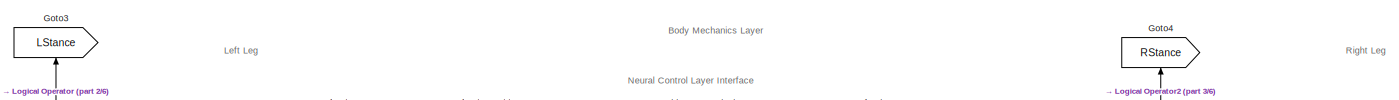
[diagram: Body Mechanics Layer (from Geyer s 2010 model) - part 1/6, top left region]
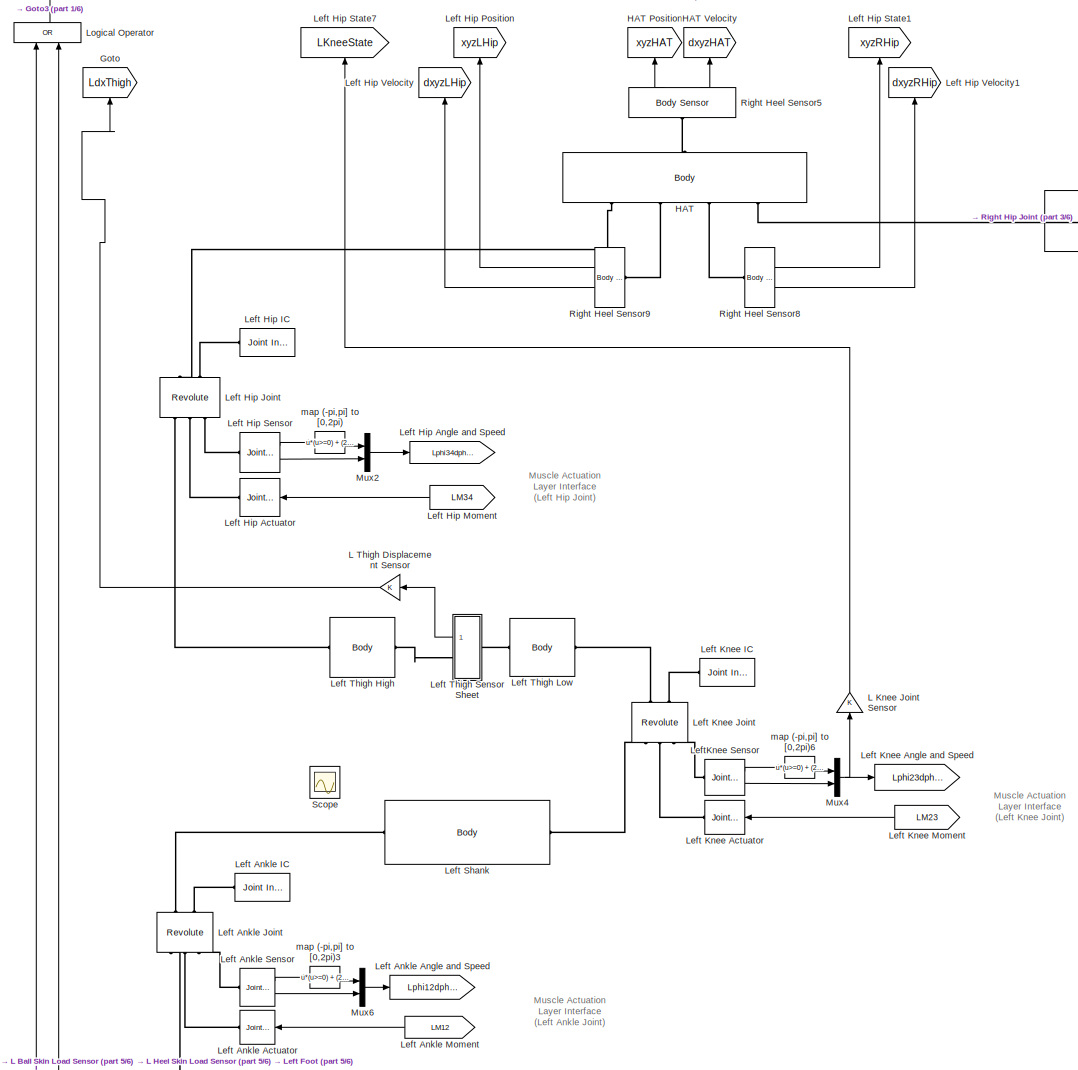
[diagram: Body Mechanics Layer (from Geyer s 2010 model) - part 2/6, middle left region]
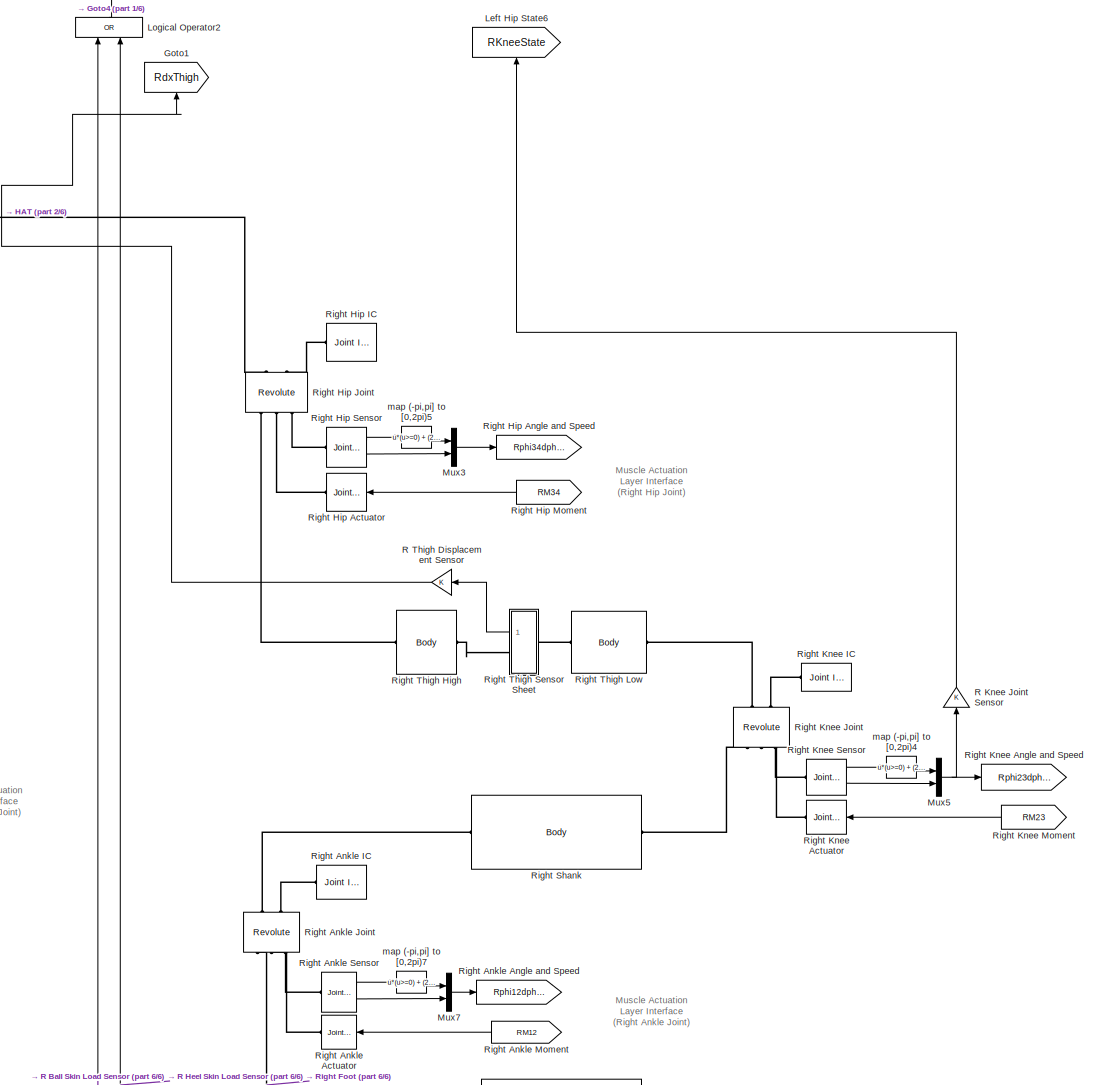
[diagram: Body Mechanics Layer (from Geyer s 2010 model) - part 3/6, middle right region]
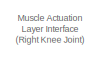
[diagram: Body Mechanics Layer (from Geyer s 2010 model) - part 4/6, middle right region]
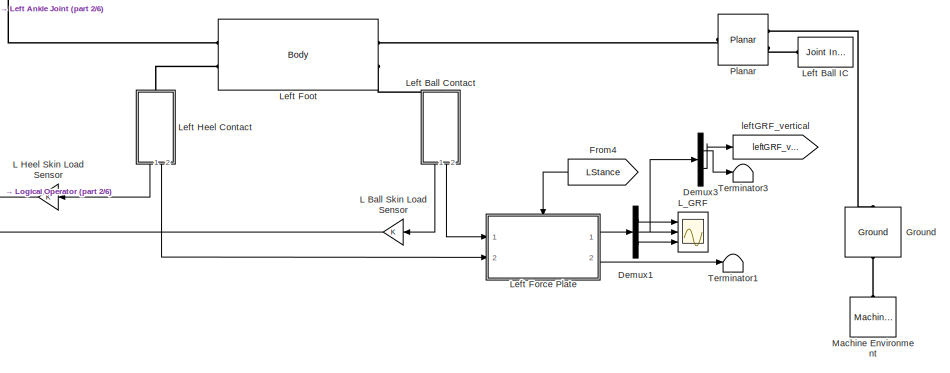
[diagram: Body Mechanics Layer (from Geyer s 2010 model) - part 5/6, bottom left region]
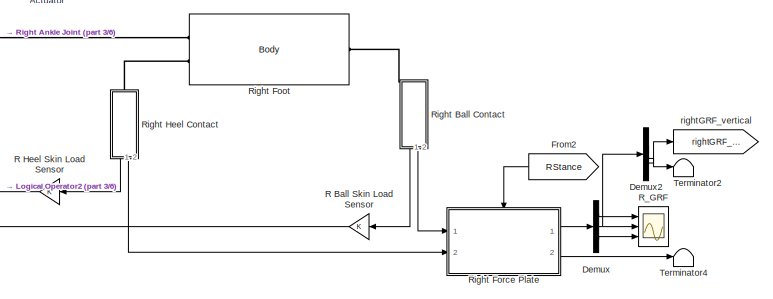
[diagram: Body Mechanics Layer (from Geyer s 2010 model) - part 6/6, bottom right region]
BLOCK [SubSystem] Body Mechanics Layer (from Geyer s 2010 model)
  Ports = []
  RequestExecContextInheritance = off
  Variant = off
BLOCK [Demux] Body Mechanics Layer (from Geyer s 2010 model)/Demux
  DisplayOption = bar
  Outputs = 3
  Ports = [1, 3]
BLOCK [Demux] Body Mechanics Layer (from Geyer s 2010 model)/Demux1
  DisplayOption = bar
  Outputs = 3
  Ports = [1, 3]
BLOCK [Demux] Body Mechanics Layer (from Geyer s 2010 model)/Demux2
  DisplayOption = bar
  Outputs = 2
  Ports = [1, 2]
BLOCK [Demux] Body Mechanics Layer (from Geyer s 2010 model)/Demux3
  DisplayOption = bar
  Outputs = 2
  Ports = [1, 2]
BLOCK [From] Body Mechanics Layer (from Geyer s 2010 model)/From2
  CloseFcn = tagdialog Close
  GotoTag = RStance
  TagVisibility = global
BLOCK [From] Body Mechanics Layer (from Geyer s 2010 model)/From4
  CloseFcn = tagdialog Close
  GotoTag = LStance
  TagVisibility = global
BLOCK [Goto] Body Mechanics Layer (from Geyer s 2010 model)/Goto
  GotoTag = LdxThigh
  TagVisibility = global
BLOCK [Goto] Body Mechanics Layer (from Geyer s 2010 model)/Goto1
  GotoTag = RdxThigh
  TagVisibility = global
BLOCK [Goto] Body Mechanics Layer (from Geyer s 2010 model)/Goto3
  GotoTag = LStance
  TagVisibility = global
BLOCK [Goto] Body Mechanics Layer (from Geyer s 2010 model)/Goto4
  GotoTag = RStance
  TagVisibility = global
BLOCK [Reference] Body Mechanics Layer (from Geyer s 2010 model)/Ground  REF=mblibv1/Bodies/Ground
  ClassName = Ground
  CoordPosition = [0 0 0]
  CoordPositionUnits = m
  DialogClass = GroundBlock
  LeftPortType = env
  MachineId = [0 0]
  ParameterChecksum = [1268924401, 2081866144, 3629473768, 3012884154]
  PhysicalDomain = Mechanical
  Ports = [0, 0, 0, 0, 0, 1, 1]
  RightPortType = workingframe
  ShowEnvPort = on
  SourceBlock = mblibv1/Bodies/Ground
  SourceType = Ground
  StateVectorMgrId = -1
  TopologyChecksum = [68678815, 2447438227, 541691423, 3356842587]
  UpdateFromCAD = off
  UserDataPersistent = on
BLOCK [Reference] Body Mechanics Layer (from Geyer s 2010 model)/HAT  REF=mblibv1/Bodies/Body
  AttachedToCS = CG
  BodyColor = [1 0 0]
  BodyColorSelMode = MACHINE_DEFAULT
  CG = Left$CG$[D1G_HAT 0 0]$CS1$CS1$m$[0 0 0]$Euler X-Y-Z$deg$WORLD$true$none
  CGPos = [D1G_HAT 0 0]
  CGRot = [0 0 0]
  CS0Pos = []
  CS0Rot = []
  CS10Pos = []
  CS10Rot = []
  CS11Pos = []
  CS11Rot = []
  CS12Pos = []
  CS12Rot = []
  CS13Pos = []
  CS13Rot = []
  CS14Pos = []
  CS14Rot = []
  CS15Pos = []
  CS15Rot = []
  CS16Pos = []
  CS16Rot = []
  CS17Pos = []
  CS17Rot = []
  CS18Pos = []
  CS18Rot = []
  CS19Pos = []
  CS19Rot = []
  CS1Pos = [0 0 0]
  CS1Rot = [0 0 0]
  CS20Pos = []
  CS20Rot = []
  CS2Pos = [0 0 0]
  CS2Rot = [0 0 0]
  CS3Pos = [0 0 0]
  CS3Rot = [0 0 0]
  CS4Pos = [0 0 0]
  CS4Rot = [0 0 0]
  CS5Pos = [2*D1G_HAT 0 0]
  CS5Rot = [0 0 0]
  CS6Pos = []
  CS6Rot = []
  CS7Pos = []
  CS7Rot = []
  CS8Pos = []
  CS8Rot = []
  CS9Pos = []
  CS9Rot = []
  ClassName = Body
  Density = 1
  DensityUnits = kg/m^3
  DensityUse = false
  DialogClass = MechanicalBodyBlock
  GraphicsMode = MACHINE_DEFAULT
  Inertia = In_HAT*[0 0 0; 0 0 0; 0 0 1]
  InertiaUnits = kg*m^2
  LConnTagsString = CG
  Mass = m_HAT
  MassUnits = kg
  Ports = [0, 0, 0, 0, 0, 1, 4]
  RConnTagsString = CS1|CS2|CS3|CS4
  Shape = Cylinder
  ShapeDims = [1 1]
  ShapeUnits = m
  ShapeUse = false
  SourceBlock = mblibv1/Bodies/Body
  SourceType = Body
  UpdateFromCAD = off
  WorkingFrames = Right$CS1$[0 0 0]$ADJOINING$ADJOINING$m$[0 0 0]$Euler X-Y-Z$deg$WORLD$true$none#Right$CS2$[0 0 0]$CS1$CS1$m$[0 0 0]$Euler X-Y-Z$deg$WORLD$true$none#Right$CS3$[0 0 0]$CS1$CS1$m$[0 0 0]$Euler X-Y-Z$deg$WORLD$true$none#Right$CS4$[0 0 0]$CS1$CS1$m$[0 0 0]$Euler X-Y-Z$deg$WORLD$true$none#Left$CS5$[2*D1G_HAT 0 0]$CS1$CS1$m$[0 0 0]$Euler X-Y-Z$deg$WORLD$false$none
BLOCK [Goto] Body Mechanics Layer (from Geyer s 2010 model)/HAT Position
  GotoTag = xyzHAT
  TagVisibility = global
BLOCK [Goto] Body Mechanics Layer (from Geyer s 2010 model)/HAT Velocity
  GotoTag = dxyzHAT
  TagVisibility = global
BLOCK [Gain] Body Mechanics Layer (from Geyer s 2010 model)/L Ball Skin Load Sensor
  OutDataTypeStr = Inherit: Inherit via internal rule
  ParamDataTypeStr = Inherit: Inherit via internal rule
  SaturateOnIntegerOverflow = off
BLOCK [Gain] Body Mechanics Layer (from Geyer s 2010 model)/L Heel Skin Load Sensor
  OutDataTypeStr = Inherit: Inherit via internal rule
  ParamDataTypeStr = Inherit: Inherit via internal rule
  SaturateOnIntegerOverflow = off
BLOCK [Gain] Body Mechanics Layer (from Geyer s 2010 model)/L Knee Joint Sensor
  OutDataTypeStr = Inherit: Inherit via internal rule
  ParamDataTypeStr = Inherit: Inherit via internal rule
  SaturateOnIntegerOverflow = off
BLOCK [Gain] Body Mechanics Layer (from Geyer s 2010 model)/L Thigh Displacement  Sensor
  OutDataTypeStr = Inherit: Inherit via internal rule
  ParamDataTypeStr = Inherit: Inherit via internal rule
  SaturateOnIntegerOverflow = off
BLOCK [Scope] Body Mechanics Layer (from Geyer s 2010 model)/L_GRF
  DataFormat = Array
  Decimation = 1
  Grid = on
  LimitDataPoints = on
  MaxDataPoints = 5000
  NumInputPorts = 3
  Ports = [3]
  SampleInput = off
  SampleTime = -1
  SaveName = GRF_Heel5
  SaveToWorkspace = off
  ShowLegends = off
  TickLabels = OneTimeTick
  TimeRange = 3
  YMax = 4000~1491.749999999995~6000
  YMin = -1000~-436.0500000000047~-4000
  ZoomMode = on
BLOCK [Reference] Body Mechanics Layer (from Geyer s 2010 model)/Left Ankle Actuator  REF=mblibv1/Sensors & 
Actuators/Joint Actuator
  AccelerationUnits = m/s^2
  ActiveIO = on
  ActuationStyle = Force
  AngleUnits = deg
  ArcAccelerationUnits = deg/s^2
  ArcVelocityUnits = deg/s
  ClassName = JointActuator
  CoordPositionUnits = m
  DialogClass = MechanicalActuatorBlock
  ForceUnits = N
  PhysicalDomain = Mechanical
  PortType = blob
  Ports = [1, 0, 0, 0, 0, 0, 1]
  Primitive = R1
  ReferenceFrame = Absolute (INERTIAL)
  SourceBlock = mblibv1/Sensors & \nActuators/Joint Actuator
  SourceType = Joint Actuator
  TorqueUnits = N-m
  UpdateFromCAD = off
  VelocityUnits = m/s
  Width = 1
BLOCK [Goto] Body Mechanics Layer (from Geyer s 2010 model)/Left Ankle Angle and Speed
  GotoTag = Lphi12dphi12
  TagVisibility = global
BLOCK [Reference] Body Mechanics Layer (from Geyer s 2010 model)/Left Ankle IC  REF=mblibv1/Sensors & 
Actuators/Joint Initial Condition
  ClassName = InitialCondition
  DialogClass = InitialConditionBlock
  InitialConditions = P1$false$0$m$rad$0$m/s$rad/s#P2$false$0$m$rad$0$m/s$rad/s#P3$false$0$m$rad$0$m/s$rad/s#R1$true$Lphi120$m$rad$0$m/s$rad/s#R2$false$0$m$rad$0$m/s$rad/s#R3$false$0$m$rad$0$m/s$rad/s#S$false$0$m$rad$0$m/s$rad/s
  LeftPortType = blob
  P1PIC = 0
  P1VIC = 0
  P2PIC = 0
  P2VIC = 0
  P3PIC = 0
  P3VIC = 0
  PhysicalDomain = mechanical
  Ports = [0, 0, 0, 0, 0, 0, 1]
  R1PIC = Lphi120
  R1VIC = 0
  R2PIC = 0
  R2VIC = 0
  R3PIC = 0
  R3VIC = 0
  RightPortType = blob
  SPIC = 0
  SVIC = 0
  SourceBlock = mblibv1/Sensors & \nActuators/Joint Initial Condition
  SourceType = Joint Initial Condition
  UpdateFromCAD = off
BLOCK [Reference] Body Mechanics Layer (from Geyer s 2010 model)/Left Ankle Joint  REF=mblibv1/Joints/Revolute
  ClassName = Joint
  CutJoint = off
  DialogClass = JointBlock
  LConnTagsString = __newl0|SA1|SA2
  MarkAsCut = off
  NumSAPorts = 3
  Ports = [0, 0, 0, 0, 0, 3, 2]
  PrimitiveProps = R1$WORLD$[0 0 1]$revolute
  Primitives = revolute
  R1Axis = [0 0 1]
  RConnTagsString = __newr0|SA1
  SourceBlock = mblibv1/Joints/Revolute
  SourceType = Revolute
  UpdateFromCAD = off
BLOCK [From] Body Mechanics Layer (from Geyer s 2010 model)/Left Ankle Moment
  CloseFcn = tagdialog Close
  GotoTag = LM12
  TagVisibility = global
BLOCK [Reference] Body Mechanics Layer (from Geyer s 2010 model)/Left Ankle Sensor  REF=mblibv1/Sensors & 
Actuators/Joint Sensor
  Acceleration = off
  AccelerationUnits = m/s^2
  ActiveIO = on
  Angle = on
  AngleUnits = rad
  ArcAcceleration = off
  ArcAccelerationUnits = deg/s^2
  ArcVelocity = on
  ArcVelocityUnits = rad/s
  ClassName = JointSensor
  CoordPosition = on
  CoordPositionUnits = m
  DialogClass = MechanicalSensorBlock
  Force = off
  ForceUnits = N
  Muxed = off
  OutputVector = [ 1 1 ]
  PhysicalDomain = Mechanical
  PortType = blob
  Ports = [0, 2, 0, 0, 0, 1]
  Pose = off
  Primitive = R1
  Quaternion = on
  QuaternionDDT = off
  QuaternionDT = off
  QuaternionUnits = off
  ReactionForce = off
  ReactionForceUnits = N
  ReactionMoment = off
  ReactionMomentUnits = N-m
  ReactionReferenceFrame = Absolute (World)
  ReactionSensedSide = Base
  ReferenceFrame = Absolute (INERTIAL)
  SourceBlock = mblibv1/Sensors & \nActuators/Joint Sensor
  SourceType = Joint Sensor
  Torque = off
  TorqueUnits = N-m
  UpdateFromCAD = off
  Velocity = off
  VelocityUnits = m/s
  Width = 2
BLOCK [SubSystem] Body Mechanics Layer (from Geyer s 2010 model)/Left Ball Contact
  Ports = [0, 2, 0, 0, 0, 1]
  RequestExecContextInheritance = off
  Variant = off
BLOCK [Reference] Body Mechanics Layer (from Geyer s 2010 model)/Left Ball Contact/Body Actuator  REF=mblibv1/Sensors & 
Actuators/Body Actuator
  AccelerationUnits = m/s^2
  ActiveIO = on
  ActuationStyle = Force
  Angle = off
  AngleUnits = deg
  ArcAccelerationUnits = deg/s^2
  ArcVelocityUnits = deg/s
  ClassName = BodyActuatorForceTorque
  CoordPosition = on
  CoordPositionUnits = m
  DialogClass = MechanicalActuatorBlock
  Force = on
  ForceUnits = N
  PhysicalDomain = Mechanical
  PortType = blob
  Ports = [1, 0, 0, 0, 0, 0, 1]
  ReferenceFrame = Absolute (World)
  SourceBlock = mblibv1/Sensors & \nActuators/Body Actuator
  SourceType = Body Actuator
  Torque = off
  TorqueUnits = N-m
  UpdateFromCAD = off
  VelocityUnits = m/s
  Width = 3
BLOCK [Reference] Body Mechanics Layer (from Geyer s 2010 model)/Left Ball Contact/Body Sensor  REF=mblibv1/Sensors & 
Actuators/Body Sensor
  Acceleration = off
  AccelerationUnits = m/s^2
  ActiveIO = on
  Angle = on
  AngleUnits = deg
  ArcAcceleration = off
  ArcAccelerationUnits = deg/s^2
  ArcVelocity = off
  ArcVelocityUnits = deg/s
  ClassName = BodySensor
  CoordPosition = on
  CoordPositionUnits = m
  DialogClass = MechanicalSensorBlock
  Muxed = on
  OutputVector = [ 3 3 ]
  PhysicalDomain = Mechanical
  PortType = blob
  Ports = [0, 1, 0, 0, 0, 1]
  Pose = off
  Quaternion = on
  QuaternionDDT = off
  QuaternionDT = off
  QuaternionUnits = off
  ReferenceFrame = Absolute (World)
  SourceBlock = mblibv1/Sensors & \nActuators/Body Sensor
  SourceType = Body Sensor
  UpdateFromCAD = off
  Velocity = on
  VelocityUnits = m/s
  Width = 6
BLOCK [Demux] Body Mechanics Layer (from Geyer s 2010 model)/Left Ball Contact/Demux1
  DisplayOption = bar
  Ports = [1, 4]
BLOCK [PMIOPort] Body Mechanics Layer (from Geyer s 2010 model)/Left Ball Contact/F
  Port = 1
  Side = Left
BLOCK [Outport] Body Mechanics Layer (from Geyer s 2010 model)/Left Ball Contact/GRF [N N]
  IconDisplay = Port number
  Port = 2
BLOCK [SubSystem] Body Mechanics Layer (from Geyer s 2010 model)/Left Ball Contact/Ground Friction Model
  Ports = [4, 3, 1]
  RequestExecContextInheritance = off
  Variant = off
BLOCK [EnablePort] Body Mechanics Layer (from Geyer s 2010 model)/Left Ball Contact/Ground Friction Model/Contact!
  Ports = []
  StatesWhenEnabling = reset
BLOCK [DataTypeConversion] Body Mechanics Layer (from Geyer s 2010 model)/Left Ball Contact/Ground Friction Model/Data Type Conversion
  OutDataTypeStr = double
  RndMeth = Floor
  SaturateOnIntegerOverflow = off
BLOCK [SubSystem] Body Mechanics Layer (from Geyer s 2010 model)/Left Ball Contact/Ground Friction Model/Friction Switch
  Ports = [2, 1]
  RequestExecContextInheritance = off
  Variant = off
BLOCK [Memory] Body Mechanics Layer (from Geyer s 2010 model)/Left Ball Contact/Ground Friction Model/Friction Switch/Memory
BLOCK [Reference] Body Mechanics Layer (from Geyer s 2010 model)/Left Ball Contact/Ground Friction Model/Friction Switch/S-R Flip-Flop  REF=simulink_extras/Flip Flops/S-R
Flip-Flop
  Ports = [2, 2]
  SourceBlock = simulink_extras/Flip Flops/S-R\nFlip-Flop
  SourceType = SRFlipFlop
  initial_condition = 1
BLOCK [Inport] Body Mechanics Layer (from Geyer s 2010 model)/Left Ball Contact/Ground Friction Model/Friction Switch/Slide!
  IconDisplay = Port number
BLOCK [Inport] Body Mechanics Layer (from Geyer s 2010 model)/Left Ball Contact/Ground Friction Model/Friction Switch/Stick!
  IconDisplay = Port number
  Port = 2
BLOCK [Outport] Body Mechanics Layer (from Geyer s 2010 model)/Left Ball Contact/Ground Friction Model/Friction Switch/Stiction
  IconDisplay = Port number
BLOCK [Terminator] Body Mechanics Layer (from Geyer s 2010 model)/Left Ball Contact/Ground Friction Model/Friction Switch/Terminator
BLOCK [Outport] Body Mechanics Layer (from Geyer s 2010 model)/Left Ball Contact/Ground Friction Model/Fx_Friction [N]
  AttributesFormatString = initial = '%<InitialOutput>'\nwhen\ndisabled\n'%<OutputWhenDisabled>'
  IconDisplay = Port number
  InitialOutput = 0
  OutputWhenDisabled = reset
  Port = 2
BLOCK [Outport] Body Mechanics Layer (from Geyer s 2010 model)/Left Ball Contact/Ground Friction Model/Fy_Ground[N]
  AttributesFormatString = initial = '%<InitialOutput>'\nwhen disabled = '%<OutputWhenDisabled>'
  IconDisplay = Port number
  InitialOutput = 0
  OutputWhenDisabled = reset
BLOCK [Gain] Body Mechanics Layer (from Geyer s 2010 model)/Left Ball Contact/Ground Friction Model/Gain3
  Gain = k_gy
  OutDataTypeStr = Inherit: Inherit via internal rule
  ParamDataTypeStr = Inherit: Inherit via internal rule
  SaturateOnIntegerOverflow = off
BLOCK [Gain] Body Mechanics Layer (from Geyer s 2010 model)/Left Ball Contact/Ground Friction Model/Gain4
  Gain = 1/v_gy_max
  OutDataTypeStr = Inherit: Inherit via internal rule
  ParamDataTypeStr = Inherit: Inherit via internal rule
  SaturateOnIntegerOverflow = off
BLOCK [Logic] Body Mechanics Layer (from Geyer s 2010 model)/Left Ball Contact/Ground Friction Model/Logical Operator
  AllPortsSameDT = off
  Operator = NOT
  OutDataTypeStr = boolean
  Ports = [1, 1]
BLOCK [Mux] Body Mechanics Layer (from Geyer s 2010 model)/Left Ball Contact/Ground Friction Model/Mux1
  DisplayOption = bar
  Inputs = 2
  Ports = [2, 1]
BLOCK [Outport] Body Mechanics Layer (from Geyer s 2010 model)/Left Ball Contact/Ground Friction Model/Stiction!
  AttributesFormatString = initial = '%<InitialOutput>'\nwhen\ndisabled\n'%<OutputWhenDisabled>'
  IconDisplay = Port number
  InitialOutput = 0
  OutputWhenDisabled = reset
  Port = 3
BLOCK [Sum] Body Mechanics Layer (from Geyer s 2010 model)/Left Ball Contact/Ground Friction Model/Sum1
  IconShape = round
  InputSameDT = off
  OutDataTypeStr = Inherit: Inherit via internal rule
  Ports = [2, 1]
  SaturateOnIntegerOverflow = off
BLOCK [SubSystem] Body Mechanics Layer (from Geyer s 2010 model)/Left Ball Contact/Ground Friction Model/X-Axis Kinetic Friction Model
  Ports = [3, 3, 1]
  RequestExecContextInheritance = off
  Variant = off
BLOCK [Abs] Body Mechanics Layer (from Geyer s 2010 model)/Left Ball Contact/Ground Friction Model/X-Axis Kinetic Friction Model/Abs
  SaturateOnIntegerOverflow = off
BLOCK [Constant] Body Mechanics Layer (from Geyer s 2010 model)/Left Ball Contact/Ground Friction Model/X-Axis Kinetic Friction Model/Constant
  Value = vLimit
BLOCK [EnablePort] Body Mechanics Layer (from Geyer s 2010 model)/Left Ball Contact/Ground Friction Model/X-Axis Kinetic Friction Model/Enable
  Ports = []
  StatesWhenEnabling = reset
  ZeroCross = off
BLOCK [Inport] Body Mechanics Layer (from Geyer s 2010 model)/Left Ball Contact/Ground Friction Model/X-Axis Kinetic Friction Model/F_Normal [N]
  IconDisplay = Port number
  Port = 3
BLOCK [Outport] Body Mechanics Layer (from Geyer s 2010 model)/Left Ball Contact/Ground Friction Model/X-Axis Kinetic Friction Model/F_Slide [N]
  AttributesFormatString = initial = '%<InitialOutput>'\nwhen disabled = '%<OutputWhenDisabled>'
  IconDisplay = Port number
  InitialOutput = 0
  OutputWhenDisabled = reset
  Port = 3
BLOCK [RelationalOperator] Body Mechanics Layer (from Geyer s 2010 model)/Left Ball Contact/Ground Friction Model/X-Axis Kinetic Friction Model/FixPt Relational Operator
  InputSameDT = off
  Operator = >
  OutDataTypeStr = boolean
  Ports = [2, 1]
  ZeroCross = off
BLOCK [Memory] Body Mechanics Layer (from Geyer s 2010 model)/Left Ball Contact/Ground Friction Model/X-Axis Kinetic Friction Model/Memory
BLOCK [Reference] Body Mechanics Layer (from Geyer s 2010 model)/Left Ball Contact/Ground Friction Model/X-Axis Kinetic Friction Model/Negative  REF=simulink/Logic and Bit
Operations/Compare
To Zero
  OutDataTypeStr = boolean
  Ports = [1, 1]
  SourceBlock = simulink/Logic and Bit\nOperations/Compare\nTo Zero
  SourceType = Compare To Zero
  ZeroCross = on
  relop = <
BLOCK [Product] Body Mechanics Layer (from Geyer s 2010 model)/Left Ball Contact/Ground Friction Model/X-Axis Kinetic Friction Model/Product
  InputSameDT = off
  OutDataTypeStr = Inherit: Inherit via internal rule
  Ports = [2, 1]
  SaturateOnIntegerOverflow = off
BLOCK [Signum] Body Mechanics Layer (from Geyer s 2010 model)/Left Ball Contact/Ground Friction Model/X-Axis Kinetic Friction Model/Sign1
BLOCK [Outport] Body Mechanics Layer (from Geyer s 2010 model)/Left Ball Contact/Ground Friction Model/X-Axis Kinetic Friction Model/Stiction!
  AttributesFormatString = initial = '%<InitialOutput>'\nwhen disabled = '%<OutputWhenDisabled>'
  IconDisplay = Port number
  InitialOutput = 0
  OutputWhenDisabled = reset
  Port = 2
BLOCK [Sum] Body Mechanics Layer (from Geyer s 2010 model)/Left Ball Contact/Ground Friction Model/X-Axis Kinetic Friction Model/Sum
  IconShape = round
  InputSameDT = off
  Inputs = |+-
  OutDataTypeStr = Inherit: Inherit via internal rule
  Ports = [2, 1]
  SaturateOnIntegerOverflow = off
BLOCK [Inport] Body Mechanics Layer (from Geyer s 2010 model)/Left Ball Contact/Ground Friction Model/X-Axis Kinetic Friction Model/pos [m]
  IconDisplay = Port number
BLOCK [Outport] Body Mechanics Layer (from Geyer s 2010 model)/Left Ball Contact/Ground Friction Model/X-Axis Kinetic Friction Model/posFP [m]
  AttributesFormatString = initial = '%<InitialOutput>'\nwhen disabled = '%<OutputWhenDisabled>'
  IconDisplay = Port number
  InitialOutput = 0
BLOCK [Gain] Body Mechanics Layer (from Geyer s 2010 model)/Left Ball Contact/Ground Friction Model/X-Axis Kinetic Friction Model/reverse
  Gain = -1
  OutDataTypeStr = Inherit: Inherit via internal rule
  ParamDataTypeStr = Inherit: Inherit via internal rule
  SaturateOnIntegerOverflow = off
BLOCK [Gain] Body Mechanics Layer (from Geyer s 2010 model)/Left Ball Contact/Ground Friction Model/X-Axis Kinetic Friction Model/sliding friction coefficient
  Gain = mu_slide
  OutDataTypeStr = Inherit: Inherit via internal rule
  ParamDataTypeStr = Inherit: Inherit via internal rule
  SaturateOnIntegerOverflow = off
BLOCK [Inport] Body Mechanics Layer (from Geyer s 2010 model)/Left Ball Contact/Ground Friction Model/X-Axis Kinetic Friction Model/vel [m//s]
  IconDisplay = Port number
  Port = 2
BLOCK [SubSystem] Body Mechanics Layer (from Geyer s 2010 model)/Left Ball Contact/Ground Friction Model/X-Axis Static Friction Model
  Ports = [4, 2, 1]
  RequestExecContextInheritance = off
  Variant = off
BLOCK [Abs] Body Mechanics Layer (from Geyer s 2010 model)/Left Ball Contact/Ground Friction Model/X-Axis Static Friction Model/Abs
  SaturateOnIntegerOverflow = off
BLOCK [Abs] Body Mechanics Layer (from Geyer s 2010 model)/Left Ball Contact/Ground Friction Model/X-Axis Static Friction Model/Abs.
  SaturateOnIntegerOverflow = off
BLOCK [Product] Body Mechanics Layer (from Geyer s 2010 model)/Left Ball Contact/Ground Friction Model/X-Axis Static Friction Model/Check Vertical Friction
  InputSameDT = off
  OutDataTypeStr = Inherit: Inherit via internal rule
  Ports = [2, 1]
  SaturateOnIntegerOverflow = off
BLOCK [EnablePort] Body Mechanics Layer (from Geyer s 2010 model)/Left Ball Contact/Ground Friction Model/X-Axis Static Friction Model/Enable
  Ports = []
  StatesWhenEnabling = reset
  ZeroCross = off
BLOCK [Inport] Body Mechanics Layer (from Geyer s 2010 model)/Left Ball Contact/Ground Friction Model/X-Axis Static Friction Model/F_Normal [N]
  IconDisplay = Port number
BLOCK [Outport] Body Mechanics Layer (from Geyer s 2010 model)/Left Ball Contact/Ground Friction Model/X-Axis Static Friction Model/F_Stick [N]
  AttributesFormatString = when disabled: %<OutputWhenDisabled>\ninitial: %<InitialOutput>
  IconDisplay = Port number
  InitialOutput = 0
  OutputWhenDisabled = reset
BLOCK [RelationalOperator] Body Mechanics Layer (from Geyer s 2010 model)/Left Ball Contact/Ground Friction Model/X-Axis Static Friction Model/FixPt Relational Operator
  InputSameDT = off
  Operator = >
  OutDataTypeStr = boolean
  Ports = [2, 1]
  ZeroCross = off
BLOCK [Gain] Body Mechanics Layer (from Geyer s 2010 model)/Left Ball Contact/Ground Friction Model/X-Axis Static Friction Model/Gain3
  Gain = k_gx
  OutDataTypeStr = Inherit: Inherit via internal rule
  ParamDataTypeStr = Inherit: Inherit via internal rule
  SaturateOnIntegerOverflow = off
BLOCK [Gain] Body Mechanics Layer (from Geyer s 2010 model)/Left Ball Contact/Ground Friction Model/X-Axis Static Friction Model/Gain4
  Gain = 1/v_gx_max
  OutDataTypeStr = Inherit: Inherit via internal rule
  ParamDataTypeStr = Inherit: Inherit via internal rule
  SaturateOnIntegerOverflow = off
BLOCK [Memory] Body Mechanics Layer (from Geyer s 2010 model)/Left Ball Contact/Ground Friction Model/X-Axis Static Friction Model/Memory
BLOCK [Mux] Body Mechanics Layer (from Geyer s 2010 model)/Left Ball Contact/Ground Friction Model/X-Axis Static Friction Model/Mux1
  DisplayOption = bar
  Inputs = 2
  Ports = [2, 1]
BLOCK [Reference] Body Mechanics Layer (from Geyer s 2010 model)/Left Ball Contact/Ground Friction Model/X-Axis Static Friction Model/Positive  REF=simulink/Logic and Bit
Operations/Compare
To Zero
  OutDataTypeStr = boolean
  Ports = [1, 1]
  SourceBlock = simulink/Logic and Bit\nOperations/Compare\nTo Zero
  SourceType = Compare To Zero
  ZeroCross = on
  relop = >
BLOCK [Reference] Body Mechanics Layer (from Geyer s 2010 model)/Left Ball Contact/Ground Friction Model/X-Axis Static Friction Model/Positive1  REF=simulink/Logic and Bit
Operations/Compare
To Zero
  OutDataTypeStr = boolean
  Ports = [1, 1]
  SourceBlock = simulink/Logic and Bit\nOperations/Compare\nTo Zero
  SourceType = Compare To Zero
  ZeroCross = on
  relop = >
BLOCK [Outport] Body Mechanics Layer (from Geyer s 2010 model)/Left Ball Contact/Ground Friction Model/X-Axis Static Friction Model/Sliding!
  AttributesFormatString = when disabled: %<OutputWhenDisabled>\ninitial: %<InitialOutput>
  IconDisplay = Port number
  InitialOutput = 0
  OutputWhenDisabled = reset
  Port = 2
BLOCK [Sum] Body Mechanics Layer (from Geyer s 2010 model)/Left Ball Contact/Ground Friction Model/X-Axis Static Friction Model/Sum
  IconShape = round
  InputSameDT = off
  Inputs = -+
  OutDataTypeStr = Inherit: Inherit via internal rule
  Ports = [2, 1]
  SaturateOnIntegerOverflow = off
BLOCK [Sum] Body Mechanics Layer (from Geyer s 2010 model)/Left Ball Contact/Ground Friction Model/X-Axis Static Friction Model/Sum2
  IconShape = round
  InputSameDT = off
  Inputs = -+|
  OutDataTypeStr = Inherit: Inherit via internal rule
  Ports = [2, 1]
  SaturateOnIntegerOverflow = off
BLOCK [Fcn] Body Mechanics Layer (from Geyer s 2010 model)/Left Ball Contact/Ground Friction Model/X-Axis Static Friction Model/X-Axis Stiction Force
  Expr = -u(1) * (1+sgn(u(1))*u(2))
BLOCK [Inport] Body Mechanics Layer (from Geyer s 2010 model)/Left Ball Contact/Ground Friction Model/X-Axis Static Friction Model/pos [m]
  IconDisplay = Port number
  Port = 2
BLOCK [Inport] Body Mechanics Layer (from Geyer s 2010 model)/Left Ball Contact/Ground Friction Model/X-Axis Static Friction Model/posFP [m]
  IconDisplay = Port number
  Port = 4
BLOCK [Gain] Body Mechanics Layer (from Geyer s 2010 model)/Left Ball Contact/Ground Friction Model/X-Axis Static Friction Model/stiction limit force
  Gain = mu_stick
  OutDataTypeStr = Inherit: Inherit via internal rule
  ParamDataTypeStr = Inherit: Inherit via internal rule
  SaturateOnIntegerOverflow = off
BLOCK [Inport] Body Mechanics Layer (from Geyer s 2010 model)/Left Ball Contact/Ground Friction Model/X-Axis Static Friction Model/vel [m//s]
  IconDisplay = Port number
  Port = 3
BLOCK [Fcn] Body Mechanics Layer (from Geyer s 2010 model)/Left Ball Contact/Ground Friction Model/Y-Axis Ground Force
  Expr = - u(1)  *  (1-u(2)) * (u(2)<1)
BLOCK [Inport] Body Mechanics Layer (from Geyer s 2010 model)/Left Ball Contact/Ground Friction Model/dy [m]
  IconDisplay = Port number
BLOCK [Inport] Body Mechanics Layer (from Geyer s 2010 model)/Left Ball Contact/Ground Friction Model/vx [m//s]
  IconDisplay = Port number
  Port = 4
BLOCK [Inport] Body Mechanics Layer (from Geyer s 2010 model)/Left Ball Contact/Ground Friction Model/vy [m//s]
  IconDisplay = Port number
  Port = 2
BLOCK [Inport] Body Mechanics Layer (from Geyer s 2010 model)/Left Ball Contact/Ground Friction Model/x [m]
  IconDisplay = Port number
  Port = 3
BLOCK [Ground] Body Mechanics Layer (from Geyer s 2010 model)/Left Ball Contact/Ground1
BLOCK [Outport] Body Mechanics Layer (from Geyer s 2010 model)/Left Ball Contact/LBallCnt
  IconDisplay = Port number
BLOCK [Reference] Body Mechanics Layer (from Geyer s 2010 model)/Left Ball Contact/Mechanical Branching Bar  REF=mblibv1/Utilities/Mechanical
Branching
Bar
  ClassName = BranchingBar
  DialogClass = MechanicalBranchingBarBlock
  LConnTagsString = _newl0
  NumSAPorts = 2
  Ports = [0, 0, 0, 0, 0, 1, 2]
  RConnTagsString = SA0|SA1
  SourceBlock = mblibv1/Utilities/Mechanical\nBranching\nBar
  SourceType = Mechanical Branching Bar
  UpdateFromCAD = off
BLOCK [Mux] Body Mechanics Layer (from Geyer s 2010 model)/Left Ball Contact/Mux
  DisplayOption = bar
  Inputs = 2
  Ports = [2, 1]
BLOCK [Mux] Body Mechanics Layer (from Geyer s 2010 model)/Left Ball Contact/Mux1
  DisplayOption = bar
  Inputs = 3
  Ports = [3, 1]
BLOCK [Sum] Body Mechanics Layer (from Geyer s 2010 model)/Left Ball Contact/Sum
  IconShape = round
  InputSameDT = off
  Inputs = -+|
  OutDataTypeStr = Inherit: Inherit via internal rule
  Ports = [2, 1]
  SaturateOnIntegerOverflow = off
BLOCK [Terminator] Body Mechanics Layer (from Geyer s 2010 model)/Left Ball Contact/Terminator
BLOCK [ToWorkspace] Body Mechanics Layer (from Geyer s 2010 model)/Left Ball Contact/To Workspace
  FixptAsFi = on
  MaxDataPoints = inf
  Ports = [1]
  SampleTime = -1
  Save2DSignal = 3-D array (concatenate along third dimension)
  SaveFormat = Timeseries
  VariableName = L_dyvyxvx
BLOCK [Concatenate] Body Mechanics Layer (from Geyer s 2010 model)/Left Ball Contact/Vector ConcatenateKnee
  NumInputs = 4
  Ports = [4, 1]
BLOCK [Selector] Body Mechanics Layer (from Geyer s 2010 model)/Left Ball Contact/[y y' x x']
  IndexOptions = Index vector (dialog)
  Indices = [2 5 1 4]
  InputPortWidth = 6
  OutputSizes = 1
  Ports = [1, 1]
BLOCK [Reference] Body Mechanics Layer (from Geyer s 2010 model)/Left Ball Contact/contact?  REF=simulink/Logic and Bit
Operations/Compare
To Zero
  OutDataTypeStr = boolean
  Ports = [1, 1]
  SourceBlock = simulink/Logic and Bit\nOperations/Compare\nTo Zero
  SourceType = Compare To Zero
  ZeroCross = on
  relop = <=
BLOCK [Constant] Body Mechanics Layer (from Geyer s 2010 model)/Left Ball Contact/yGround
  Value = 0
BLOCK [Reference] Body Mechanics Layer (from Geyer s 2010 model)/Left Ball IC  REF=mblibv1/Sensors & 
Actuators/Joint Initial Condition
  ClassName = InitialCondition
  DialogClass = InitialConditionBlock
  InitialConditions = P1$true$0$m$rad$vx0$m/s$rad/s#P2$true$0$m$rad$0$m/s$rad/s#P3$false$0$m$rad$0$m/s$rad/s#R1$false$0$m$rad$0$m/s$rad/s#R2$false$0$m$rad$0$m/s$rad/s#R3$false$0$m$rad$0$m/s$rad/s#S$false$0$m$rad$0$m/s$rad/s
  LeftPortType = blob
  P1PIC = 0
  P1VIC = vx0
  P2PIC = 0
  P2VIC = 0
  P3PIC = 0
  P3VIC = 0
  PhysicalDomain = Mechanical
  Ports = [0, 0, 0, 0, 0, 0, 1]
  R1PIC = 0
  R1VIC = 0
  R2PIC = 0
  R2VIC = 0
  R3PIC = 0
  R3VIC = 0
  RightPortType = blob
  SPIC = 0
  SVIC = 0
  SourceBlock = mblibv1/Sensors & \nActuators/Joint Initial Condition
  SourceType = Joint Initial Condition
  UpdateFromCAD = off
BLOCK [Reference] Body Mechanics Layer (from Geyer s 2010 model)/Left Foot  REF=mblibv1/Bodies/Body
  AttachedToCS = CG
  BodyColor = [1 0 0]
  BodyColorSelMode = MACHINE_DEFAULT
  CG = Left$CG$[-D1G_F 0 0]$CS1$CS1$m$[0 0 0]$Euler X-Y-Z$deg$WORLD$false$none
  CGPos = [-D1G_F 0 0]
  CGRot = [0 0 0]
  CS0Pos = []
  CS0Rot = []
  CS10Pos = []
  CS10Rot = []
  CS11Pos = []
  CS11Rot = []
  CS12Pos = []
  CS12Rot = []
  CS13Pos = []
  CS13Rot = []
  CS14Pos = []
  CS14Rot = []
  CS15Pos = []
  CS15Rot = []
  CS16Pos = []
  CS16Rot = []
  CS17Pos = []
  CS17Rot = []
  CS18Pos = []
  CS18Rot = []
  CS19Pos = []
  CS19Rot = []
  CS1Pos = [0 0 0]
  CS1Rot = [0 0 0]
  CS20Pos = []
  CS20Rot = []
  CS2Pos = [-D12_F 0 0]
  CS2Rot = [0 0 0]
  CS3Pos = [-D13_F 0 0]
  CS3Rot = [0 0 0]
  CS4Pos = [0 0 0]
  CS4Rot = [0 0 0]
  CS5Pos = []
  CS5Rot = []
  CS6Pos = []
  CS6Rot = []
  CS7Pos = []
  CS7Rot = []
  CS8Pos = []
  CS8Rot = []
  CS9Pos = []
  CS9Rot = []
  ClassName = Body
  Density = 1
  DensityUnits = kg/m^3
  DensityUse = false
  DialogClass = MechanicalBodyBlock
  GraphicsMode = MACHINE_DEFAULT
  Inertia = [0 0 0; 0 0 0; 0 0 In_F]
  InertiaUnits = kg*m^2
  LConnTagsString = CS1|CS4
  Mass = m_F
  MassUnits = kg
  Ports = [0, 0, 0, 0, 0, 2, 2]
  RConnTagsString = CS2|CS3
  Shape = Cylinder
  ShapeDims = [1 1]
  ShapeUnits = m
  ShapeUse = false
  SourceBlock = mblibv1/Bodies/Body
  SourceType = Body
  UpdateFromCAD = off
  WorkingFrames = Left$CS1$[0 0 0]$ADJOINING$ADJOINING$m$[0 0 0]$Euler X-Y-Z$deg$WORLD$true$none#Right$CS2$[-D12_F 0 0]$CS1$CS1$m$[0 0 0]$Euler X-Y-Z$deg$WORLD$true$none#Right$CS3$[-D13_F 0 0]$CS1$CS1$m$[0 0 0]$Euler X-Y-Z$deg$WORLD$true$none#Left$CS4$[0 0 0]$CS1$CS1$m$[0 0 0]$Euler X-Y-Z$deg$WORLD$true$none
BLOCK [SubSystem] Body Mechanics Layer (from Geyer s 2010 model)/Left Force Plate
  Ports = [2, 2, 1]
  RequestExecContextInheritance = off
  TreatAsAtomicUnit = on
  Variant = off
BLOCK [Outport] Body Mechanics Layer (from Geyer s 2010 model)/Left Force Plate/COP
  IconDisplay = Port number
  InitialOutput = 0
  OutputWhenDisabled = reset
  Port = 2
BLOCK [EnablePort] Body Mechanics Layer (from Geyer s 2010 model)/Left Force Plate/Enable
  Ports = []
  StatesWhenEnabling = reset
BLOCK [Fcn] Body Mechanics Layer (from Geyer s 2010 model)/Left Force Plate/Fcn
  Expr = u(1)/(u(2)+eps)
BLOCK [Inport] Body Mechanics Layer (from Geyer s 2010 model)/Left Force Plate/GRF_Ball [N N] 
  IconDisplay = Port number
BLOCK [Inport] Body Mechanics Layer (from Geyer s 2010 model)/Left Force Plate/GRF_Heel [N N]
  IconDisplay = Port number
  Port = 2
BLOCK [Outport] Body Mechanics Layer (from Geyer s 2010 model)/Left Force Plate/GRFs
  IconDisplay = Port number
  InitialOutput = 0
  OutputWhenDisabled = reset
BLOCK [Mux] Body Mechanics Layer (from Geyer s 2010 model)/Left Force Plate/Mux
  DisplayOption = bar
  Inputs = 3
  Ports = [3, 1]
BLOCK [Mux] Body Mechanics Layer (from Geyer s 2010 model)/Left Force Plate/Mux1
  DisplayOption = bar
  Inputs = 2
  Ports = [2, 1]
BLOCK [Selector] Body Mechanics Layer (from Geyer s 2010 model)/Left Force Plate/Selector
  IndexOptions = Index vector (dialog)
  Indices = 2
  InputPortWidth = 2
  OutputSizes = 1
  Ports = [1, 1]
BLOCK [Selector] Body Mechanics Layer (from Geyer s 2010 model)/Left Force Plate/Selector1
  IndexOptions = Index vector (dialog)
  Indices = 2
  InputPortWidth = 2
  OutputSizes = 1
  Ports = [1, 1]
BLOCK [Sum] Body Mechanics Layer (from Geyer s 2010 model)/Left Force Plate/Sum1
  IconShape = round
  InputSameDT = off
  OutDataTypeStr = Inherit: Inherit via internal rule
  Ports = [2, 1]
  SaturateOnIntegerOverflow = off
BLOCK [SubSystem] Body Mechanics Layer (from Geyer s 2010 model)/Left Heel Contact
  Ports = [0, 2, 0, 0, 0, 1]
  RequestExecContextInheritance = off
  Variant = off
BLOCK [Reference] Body Mechanics Layer (from Geyer s 2010 model)/Left Heel Contact/Body Actuator  REF=mblibv1/Sensors & 
Actuators/Body Actuator
  AccelerationUnits = m/s^2
  ActiveIO = on
  ActuationStyle = Force
  Angle = off
  AngleUnits = deg
  ArcAccelerationUnits = deg/s^2
  ArcVelocityUnits = deg/s
  ClassName = BodyActuatorForceTorque
  CoordPosition = on
  CoordPositionUnits = m
  DialogClass = MechanicalActuatorBlock
  Force = on
  ForceUnits = N
  PhysicalDomain = Mechanical
  PortType = blob
  Ports = [1, 0, 0, 0, 0, 0, 1]
  ReferenceFrame = Absolute (World)
  SourceBlock = mblibv1/Sensors & \nActuators/Body Actuator
  SourceType = Body Actuator
  Torque = off
  TorqueUnits = N-m
  UpdateFromCAD = off
  VelocityUnits = m/s
  Width = 3
BLOCK [Reference] Body Mechanics Layer (from Geyer s 2010 model)/Left Heel Contact/Body Sensor  REF=mblibv1/Sensors & 
Actuators/Body Sensor
  Acceleration = off
  AccelerationUnits = m/s^2
  ActiveIO = on
  Angle = on
  AngleUnits = deg
  ArcAcceleration = off
  ArcAccelerationUnits = deg/s^2
  ArcVelocity = off
  ArcVelocityUnits = deg/s
  ClassName = BodySensor
  CoordPosition = on
  CoordPositionUnits = m
  DialogClass = MechanicalSensorBlock
  Muxed = on
  OutputVector = [ 3 3 ]
  PhysicalDomain = Mechanical
  PortType = blob
  Ports = [0, 1, 0, 0, 0, 1]
  Pose = off
  Quaternion = on
  QuaternionDDT = off
  QuaternionDT = off
  QuaternionUnits = off
  ReferenceFrame = Absolute (World)
  SourceBlock = mblibv1/Sensors & \nActuators/Body Sensor
  SourceType = Body Sensor
  UpdateFromCAD = off
  Velocity = on
  VelocityUnits = m/s
  Width = 6
BLOCK [Demux] Body Mechanics Layer (from Geyer s 2010 model)/Left Heel Contact/Demux1
  DisplayOption = bar
  Ports = [1, 4]
BLOCK [PMIOPort] Body Mechanics Layer (from Geyer s 2010 model)/Left Heel Contact/F
  Port = 1
  Side = Left
BLOCK [Outport] Body Mechanics Layer (from Geyer s 2010 model)/Left Heel Contact/GRF [N N]
  IconDisplay = Port number
  Port = 2
BLOCK [SubSystem] Body Mechanics Layer (from Geyer s 2010 model)/Left Heel Contact/Ground Friction Model
  Ports = [4, 3, 1]
  RequestExecContextInheritance = off
  Variant = off
BLOCK [EnablePort] Body Mechanics Layer (from Geyer s 2010 model)/Left Heel Contact/Ground Friction Model/Contact!
  Ports = []
  StatesWhenEnabling = reset
BLOCK [DataTypeConversion] Body Mechanics Layer (from Geyer s 2010 model)/Left Heel Contact/Ground Friction Model/Data Type Conversion
  OutDataTypeStr = double
  RndMeth = Floor
  SaturateOnIntegerOverflow = off
BLOCK [SubSystem] Body Mechanics Layer (from Geyer s 2010 model)/Left Heel Contact/Ground Friction Model/Friction Switch
  Ports = [2, 1]
  RequestExecContextInheritance = off
  Variant = off
BLOCK [Memory] Body Mechanics Layer (from Geyer s 2010 model)/Left Heel Contact/Ground Friction Model/Friction Switch/Memory
BLOCK [Reference] Body Mechanics Layer (from Geyer s 2010 model)/Left Heel Contact/Ground Friction Model/Friction Switch/S-R Flip-Flop  REF=simulink_extras/Flip Flops/S-R
Flip-Flop
  Ports = [2, 2]
  SourceBlock = simulink_extras/Flip Flops/S-R\nFlip-Flop
  SourceType = SRFlipFlop
  initial_condition = 1
BLOCK [Inport] Body Mechanics Layer (from Geyer s 2010 model)/Left Heel Contact/Ground Friction Model/Friction Switch/Slide!
  IconDisplay = Port number
BLOCK [Inport] Body Mechanics Layer (from Geyer s 2010 model)/Left Heel Contact/Ground Friction Model/Friction Switch/Stick!
  IconDisplay = Port number
  Port = 2
BLOCK [Outport] Body Mechanics Layer (from Geyer s 2010 model)/Left Heel Contact/Ground Friction Model/Friction Switch/Stiction
  IconDisplay = Port number
BLOCK [Terminator] Body Mechanics Layer (from Geyer s 2010 model)/Left Heel Contact/Ground Friction Model/Friction Switch/Terminator
BLOCK [Outport] Body Mechanics Layer (from Geyer s 2010 model)/Left Heel Contact/Ground Friction Model/Fx_Friction [N]
  AttributesFormatString = initial = '%<InitialOutput>'\nwhen\ndisabled\n'%<OutputWhenDisabled>'
  IconDisplay = Port number
  InitialOutput = 0
  OutputWhenDisabled = reset
  Port = 2
BLOCK [Outport] Body Mechanics Layer (from Geyer s 2010 model)/Left Heel Contact/Ground Friction Model/Fy_Ground[N]
  AttributesFormatString = initial = '%<InitialOutput>'\nwhen disabled = '%<OutputWhenDisabled>'
  IconDisplay = Port number
  InitialOutput = 0
  OutputWhenDisabled = reset
BLOCK [Gain] Body Mechanics Layer (from Geyer s 2010 model)/Left Heel Contact/Ground Friction Model/Gain3
  Gain = k_gy
  OutDataTypeStr = Inherit: Inherit via internal rule
  ParamDataTypeStr = Inherit: Inherit via internal rule
  SaturateOnIntegerOverflow = off
BLOCK [Gain] Body Mechanics Layer (from Geyer s 2010 model)/Left Heel Contact/Ground Friction Model/Gain4
  Gain = 1/v_gy_max
  OutDataTypeStr = Inherit: Inherit via internal rule
  ParamDataTypeStr = Inherit: Inherit via internal rule
  SaturateOnIntegerOverflow = off
BLOCK [Logic] Body Mechanics Layer (from Geyer s 2010 model)/Left Heel Contact/Ground Friction Model/Logical Operator
  AllPortsSameDT = off
  Operator = NOT
  OutDataTypeStr = boolean
  Ports = [1, 1]
BLOCK [Mux] Body Mechanics Layer (from Geyer s 2010 model)/Left Heel Contact/Ground Friction Model/Mux1
  DisplayOption = bar
  Inputs = 2
  Ports = [2, 1]
BLOCK [Outport] Body Mechanics Layer (from Geyer s 2010 model)/Left Heel Contact/Ground Friction Model/Stiction!
  AttributesFormatString = initial = '%<InitialOutput>'\nwhen\ndisabled\n'%<OutputWhenDisabled>'
  IconDisplay = Port number
  InitialOutput = 0
  OutputWhenDisabled = reset
  Port = 3
BLOCK [Sum] Body Mechanics Layer (from Geyer s 2010 model)/Left Heel Contact/Ground Friction Model/Sum1
  IconShape = round
  InputSameDT = off
  OutDataTypeStr = Inherit: Inherit via internal rule
  Ports = [2, 1]
  SaturateOnIntegerOverflow = off
BLOCK [SubSystem] Body Mechanics Layer (from Geyer s 2010 model)/Left Heel Contact/Ground Friction Model/X-Axis Kinetic Friction Model
  Ports = [3, 3, 1]
  RequestExecContextInheritance = off
  Variant = off
BLOCK [Abs] Body Mechanics Layer (from Geyer s 2010 model)/Left Heel Contact/Ground Friction Model/X-Axis Kinetic Friction Model/Abs
  SaturateOnIntegerOverflow = off
BLOCK [Constant] Body Mechanics Layer (from Geyer s 2010 model)/Left Heel Contact/Ground Friction Model/X-Axis Kinetic Friction Model/Constant
  Value = vLimit
BLOCK [EnablePort] Body Mechanics Layer (from Geyer s 2010 model)/Left Heel Contact/Ground Friction Model/X-Axis Kinetic Friction Model/Enable
  Ports = []
  StatesWhenEnabling = reset
  ZeroCross = off
BLOCK [Inport] Body Mechanics Layer (from Geyer s 2010 model)/Left Heel Contact/Ground Friction Model/X-Axis Kinetic Friction Model/F_Normal [N]
  IconDisplay = Port number
  Port = 3
BLOCK [Outport] Body Mechanics Layer (from Geyer s 2010 model)/Left Heel Contact/Ground Friction Model/X-Axis Kinetic Friction Model/F_Slide [N]
  AttributesFormatString = initial = '%<InitialOutput>'\nwhen disabled = '%<OutputWhenDisabled>'
  IconDisplay = Port number
  InitialOutput = 0
  OutputWhenDisabled = reset
  Port = 3
BLOCK [RelationalOperator] Body Mechanics Layer (from Geyer s 2010 model)/Left Heel Contact/Ground Friction Model/X-Axis Kinetic Friction Model/FixPt Relational Operator
  InputSameDT = off
  Operator = >
  OutDataTypeStr = boolean
  Ports = [2, 1]
  ZeroCross = off
BLOCK [Memory] Body Mechanics Layer (from Geyer s 2010 model)/Left Heel Contact/Ground Friction Model/X-Axis Kinetic Friction Model/Memory
BLOCK [Reference] Body Mechanics Layer (from Geyer s 2010 model)/Left Heel Contact/Ground Friction Model/X-Axis Kinetic Friction Model/Negative  REF=simulink/Logic and Bit
Operations/Compare
To Zero
  OutDataTypeStr = boolean
  Ports = [1, 1]
  SourceBlock = simulink/Logic and Bit\nOperations/Compare\nTo Zero
  SourceType = Compare To Zero
  ZeroCross = on
  relop = <
BLOCK [Product] Body Mechanics Layer (from Geyer s 2010 model)/Left Heel Contact/Ground Friction Model/X-Axis Kinetic Friction Model/Product
  InputSameDT = off
  OutDataTypeStr = Inherit: Inherit via internal rule
  Ports = [2, 1]
  SaturateOnIntegerOverflow = off
BLOCK [Signum] Body Mechanics Layer (from Geyer s 2010 model)/Left Heel Contact/Ground Friction Model/X-Axis Kinetic Friction Model/Sign1
BLOCK [Outport] Body Mechanics Layer (from Geyer s 2010 model)/Left Heel Contact/Ground Friction Model/X-Axis Kinetic Friction Model/Stiction!
  AttributesFormatString = initial = '%<InitialOutput>'\nwhen disabled = '%<OutputWhenDisabled>'
  IconDisplay = Port number
  InitialOutput = 0
  OutputWhenDisabled = reset
  Port = 2
BLOCK [Sum] Body Mechanics Layer (from Geyer s 2010 model)/Left Heel Contact/Ground Friction Model/X-Axis Kinetic Friction Model/Sum
  IconShape = round
  InputSameDT = off
  Inputs = |+-
  OutDataTypeStr = Inherit: Inherit via internal rule
  Ports = [2, 1]
  SaturateOnIntegerOverflow = off
BLOCK [Inport] Body Mechanics Layer (from Geyer s 2010 model)/Left Heel Contact/Ground Friction Model/X-Axis Kinetic Friction Model/pos [m]
  IconDisplay = Port number
BLOCK [Outport] Body Mechanics Layer (from Geyer s 2010 model)/Left Heel Contact/Ground Friction Model/X-Axis Kinetic Friction Model/posFP [m]
  AttributesFormatString = initial = '%<InitialOutput>'\nwhen disabled = '%<OutputWhenDisabled>'
  IconDisplay = Port number
  InitialOutput = 0
BLOCK [Gain] Body Mechanics Layer (from Geyer s 2010 model)/Left Heel Contact/Ground Friction Model/X-Axis Kinetic Friction Model/reverse
  Gain = -1
  OutDataTypeStr = Inherit: Inherit via internal rule
  ParamDataTypeStr = Inherit: Inherit via internal rule
  SaturateOnIntegerOverflow = off
BLOCK [Gain] Body Mechanics Layer (from Geyer s 2010 model)/Left Heel Contact/Ground Friction Model/X-Axis Kinetic Friction Model/sliding friction coefficient
  Gain = mu_slide
  OutDataTypeStr = Inherit: Inherit via internal rule
  ParamDataTypeStr = Inherit: Inherit via internal rule
  SaturateOnIntegerOverflow = off
BLOCK [Inport] Body Mechanics Layer (from Geyer s 2010 model)/Left Heel Contact/Ground Friction Model/X-Axis Kinetic Friction Model/vel [m//s]
  IconDisplay = Port number
  Port = 2
BLOCK [SubSystem] Body Mechanics Layer (from Geyer s 2010 model)/Left Heel Contact/Ground Friction Model/X-Axis Static Friction Model
  Ports = [4, 2, 1]
  RequestExecContextInheritance = off
  Variant = off
BLOCK [Abs] Body Mechanics Layer (from Geyer s 2010 model)/Left Heel Contact/Ground Friction Model/X-Axis Static Friction Model/Abs
  SaturateOnIntegerOverflow = off
BLOCK [Abs] Body Mechanics Layer (from Geyer s 2010 model)/Left Heel Contact/Ground Friction Model/X-Axis Static Friction Model/Abs.
  SaturateOnIntegerOverflow = off
BLOCK [Product] Body Mechanics Layer (from Geyer s 2010 model)/Left Heel Contact/Ground Friction Model/X-Axis Static Friction Model/Check Vertical Friction
  InputSameDT = off
  OutDataTypeStr = Inherit: Inherit via internal rule
  Ports = [2, 1]
  SaturateOnIntegerOverflow = off
BLOCK [EnablePort] Body Mechanics Layer (from Geyer s 2010 model)/Left Heel Contact/Ground Friction Model/X-Axis Static Friction Model/Enable
  Ports = []
  StatesWhenEnabling = reset
  ZeroCross = off
BLOCK [Inport] Body Mechanics Layer (from Geyer s 2010 model)/Left Heel Contact/Ground Friction Model/X-Axis Static Friction Model/F_Normal [N]
  IconDisplay = Port number
BLOCK [Outport] Body Mechanics Layer (from Geyer s 2010 model)/Left Heel Contact/Ground Friction Model/X-Axis Static Friction Model/F_Stick [N]
  AttributesFormatString = when disabled: %<OutputWhenDisabled>\ninitial: %<InitialOutput>
  IconDisplay = Port number
  InitialOutput = 0
  OutputWhenDisabled = reset
BLOCK [RelationalOperator] Body Mechanics Layer (from Geyer s 2010 model)/Left Heel Contact/Ground Friction Model/X-Axis Static Friction Model/FixPt Relational Operator
  InputSameDT = off
  Operator = >
  OutDataTypeStr = boolean
  Ports = [2, 1]
  ZeroCross = off
BLOCK [Gain] Body Mechanics Layer (from Geyer s 2010 model)/Left Heel Contact/Ground Friction Model/X-Axis Static Friction Model/Gain3
  Gain = k_gx
  OutDataTypeStr = Inherit: Inherit via internal rule
  ParamDataTypeStr = Inherit: Inherit via internal rule
  SaturateOnIntegerOverflow = off
BLOCK [Gain] Body Mechanics Layer (from Geyer s 2010 model)/Left Heel Contact/Ground Friction Model/X-Axis Static Friction Model/Gain4
  Gain = 1/v_gx_max
  OutDataTypeStr = Inherit: Inherit via internal rule
  ParamDataTypeStr = Inherit: Inherit via internal rule
  SaturateOnIntegerOverflow = off
BLOCK [Memory] Body Mechanics Layer (from Geyer s 2010 model)/Left Heel Contact/Ground Friction Model/X-Axis Static Friction Model/Memory
BLOCK [Mux] Body Mechanics Layer (from Geyer s 2010 model)/Left Heel Contact/Ground Friction Model/X-Axis Static Friction Model/Mux1
  DisplayOption = bar
  Inputs = 2
  Ports = [2, 1]
BLOCK [Reference] Body Mechanics Layer (from Geyer s 2010 model)/Left Heel Contact/Ground Friction Model/X-Axis Static Friction Model/Positive  REF=simulink/Logic and Bit
Operations/Compare
To Zero
  OutDataTypeStr = boolean
  Ports = [1, 1]
  SourceBlock = simulink/Logic and Bit\nOperations/Compare\nTo Zero
  SourceType = Compare To Zero
  ZeroCross = on
  relop = >
BLOCK [Reference] Body Mechanics Layer (from Geyer s 2010 model)/Left Heel Contact/Ground Friction Model/X-Axis Static Friction Model/Positive1  REF=simulink/Logic and Bit
Operations/Compare
To Zero
  OutDataTypeStr = boolean
  Ports = [1, 1]
  SourceBlock = simulink/Logic and Bit\nOperations/Compare\nTo Zero
  SourceType = Compare To Zero
  ZeroCross = on
  relop = >
BLOCK [Outport] Body Mechanics Layer (from Geyer s 2010 model)/Left Heel Contact/Ground Friction Model/X-Axis Static Friction Model/Sliding!
  AttributesFormatString = when disabled: %<OutputWhenDisabled>\ninitial: %<InitialOutput>
  IconDisplay = Port number
  InitialOutput = 0
  OutputWhenDisabled = reset
  Port = 2
BLOCK [Sum] Body Mechanics Layer (from Geyer s 2010 model)/Left Heel Contact/Ground Friction Model/X-Axis Static Friction Model/Sum
  IconShape = round
  InputSameDT = off
  Inputs = -+
  OutDataTypeStr = Inherit: Inherit via internal rule
  Ports = [2, 1]
  SaturateOnIntegerOverflow = off
BLOCK [Sum] Body Mechanics Layer (from Geyer s 2010 model)/Left Heel Contact/Ground Friction Model/X-Axis Static Friction Model/Sum2
  IconShape = round
  InputSameDT = off
  Inputs = -+|
  OutDataTypeStr = Inherit: Inherit via internal rule
  Ports = [2, 1]
  SaturateOnIntegerOverflow = off
BLOCK [Fcn] Body Mechanics Layer (from Geyer s 2010 model)/Left Heel Contact/Ground Friction Model/X-Axis Static Friction Model/X-Axis Stiction Force
  Expr = -u(1) * (1+sgn(u(1))*u(2))
BLOCK [Inport] Body Mechanics Layer (from Geyer s 2010 model)/Left Heel Contact/Ground Friction Model/X-Axis Static Friction Model/pos [m]
  IconDisplay = Port number
  Port = 2
BLOCK [Inport] Body Mechanics Layer (from Geyer s 2010 model)/Left Heel Contact/Ground Friction Model/X-Axis Static Friction Model/posFP [m]
  IconDisplay = Port number
  Port = 4
BLOCK [Gain] Body Mechanics Layer (from Geyer s 2010 model)/Left Heel Contact/Ground Friction Model/X-Axis Static Friction Model/stiction limit force
  Gain = mu_stick
  OutDataTypeStr = Inherit: Inherit via internal rule
  ParamDataTypeStr = Inherit: Inherit via internal rule
  SaturateOnIntegerOverflow = off
BLOCK [Inport] Body Mechanics Layer (from Geyer s 2010 model)/Left Heel Contact/Ground Friction Model/X-Axis Static Friction Model/vel [m//s]
  IconDisplay = Port number
  Port = 3
BLOCK [Fcn] Body Mechanics Layer (from Geyer s 2010 model)/Left Heel Contact/Ground Friction Model/Y-Axis Ground Force
  Expr = - u(1)  *  (1-u(2)) * (u(2)<1)
BLOCK [Inport] Body Mechanics Layer (from Geyer s 2010 model)/Left Heel Contact/Ground Friction Model/dy [m]
  IconDisplay = Port number
BLOCK [Inport] Body Mechanics Layer (from Geyer s 2010 model)/Left Heel Contact/Ground Friction Model/vx [m//s]
  IconDisplay = Port number
  Port = 4
BLOCK [Inport] Body Mechanics Layer (from Geyer s 2010 model)/Left Heel Contact/Ground Friction Model/vy [m//s]
  IconDisplay = Port number
  Port = 2
BLOCK [Inport] Body Mechanics Layer (from Geyer s 2010 model)/Left Heel Contact/Ground Friction Model/x [m]
  IconDisplay = Port number
  Port = 3
BLOCK [Ground] Body Mechanics Layer (from Geyer s 2010 model)/Left Heel Contact/Ground1
BLOCK [Outport] Body Mechanics Layer (from Geyer s 2010 model)/Left Heel Contact/LHeelCnt
  IconDisplay = Port number
BLOCK [Reference] Body Mechanics Layer (from Geyer s 2010 model)/Left Heel Contact/Mechanical Branching Bar  REF=mblibv1/Utilities/Mechanical
Branching
Bar
  ClassName = BranchingBar
  DialogClass = MechanicalBranchingBarBlock
  LConnTagsString = _newl0
  NumSAPorts = 2
  Ports = [0, 0, 0, 0, 0, 1, 2]
  RConnTagsString = SA0|SA1
  SourceBlock = mblibv1/Utilities/Mechanical\nBranching\nBar
  SourceType = Mechanical Branching Bar
  UpdateFromCAD = off
BLOCK [Mux] Body Mechanics Layer (from Geyer s 2010 model)/Left Heel Contact/Mux
  DisplayOption = bar
  Inputs = 2
  Ports = [2, 1]
BLOCK [Mux] Body Mechanics Layer (from Geyer s 2010 model)/Left Heel Contact/Mux1
  DisplayOption = bar
  Inputs = 3
  Ports = [3, 1]
BLOCK [Sum] Body Mechanics Layer (from Geyer s 2010 model)/Left Heel Contact/Sum
  IconShape = round
  InputSameDT = off
  Inputs = -+|
  OutDataTypeStr = Inherit: Inherit via internal rule
  Ports = [2, 1]
  SaturateOnIntegerOverflow = off
BLOCK [Terminator] Body Mechanics Layer (from Geyer s 2010 model)/Left Heel Contact/Terminator
BLOCK [Selector] Body Mechanics Layer (from Geyer s 2010 model)/Left Heel Contact/[y y' x x']
  IndexOptions = Index vector (dialog)
  Indices = [2 5 1 4]
  InputPortWidth = 6
  OutputSizes = 1
  Ports = [1, 1]
BLOCK [Reference] Body Mechanics Layer (from Geyer s 2010 model)/Left Heel Contact/skin contact sensor  REF=simulink/Logic and Bit
Operations/Compare
To Zero
  OutDataTypeStr = boolean
  Ports = [1, 1]
  SourceBlock = simulink/Logic and Bit\nOperations/Compare\nTo Zero
  SourceType = Compare To Zero
  ZeroCross = on
  relop = <=
BLOCK [Constant] Body Mechanics Layer (from Geyer s 2010 model)/Left Heel Contact/yGround
  Value = 0
BLOCK [Reference] Body Mechanics Layer (from Geyer s 2010 model)/Left Hip Actuator  REF=mblibv1/Sensors & 
Actuators/Joint Actuator
  AccelerationUnits = m/s^2
  ActiveIO = on
  ActuationStyle = Force
  AngleUnits = deg
  ArcAccelerationUnits = deg/s^2
  ArcVelocityUnits = deg/s
  ClassName = JointActuator
  CoordPositionUnits = m
  DialogClass = MechanicalActuatorBlock
  ForceUnits = N
  PhysicalDomain = Mechanical
  PortType = blob
  Ports = [1, 0, 0, 0, 0, 0, 1]
  Primitive = R1
  ReferenceFrame = Absolute (INERTIAL)
  SourceBlock = mblibv1/Sensors & \nActuators/Joint Actuator
  SourceType = Joint Actuator
  TorqueUnits = N-m
  UpdateFromCAD = off
  VelocityUnits = m/s
  Width = 1
BLOCK [Goto] Body Mechanics Layer (from Geyer s 2010 model)/Left Hip Angle and Speed
  GotoTag = Lphi34dphi34
  TagVisibility = global
BLOCK [Reference] Body Mechanics Layer (from Geyer s 2010 model)/Left Hip IC  REF=mblibv1/Sensors & 
Actuators/Joint Initial Condition
  ClassName = InitialCondition
  DialogClass = InitialConditionBlock
  InitialConditions = P1$false$0$m$rad$0$m/s$rad/s#P2$false$0$m$rad$0$m/s$rad/s#P3$false$0$m$rad$0$m/s$rad/s#R1$true$Lphi340$m$rad$0$m/s$rad/s#R2$false$0$m$rad$0$m/s$rad/s#R3$false$0$m$rad$0$m/s$rad/s#S$false$0$m$rad$0$m/s$rad/s
  LeftPortType = blob
  P1PIC = 0
  P1VIC = 0
  P2PIC = 0
  P2VIC = 0
  P3PIC = 0
  P3VIC = 0
  PhysicalDomain = mechanical
  Ports = [0, 0, 0, 0, 0, 0, 1]
  R1PIC = Lphi340
  R1VIC = 0
  R2PIC = 0
  R2VIC = 0
  R3PIC = 0
  R3VIC = 0
  RightPortType = blob
  SPIC = 0
  SVIC = 0
  SourceBlock = mblibv1/Sensors & \nActuators/Joint Initial Condition
  SourceType = Joint Initial Condition
  UpdateFromCAD = off
BLOCK [Reference] Body Mechanics Layer (from Geyer s 2010 model)/Left Hip Joint  REF=mblibv1/Joints/Revolute
  ClassName = Joint
  CutJoint = off
  DialogClass = JointBlock
  LConnTagsString = __newl0|SA1|SA2
  MarkAsCut = off
  NumSAPorts = 3
  Ports = [0, 0, 0, 0, 0, 3, 2]
  PrimitiveProps = R1$WORLD$[0 0 1]$revolute
  Primitives = revolute
  R1Axis = [0 0 1]
  RConnTagsString = __newr0|SA1
  SourceBlock = mblibv1/Joints/Revolute
  SourceType = Revolute
  UpdateFromCAD = off
BLOCK [From] Body Mechanics Layer (from Geyer s 2010 model)/Left Hip Moment
  CloseFcn = tagdialog Close
  GotoTag = LM34
  TagVisibility = global
BLOCK [Goto] Body Mechanics Layer (from Geyer s 2010 model)/Left Hip Position
  GotoTag = xyzLHip
  TagVisibility = global
BLOCK [Reference] Body Mechanics Layer (from Geyer s 2010 model)/Left Hip Sensor  REF=mblibv1/Sensors & 
Actuators/Joint Sensor
  Acceleration = off
  AccelerationUnits = m/s^2
  ActiveIO = on
  Angle = on
  AngleUnits = rad
  ArcAcceleration = off
  ArcAccelerationUnits = deg/s^2
  ArcVelocity = on
  ArcVelocityUnits = rad/s
  ClassName = JointSensor
  CoordPosition = on
  CoordPositionUnits = m
  DialogClass = MechanicalSensorBlock
  Force = off
  ForceUnits = N
  Muxed = off
  OutputVector = [ 1 1 ]
  PhysicalDomain = Mechanical
  PortType = blob
  Ports = [0, 2, 0, 0, 0, 1]
  Pose = off
  Primitive = R1
  Quaternion = on
  QuaternionDDT = off
  QuaternionDT = off
  QuaternionUnits = off
  ReactionForce = off
  ReactionForceUnits = N
  ReactionMoment = off
  ReactionMomentUnits = N-m
  ReactionReferenceFrame = Absolute (World)
  ReactionSensedSide = Base
  ReferenceFrame = Absolute (INERTIAL)
  SourceBlock = mblibv1/Sensors & \nActuators/Joint Sensor
  SourceType = Joint Sensor
  Torque = off
  TorqueUnits = N-m
  UpdateFromCAD = off
  Velocity = on
  VelocityUnits = m/s
  Width = 2
BLOCK [Goto] Body Mechanics Layer (from Geyer s 2010 model)/Left Hip State1
  GotoTag = xyzRHip
  TagVisibility = global
BLOCK [Goto] Body Mechanics Layer (from Geyer s 2010 model)/Left Hip State6
  GotoTag = RKneeState
  TagVisibility = global
BLOCK [Goto] Body Mechanics Layer (from Geyer s 2010 model)/Left Hip State7
  GotoTag = LKneeState
  TagVisibility = global
BLOCK [Goto] Body Mechanics Layer (from Geyer s 2010 model)/Left Hip Velocity
  GotoTag = dxyzLHip
  TagVisibility = global
BLOCK [Goto] Body Mechanics Layer (from Geyer s 2010 model)/Left Hip Velocity1
  GotoTag = dxyzRHip
  TagVisibility = global
BLOCK [Reference] Body Mechanics Layer (from Geyer s 2010 model)/Left Knee Actuator  REF=mblibv1/Sensors & 
Actuators/Joint Actuator
  AccelerationUnits = m/s^2
  ActiveIO = on
  ActuationStyle = Force
  AngleUnits = deg
  ArcAccelerationUnits = deg/s^2
  ArcVelocityUnits = deg/s
  ClassName = JointActuator
  CoordPositionUnits = m
  DialogClass = MechanicalActuatorBlock
  ForceUnits = N
  PhysicalDomain = Mechanical
  PortType = blob
  Ports = [1, 0, 0, 0, 0, 0, 1]
  Primitive = R1
  ReferenceFrame = Absolute (INERTIAL)
  SourceBlock = mblibv1/Sensors & \nActuators/Joint Actuator
  SourceType = Joint Actuator
  TorqueUnits = N-m
  UpdateFromCAD = off
  VelocityUnits = m/s
  Width = 1
BLOCK [Goto] Body Mechanics Layer (from Geyer s 2010 model)/Left Knee Angle and Speed
  GotoTag = Lphi23dphi23
  TagVisibility = global
BLOCK [Reference] Body Mechanics Layer (from Geyer s 2010 model)/Left Knee IC  REF=mblibv1/Sensors & 
Actuators/Joint Initial Condition
  ClassName = InitialCondition
  DialogClass = InitialConditionBlock
  InitialConditions = P1$false$0$m$rad$0$m/s$rad/s#P2$false$0$m$rad$0$m/s$rad/s#P3$false$0$m$rad$0$m/s$rad/s#R1$true$Lphi230$m$rad$0$m/s$deg/s#R2$false$0$m$rad$0$m/s$rad/s#R3$false$0$m$rad$0$m/s$rad/s#S$false$0$m$rad$0$m/s$rad/s
  LeftPortType = blob
  P1PIC = 0
  P1VIC = 0
  P2PIC = 0
  P2VIC = 0
  P3PIC = 0
  P3VIC = 0
  PhysicalDomain = mechanical
  Ports = [0, 0, 0, 0, 0, 0, 1]
  R1PIC = Lphi230
  R1VIC = 0
  R2PIC = 0
  R2VIC = 0
  R3PIC = 0
  R3VIC = 0
  RightPortType = blob
  SPIC = 0
  SVIC = 0
  SourceBlock = mblibv1/Sensors & \nActuators/Joint Initial Condition
  SourceType = Joint Initial Condition
  UpdateFromCAD = off
BLOCK [Reference] Body Mechanics Layer (from Geyer s 2010 model)/Left Knee Joint  REF=mblibv1/Joints/Revolute
  ClassName = Joint
  CutJoint = off
  DialogClass = JointBlock
  LConnTagsString = __newl0|SA1|SA2
  MarkAsCut = off
  NumSAPorts = 3
  Ports = [0, 0, 0, 0, 0, 3, 2]
  PrimitiveProps = R1$WORLD$[0 0 -1]$revolute
  Primitives = revolute
  R1Axis = [0 0 -1]
  RConnTagsString = __newr0|SA1
  SourceBlock = mblibv1/Joints/Revolute
  SourceType = Revolute
  UpdateFromCAD = off
BLOCK [From] Body Mechanics Layer (from Geyer s 2010 model)/Left Knee Moment
  CloseFcn = tagdialog Close
  GotoTag = LM23
  TagVisibility = global
BLOCK [Reference] Body Mechanics Layer (from Geyer s 2010 model)/Left Shank  REF=mblibv1/Bodies/Body
  AttachedToCS = CG
  BodyColor = [1 0 0]
  BodyColorSelMode = MACHINE_DEFAULT
  CG = Left$CG$[D1G_S 0 0]$CS1$CS1$m$[0 0 0]$Euler X-Y-Z$deg$WORLD$false$none
  CGPos = [D1G_S 0 0]
  CGRot = [0 0 0]
  CS0Pos = []
  CS0Rot = []
  CS10Pos = []
  CS10Rot = []
  CS11Pos = []
  CS11Rot = []
  CS12Pos = []
  CS12Rot = []
  CS13Pos = []
  CS13Rot = []
  CS14Pos = []
  CS14Rot = []
  CS15Pos = []
  CS15Rot = []
  CS16Pos = []
  CS16Rot = []
  CS17Pos = []
  CS17Rot = []
  CS18Pos = []
  CS18Rot = []
  CS19Pos = []
  CS19Rot = []
  CS1Pos = [0 0 0]
  CS1Rot = [0 0 0]
  CS20Pos = []
  CS20Rot = []
  CS2Pos = [D12_S 0 0]
  CS2Rot = [0 0 0]
  CS3Pos = []
  CS3Rot = []
  CS4Pos = []
  CS4Rot = []
  CS5Pos = []
  CS5Rot = []
  CS6Pos = []
  CS6Rot = []
  CS7Pos = []
  CS7Rot = []
  CS8Pos = []
  CS8Rot = []
  CS9Pos = []
  CS9Rot = []
  ClassName = Body
  Density = 1
  DensityUnits = kg/m^3
  DensityUse = false
  DialogClass = MechanicalBodyBlock
  GraphicsMode = MACHINE_DEFAULT
  Inertia = [0 0 0; 0 0 0; 0 0 In_S]
  InertiaUnits = kg*m^2
  LConnTagsString = CS1
  Mass = m_S
  MassUnits = kg
  Ports = [0, 0, 0, 0, 0, 1, 1]
  RConnTagsString = CS2
  Shape = Cylinder
  ShapeDims = [1 1]
  ShapeUnits = m
  ShapeUse = false
  SourceBlock = mblibv1/Bodies/Body
  SourceType = Body
  UpdateFromCAD = off
  WorkingFrames = Left$CS1$[0 0 0]$ADJOINING$ADJOINING$m$[0 0 0]$Euler X-Y-Z$deg$WORLD$true$none#Right$CS2$[D12_S 0 0]$CS1$CS1$m$[0 0 0]$Euler X-Y-Z$deg$WORLD$true$none
BLOCK [Reference] Body Mechanics Layer (from Geyer s 2010 model)/Left Thigh High  REF=mblibv1/Bodies/Body
  AttachedToCS = CG
  BodyColor = [1;0;0]
  BodyColorSelMode = MACHINE_DEFAULT
  CG = Left$CG$[-D1G_T*(1-ThPos) 0 0]$CS1$CS1$m$[0 0 0]$Euler X-Y-Z$deg$WORLD$false
  CGPos = [-D1G_T*(1-ThPos) 0 0]
  CGRot = [0 0 0]
  CS0Pos = []
  CS0Rot = []
  CS10Pos = []
  CS10Rot = []
  CS11Pos = []
  CS11Rot = []
  CS12Pos = []
  CS12Rot = []
  CS13Pos = []
  CS13Rot = []
  CS14Pos = []
  CS14Rot = []
  CS15Pos = []
  CS15Rot = []
  CS16Pos = []
  CS16Rot = []
  CS17Pos = []
  CS17Rot = []
  CS18Pos = []
  CS18Rot = []
  CS19Pos = []
  CS19Rot = []
  CS1Pos = [0 0 0]
  CS1Rot = [0 0 0]
  CS20Pos = []
  CS20Rot = []
  CS2Pos = [-D12_T*(1-ThPos) 0 0]
  CS2Rot = [0 0 0]
  CS3Pos = []
  CS3Rot = []
  CS4Pos = []
  CS4Rot = []
  CS5Pos = []
  CS5Rot = []
  CS6Pos = []
  CS6Rot = []
  CS7Pos = []
  CS7Rot = []
  CS8Pos = []
  CS8Rot = []
  CS9Pos = []
  CS9Rot = []
  ClassName = Body
  Density = 1
  DensityUnits = kg/m^3
  DensityUse = false
  DialogClass = MechanicalBodyBlock
  GraphicsMode = MACHINE_DEFAULT
  Inertia = [0 0 0; 0 0 0; 0 0 In_T*(1-ThPos)^3]
  InertiaUnits = kg*m^2
  LConnTagsString = CS2
  Mass = m_T*(1-ThPos)
  MassUnits = kg
  Ports = [0, 0, 0, 0, 0, 1, 1]
  RConnTagsString = CS1
  Shape = Cylinder
  ShapeDims = [1 1]
  ShapeUnits = m
  ShapeUse = false
  SourceBlock = mblibv1/Bodies/Body
  SourceType = Body
  UpdateFromCAD = off
  WorkingFrames = Right$CS1$[0 0 0]$ADJOINING$ADJOINING$m$[0 0 0]$Euler X-Y-Z$deg$WORLD$true#Left$CS2$[-D12_T*(1-ThPos) 0 0]$CS1$CS1$m$[0 0 0]$Euler X-Y-Z$deg$WORLD$true
BLOCK [Reference] Body Mechanics Layer (from Geyer s 2010 model)/Left Thigh Low  REF=mblibv1/Bodies/Body
  AttachedToCS = CG
  BodyColor = [1 0 0]
  BodyColorSelMode = MACHINE_DEFAULT
  CG = Left$CG$[-D1G_T*ThPos 0 0]$CS1$CS1$m$[0 0 0]$Euler X-Y-Z$deg$WORLD$false$none
  CGPos = [-D1G_T*ThPos 0 0]
  CGRot = [0 0 0]
  CS0Pos = []
  CS0Rot = []
  CS10Pos = []
  CS10Rot = []
  CS11Pos = []
  CS11Rot = []
  CS12Pos = []
  CS12Rot = []
  CS13Pos = []
  CS13Rot = []
  CS14Pos = []
  CS14Rot = []
  CS15Pos = []
  CS15Rot = []
  CS16Pos = []
  CS16Rot = []
  CS17Pos = []
  CS17Rot = []
  CS18Pos = []
  CS18Rot = []
  CS19Pos = []
  CS19Rot = []
  CS1Pos = [0 0 0]
  CS1Rot = [0 0 0]
  CS20Pos = []
  CS20Rot = []
  CS2Pos = [-D12_T*ThPos 0 0]
  CS2Rot = [0 0 0]
  CS3Pos = []
  CS3Rot = []
  CS4Pos = []
  CS4Rot = []
  CS5Pos = []
  CS5Rot = []
  CS6Pos = []
  CS6Rot = []
  CS7Pos = []
  CS7Rot = []
  CS8Pos = []
  CS8Rot = []
  CS9Pos = []
  CS9Rot = []
  ClassName = Body
  Density = 1
  DensityUnits = kg/m^3
  DensityUse = false
  DialogClass = MechanicalBodyBlock
  GraphicsMode = MACHINE_DEFAULT
  Inertia = [0 0 0; 0 0 0; 0 0 In_T*(ThPos)^3]
  InertiaUnits = kg*m^2
  LConnTagsString = CS2
  Mass = m_T*ThPos
  MassUnits = kg
  Ports = [0, 0, 0, 0, 0, 1, 1]
  RConnTagsString = CS1
  Shape = Cylinder
  ShapeDims = [1 1]
  ShapeUnits = m
  ShapeUse = false
  SourceBlock = mblibv1/Bodies/Body
  SourceType = Body
  UpdateFromCAD = off
  WorkingFrames = Right$CS1$[0 0 0]$ADJOINING$ADJOINING$m$[0 0 0]$Euler X-Y-Z$deg$WORLD$true$none#Left$CS2$[-D12_T*ThPos 0 0]$CS1$CS1$m$[0 0 0]$Euler X-Y-Z$deg$WORLD$true$none
BLOCK [SubSystem] Body Mechanics Layer (from Geyer s 2010 model)/Left Thigh Sensor Sheet
  Ports = [0, 1, 0, 0, 0, 1, 1]
  RequestExecContextInheritance = off
  Variant = off
BLOCK [PMIOPort] Body Mechanics Layer (from Geyer s 2010 model)/Left Thigh Sensor Sheet/B
  Port = 1
  Side = Left
  Tag = PMCPort
BLOCK [PMIOPort] Body Mechanics Layer (from Geyer s 2010 model)/Left Thigh Sensor Sheet/F
  Port = 2
  Side = Right
  Tag = PMCPort
BLOCK [Gain] Body Mechanics Layer (from Geyer s 2010 model)/Left Thigh Sensor Sheet/Gain3
  Gain = k_pressure
  OutDataTypeStr = Inherit: Inherit via internal rule
  ParamDataTypeStr = Inherit: Inherit via internal rule
  SaturateOnIntegerOverflow = off
BLOCK [Gain] Body Mechanics Layer (from Geyer s 2010 model)/Left Thigh Sensor Sheet/Gain4
  Gain = 1/v_max_pressure
  OutDataTypeStr = Inherit: Inherit via internal rule
  ParamDataTypeStr = Inherit: Inherit via internal rule
  SaturateOnIntegerOverflow = off
BLOCK [Reference] Body Mechanics Layer (from Geyer s 2010 model)/Left Thigh Sensor Sheet/Inner Thigh Shift Joint  REF=mblibv1/Joints/Prismatic
  ClassName = Joint
  CutJoint = off
  DialogClass = JointBlock
  LConnTagsString = __newl0|SA1|SA2
  MarkAsCut = off
  NumSAPorts = 3
  P1Axis = [1 0 0]
  Ports = [0, 0, 0, 0, 0, 3, 2]
  PrimitiveProps = P1$WORLD$[1 0 0]$prismatic
  Primitives = prismatic
  RConnTagsString = __newr0|SA1
  SourceBlock = mblibv1/Joints/Prismatic
  SourceType = Prismatic
  UpdateFromCAD = off
BLOCK [Reference] Body Mechanics Layer (from Geyer s 2010 model)/Left Thigh Sensor Sheet/Left Thigh Sensor Sheet IC  REF=mblibv1/Sensors & 
Actuators/Joint Initial Condition
  ClassName = InitialCondition
  DialogClass = InitialConditionBlock
  InitialConditions = P1$true$0$m$rad$0$m/s$rad/s#P2$false$0$m$rad$0$m/s$rad/s#P3$false$0$m$rad$0$m/s$rad/s#R1$false$0$m$rad$0$m/s$rad/s#R2$false$0$m$rad$0$m/s$rad/s#R3$false$0$m$rad$0$m/s$rad/s#S$false$0$m$rad$0$m/s$rad/s
  LeftPortType = blob
  P1PIC = 0
  P1VIC = 0
  P2PIC = 0
  P2VIC = 0
  P3PIC = 0
  P3VIC = 0
  PhysicalDomain = mechanical
  Ports = [0, 0, 0, 0, 0, 0, 1]
  R1PIC = 0
  R1VIC = 0
  R2PIC = 0
  R2VIC = 0
  R3PIC = 0
  R3VIC = 0
  RightPortType = blob
  SPIC = 0
  SVIC = 0
  SourceBlock = mblibv1/Sensors & \nActuators/Joint Initial Condition
  SourceType = Joint Initial Condition
  UpdateFromCAD = off
BLOCK [Mux] Body Mechanics Layer (from Geyer s 2010 model)/Left Thigh Sensor Sheet/Mux1
  DisplayOption = bar
  Inputs = 2
  Ports = [2, 1]
BLOCK [Fcn] Body Mechanics Layer (from Geyer s 2010 model)/Left Thigh Sensor Sheet/Pressure Sheet Reaction Force
  Expr = -u(1) * (1+sgn(u(1))*u(2))
BLOCK [Reference] Body Mechanics Layer (from Geyer s 2010 model)/Left Thigh Sensor Sheet/Thigh Actuator  REF=mblibv1/Sensors & 
Actuators/Joint Actuator
  AccelerationUnits = m/s^2
  ActiveIO = on
  ActuationStyle = Force
  AngleUnits = deg
  ArcAccelerationUnits = deg/s^2
  ArcVelocityUnits = deg/s
  ClassName = JointActuator
  CoordPositionUnits = m
  DialogClass = MechanicalActuatorBlock
  ForceUnits = N
  PhysicalDomain = Mechanical
  PortType = blob
  Ports = [1, 0, 0, 0, 0, 0, 1]
  Primitive = P1
  ReferenceFrame = Absolute (INERTIAL)
  SourceBlock = mblibv1/Sensors & \nActuators/Joint Actuator
  SourceType = Joint Actuator
  TorqueUnits = N-m
  UpdateFromCAD = off
  VelocityUnits = m/s
  Width = 1
BLOCK [Reference] Body Mechanics Layer (from Geyer s 2010 model)/Left Thigh Sensor Sheet/Thigh Sensor  REF=mblibv1/Sensors & 
Actuators/Joint Sensor
  Acceleration = off
  AccelerationUnits = m/s^2
  ActiveIO = on
  Angle = on
  AngleUnits = deg
  ArcAcceleration = off
  ArcAccelerationUnits = deg/s^2
  ArcVelocity = off
  ArcVelocityUnits = deg/s
  ClassName = JointSensor
  CoordPosition = on
  CoordPositionUnits = m
  DialogClass = MechanicalSensorBlock
  Force = off
  ForceUnits = N
  Muxed = off
  OutputVector = [ 1 1 ]
  PhysicalDomain = Mechanical
  PortType = blob
  Ports = [0, 2, 0, 0, 0, 1]
  Pose = off
  Primitive = P1
  Quaternion = on
  QuaternionDDT = off
  QuaternionDT = off
  QuaternionUnits = off
  ReactionForce = off
  ReactionForceUnits = N
  ReactionMoment = off
  ReactionMomentUnits = N-m
  ReactionReferenceFrame = Absolute (World)
  ReactionSensedSide = Base
  ReferenceFrame = Absolute (INERTIAL)
  SourceBlock = mblibv1/Sensors & \nActuators/Joint Sensor
  SourceType = Joint Sensor
  Torque = off
  TorqueUnits = N-m
  UpdateFromCAD = off
  Velocity = on
  VelocityUnits = m/s
  Width = 2
BLOCK [Outport] Body Mechanics Layer (from Geyer s 2010 model)/Left Thigh Sensor Sheet/dx
  IconDisplay = Port number
BLOCK [Reference] Body Mechanics Layer (from Geyer s 2010 model)/LeftKnee Sensor  REF=mblibv1/Sensors & 
Actuators/Joint Sensor
  Acceleration = off
  AccelerationUnits = m/s^2
  ActiveIO = on
  Angle = on
  AngleUnits = rad
  ArcAcceleration = off
  ArcAccelerationUnits = deg/s^2
  ArcVelocity = on
  ArcVelocityUnits = rad/s
  ClassName = JointSensor
  CoordPosition = on
  CoordPositionUnits = m
  DialogClass = MechanicalSensorBlock
  Force = off
  ForceUnits = N
  Muxed = off
  OutputVector = [ 1 1 ]
  PhysicalDomain = Mechanical
  PortType = blob
  Ports = [0, 2, 0, 0, 0, 1]
  Pose = off
  Primitive = R1
  Quaternion = on
  QuaternionDDT = off
  QuaternionDT = off
  QuaternionUnits = off
  ReactionForce = off
  ReactionForceUnits = N
  ReactionMoment = off
  ReactionMomentUnits = N-m
  ReactionReferenceFrame = Absolute (World)
  ReactionSensedSide = Base
  ReferenceFrame = Absolute (INERTIAL)
  SourceBlock = mblibv1/Sensors & \nActuators/Joint Sensor
  SourceType = Joint Sensor
  Torque = off
  TorqueUnits = N-m
  UpdateFromCAD = off
  Velocity = off
  VelocityUnits = m/s
  Width = 2
BLOCK [Logic] Body Mechanics Layer (from Geyer s 2010 model)/Logical Operator
  AllPortsSameDT = off
  Operator = OR
  OutDataTypeStr = boolean
  Ports = [2, 1]
BLOCK [Logic] Body Mechanics Layer (from Geyer s 2010 model)/Logical Operator2
  AllPortsSameDT = off
  Operator = OR
  OutDataTypeStr = boolean
  Ports = [2, 1]
BLOCK [Reference] Body Mechanics Layer (from Geyer s 2010 model)/Machine Environment  REF=mblibv1/Bodies/Machine
Environment
  AnalysisType = Forward dynamics
  AngularAssemblyTolerance = 1e-3
  AngularAssemblyToleranceUnits = rad
  BodyColorSelMode = Use model default
  BodyVisualizationType = Use model default body geometries
  ClassName = Environment
  ConstraintAbsTolerance = 1e-3
  ConstraintRelTolerance = 1e-3
  ConstraintSolverType = Tolerancing
  DefaultBodyColor = [1 0 0]
  DialogTemplateClass = MECH.MachineEnvironment
  Dimensionality = 2D Only
  Gravity = [0 -9.81 0]
  GravityAsSignal = off
  GravityUnits = m/s^2
  LinearAssemblyTolerance = 1e-3
  LinearAssemblyToleranceUnits = m
  PerturbationSize = 1e-3
  PhysicalDomain = Mechanical
  PortType = env
  Ports = [0, 0, 0, 0, 0, 0, 1]
  RedundancyAnalysisTolerance = 1e-14
  RedundancyAnalysisToleranceType = Automatically select tolerance
  SourceBlock = mblibv1/Bodies/Machine\nEnvironment
  SourceType = Machine Environment
  StatePerturbationType = Fixed
  SyncWhenCopied = off
  Tag = Factory ground
  UseRobustSingularityHandling = off
  VisualizeMachine = on
BLOCK [Mux] Body Mechanics Layer (from Geyer s 2010 model)/Mux2
  DisplayOption = bar
  Inputs = 2
  Ports = [2, 1]
BLOCK [Mux] Body Mechanics Layer (from Geyer s 2010 model)/Mux3
  DisplayOption = bar
  Inputs = 2
  Ports = [2, 1]
BLOCK [Mux] Body Mechanics Layer (from Geyer s 2010 model)/Mux4
  DisplayOption = bar
  Inputs = 2
  Ports = [2, 1]
BLOCK [Mux] Body Mechanics Layer (from Geyer s 2010 model)/Mux5
  DisplayOption = bar
  Inputs = 2
  Ports = [2, 1]
BLOCK [Mux] Body Mechanics Layer (from Geyer s 2010 model)/Mux6
  DisplayOption = bar
  Inputs = 2
  Ports = [2, 1]
BLOCK [Mux] Body Mechanics Layer (from Geyer s 2010 model)/Mux7
  DisplayOption = bar
  Inputs = 2
  Ports = [2, 1]
BLOCK [Reference] Body Mechanics Layer (from Geyer s 2010 model)/Planar  REF=mblibv1/Joints/Planar
  ClassName = PlanarJoint
  CutJoint = off
  DialogClass = JointBlock
  LConnTagsString = __newl0|SA1
  MarkAsCut = off
  NumSAPorts = 1
  P1Axis = [1 0 0]
  P2Axis = [0 1 0]
  Ports = [0, 0, 0, 0, 0, 2, 1]
  PrimitiveProps = P1$WORLD$[1 0 0]$prismatic#P2$WORLD$[0 1 0]$prismatic#R1$WORLD$[0 0 1]$revolute
  Primitives = prismatic_prismatic_revolute
  R1Axis = [0 0 1]
  RConnTagsString = __newr0
  SourceBlock = mblibv1/Joints/Planar
  SourceType = Planar
  UpdateFromCAD = off
BLOCK [Gain] Body Mechanics Layer (from Geyer s 2010 model)/R Ball Skin Load Sensor
  OutDataTypeStr = Inherit: Inherit via internal rule
  ParamDataTypeStr = Inherit: Inherit via internal rule
  SaturateOnIntegerOverflow = off
BLOCK [Gain] Body Mechanics Layer (from Geyer s 2010 model)/R Heel Skin Load Sensor
  OutDataTypeStr = Inherit: Inherit via internal rule
  ParamDataTypeStr = Inherit: Inherit via internal rule
  SaturateOnIntegerOverflow = off
BLOCK [Gain] Body Mechanics Layer (from Geyer s 2010 model)/R Knee Joint Sensor
  OutDataTypeStr = Inherit: Inherit via internal rule
  ParamDataTypeStr = Inherit: Inherit via internal rule
  SaturateOnIntegerOverflow = off
BLOCK [Gain] Body Mechanics Layer (from Geyer s 2010 model)/R Thigh Displacement  Sensor
  OutDataTypeStr = Inherit: Inherit via internal rule
  ParamDataTypeStr = Inherit: Inherit via internal rule
  SaturateOnIntegerOverflow = off
BLOCK [Scope] Body Mechanics Layer (from Geyer s 2010 model)/R_GRF
  DataFormat = Array
  Decimation = 1
  Grid = on
  LimitDataPoints = on
  MaxDataPoints = 5000
  NumInputPorts = 3
  Ports = [3]
  SampleInput = off
  SampleTime = -1
  SaveName = GRF_Heel
  SaveToWorkspace = off
  ShowLegends = off
  TickLabels = OneTimeTick
  TimeRange = 3.5
  YMax = 3497.48853~5220.35992~3178.864
  YMin = -625.3598~-1057.52788~-684.78673
  ZoomMode = on
BLOCK [Reference] Body Mechanics Layer (from Geyer s 2010 model)/Right Ankle Actuator  REF=mblibv1/Sensors & 
Actuators/Joint Actuator
  AccelerationUnits = m/s^2
  ActiveIO = on
  ActuationStyle = Force
  AngleUnits = deg
  ArcAccelerationUnits = deg/s^2
  ArcVelocityUnits = deg/s
  ClassName = JointActuator
  CoordPositionUnits = m
  DialogClass = MechanicalActuatorBlock
  ForceUnits = N
  PhysicalDomain = Mechanical
  PortType = blob
  Ports = [1, 0, 0, 0, 0, 0, 1]
  Primitive = R1
  ReferenceFrame = Absolute (INERTIAL)
  SourceBlock = mblibv1/Sensors & \nActuators/Joint Actuator
  SourceType = Joint Actuator
  TorqueUnits = N-m
  UpdateFromCAD = off
  VelocityUnits = m/s
  Width = 1
BLOCK [Goto] Body Mechanics Layer (from Geyer s 2010 model)/Right Ankle Angle and Speed
  GotoTag = Rphi12dphi12
  TagVisibility = global
BLOCK [Reference] Body Mechanics Layer (from Geyer s 2010 model)/Right Ankle IC  REF=mblibv1/Sensors & 
Actuators/Joint Initial Condition
  ClassName = InitialCondition
  DialogClass = InitialConditionBlock
  InitialConditions = P1$false$0$m$rad$0$m/s$rad/s#P2$false$0$m$rad$0$m/s$rad/s#P3$false$0$m$rad$0$m/s$rad/s#R1$true$Rphi120$m$rad$0$m/s$rad/s#R2$false$0$m$rad$0$m/s$rad/s#R3$false$0$m$rad$0$m/s$rad/s#S$false$0$m$rad$0$m/s$rad/s
  LeftPortType = blob
  P1PIC = 0
  P1VIC = 0
  P2PIC = 0
  P2VIC = 0
  P3PIC = 0
  P3VIC = 0
  PhysicalDomain = mechanical
  Ports = [0, 0, 0, 0, 0, 0, 1]
  R1PIC = Rphi120
  R1VIC = 0
  R2PIC = 0
  R2VIC = 0
  R3PIC = 0
  R3VIC = 0
  RightPortType = blob
  SPIC = 0
  SVIC = 0
  SourceBlock = mblibv1/Sensors & \nActuators/Joint Initial Condition
  SourceType = Joint Initial Condition
  UpdateFromCAD = off
BLOCK [Reference] Body Mechanics Layer (from Geyer s 2010 model)/Right Ankle Joint  REF=mblibv1/Joints/Revolute
  ClassName = Joint
  CutJoint = off
  DialogClass = JointBlock
  LConnTagsString = __newl0|SA1|SA2
  MarkAsCut = off
  NumSAPorts = 3
  Ports = [0, 0, 0, 0, 0, 3, 2]
  PrimitiveProps = R1$WORLD$[0 0 1]$revolute
  Primitives = revolute
  R1Axis = [0 0 1]
  RConnTagsString = __newr0|SA1
  SourceBlock = mblibv1/Joints/Revolute
  SourceType = Revolute
  UpdateFromCAD = off
BLOCK [From] Body Mechanics Layer (from Geyer s 2010 model)/Right Ankle Moment
  CloseFcn = tagdialog Close
  GotoTag = RM12
  TagVisibility = global
BLOCK [Reference] Body Mechanics Layer (from Geyer s 2010 model)/Right Ankle Sensor  REF=mblibv1/Sensors & 
Actuators/Joint Sensor
  Acceleration = off
  AccelerationUnits = m/s^2
  ActiveIO = on
  Angle = on
  AngleUnits = rad
  ArcAcceleration = off
  ArcAccelerationUnits = deg/s^2
  ArcVelocity = on
  ArcVelocityUnits = rad/s
  ClassName = JointSensor
  CoordPosition = on
  CoordPositionUnits = m
  DialogClass = MechanicalSensorBlock
  Force = off
  ForceUnits = N
  Muxed = off
  OutputVector = [ 1 1 ]
  PhysicalDomain = Mechanical
  PortType = blob
  Ports = [0, 2, 0, 0, 0, 1]
  Pose = off
  Primitive = R1
  Quaternion = on
  QuaternionDDT = off
  QuaternionDT = off
  QuaternionUnits = off
  ReactionForce = off
  ReactionForceUnits = N
  ReactionMoment = off
  ReactionMomentUnits = N-m
  ReactionReferenceFrame = Absolute (World)
  ReactionSensedSide = Base
  ReferenceFrame = Absolute (INERTIAL)
  SourceBlock = mblibv1/Sensors & \nActuators/Joint Sensor
  SourceType = Joint Sensor
  Torque = off
  TorqueUnits = N-m
  UpdateFromCAD = off
  Velocity = off
  VelocityUnits = m/s
  Width = 2
BLOCK [SubSystem] Body Mechanics Layer (from Geyer s 2010 model)/Right Ball Contact
  Ports = [0, 2, 0, 0, 0, 1]
  RequestExecContextInheritance = off
  Variant = off
BLOCK [Reference] Body Mechanics Layer (from Geyer s 2010 model)/Right Ball Contact/Body Actuator  REF=mblibv1/Sensors & 
Actuators/Body Actuator
  AccelerationUnits = m/s^2
  ActiveIO = on
  ActuationStyle = Force
  Angle = off
  AngleUnits = deg
  ArcAccelerationUnits = deg/s^2
  ArcVelocityUnits = deg/s
  ClassName = BodyActuatorForceTorque
  CoordPosition = on
  CoordPositionUnits = m
  DialogClass = MechanicalActuatorBlock
  Force = on
  ForceUnits = N
  PhysicalDomain = Mechanical
  PortType = blob
  Ports = [1, 0, 0, 0, 0, 0, 1]
  ReferenceFrame = Absolute (World)
  SourceBlock = mblibv1/Sensors & \nActuators/Body Actuator
  SourceType = Body Actuator
  Torque = off
  TorqueUnits = N-m
  UpdateFromCAD = off
  VelocityUnits = m/s
  Width = 3
BLOCK [Reference] Body Mechanics Layer (from Geyer s 2010 model)/Right Ball Contact/Body Sensor  REF=mblibv1/Sensors & 
Actuators/Body Sensor
  Acceleration = off
  AccelerationUnits = m/s^2
  ActiveIO = on
  Angle = on
  AngleUnits = deg
  ArcAcceleration = off
  ArcAccelerationUnits = deg/s^2
  ArcVelocity = off
  ArcVelocityUnits = deg/s
  ClassName = BodySensor
  CoordPosition = on
  CoordPositionUnits = m
  DialogClass = MechanicalSensorBlock
  Muxed = on
  OutputVector = [ 3 3 ]
  PhysicalDomain = Mechanical
  PortType = blob
  Ports = [0, 1, 0, 0, 0, 1]
  Pose = off
  Quaternion = on
  QuaternionDDT = off
  QuaternionDT = off
  QuaternionUnits = off
  ReferenceFrame = Absolute (World)
  SourceBlock = mblibv1/Sensors & \nActuators/Body Sensor
  SourceType = Body Sensor
  UpdateFromCAD = off
  Velocity = on
  VelocityUnits = m/s
  Width = 6
BLOCK [Demux] Body Mechanics Layer (from Geyer s 2010 model)/Right Ball Contact/Demux1
  DisplayOption = bar
  Ports = [1, 4]
BLOCK [PMIOPort] Body Mechanics Layer (from Geyer s 2010 model)/Right Ball Contact/F
  Port = 1
  Side = Left
BLOCK [Outport] Body Mechanics Layer (from Geyer s 2010 model)/Right Ball Contact/GRF [N N]
  IconDisplay = Port number
  Port = 2
BLOCK [Ground] Body Mechanics Layer (from Geyer s 2010 model)/Right Ball Contact/Ground
BLOCK [SubSystem] Body Mechanics Layer (from Geyer s 2010 model)/Right Ball Contact/Ground Friction Model
  Ports = [4, 3, 1]
  RequestExecContextInheritance = off
  Variant = off
BLOCK [EnablePort] Body Mechanics Layer (from Geyer s 2010 model)/Right Ball Contact/Ground Friction Model/Contact!
  Ports = []
  StatesWhenEnabling = reset
BLOCK [DataTypeConversion] Body Mechanics Layer (from Geyer s 2010 model)/Right Ball Contact/Ground Friction Model/Data Type Conversion
  OutDataTypeStr = double
  RndMeth = Floor
  SaturateOnIntegerOverflow = off
BLOCK [SubSystem] Body Mechanics Layer (from Geyer s 2010 model)/Right Ball Contact/Ground Friction Model/Friction Switch
  Ports = [2, 1]
  RequestExecContextInheritance = off
  Variant = off
BLOCK [Memory] Body Mechanics Layer (from Geyer s 2010 model)/Right Ball Contact/Ground Friction Model/Friction Switch/Memory
BLOCK [Reference] Body Mechanics Layer (from Geyer s 2010 model)/Right Ball Contact/Ground Friction Model/Friction Switch/S-R Flip-Flop  REF=simulink_extras/Flip Flops/S-R
Flip-Flop
  Ports = [2, 2]
  SourceBlock = simulink_extras/Flip Flops/S-R\nFlip-Flop
  SourceType = SRFlipFlop
  initial_condition = 1
BLOCK [Inport] Body Mechanics Layer (from Geyer s 2010 model)/Right Ball Contact/Ground Friction Model/Friction Switch/Slide!
  IconDisplay = Port number
BLOCK [Inport] Body Mechanics Layer (from Geyer s 2010 model)/Right Ball Contact/Ground Friction Model/Friction Switch/Stick!
  IconDisplay = Port number
  Port = 2
BLOCK [Outport] Body Mechanics Layer (from Geyer s 2010 model)/Right Ball Contact/Ground Friction Model/Friction Switch/Stiction
  IconDisplay = Port number
BLOCK [Terminator] Body Mechanics Layer (from Geyer s 2010 model)/Right Ball Contact/Ground Friction Model/Friction Switch/Terminator
BLOCK [Outport] Body Mechanics Layer (from Geyer s 2010 model)/Right Ball Contact/Ground Friction Model/Fx_Friction [N]
  AttributesFormatString = initial = '%<InitialOutput>'\nwhen\ndisabled\n'%<OutputWhenDisabled>'
  IconDisplay = Port number
  InitialOutput = 0
  OutputWhenDisabled = reset
  Port = 2
BLOCK [Outport] Body Mechanics Layer (from Geyer s 2010 model)/Right Ball Contact/Ground Friction Model/Fy_Ground[N]
  AttributesFormatString = initial = '%<InitialOutput>'\nwhen disabled = '%<OutputWhenDisabled>'
  IconDisplay = Port number
  InitialOutput = 0
  OutputWhenDisabled = reset
BLOCK [Gain] Body Mechanics Layer (from Geyer s 2010 model)/Right Ball Contact/Ground Friction Model/Gain3
  Gain = k_gy
  OutDataTypeStr = Inherit: Inherit via internal rule
  ParamDataTypeStr = Inherit: Inherit via internal rule
  SaturateOnIntegerOverflow = off
BLOCK [Gain] Body Mechanics Layer (from Geyer s 2010 model)/Right Ball Contact/Ground Friction Model/Gain4
  Gain = 1/v_gy_max
  OutDataTypeStr = Inherit: Inherit via internal rule
  ParamDataTypeStr = Inherit: Inherit via internal rule
  SaturateOnIntegerOverflow = off
BLOCK [Logic] Body Mechanics Layer (from Geyer s 2010 model)/Right Ball Contact/Ground Friction Model/Logical Operator
  AllPortsSameDT = off
  Operator = NOT
  OutDataTypeStr = boolean
  Ports = [1, 1]
BLOCK [Mux] Body Mechanics Layer (from Geyer s 2010 model)/Right Ball Contact/Ground Friction Model/Mux1
  DisplayOption = bar
  Inputs = 2
  Ports = [2, 1]
BLOCK [Outport] Body Mechanics Layer (from Geyer s 2010 model)/Right Ball Contact/Ground Friction Model/Stiction!
  AttributesFormatString = initial = '%<InitialOutput>'\nwhen\ndisabled\n'%<OutputWhenDisabled>'
  IconDisplay = Port number
  InitialOutput = 0
  OutputWhenDisabled = reset
  Port = 3
BLOCK [Sum] Body Mechanics Layer (from Geyer s 2010 model)/Right Ball Contact/Ground Friction Model/Sum1
  IconShape = round
  InputSameDT = off
  OutDataTypeStr = Inherit: Inherit via internal rule
  Ports = [2, 1]
  SaturateOnIntegerOverflow = off
BLOCK [SubSystem] Body Mechanics Layer (from Geyer s 2010 model)/Right Ball Contact/Ground Friction Model/X-Axis Kinetic Friction Model
  Ports = [3, 3, 1]
  RequestExecContextInheritance = off
  Variant = off
BLOCK [Abs] Body Mechanics Layer (from Geyer s 2010 model)/Right Ball Contact/Ground Friction Model/X-Axis Kinetic Friction Model/Abs
  SaturateOnIntegerOverflow = off
BLOCK [Constant] Body Mechanics Layer (from Geyer s 2010 model)/Right Ball Contact/Ground Friction Model/X-Axis Kinetic Friction Model/Constant
  Value = vLimit
BLOCK [EnablePort] Body Mechanics Layer (from Geyer s 2010 model)/Right Ball Contact/Ground Friction Model/X-Axis Kinetic Friction Model/Enable
  Ports = []
  StatesWhenEnabling = reset
  ZeroCross = off
BLOCK [Inport] Body Mechanics Layer (from Geyer s 2010 model)/Right Ball Contact/Ground Friction Model/X-Axis Kinetic Friction Model/F_Normal [N]
  IconDisplay = Port number
  Port = 3
BLOCK [Outport] Body Mechanics Layer (from Geyer s 2010 model)/Right Ball Contact/Ground Friction Model/X-Axis Kinetic Friction Model/F_Slide [N]
  AttributesFormatString = initial = '%<InitialOutput>'\nwhen disabled = '%<OutputWhenDisabled>'
  IconDisplay = Port number
  InitialOutput = 0
  OutputWhenDisabled = reset
  Port = 3
BLOCK [RelationalOperator] Body Mechanics Layer (from Geyer s 2010 model)/Right Ball Contact/Ground Friction Model/X-Axis Kinetic Friction Model/FixPt Relational Operator
  InputSameDT = off
  Operator = >
  OutDataTypeStr = boolean
  Ports = [2, 1]
  ZeroCross = off
BLOCK [Memory] Body Mechanics Layer (from Geyer s 2010 model)/Right Ball Contact/Ground Friction Model/X-Axis Kinetic Friction Model/Memory
BLOCK [Reference] Body Mechanics Layer (from Geyer s 2010 model)/Right Ball Contact/Ground Friction Model/X-Axis Kinetic Friction Model/Negative  REF=simulink/Logic and Bit
Operations/Compare
To Zero
  OutDataTypeStr = boolean
  Ports = [1, 1]
  SourceBlock = simulink/Logic and Bit\nOperations/Compare\nTo Zero
  SourceType = Compare To Zero
  ZeroCross = on
  relop = <
BLOCK [Product] Body Mechanics Layer (from Geyer s 2010 model)/Right Ball Contact/Ground Friction Model/X-Axis Kinetic Friction Model/Product
  InputSameDT = off
  OutDataTypeStr = Inherit: Inherit via internal rule
  Ports = [2, 1]
  SaturateOnIntegerOverflow = off
BLOCK [Signum] Body Mechanics Layer (from Geyer s 2010 model)/Right Ball Contact/Ground Friction Model/X-Axis Kinetic Friction Model/Sign1
BLOCK [Outport] Body Mechanics Layer (from Geyer s 2010 model)/Right Ball Contact/Ground Friction Model/X-Axis Kinetic Friction Model/Stiction!
  AttributesFormatString = initial = '%<InitialOutput>'\nwhen disabled = '%<OutputWhenDisabled>'
  IconDisplay = Port number
  InitialOutput = 0
  OutputWhenDisabled = reset
  Port = 2
BLOCK [Sum] Body Mechanics Layer (from Geyer s 2010 model)/Right Ball Contact/Ground Friction Model/X-Axis Kinetic Friction Model/Sum
  IconShape = round
  InputSameDT = off
  Inputs = |+-
  OutDataTypeStr = Inherit: Inherit via internal rule
  Ports = [2, 1]
  SaturateOnIntegerOverflow = off
BLOCK [Inport] Body Mechanics Layer (from Geyer s 2010 model)/Right Ball Contact/Ground Friction Model/X-Axis Kinetic Friction Model/pos [m]
  IconDisplay = Port number
BLOCK [Outport] Body Mechanics Layer (from Geyer s 2010 model)/Right Ball Contact/Ground Friction Model/X-Axis Kinetic Friction Model/posFP [m]
  AttributesFormatString = initial = '%<InitialOutput>'\nwhen disabled = '%<OutputWhenDisabled>'
  IconDisplay = Port number
  InitialOutput = 0
BLOCK [Gain] Body Mechanics Layer (from Geyer s 2010 model)/Right Ball Contact/Ground Friction Model/X-Axis Kinetic Friction Model/reverse
  Gain = -1
  OutDataTypeStr = Inherit: Inherit via internal rule
  ParamDataTypeStr = Inherit: Inherit via internal rule
  SaturateOnIntegerOverflow = off
BLOCK [Gain] Body Mechanics Layer (from Geyer s 2010 model)/Right Ball Contact/Ground Friction Model/X-Axis Kinetic Friction Model/sliding friction coefficient
  Gain = mu_slide
  OutDataTypeStr = Inherit: Inherit via internal rule
  ParamDataTypeStr = Inherit: Inherit via internal rule
  SaturateOnIntegerOverflow = off
BLOCK [Inport] Body Mechanics Layer (from Geyer s 2010 model)/Right Ball Contact/Ground Friction Model/X-Axis Kinetic Friction Model/vel [m//s]
  IconDisplay = Port number
  Port = 2
BLOCK [SubSystem] Body Mechanics Layer (from Geyer s 2010 model)/Right Ball Contact/Ground Friction Model/X-Axis Static Friction Model
  Ports = [4, 2, 1]
  RequestExecContextInheritance = off
  Variant = off
BLOCK [Abs] Body Mechanics Layer (from Geyer s 2010 model)/Right Ball Contact/Ground Friction Model/X-Axis Static Friction Model/Abs
  SaturateOnIntegerOverflow = off
BLOCK [Abs] Body Mechanics Layer (from Geyer s 2010 model)/Right Ball Contact/Ground Friction Model/X-Axis Static Friction Model/Abs.
  SaturateOnIntegerOverflow = off
BLOCK [Product] Body Mechanics Layer (from Geyer s 2010 model)/Right Ball Contact/Ground Friction Model/X-Axis Static Friction Model/Check Vertical Friction
  InputSameDT = off
  OutDataTypeStr = Inherit: Inherit via internal rule
  Ports = [2, 1]
  SaturateOnIntegerOverflow = off
BLOCK [EnablePort] Body Mechanics Layer (from Geyer s 2010 model)/Right Ball Contact/Ground Friction Model/X-Axis Static Friction Model/Enable
  Ports = []
  StatesWhenEnabling = reset
  ZeroCross = off
BLOCK [Inport] Body Mechanics Layer (from Geyer s 2010 model)/Right Ball Contact/Ground Friction Model/X-Axis Static Friction Model/F_Normal [N]
  IconDisplay = Port number
BLOCK [Outport] Body Mechanics Layer (from Geyer s 2010 model)/Right Ball Contact/Ground Friction Model/X-Axis Static Friction Model/F_Stick [N]
  AttributesFormatString = when disabled: %<OutputWhenDisabled>\ninitial: %<InitialOutput>
  IconDisplay = Port number
  InitialOutput = 0
  OutputWhenDisabled = reset
BLOCK [RelationalOperator] Body Mechanics Layer (from Geyer s 2010 model)/Right Ball Contact/Ground Friction Model/X-Axis Static Friction Model/FixPt Relational Operator
  InputSameDT = off
  Operator = >
  OutDataTypeStr = boolean
  Ports = [2, 1]
  ZeroCross = off
BLOCK [Gain] Body Mechanics Layer (from Geyer s 2010 model)/Right Ball Contact/Ground Friction Model/X-Axis Static Friction Model/Gain3
  Gain = k_gx
  OutDataTypeStr = Inherit: Inherit via internal rule
  ParamDataTypeStr = Inherit: Inherit via internal rule
  SaturateOnIntegerOverflow = off
BLOCK [Gain] Body Mechanics Layer (from Geyer s 2010 model)/Right Ball Contact/Ground Friction Model/X-Axis Static Friction Model/Gain4
  Gain = 1/v_gx_max
  OutDataTypeStr = Inherit: Inherit via internal rule
  ParamDataTypeStr = Inherit: Inherit via internal rule
  SaturateOnIntegerOverflow = off
BLOCK [Memory] Body Mechanics Layer (from Geyer s 2010 model)/Right Ball Contact/Ground Friction Model/X-Axis Static Friction Model/Memory
BLOCK [Mux] Body Mechanics Layer (from Geyer s 2010 model)/Right Ball Contact/Ground Friction Model/X-Axis Static Friction Model/Mux1
  DisplayOption = bar
  Inputs = 2
  Ports = [2, 1]
BLOCK [Reference] Body Mechanics Layer (from Geyer s 2010 model)/Right Ball Contact/Ground Friction Model/X-Axis Static Friction Model/Positive  REF=simulink/Logic and Bit
Operations/Compare
To Zero
  OutDataTypeStr = boolean
  Ports = [1, 1]
  SourceBlock = simulink/Logic and Bit\nOperations/Compare\nTo Zero
  SourceType = Compare To Zero
  ZeroCross = on
  relop = >
BLOCK [Reference] Body Mechanics Layer (from Geyer s 2010 model)/Right Ball Contact/Ground Friction Model/X-Axis Static Friction Model/Positive1  REF=simulink/Logic and Bit
Operations/Compare
To Zero
  OutDataTypeStr = boolean
  Ports = [1, 1]
  SourceBlock = simulink/Logic and Bit\nOperations/Compare\nTo Zero
  SourceType = Compare To Zero
  ZeroCross = on
  relop = >
BLOCK [Outport] Body Mechanics Layer (from Geyer s 2010 model)/Right Ball Contact/Ground Friction Model/X-Axis Static Friction Model/Sliding!
  AttributesFormatString = when disabled: %<OutputWhenDisabled>\ninitial: %<InitialOutput>
  IconDisplay = Port number
  InitialOutput = 0
  OutputWhenDisabled = reset
  Port = 2
BLOCK [Sum] Body Mechanics Layer (from Geyer s 2010 model)/Right Ball Contact/Ground Friction Model/X-Axis Static Friction Model/Sum
  IconShape = round
  InputSameDT = off
  Inputs = -+
  OutDataTypeStr = Inherit: Inherit via internal rule
  Ports = [2, 1]
  SaturateOnIntegerOverflow = off
BLOCK [Sum] Body Mechanics Layer (from Geyer s 2010 model)/Right Ball Contact/Ground Friction Model/X-Axis Static Friction Model/Sum2
  IconShape = round
  InputSameDT = off
  Inputs = -+|
  OutDataTypeStr = Inherit: Inherit via internal rule
  Ports = [2, 1]
  SaturateOnIntegerOverflow = off
BLOCK [Fcn] Body Mechanics Layer (from Geyer s 2010 model)/Right Ball Contact/Ground Friction Model/X-Axis Static Friction Model/X-Axis Stiction Force
  Expr = -u(1) * (1+sgn(u(1))*u(2))
BLOCK [Inport] Body Mechanics Layer (from Geyer s 2010 model)/Right Ball Contact/Ground Friction Model/X-Axis Static Friction Model/pos [m]
  IconDisplay = Port number
  Port = 2
BLOCK [Inport] Body Mechanics Layer (from Geyer s 2010 model)/Right Ball Contact/Ground Friction Model/X-Axis Static Friction Model/posFP [m]
  IconDisplay = Port number
  Port = 4
BLOCK [Gain] Body Mechanics Layer (from Geyer s 2010 model)/Right Ball Contact/Ground Friction Model/X-Axis Static Friction Model/stiction limit force
  Gain = mu_stick
  OutDataTypeStr = Inherit: Inherit via internal rule
  ParamDataTypeStr = Inherit: Inherit via internal rule
  SaturateOnIntegerOverflow = off
BLOCK [Inport] Body Mechanics Layer (from Geyer s 2010 model)/Right Ball Contact/Ground Friction Model/X-Axis Static Friction Model/vel [m//s]
  IconDisplay = Port number
  Port = 3
BLOCK [Fcn] Body Mechanics Layer (from Geyer s 2010 model)/Right Ball Contact/Ground Friction Model/Y-Axis Ground Force
  Expr = - u(1)  *  (1-u(2)) * (u(2)<1)
BLOCK [Inport] Body Mechanics Layer (from Geyer s 2010 model)/Right Ball Contact/Ground Friction Model/dy [m]
  IconDisplay = Port number
BLOCK [Inport] Body Mechanics Layer (from Geyer s 2010 model)/Right Ball Contact/Ground Friction Model/vx [m//s]
  IconDisplay = Port number
  Port = 4
BLOCK [Inport] Body Mechanics Layer (from Geyer s 2010 model)/Right Ball Contact/Ground Friction Model/vy [m//s]
  IconDisplay = Port number
  Port = 2
BLOCK [Inport] Body Mechanics Layer (from Geyer s 2010 model)/Right Ball Contact/Ground Friction Model/x [m]
  IconDisplay = Port number
  Port = 3
BLOCK [Reference] Body Mechanics Layer (from Geyer s 2010 model)/Right Ball Contact/Mechanical Branching Bar  REF=mblibv1/Utilities/Mechanical
Branching
Bar
  ClassName = BranchingBar
  DialogClass = MechanicalBranchingBarBlock
  LConnTagsString = _newl0
  NumSAPorts = 2
  Ports = [0, 0, 0, 0, 0, 1, 2]
  RConnTagsString = SA0|SA1
  SourceBlock = mblibv1/Utilities/Mechanical\nBranching\nBar
  SourceType = Mechanical Branching Bar
  UpdateFromCAD = off
BLOCK [Mux] Body Mechanics Layer (from Geyer s 2010 model)/Right Ball Contact/Mux
  DisplayOption = bar
  Inputs = 2
  Ports = [2, 1]
BLOCK [Mux] Body Mechanics Layer (from Geyer s 2010 model)/Right Ball Contact/Mux1
  DisplayOption = bar
  Inputs = 3
  Ports = [3, 1]
BLOCK [Outport] Body Mechanics Layer (from Geyer s 2010 model)/Right Ball Contact/RBallCnt
  IconDisplay = Port number
BLOCK [Sum] Body Mechanics Layer (from Geyer s 2010 model)/Right Ball Contact/Sum
  IconShape = round
  InputSameDT = off
  Inputs = -+|
  OutDataTypeStr = Inherit: Inherit via internal rule
  Ports = [2, 1]
  SaturateOnIntegerOverflow = off
BLOCK [Terminator] Body Mechanics Layer (from Geyer s 2010 model)/Right Ball Contact/Terminator
BLOCK [ToWorkspace] Body Mechanics Layer (from Geyer s 2010 model)/Right Ball Contact/To Workspace
  FixptAsFi = on
  MaxDataPoints = inf
  Ports = [1]
  SampleTime = -1
  Save2DSignal = 3-D array (concatenate along third dimension)
  SaveFormat = Timeseries
  VariableName = R_dyvyxvx
BLOCK [Concatenate] Body Mechanics Layer (from Geyer s 2010 model)/Right Ball Contact/Vector ConcatenateKnee
  NumInputs = 4
  Ports = [4, 1]
BLOCK [Selector] Body Mechanics Layer (from Geyer s 2010 model)/Right Ball Contact/[y y' x x']
  IndexOptions = Index vector (dialog)
  Indices = [2 5 1 4]
  InputPortWidth = 6
  OutputSizes = 1
  Ports = [1, 1]
BLOCK [Reference] Body Mechanics Layer (from Geyer s 2010 model)/Right Ball Contact/contact?  REF=simulink/Logic and Bit
Operations/Compare
To Zero
  OutDataTypeStr = boolean
  Ports = [1, 1]
  SourceBlock = simulink/Logic and Bit\nOperations/Compare\nTo Zero
  SourceType = Compare To Zero
  ZeroCross = on
  relop = <=
BLOCK [Constant] Body Mechanics Layer (from Geyer s 2010 model)/Right Ball Contact/yGround
  Value = 0
BLOCK [Reference] Body Mechanics Layer (from Geyer s 2010 model)/Right Foot  REF=mblibv1/Bodies/Body
  AttachedToCS = CG
  BodyColor = [1 0 0]
  BodyColorSelMode = MACHINE_DEFAULT
  CG = Left$CG$[-D1G_F 0 0]$CS1$CS1$m$[0 0 0]$Euler X-Y-Z$deg$WORLD$false$none
  CGPos = [-D1G_F 0 0]
  CGRot = [0 0 0]
  CS0Pos = []
  CS0Rot = []
  CS10Pos = []
  CS10Rot = []
  CS11Pos = []
  CS11Rot = []
  CS12Pos = []
  CS12Rot = []
  CS13Pos = []
  CS13Rot = []
  CS14Pos = []
  CS14Rot = []
  CS15Pos = []
  CS15Rot = []
  CS16Pos = []
  CS16Rot = []
  CS17Pos = []
  CS17Rot = []
  CS18Pos = []
  CS18Rot = []
  CS19Pos = []
  CS19Rot = []
  CS1Pos = [0 0 0]
  CS1Rot = [0 0 0]
  CS20Pos = []
  CS20Rot = []
  CS2Pos = [-D12_F 0 0]
  CS2Rot = [0 0 0]
  CS3Pos = [-D13_F 0 0]
  CS3Rot = [0 0 0]
  CS4Pos = []
  CS4Rot = []
  CS5Pos = []
  CS5Rot = []
  CS6Pos = []
  CS6Rot = []
  CS7Pos = []
  CS7Rot = []
  CS8Pos = []
  CS8Rot = []
  CS9Pos = []
  CS9Rot = []
  ClassName = Body
  Density = 1
  DensityUnits = kg/m^3
  DensityUse = false
  DialogClass = MechanicalBodyBlock
  GraphicsMode = MACHINE_DEFAULT
  Inertia = [0 0 0; 0 0 0; 0 0 In_F]
  InertiaUnits = kg*m^2
  LConnTagsString = CS1
  Mass = m_F
  MassUnits = kg
  Ports = [0, 0, 0, 0, 0, 1, 2]
  RConnTagsString = CS2|CS3
  Shape = Cylinder
  ShapeDims = [1 1]
  ShapeUnits = m
  ShapeUse = false
  SourceBlock = mblibv1/Bodies/Body
  SourceType = Body
  UpdateFromCAD = off
  WorkingFrames = Left$CS1$[0 0 0]$ADJOINING$ADJOINING$m$[0 0 0]$Euler X-Y-Z$deg$WORLD$true$none#Right$CS2$[-D12_F 0 0]$CS1$CS1$m$[0 0 0]$Euler X-Y-Z$deg$WORLD$true$none#Right$CS3$[-D13_F 0 0]$CS1$CS1$m$[0 0 0]$Euler X-Y-Z$deg$WORLD$true$none
BLOCK [SubSystem] Body Mechanics Layer (from Geyer s 2010 model)/Right Force Plate
  Ports = [2, 2, 1]
  RequestExecContextInheritance = off
  TreatAsAtomicUnit = on
  Variant = off
BLOCK [Outport] Body Mechanics Layer (from Geyer s 2010 model)/Right Force Plate/COP
  IconDisplay = Port number
  InitialOutput = 0
  OutputWhenDisabled = reset
  Port = 2
BLOCK [EnablePort] Body Mechanics Layer (from Geyer s 2010 model)/Right Force Plate/Enable
  Ports = []
  StatesWhenEnabling = reset
BLOCK [Fcn] Body Mechanics Layer (from Geyer s 2010 model)/Right Force Plate/Fcn
  Expr = u(1)/(u(2)+eps)
BLOCK [Inport] Body Mechanics Layer (from Geyer s 2010 model)/Right Force Plate/GRF_Ball [N N] 
  IconDisplay = Port number
BLOCK [Inport] Body Mechanics Layer (from Geyer s 2010 model)/Right Force Plate/GRF_Heel [N N]
  IconDisplay = Port number
  Port = 2
BLOCK [Outport] Body Mechanics Layer (from Geyer s 2010 model)/Right Force Plate/GRFs
  IconDisplay = Port number
  InitialOutput = 0
  OutputWhenDisabled = reset
BLOCK [Mux] Body Mechanics Layer (from Geyer s 2010 model)/Right Force Plate/Mux
  DisplayOption = bar
  Inputs = 3
  Ports = [3, 1]
BLOCK [Mux] Body Mechanics Layer (from Geyer s 2010 model)/Right Force Plate/Mux1
  DisplayOption = bar
  Inputs = 2
  Ports = [2, 1]
BLOCK [Selector] Body Mechanics Layer (from Geyer s 2010 model)/Right Force Plate/Selector
  IndexOptions = Index vector (dialog)
  Indices = 2
  InputPortWidth = 2
  OutputSizes = 1
  Ports = [1, 1]
BLOCK [Selector] Body Mechanics Layer (from Geyer s 2010 model)/Right Force Plate/Selector1
  IndexOptions = Index vector (dialog)
  Indices = 2
  InputPortWidth = 2
  OutputSizes = 1
  Ports = [1, 1]
BLOCK [Sum] Body Mechanics Layer (from Geyer s 2010 model)/Right Force Plate/Sum1
  IconShape = round
  InputSameDT = off
  OutDataTypeStr = Inherit: Inherit via internal rule
  Ports = [2, 1]
  SaturateOnIntegerOverflow = off
BLOCK [SubSystem] Body Mechanics Layer (from Geyer s 2010 model)/Right Heel Contact
  Ports = [0, 2, 0, 0, 0, 1]
  RequestExecContextInheritance = off
  Variant = off
BLOCK [Reference] Body Mechanics Layer (from Geyer s 2010 model)/Right Heel Contact/Body Actuator  REF=mblibv1/Sensors & 
Actuators/Body Actuator
  AccelerationUnits = m/s^2
  ActiveIO = on
  ActuationStyle = Force
  Angle = off
  AngleUnits = deg
  ArcAccelerationUnits = deg/s^2
  ArcVelocityUnits = deg/s
  ClassName = BodyActuatorForceTorque
  CoordPosition = on
  CoordPositionUnits = m
  DialogClass = MechanicalActuatorBlock
  Force = on
  ForceUnits = N
  PhysicalDomain = Mechanical
  PortType = blob
  Ports = [1, 0, 0, 0, 0, 0, 1]
  ReferenceFrame = Absolute (World)
  SourceBlock = mblibv1/Sensors & \nActuators/Body Actuator
  SourceType = Body Actuator
  Torque = off
  TorqueUnits = N-m
  UpdateFromCAD = off
  VelocityUnits = m/s
  Width = 3
BLOCK [Reference] Body Mechanics Layer (from Geyer s 2010 model)/Right Heel Contact/Body Sensor  REF=mblibv1/Sensors & 
Actuators/Body Sensor
  Acceleration = off
  AccelerationUnits = m/s^2
  ActiveIO = on
  Angle = on
  AngleUnits = deg
  ArcAcceleration = off
  ArcAccelerationUnits = deg/s^2
  ArcVelocity = off
  ArcVelocityUnits = deg/s
  ClassName = BodySensor
  CoordPosition = on
  CoordPositionUnits = m
  DialogClass = MechanicalSensorBlock
  Muxed = on
  OutputVector = [ 3 3 ]
  PhysicalDomain = Mechanical
  PortType = blob
  Ports = [0, 1, 0, 0, 0, 1]
  Pose = off
  Quaternion = on
  QuaternionDDT = off
  QuaternionDT = off
  QuaternionUnits = off
  ReferenceFrame = Absolute (World)
  SourceBlock = mblibv1/Sensors & \nActuators/Body Sensor
  SourceType = Body Sensor
  UpdateFromCAD = off
  Velocity = on
  VelocityUnits = m/s
  Width = 6
BLOCK [Demux] Body Mechanics Layer (from Geyer s 2010 model)/Right Heel Contact/Demux1
  DisplayOption = bar
  Ports = [1, 4]
BLOCK [PMIOPort] Body Mechanics Layer (from Geyer s 2010 model)/Right Heel Contact/F
  Port = 1
  Side = Left
BLOCK [Outport] Body Mechanics Layer (from Geyer s 2010 model)/Right Heel Contact/GRF [N N]
  IconDisplay = Port number
  Port = 2
BLOCK [Ground] Body Mechanics Layer (from Geyer s 2010 model)/Right Heel Contact/Ground
BLOCK [SubSystem] Body Mechanics Layer (from Geyer s 2010 model)/Right Heel Contact/Ground Friction Model
  Ports = [4, 3, 1]
  RequestExecContextInheritance = off
  Variant = off
BLOCK [EnablePort] Body Mechanics Layer (from Geyer s 2010 model)/Right Heel Contact/Ground Friction Model/Contact!
  Ports = []
  StatesWhenEnabling = reset
BLOCK [DataTypeConversion] Body Mechanics Layer (from Geyer s 2010 model)/Right Heel Contact/Ground Friction Model/Data Type Conversion
  OutDataTypeStr = double
  RndMeth = Floor
  SaturateOnIntegerOverflow = off
BLOCK [SubSystem] Body Mechanics Layer (from Geyer s 2010 model)/Right Heel Contact/Ground Friction Model/Friction Switch
  Ports = [2, 1]
  RequestExecContextInheritance = off
  Variant = off
BLOCK [Memory] Body Mechanics Layer (from Geyer s 2010 model)/Right Heel Contact/Ground Friction Model/Friction Switch/Memory
BLOCK [Reference] Body Mechanics Layer (from Geyer s 2010 model)/Right Heel Contact/Ground Friction Model/Friction Switch/S-R Flip-Flop  REF=simulink_extras/Flip Flops/S-R
Flip-Flop
  Ports = [2, 2]
  SourceBlock = simulink_extras/Flip Flops/S-R\nFlip-Flop
  SourceType = SRFlipFlop
  initial_condition = 1
BLOCK [Inport] Body Mechanics Layer (from Geyer s 2010 model)/Right Heel Contact/Ground Friction Model/Friction Switch/Slide!
  IconDisplay = Port number
BLOCK [Inport] Body Mechanics Layer (from Geyer s 2010 model)/Right Heel Contact/Ground Friction Model/Friction Switch/Stick!
  IconDisplay = Port number
  Port = 2
BLOCK [Outport] Body Mechanics Layer (from Geyer s 2010 model)/Right Heel Contact/Ground Friction Model/Friction Switch/Stiction
  IconDisplay = Port number
BLOCK [Terminator] Body Mechanics Layer (from Geyer s 2010 model)/Right Heel Contact/Ground Friction Model/Friction Switch/Terminator
BLOCK [Outport] Body Mechanics Layer (from Geyer s 2010 model)/Right Heel Contact/Ground Friction Model/Fx_Friction [N]
  AttributesFormatString = initial = '%<InitialOutput>'\nwhen\ndisabled\n'%<OutputWhenDisabled>'
  IconDisplay = Port number
  InitialOutput = 0
  OutputWhenDisabled = reset
  Port = 2
BLOCK [Outport] Body Mechanics Layer (from Geyer s 2010 model)/Right Heel Contact/Ground Friction Model/Fy_Ground[N]
  AttributesFormatString = initial = '%<InitialOutput>'\nwhen disabled = '%<OutputWhenDisabled>'
  IconDisplay = Port number
  InitialOutput = 0
  OutputWhenDisabled = reset
BLOCK [Gain] Body Mechanics Layer (from Geyer s 2010 model)/Right Heel Contact/Ground Friction Model/Gain3
  Gain = k_gy
  OutDataTypeStr = Inherit: Inherit via internal rule
  ParamDataTypeStr = Inherit: Inherit via internal rule
  SaturateOnIntegerOverflow = off
BLOCK [Gain] Body Mechanics Layer (from Geyer s 2010 model)/Right Heel Contact/Ground Friction Model/Gain4
  Gain = 1/v_gy_max
  OutDataTypeStr = Inherit: Inherit via internal rule
  ParamDataTypeStr = Inherit: Inherit via internal rule
  SaturateOnIntegerOverflow = off
BLOCK [Logic] Body Mechanics Layer (from Geyer s 2010 model)/Right Heel Contact/Ground Friction Model/Logical Operator
  AllPortsSameDT = off
  Operator = NOT
  OutDataTypeStr = boolean
  Ports = [1, 1]
BLOCK [Mux] Body Mechanics Layer (from Geyer s 2010 model)/Right Heel Contact/Ground Friction Model/Mux1
  DisplayOption = bar
  Inputs = 2
  Ports = [2, 1]
BLOCK [Outport] Body Mechanics Layer (from Geyer s 2010 model)/Right Heel Contact/Ground Friction Model/Stiction!
  AttributesFormatString = initial = '%<InitialOutput>'\nwhen\ndisabled\n'%<OutputWhenDisabled>'
  IconDisplay = Port number
  InitialOutput = 0
  OutputWhenDisabled = reset
  Port = 3
BLOCK [Sum] Body Mechanics Layer (from Geyer s 2010 model)/Right Heel Contact/Ground Friction Model/Sum1
  IconShape = round
  InputSameDT = off
  OutDataTypeStr = Inherit: Inherit via internal rule
  Ports = [2, 1]
  SaturateOnIntegerOverflow = off
BLOCK [SubSystem] Body Mechanics Layer (from Geyer s 2010 model)/Right Heel Contact/Ground Friction Model/X-Axis Kinetic Friction Model
  Ports = [3, 3, 1]
  RequestExecContextInheritance = off
  Variant = off
BLOCK [Abs] Body Mechanics Layer (from Geyer s 2010 model)/Right Heel Contact/Ground Friction Model/X-Axis Kinetic Friction Model/Abs
  SaturateOnIntegerOverflow = off
BLOCK [Constant] Body Mechanics Layer (from Geyer s 2010 model)/Right Heel Contact/Ground Friction Model/X-Axis Kinetic Friction Model/Constant
  Value = vLimit
BLOCK [EnablePort] Body Mechanics Layer (from Geyer s 2010 model)/Right Heel Contact/Ground Friction Model/X-Axis Kinetic Friction Model/Enable
  Ports = []
  StatesWhenEnabling = reset
  ZeroCross = off
BLOCK [Inport] Body Mechanics Layer (from Geyer s 2010 model)/Right Heel Contact/Ground Friction Model/X-Axis Kinetic Friction Model/F_Normal [N]
  IconDisplay = Port number
  Port = 3
BLOCK [Outport] Body Mechanics Layer (from Geyer s 2010 model)/Right Heel Contact/Ground Friction Model/X-Axis Kinetic Friction Model/F_Slide [N]
  AttributesFormatString = initial = '%<InitialOutput>'\nwhen disabled = '%<OutputWhenDisabled>'
  IconDisplay = Port number
  InitialOutput = 0
  OutputWhenDisabled = reset
  Port = 3
BLOCK [RelationalOperator] Body Mechanics Layer (from Geyer s 2010 model)/Right Heel Contact/Ground Friction Model/X-Axis Kinetic Friction Model/FixPt Relational Operator
  InputSameDT = off
  Operator = >
  OutDataTypeStr = boolean
  Ports = [2, 1]
  ZeroCross = off
BLOCK [Memory] Body Mechanics Layer (from Geyer s 2010 model)/Right Heel Contact/Ground Friction Model/X-Axis Kinetic Friction Model/Memory
BLOCK [Reference] Body Mechanics Layer (from Geyer s 2010 model)/Right Heel Contact/Ground Friction Model/X-Axis Kinetic Friction Model/Negative  REF=simulink/Logic and Bit
Operations/Compare
To Zero
  OutDataTypeStr = boolean
  Ports = [1, 1]
  SourceBlock = simulink/Logic and Bit\nOperations/Compare\nTo Zero
  SourceType = Compare To Zero
  ZeroCross = on
  relop = <
BLOCK [Product] Body Mechanics Layer (from Geyer s 2010 model)/Right Heel Contact/Ground Friction Model/X-Axis Kinetic Friction Model/Product
  InputSameDT = off
  OutDataTypeStr = Inherit: Inherit via internal rule
  Ports = [2, 1]
  SaturateOnIntegerOverflow = off
BLOCK [Signum] Body Mechanics Layer (from Geyer s 2010 model)/Right Heel Contact/Ground Friction Model/X-Axis Kinetic Friction Model/Sign1
BLOCK [Outport] Body Mechanics Layer (from Geyer s 2010 model)/Right Heel Contact/Ground Friction Model/X-Axis Kinetic Friction Model/Stiction!
  AttributesFormatString = initial = '%<InitialOutput>'\nwhen disabled = '%<OutputWhenDisabled>'
  IconDisplay = Port number
  InitialOutput = 0
  OutputWhenDisabled = reset
  Port = 2
BLOCK [Sum] Body Mechanics Layer (from Geyer s 2010 model)/Right Heel Contact/Ground Friction Model/X-Axis Kinetic Friction Model/Sum
  IconShape = round
  InputSameDT = off
  Inputs = |+-
  OutDataTypeStr = Inherit: Inherit via internal rule
  Ports = [2, 1]
  SaturateOnIntegerOverflow = off
BLOCK [Inport] Body Mechanics Layer (from Geyer s 2010 model)/Right Heel Contact/Ground Friction Model/X-Axis Kinetic Friction Model/pos [m]
  IconDisplay = Port number
BLOCK [Outport] Body Mechanics Layer (from Geyer s 2010 model)/Right Heel Contact/Ground Friction Model/X-Axis Kinetic Friction Model/posFP [m]
  AttributesFormatString = initial = '%<InitialOutput>'\nwhen disabled = '%<OutputWhenDisabled>'
  IconDisplay = Port number
  InitialOutput = 0
BLOCK [Gain] Body Mechanics Layer (from Geyer s 2010 model)/Right Heel Contact/Ground Friction Model/X-Axis Kinetic Friction Model/reverse
  Gain = -1
  OutDataTypeStr = Inherit: Inherit via internal rule
  ParamDataTypeStr = Inherit: Inherit via internal rule
  SaturateOnIntegerOverflow = off
BLOCK [Gain] Body Mechanics Layer (from Geyer s 2010 model)/Right Heel Contact/Ground Friction Model/X-Axis Kinetic Friction Model/sliding friction coefficient
  Gain = mu_slide
  OutDataTypeStr = Inherit: Inherit via internal rule
  ParamDataTypeStr = Inherit: Inherit via internal rule
  SaturateOnIntegerOverflow = off
BLOCK [Inport] Body Mechanics Layer (from Geyer s 2010 model)/Right Heel Contact/Ground Friction Model/X-Axis Kinetic Friction Model/vel [m//s]
  IconDisplay = Port number
  Port = 2
BLOCK [SubSystem] Body Mechanics Layer (from Geyer s 2010 model)/Right Heel Contact/Ground Friction Model/X-Axis Static Friction Model
  Ports = [4, 2, 1]
  RequestExecContextInheritance = off
  Variant = off
BLOCK [Abs] Body Mechanics Layer (from Geyer s 2010 model)/Right Heel Contact/Ground Friction Model/X-Axis Static Friction Model/Abs
  SaturateOnIntegerOverflow = off
BLOCK [Abs] Body Mechanics Layer (from Geyer s 2010 model)/Right Heel Contact/Ground Friction Model/X-Axis Static Friction Model/Abs.
  SaturateOnIntegerOverflow = off
BLOCK [Product] Body Mechanics Layer (from Geyer s 2010 model)/Right Heel Contact/Ground Friction Model/X-Axis Static Friction Model/Check Vertical Friction
  InputSameDT = off
  OutDataTypeStr = Inherit: Inherit via internal rule
  Ports = [2, 1]
  SaturateOnIntegerOverflow = off
BLOCK [EnablePort] Body Mechanics Layer (from Geyer s 2010 model)/Right Heel Contact/Ground Friction Model/X-Axis Static Friction Model/Enable
  Ports = []
  StatesWhenEnabling = reset
  ZeroCross = off
BLOCK [Inport] Body Mechanics Layer (from Geyer s 2010 model)/Right Heel Contact/Ground Friction Model/X-Axis Static Friction Model/F_Normal [N]
  IconDisplay = Port number
BLOCK [Outport] Body Mechanics Layer (from Geyer s 2010 model)/Right Heel Contact/Ground Friction Model/X-Axis Static Friction Model/F_Stick [N]
  AttributesFormatString = when disabled: %<OutputWhenDisabled>\ninitial: %<InitialOutput>
  IconDisplay = Port number
  InitialOutput = 0
  OutputWhenDisabled = reset
BLOCK [RelationalOperator] Body Mechanics Layer (from Geyer s 2010 model)/Right Heel Contact/Ground Friction Model/X-Axis Static Friction Model/FixPt Relational Operator
  InputSameDT = off
  Operator = >
  OutDataTypeStr = boolean
  Ports = [2, 1]
  ZeroCross = off
BLOCK [Gain] Body Mechanics Layer (from Geyer s 2010 model)/Right Heel Contact/Ground Friction Model/X-Axis Static Friction Model/Gain3
  Gain = k_gx
  OutDataTypeStr = Inherit: Inherit via internal rule
  ParamDataTypeStr = Inherit: Inherit via internal rule
  SaturateOnIntegerOverflow = off
BLOCK [Gain] Body Mechanics Layer (from Geyer s 2010 model)/Right Heel Contact/Ground Friction Model/X-Axis Static Friction Model/Gain4
  Gain = 1/v_gx_max
  OutDataTypeStr = Inherit: Inherit via internal rule
  ParamDataTypeStr = Inherit: Inherit via internal rule
  SaturateOnIntegerOverflow = off
BLOCK [Memory] Body Mechanics Layer (from Geyer s 2010 model)/Right Heel Contact/Ground Friction Model/X-Axis Static Friction Model/Memory
BLOCK [Mux] Body Mechanics Layer (from Geyer s 2010 model)/Right Heel Contact/Ground Friction Model/X-Axis Static Friction Model/Mux1
  DisplayOption = bar
  Inputs = 2
  Ports = [2, 1]
BLOCK [Reference] Body Mechanics Layer (from Geyer s 2010 model)/Right Heel Contact/Ground Friction Model/X-Axis Static Friction Model/Positive  REF=simulink/Logic and Bit
Operations/Compare
To Zero
  OutDataTypeStr = boolean
  Ports = [1, 1]
  SourceBlock = simulink/Logic and Bit\nOperations/Compare\nTo Zero
  SourceType = Compare To Zero
  ZeroCross = on
  relop = >
BLOCK [Reference] Body Mechanics Layer (from Geyer s 2010 model)/Right Heel Contact/Ground Friction Model/X-Axis Static Friction Model/Positive1  REF=simulink/Logic and Bit
Operations/Compare
To Zero
  OutDataTypeStr = boolean
  Ports = [1, 1]
  SourceBlock = simulink/Logic and Bit\nOperations/Compare\nTo Zero
  SourceType = Compare To Zero
  ZeroCross = on
  relop = >
BLOCK [Outport] Body Mechanics Layer (from Geyer s 2010 model)/Right Heel Contact/Ground Friction Model/X-Axis Static Friction Model/Sliding!
  AttributesFormatString = when disabled: %<OutputWhenDisabled>\ninitial: %<InitialOutput>
  IconDisplay = Port number
  InitialOutput = 0
  OutputWhenDisabled = reset
  Port = 2
BLOCK [Sum] Body Mechanics Layer (from Geyer s 2010 model)/Right Heel Contact/Ground Friction Model/X-Axis Static Friction Model/Sum
  IconShape = round
  InputSameDT = off
  Inputs = -+
  OutDataTypeStr = Inherit: Inherit via internal rule
  Ports = [2, 1]
  SaturateOnIntegerOverflow = off
BLOCK [Sum] Body Mechanics Layer (from Geyer s 2010 model)/Right Heel Contact/Ground Friction Model/X-Axis Static Friction Model/Sum2
  IconShape = round
  InputSameDT = off
  Inputs = -+|
  OutDataTypeStr = Inherit: Inherit via internal rule
  Ports = [2, 1]
  SaturateOnIntegerOverflow = off
BLOCK [Fcn] Body Mechanics Layer (from Geyer s 2010 model)/Right Heel Contact/Ground Friction Model/X-Axis Static Friction Model/X-Axis Stiction Force
  Expr = -u(1) * (1+sgn(u(1))*u(2))
BLOCK [Inport] Body Mechanics Layer (from Geyer s 2010 model)/Right Heel Contact/Ground Friction Model/X-Axis Static Friction Model/pos [m]
  IconDisplay = Port number
  Port = 2
BLOCK [Inport] Body Mechanics Layer (from Geyer s 2010 model)/Right Heel Contact/Ground Friction Model/X-Axis Static Friction Model/posFP [m]
  IconDisplay = Port number
  Port = 4
BLOCK [Gain] Body Mechanics Layer (from Geyer s 2010 model)/Right Heel Contact/Ground Friction Model/X-Axis Static Friction Model/stiction limit force
  Gain = mu_stick
  OutDataTypeStr = Inherit: Inherit via internal rule
  ParamDataTypeStr = Inherit: Inherit via internal rule
  SaturateOnIntegerOverflow = off
BLOCK [Inport] Body Mechanics Layer (from Geyer s 2010 model)/Right Heel Contact/Ground Friction Model/X-Axis Static Friction Model/vel [m//s]
  IconDisplay = Port number
  Port = 3
BLOCK [Fcn] Body Mechanics Layer (from Geyer s 2010 model)/Right Heel Contact/Ground Friction Model/Y-Axis Ground Force
  Expr = - u(1)  *  (1-u(2)) * (u(2)<1)
BLOCK [Inport] Body Mechanics Layer (from Geyer s 2010 model)/Right Heel Contact/Ground Friction Model/dy [m]
  IconDisplay = Port number
BLOCK [Inport] Body Mechanics Layer (from Geyer s 2010 model)/Right Heel Contact/Ground Friction Model/vx [m//s]
  IconDisplay = Port number
  Port = 4
BLOCK [Inport] Body Mechanics Layer (from Geyer s 2010 model)/Right Heel Contact/Ground Friction Model/vy [m//s]
  IconDisplay = Port number
  Port = 2
BLOCK [Inport] Body Mechanics Layer (from Geyer s 2010 model)/Right Heel Contact/Ground Friction Model/x [m]
  IconDisplay = Port number
  Port = 3
BLOCK [Reference] Body Mechanics Layer (from Geyer s 2010 model)/Right Heel Contact/Mechanical Branching Bar  REF=mblibv1/Utilities/Mechanical
Branching
Bar
  ClassName = BranchingBar
  DialogClass = MechanicalBranchingBarBlock
  LConnTagsString = _newl0
  NumSAPorts = 2
  Ports = [0, 0, 0, 0, 0, 1, 2]
  RConnTagsString = SA0|SA1
  SourceBlock = mblibv1/Utilities/Mechanical\nBranching\nBar
  SourceType = Mechanical Branching Bar
  UpdateFromCAD = off
BLOCK [Mux] Body Mechanics Layer (from Geyer s 2010 model)/Right Heel Contact/Mux
  DisplayOption = bar
  Inputs = 2
  Ports = [2, 1]
BLOCK [Mux] Body Mechanics Layer (from Geyer s 2010 model)/Right Heel Contact/Mux1
  DisplayOption = bar
  Inputs = 3
  Ports = [3, 1]
BLOCK [Outport] Body Mechanics Layer (from Geyer s 2010 model)/Right Heel Contact/RHeelCnt
  IconDisplay = Port number
BLOCK [Sum] Body Mechanics Layer (from Geyer s 2010 model)/Right Heel Contact/Sum
  IconShape = round
  InputSameDT = off
  Inputs = -+|
  OutDataTypeStr = Inherit: Inherit via internal rule
  Ports = [2, 1]
  SaturateOnIntegerOverflow = off
BLOCK [Terminator] Body Mechanics Layer (from Geyer s 2010 model)/Right Heel Contact/Terminator
BLOCK [Selector] Body Mechanics Layer (from Geyer s 2010 model)/Right Heel Contact/[y y' x x']
  IndexOptions = Index vector (dialog)
  Indices = [2 5 1 4]
  InputPortWidth = 6
  OutputSizes = 1
  Ports = [1, 1]
BLOCK [Reference] Body Mechanics Layer (from Geyer s 2010 model)/Right Heel Contact/contact?  REF=simulink/Logic and Bit
Operations/Compare
To Zero
  OutDataTypeStr = boolean
  Ports = [1, 1]
  SourceBlock = simulink/Logic and Bit\nOperations/Compare\nTo Zero
  SourceType = Compare To Zero
  ZeroCross = on
  relop = <=
BLOCK [Constant] Body Mechanics Layer (from Geyer s 2010 model)/Right Heel Contact/yGround
  Value = 0
BLOCK [Reference] Body Mechanics Layer (from Geyer s 2010 model)/Right Heel Sensor5  REF=mblibv1/Sensors & 
Actuators/Body Sensor
  Acceleration = off
  AccelerationUnits = m/s^2
  ActiveIO = on
  Angle = on
  AngleUnits = deg
  ArcAcceleration = off
  ArcAccelerationUnits = deg/s^2
  ArcVelocity = off
  ArcVelocityUnits = deg/s
  ClassName = BodySensor
  CoordPosition = on
  CoordPositionUnits = m
  DialogClass = MechanicalSensorBlock
  Muxed = off
  OutputVector = [ 3 3 ]
  PhysicalDomain = Mechanical
  PortType = blob
  Ports = [0, 2, 0, 0, 0, 1]
  Pose = off
  Quaternion = on
  QuaternionDDT = off
  QuaternionDT = off
  QuaternionUnits = off
  ReferenceFrame = Absolute (World)
  SourceBlock = mblibv1/Sensors & \nActuators/Body Sensor
  SourceType = Body Sensor
  UpdateFromCAD = off
  Velocity = on
  VelocityUnits = m/s
  Width = 6
BLOCK [Reference] Body Mechanics Layer (from Geyer s 2010 model)/Right Heel Sensor8  REF=mblibv1/Sensors & 
Actuators/Body Sensor
  Acceleration = off
  AccelerationUnits = m/s^2
  ActiveIO = on
  Angle = on
  AngleUnits = deg
  ArcAcceleration = off
  ArcAccelerationUnits = deg/s^2
  ArcVelocity = off
  ArcVelocityUnits = deg/s
  ClassName = BodySensor
  CoordPosition = on
  CoordPositionUnits = m
  DialogClass = MechanicalSensorBlock
  Muxed = off
  OutputVector = [ 3 3 ]
  PhysicalDomain = Mechanical
  PortType = blob
  Ports = [0, 2, 0, 0, 0, 1]
  Pose = off
  Quaternion = on
  QuaternionDDT = off
  QuaternionDT = off
  QuaternionUnits = off
  ReferenceFrame = Absolute (World)
  SourceBlock = mblibv1/Sensors & \nActuators/Body Sensor
  SourceType = Body Sensor
  UpdateFromCAD = off
  Velocity = on
  VelocityUnits = m/s
  Width = 6
BLOCK [Reference] Body Mechanics Layer (from Geyer s 2010 model)/Right Heel Sensor9  REF=mblibv1/Sensors & 
Actuators/Body Sensor
  Acceleration = off
  AccelerationUnits = m/s^2
  ActiveIO = on
  Angle = on
  AngleUnits = deg
  ArcAcceleration = off
  ArcAccelerationUnits = deg/s^2
  ArcVelocity = off
  ArcVelocityUnits = deg/s
  ClassName = BodySensor
  CoordPosition = on
  CoordPositionUnits = m
  DialogClass = MechanicalSensorBlock
  Muxed = off
  OutputVector = [ 3 3 ]
  PhysicalDomain = Mechanical
  PortType = blob
  Ports = [0, 2, 0, 0, 0, 1]
  Pose = off
  Quaternion = on
  QuaternionDDT = off
  QuaternionDT = off
  QuaternionUnits = off
  ReferenceFrame = Absolute (World)
  SourceBlock = mblibv1/Sensors & \nActuators/Body Sensor
  SourceType = Body Sensor
  UpdateFromCAD = off
  Velocity = on
  VelocityUnits = m/s
  Width = 6
BLOCK [Reference] Body Mechanics Layer (from Geyer s 2010 model)/Right Hip Actuator  REF=mblibv1/Sensors & 
Actuators/Joint Actuator
  AccelerationUnits = m/s^2
  ActiveIO = on
  ActuationStyle = Force
  AngleUnits = deg
  ArcAccelerationUnits = deg/s^2
  ArcVelocityUnits = deg/s
  ClassName = JointActuator
  CoordPositionUnits = m
  DialogClass = MechanicalActuatorBlock
  ForceUnits = N
  PhysicalDomain = Mechanical
  PortType = blob
  Ports = [1, 0, 0, 0, 0, 0, 1]
  Primitive = R1
  ReferenceFrame = Absolute (INERTIAL)
  SourceBlock = mblibv1/Sensors & \nActuators/Joint Actuator
  SourceType = Joint Actuator
  TorqueUnits = N-m
  UpdateFromCAD = off
  VelocityUnits = m/s
  Width = 1
BLOCK [Goto] Body Mechanics Layer (from Geyer s 2010 model)/Right Hip Angle and Speed
  GotoTag = Rphi34dphi34
  TagVisibility = global
BLOCK [Reference] Body Mechanics Layer (from Geyer s 2010 model)/Right Hip IC  REF=mblibv1/Sensors & 
Actuators/Joint Initial Condition
  ClassName = InitialCondition
  DialogClass = InitialConditionBlock
  InitialConditions = P1$false$0$m$rad$0$m/s$rad/s#P2$false$0$m$rad$0$m/s$rad/s#P3$false$0$m$rad$0$m/s$rad/s#R1$true$Rphi340$m$rad$0$m/s$rad/s#R2$false$0$m$rad$0$m/s$rad/s#R3$false$0$m$rad$0$m/s$rad/s#S$false$0$m$rad$0$m/s$rad/s
  LeftPortType = blob
  P1PIC = 0
  P1VIC = 0
  P2PIC = 0
  P2VIC = 0
  P3PIC = 0
  P3VIC = 0
  PhysicalDomain = mechanical
  Ports = [0, 0, 0, 0, 0, 0, 1]
  R1PIC = Rphi340
  R1VIC = 0
  R2PIC = 0
  R2VIC = 0
  R3PIC = 0
  R3VIC = 0
  RightPortType = blob
  SPIC = 0
  SVIC = 0
  SourceBlock = mblibv1/Sensors & \nActuators/Joint Initial Condition
  SourceType = Joint Initial Condition
  UpdateFromCAD = off
BLOCK [Reference] Body Mechanics Layer (from Geyer s 2010 model)/Right Hip Joint  REF=mblibv1/Joints/Revolute
  ClassName = Joint
  CutJoint = off
  DialogClass = JointBlock
  LConnTagsString = __newl0|SA1|SA2
  MarkAsCut = off
  NumSAPorts = 3
  Ports = [0, 0, 0, 0, 0, 3, 2]
  PrimitiveProps = R1$WORLD$[0 0 1]$revolute
  Primitives = revolute
  R1Axis = [0 0 1]
  RConnTagsString = __newr0|SA1
  SourceBlock = mblibv1/Joints/Revolute
  SourceType = Revolute
  UpdateFromCAD = off
BLOCK [From] Body Mechanics Layer (from Geyer s 2010 model)/Right Hip Moment
  CloseFcn = tagdialog Close
  GotoTag = RM34
  TagVisibility = global
BLOCK [Reference] Body Mechanics Layer (from Geyer s 2010 model)/Right Hip Sensor  REF=mblibv1/Sensors & 
Actuators/Joint Sensor
  Acceleration = off
  AccelerationUnits = m/s^2
  ActiveIO = on
  Angle = on
  AngleUnits = rad
  ArcAcceleration = off
  ArcAccelerationUnits = deg/s^2
  ArcVelocity = on
  ArcVelocityUnits = rad/s
  ClassName = JointSensor
  CoordPosition = on
  CoordPositionUnits = m
  DialogClass = MechanicalSensorBlock
  Force = off
  ForceUnits = N
  Muxed = off
  OutputVector = [ 1 1 ]
  PhysicalDomain = Mechanical
  PortType = blob
  Ports = [0, 2, 0, 0, 0, 1]
  Pose = off
  Primitive = R1
  Quaternion = on
  QuaternionDDT = off
  QuaternionDT = off
  QuaternionUnits = off
  ReactionForce = off
  ReactionForceUnits = N
  ReactionMoment = off
  ReactionMomentUnits = N-m
  ReactionReferenceFrame = Absolute (World)
  ReactionSensedSide = Base
  ReferenceFrame = Absolute (INERTIAL)
  SourceBlock = mblibv1/Sensors & \nActuators/Joint Sensor
  SourceType = Joint Sensor
  Torque = off
  TorqueUnits = N-m
  UpdateFromCAD = off
  Velocity = on
  VelocityUnits = m/s
  Width = 2
BLOCK [Reference] Body Mechanics Layer (from Geyer s 2010 model)/Right Knee Actuator  REF=mblibv1/Sensors & 
Actuators/Joint Actuator
  AccelerationUnits = m/s^2
  ActiveIO = on
  ActuationStyle = Force
  AngleUnits = deg
  ArcAccelerationUnits = deg/s^2
  ArcVelocityUnits = deg/s
  ClassName = JointActuator
  CoordPositionUnits = m
  DialogClass = MechanicalActuatorBlock
  ForceUnits = N
  PhysicalDomain = Mechanical
  PortType = blob
  Ports = [1, 0, 0, 0, 0, 0, 1]
  Primitive = R1
  ReferenceFrame = Absolute (INERTIAL)
  SourceBlock = mblibv1/Sensors & \nActuators/Joint Actuator
  SourceType = Joint Actuator
  TorqueUnits = N-m
  UpdateFromCAD = off
  VelocityUnits = m/s
  Width = 1
BLOCK [Goto] Body Mechanics Layer (from Geyer s 2010 model)/Right Knee Angle and Speed
  GotoTag = Rphi23dphi23
  TagVisibility = global
BLOCK [Reference] Body Mechanics Layer (from Geyer s 2010 model)/Right Knee IC  REF=mblibv1/Sensors & 
Actuators/Joint Initial Condition
  ClassName = InitialCondition
  DialogClass = InitialConditionBlock
  InitialConditions = P1$false$0$m$rad$0$m/s$rad/s#P2$false$0$m$rad$0$m/s$rad/s#P3$false$0$m$rad$0$m/s$rad/s#R1$true$Rphi230$m$rad$0$m/s$rad/s#R2$false$0$m$rad$0$m/s$rad/s#R3$false$0$m$rad$0$m/s$rad/s#S$false$0$m$rad$0$m/s$rad/s
  LeftPortType = blob
  P1PIC = 0
  P1VIC = 0
  P2PIC = 0
  P2VIC = 0
  P3PIC = 0
  P3VIC = 0
  PhysicalDomain = mechanical
  Ports = [0, 0, 0, 0, 0, 0, 1]
  R1PIC = Rphi230
  R1VIC = 0
  R2PIC = 0
  R2VIC = 0
  R3PIC = 0
  R3VIC = 0
  RightPortType = blob
  SPIC = 0
  SVIC = 0
  SourceBlock = mblibv1/Sensors & \nActuators/Joint Initial Condition
  SourceType = Joint Initial Condition
  UpdateFromCAD = off
BLOCK [Reference] Body Mechanics Layer (from Geyer s 2010 model)/Right Knee Joint  REF=mblibv1/Joints/Revolute
  ClassName = Joint
  CutJoint = off
  DialogClass = JointBlock
  LConnTagsString = __newl0|SA1|SA2
  MarkAsCut = off
  NumSAPorts = 3
  Ports = [0, 0, 0, 0, 0, 3, 2]
  PrimitiveProps = R1$WORLD$[0 0 -1]$revolute
  Primitives = revolute
  R1Axis = [0 0 -1]
  RConnTagsString = __newr0|SA1
  SourceBlock = mblibv1/Joints/Revolute
  SourceType = Revolute
  UpdateFromCAD = off
BLOCK [From] Body Mechanics Layer (from Geyer s 2010 model)/Right Knee Moment
  CloseFcn = tagdialog Close
  GotoTag = RM23
  TagVisibility = global
BLOCK [Reference] Body Mechanics Layer (from Geyer s 2010 model)/Right Knee Sensor  REF=mblibv1/Sensors & 
Actuators/Joint Sensor
  Acceleration = off
  AccelerationUnits = m/s^2
  ActiveIO = on
  Angle = on
  AngleUnits = rad
  ArcAcceleration = off
  ArcAccelerationUnits = deg/s^2
  ArcVelocity = on
  ArcVelocityUnits = rad/s
  ClassName = JointSensor
  CoordPosition = on
  CoordPositionUnits = m
  DialogClass = MechanicalSensorBlock
  Force = off
  ForceUnits = N
  Muxed = off
  OutputVector = [ 1 1 ]
  PhysicalDomain = Mechanical
  PortType = blob
  Ports = [0, 2, 0, 0, 0, 1]
  Pose = off
  Primitive = R1
  Quaternion = on
  QuaternionDDT = off
  QuaternionDT = off
  QuaternionUnits = off
  ReactionForce = off
  ReactionForceUnits = N
  ReactionMoment = off
  ReactionMomentUnits = N-m
  ReactionReferenceFrame = Absolute (World)
  ReactionSensedSide = Base
  ReferenceFrame = Absolute (INERTIAL)
  SourceBlock = mblibv1/Sensors & \nActuators/Joint Sensor
  SourceType = Joint Sensor
  Torque = off
  TorqueUnits = N-m
  UpdateFromCAD = off
  Velocity = off
  VelocityUnits = m/s
  Width = 2
BLOCK [Reference] Body Mechanics Layer (from Geyer s 2010 model)/Right Shank  REF=mblibv1/Bodies/Body
  AttachedToCS = CG
  BodyColor = [1 0 0]
  BodyColorSelMode = MACHINE_DEFAULT
  CG = Left$CG$[D1G_S 0 0]$CS1$CS1$m$[0 0 0]$Euler X-Y-Z$deg$WORLD$false$none
  CGPos = [D1G_S 0 0]
  CGRot = [0 0 0]
  CS0Pos = []
  CS0Rot = []
  CS10Pos = []
  CS10Rot = []
  CS11Pos = []
  CS11Rot = []
  CS12Pos = []
  CS12Rot = []
  CS13Pos = []
  CS13Rot = []
  CS14Pos = []
  CS14Rot = []
  CS15Pos = []
  CS15Rot = []
  CS16Pos = []
  CS16Rot = []
  CS17Pos = []
  CS17Rot = []
  CS18Pos = []
  CS18Rot = []
  CS19Pos = []
  CS19Rot = []
  CS1Pos = [0 0 0]
  CS1Rot = [0 0 0]
  CS20Pos = []
  CS20Rot = []
  CS2Pos = [D12_S 0 0]
  CS2Rot = [0 0 0]
  CS3Pos = []
  CS3Rot = []
  CS4Pos = []
  CS4Rot = []
  CS5Pos = []
  CS5Rot = []
  CS6Pos = []
  CS6Rot = []
  CS7Pos = []
  CS7Rot = []
  CS8Pos = []
  CS8Rot = []
  CS9Pos = []
  CS9Rot = []
  ClassName = Body
  Density = 1
  DensityUnits = kg/m^3
  DensityUse = false
  DialogClass = MechanicalBodyBlock
  GraphicsMode = MACHINE_DEFAULT
  Inertia = [0 0 0; 0 0 0; 0 0 In_S]
  InertiaUnits = kg*m^2
  LConnTagsString = CS1
  Mass = m_S
  MassUnits = kg
  Ports = [0, 0, 0, 0, 0, 1, 1]
  RConnTagsString = CS2
  Shape = Cylinder
  ShapeDims = [1 1]
  ShapeUnits = m
  ShapeUse = false
  SourceBlock = mblibv1/Bodies/Body
  SourceType = Body
  UpdateFromCAD = off
  WorkingFrames = Left$CS1$[0 0 0]$ADJOINING$ADJOINING$m$[0 0 0]$Euler X-Y-Z$deg$WORLD$true$none#Right$CS2$[D12_S 0 0]$CS1$CS1$m$[0 0 0]$Euler X-Y-Z$deg$WORLD$true$none
BLOCK [Reference] Body Mechanics Layer (from Geyer s 2010 model)/Right Thigh High  REF=mblibv1/Bodies/Body
  AttachedToCS = CG
  BodyColor = [1;0;0]
  BodyColorSelMode = MACHINE_DEFAULT
  CG = Left$CG$[-D1G_T*(1-ThPos) 0 0]$CS1$CS1$m$[0 0 0]$Euler X-Y-Z$deg$WORLD$false
  CGPos = [-D1G_T*(1-ThPos) 0 0]
  CGRot = [0 0 0]
  CS0Pos = []
  CS0Rot = []
  CS10Pos = []
  CS10Rot = []
  CS11Pos = []
  CS11Rot = []
  CS12Pos = []
  CS12Rot = []
  CS13Pos = []
  CS13Rot = []
  CS14Pos = []
  CS14Rot = []
  CS15Pos = []
  CS15Rot = []
  CS16Pos = []
  CS16Rot = []
  CS17Pos = []
  CS17Rot = []
  CS18Pos = []
  CS18Rot = []
  CS19Pos = []
  CS19Rot = []
  CS1Pos = [0 0 0]
  CS1Rot = [0 0 0]
  CS20Pos = []
  CS20Rot = []
  CS2Pos = [-D12_T*(1-ThPos) 0 0]
  CS2Rot = [0 0 0]
  CS3Pos = []
  CS3Rot = []
  CS4Pos = []
  CS4Rot = []
  CS5Pos = []
  CS5Rot = []
  CS6Pos = []
  CS6Rot = []
  CS7Pos = []
  CS7Rot = []
  CS8Pos = []
  CS8Rot = []
  CS9Pos = []
  CS9Rot = []
  ClassName = Body
  Density = 1
  DensityUnits = kg/m^3
  DensityUse = false
  DialogClass = MechanicalBodyBlock
  GraphicsMode = MACHINE_DEFAULT
  Inertia = [0 0 0; 0 0 0; 0 0 In_T*(1-ThPos)^3]
  InertiaUnits = kg*m^2
  LConnTagsString = CS2
  Mass = m_T*(1-ThPos)
  MassUnits = kg
  Ports = [0, 0, 0, 0, 0, 1, 1]
  RConnTagsString = CS1
  Shape = Cylinder
  ShapeDims = [1 1]
  ShapeUnits = m
  ShapeUse = false
  SourceBlock = mblibv1/Bodies/Body
  SourceType = Body
  UpdateFromCAD = off
  WorkingFrames = Right$CS1$[0 0 0]$ADJOINING$ADJOINING$m$[0 0 0]$Euler X-Y-Z$deg$WORLD$true#Left$CS2$[-D12_T*(1-ThPos) 0 0]$CS1$CS1$m$[0 0 0]$Euler X-Y-Z$deg$WORLD$true
BLOCK [Reference] Body Mechanics Layer (from Geyer s 2010 model)/Right Thigh Low  REF=mblibv1/Bodies/Body
  AttachedToCS = CG
  BodyColor = [1 0 0]
  BodyColorSelMode = MACHINE_DEFAULT
  CG = Left$CG$[-D1G_T*ThPos 0 0]$CS1$CS1$m$[0 0 0]$Euler X-Y-Z$deg$WORLD$false$none
  CGPos = [-D1G_T*ThPos 0 0]
  CGRot = [0 0 0]
  CS0Pos = []
  CS0Rot = []
  CS10Pos = []
  CS10Rot = []
  CS11Pos = []
  CS11Rot = []
  CS12Pos = []
  CS12Rot = []
  CS13Pos = []
  CS13Rot = []
  CS14Pos = []
  CS14Rot = []
  CS15Pos = []
  CS15Rot = []
  CS16Pos = []
  CS16Rot = []
  CS17Pos = []
  CS17Rot = []
  CS18Pos = []
  CS18Rot = []
  CS19Pos = []
  CS19Rot = []
  CS1Pos = [0 0 0]
  CS1Rot = [0 0 0]
  CS20Pos = []
  CS20Rot = []
  CS2Pos = [-D12_T*ThPos 0 0]
  CS2Rot = [0 0 0]
  CS3Pos = []
  CS3Rot = []
  CS4Pos = []
  CS4Rot = []
  CS5Pos = []
  CS5Rot = []
  CS6Pos = []
  CS6Rot = []
  CS7Pos = []
  CS7Rot = []
  CS8Pos = []
  CS8Rot = []
  CS9Pos = []
  CS9Rot = []
  ClassName = Body
  Density = 1
  DensityUnits = kg/m^3
  DensityUse = false
  DialogClass = MechanicalBodyBlock
  GraphicsMode = MACHINE_DEFAULT
  Inertia = [0 0 0; 0 0 0; 0 0 In_T*(ThPos)^3]
  InertiaUnits = kg*m^2
  LConnTagsString = CS2
  Mass = m_T*ThPos
  MassUnits = kg
  Ports = [0, 0, 0, 0, 0, 1, 1]
  RConnTagsString = CS1
  Shape = Cylinder
  ShapeDims = [1 1]
  ShapeUnits = m
  ShapeUse = false
  SourceBlock = mblibv1/Bodies/Body
  SourceType = Body
  UpdateFromCAD = off
  WorkingFrames = Right$CS1$[0 0 0]$ADJOINING$ADJOINING$m$[0 0 0]$Euler X-Y-Z$deg$WORLD$true$none#Left$CS2$[-D12_T*ThPos 0 0]$CS1$CS1$m$[0 0 0]$Euler X-Y-Z$deg$WORLD$true$none
BLOCK [SubSystem] Body Mechanics Layer (from Geyer s 2010 model)/Right Thigh Sensor Sheet
  Ports = [0, 1, 0, 0, 0, 1, 1]
  RequestExecContextInheritance = off
  Variant = off
BLOCK [PMIOPort] Body Mechanics Layer (from Geyer s 2010 model)/Right Thigh Sensor Sheet/B
  Port = 1
  Side = Left
  Tag = PMCPort
BLOCK [PMIOPort] Body Mechanics Layer (from Geyer s 2010 model)/Right Thigh Sensor Sheet/F
  Port = 2
  Side = Right
  Tag = PMCPort
BLOCK [Gain] Body Mechanics Layer (from Geyer s 2010 model)/Right Thigh Sensor Sheet/Gain3
  Gain = k_pressure
  OutDataTypeStr = Inherit: Inherit via internal rule
  ParamDataTypeStr = Inherit: Inherit via internal rule
  SaturateOnIntegerOverflow = off
BLOCK [Gain] Body Mechanics Layer (from Geyer s 2010 model)/Right Thigh Sensor Sheet/Gain4
  Gain = 1/v_max_pressure
  OutDataTypeStr = Inherit: Inherit via internal rule
  ParamDataTypeStr = Inherit: Inherit via internal rule
  SaturateOnIntegerOverflow = off
BLOCK [Reference] Body Mechanics Layer (from Geyer s 2010 model)/Right Thigh Sensor Sheet/Inner Thigh Shift Joint  REF=mblibv1/Joints/Prismatic
  ClassName = Joint
  CutJoint = off
  DialogClass = JointBlock
  LConnTagsString = __newl0|SA1|SA2
  MarkAsCut = off
  NumSAPorts = 3
  P1Axis = [1 0 0]
  Ports = [0, 0, 0, 0, 0, 3, 2]
  PrimitiveProps = P1$WORLD$[1 0 0]$prismatic
  Primitives = prismatic
  RConnTagsString = __newr0|SA1
  SourceBlock = mblibv1/Joints/Prismatic
  SourceType = Prismatic
  UpdateFromCAD = off
BLOCK [Mux] Body Mechanics Layer (from Geyer s 2010 model)/Right Thigh Sensor Sheet/Mux1
  DisplayOption = bar
  Inputs = 2
  Ports = [2, 1]
BLOCK [Fcn] Body Mechanics Layer (from Geyer s 2010 model)/Right Thigh Sensor Sheet/Pressure Sheet Reaction Force
  Expr = -u(1) * (1+sgn(u(1))*u(2))
BLOCK [Reference] Body Mechanics Layer (from Geyer s 2010 model)/Right Thigh Sensor Sheet/Right Thigh Sensor Sheet IC  REF=mblibv1/Sensors & 
Actuators/Joint Initial Condition
  ClassName = InitialCondition
  DialogClass = InitialConditionBlock
  InitialConditions = P1$true$0$m$rad$0$m/s$rad/s#P2$false$0$m$rad$0$m/s$rad/s#P3$false$0$m$rad$0$m/s$rad/s#R1$false$0$m$rad$0$m/s$rad/s#R2$false$0$m$rad$0$m/s$rad/s#R3$false$0$m$rad$0$m/s$rad/s#S$false$0$m$rad$0$m/s$rad/s
  LeftPortType = blob
  P1PIC = 0
  P1VIC = 0
  P2PIC = 0
  P2VIC = 0
  P3PIC = 0
  P3VIC = 0
  PhysicalDomain = mechanical
  Ports = [0, 0, 0, 0, 0, 0, 1]
  R1PIC = 0
  R1VIC = 0
  R2PIC = 0
  R2VIC = 0
  R3PIC = 0
  R3VIC = 0
  RightPortType = blob
  SPIC = 0
  SVIC = 0
  SourceBlock = mblibv1/Sensors & \nActuators/Joint Initial Condition
  SourceType = Joint Initial Condition
  UpdateFromCAD = off
BLOCK [Reference] Body Mechanics Layer (from Geyer s 2010 model)/Right Thigh Sensor Sheet/Thigh Actuator  REF=mblibv1/Sensors & 
Actuators/Joint Actuator
  AccelerationUnits = m/s^2
  ActiveIO = on
  ActuationStyle = Force
  AngleUnits = deg
  ArcAccelerationUnits = deg/s^2
  ArcVelocityUnits = deg/s
  ClassName = JointActuator
  CoordPositionUnits = m
  DialogClass = MechanicalActuatorBlock
  ForceUnits = N
  PhysicalDomain = Mechanical
  PortType = blob
  Ports = [1, 0, 0, 0, 0, 0, 1]
  Primitive = P1
  ReferenceFrame = Absolute (INERTIAL)
  SourceBlock = mblibv1/Sensors & \nActuators/Joint Actuator
  SourceType = Joint Actuator
  TorqueUnits = N-m
  UpdateFromCAD = off
  VelocityUnits = m/s
  Width = 1
BLOCK [Reference] Body Mechanics Layer (from Geyer s 2010 model)/Right Thigh Sensor Sheet/Thigh Sensor  REF=mblibv1/Sensors & 
Actuators/Joint Sensor
  Acceleration = off
  AccelerationUnits = m/s^2
  ActiveIO = on
  Angle = on
  AngleUnits = deg
  ArcAcceleration = off
  ArcAccelerationUnits = deg/s^2
  ArcVelocity = off
  ArcVelocityUnits = deg/s
  ClassName = JointSensor
  CoordPosition = on
  CoordPositionUnits = m
  DialogClass = MechanicalSensorBlock
  Force = off
  ForceUnits = N
  Muxed = off
  OutputVector = [ 1 1 ]
  PhysicalDomain = Mechanical
  PortType = blob
  Ports = [0, 2, 0, 0, 0, 1]
  Pose = off
  Primitive = P1
  Quaternion = on
  QuaternionDDT = off
  QuaternionDT = off
  QuaternionUnits = off
  ReactionForce = off
  ReactionForceUnits = N
  ReactionMoment = off
  ReactionMomentUnits = N-m
  ReactionReferenceFrame = Absolute (World)
  ReactionSensedSide = Base
  ReferenceFrame = Absolute (INERTIAL)
  SourceBlock = mblibv1/Sensors & \nActuators/Joint Sensor
  SourceType = Joint Sensor
  Torque = off
  TorqueUnits = N-m
  UpdateFromCAD = off
  Velocity = on
  VelocityUnits = m/s
  Width = 2
BLOCK [Outport] Body Mechanics Layer (from Geyer s 2010 model)/Right Thigh Sensor Sheet/dx
  IconDisplay = Port number
BLOCK [Scope] Body Mechanics Layer (from Geyer s 2010 model)/Scope
  DataFormat = StructureWithTime
  Decimation = 1
  Grid = on
  LimitDataPoints = off
  MaxDataPoints = 5000
  Ports = [1]
  SampleInput = off
  SampleTime = -1
  SaveName = ScopeData1
  SaveToWorkspace = off
  ShowLegends = off
  TickLabels = OneTimeTick
  TimeRange = auto
  YMax = 10
  YMin = -10
  ZoomMode = on
BLOCK [Terminator] Body Mechanics Layer (from Geyer s 2010 model)/Terminator1
BLOCK [Terminator] Body Mechanics Layer (from Geyer s 2010 model)/Terminator2
BLOCK [Terminator] Body Mechanics Layer (from Geyer s 2010 model)/Terminator3
BLOCK [Terminator] Body Mechanics Layer (from Geyer s 2010 model)/Terminator4
BLOCK [Goto] Body Mechanics Layer (from Geyer s 2010 model)/leftGRF_vertical
  GotoTag = leftGRF_vertical
  TagVisibility = global
BLOCK [Fcn] Body Mechanics Layer (from Geyer s 2010 model)/map (-pi,pi] to [0,2pi)
  Expr = u*(u>=0) + (2*pi+u)*(u<0)
BLOCK [Fcn] Body Mechanics Layer (from Geyer s 2010 model)/map (-pi,pi] to [0,2pi)3
  Expr = u*(u>=0) + (2*pi+u)*(u<0)
BLOCK [Fcn] Body Mechanics Layer (from Geyer s 2010 model)/map (-pi,pi] to [0,2pi)4
  Expr = u*(u>=0) + (2*pi+u)*(u<0)
BLOCK [Fcn] Body Mechanics Layer (from Geyer s 2010 model)/map (-pi,pi] to [0,2pi)5
  Expr = u*(u>=0) + (2*pi+u)*(u<0)
BLOCK [Fcn] Body Mechanics Layer (from Geyer s 2010 model)/map (-pi,pi] to [0,2pi)6
  Expr = u*(u>=0) + (2*pi+u)*(u<0)
BLOCK [Fcn] Body Mechanics Layer (from Geyer s 2010 model)/map (-pi,pi] to [0,2pi)7
  Expr = u*(u>=0) + (2*pi+u)*(u<0)
BLOCK [Goto] Body Mechanics Layer (from Geyer s 2010 model)/rightGRF_vertical
  GotoTag = rightGRF_vertical
  TagVisibility = global
BLOCK [SubSystem] Full Body Control (created using the nmc library)
  Ports = []
  RequestExecContextInheritance = off
  Variant = off
BLOCK [Selector] Full Body Control (created using the nmc library)/ y
  IndexOptions = Index vector (dialog)
  Indices = [2]
  InputPortWidth = 3
  OutputSizes = 1
  Ports = [1, 1]
BLOCK [Abs] Full Body Control (created using the nmc library)/Abs1
  SaturateOnIntegerOverflow = off
BLOCK [Clock] Full Body Control (created using the nmc library)/Clock
BLOCK [Reference] Full Body Control (created using the nmc library)/Compare To Constant1  REF=simulink/Logic and Bit
Operations/Compare
To Constant
  OutDataTypeStr = boolean
  Ports = [1, 1]
  SourceBlock = simulink/Logic and Bit\nOperations/Compare\nTo Constant
  SourceType = Compare To Constant
  ZeroCross = on
  const = 1
  relop = <
BLOCK [Constant] Full Body Control (created using the nmc library)/Constant
BLOCK [From] Full Body Control (created using the nmc library)/From1
  CloseFcn = tagdialog Close
  GotoTag = Rphi12dphi12
  TagVisibility = global
BLOCK [From] Full Body Control (created using the nmc library)/From10
  CloseFcn = tagdialog Close
  GotoTag = dxyzLHip
  TagVisibility = global
BLOCK [From] Full Body Control (created using the nmc library)/From11
  CloseFcn = tagdialog Close
  GotoTag = Lphi23dphi23
  TagVisibility = global
BLOCK [From] Full Body Control (created using the nmc library)/From12
  CloseFcn = tagdialog Close
  GotoTag = Rphi23dphi23
  TagVisibility = global
BLOCK [From] Full Body Control (created using the nmc library)/From13
  GotoTag = RStance
  TagVisibility = global
BLOCK [From] Full Body Control (created using the nmc library)/From16
  GotoTag = LStance
  TagVisibility = global
BLOCK [From] Full Body Control (created using the nmc library)/From2
  CloseFcn = tagdialog Close
  GotoTag = Rphi34dphi34
  TagVisibility = global
BLOCK [From] Full Body Control (created using the nmc library)/From3
  CloseFcn = tagdialog Close
  GotoTag = Rphi23dphi23
  TagVisibility = global
BLOCK [From] Full Body Control (created using the nmc library)/From4
  CloseFcn = tagdialog Close
  GotoTag = xyzRHip
  TagVisibility = global
BLOCK [From] Full Body Control (created using the nmc library)/From5
  CloseFcn = tagdialog Close
  GotoTag = Lphi12dphi12
  TagVisibility = global
BLOCK [From] Full Body Control (created using the nmc library)/From54
  CloseFcn = tagdialog Close
  GotoTag = Lphi34dphi34
  TagVisibility = global
BLOCK [From] Full Body Control (created using the nmc library)/From56
  CloseFcn = tagdialog Close
  GotoTag = Lphi23dphi23
  TagVisibility = global
BLOCK [From] Full Body Control (created using the nmc library)/From6
  CloseFcn = tagdialog Close
  GotoTag = xyzLHip
  TagVisibility = global
BLOCK [From] Full Body Control (created using the nmc library)/From7
  CloseFcn = tagdialog Close
  GotoTag = dxyzHAT
  TagVisibility = global
BLOCK [From] Full Body Control (created using the nmc library)/From8
  CloseFcn = tagdialog Close
  GotoTag = dxyzRHip
  TagVisibility = global
BLOCK [From] Full Body Control (created using the nmc library)/From9
  CloseFcn = tagdialog Close
  GotoTag = xyzHAT
  TagVisibility = global
BLOCK [Reference] Full Body Control (created using the nmc library)/GeyerUpperBodyOrientation  REF=nmc/NMC Sensors/GeyerUpperBodyOrientation  (lib defined in slx_a1408701ce5b)
  Ports = [6, 2]
  SourceBlock = nmc/NMC Sensors/GeyerUpperBodyOrientation
  SourceType = SubSystem
BLOCK [Goto] Full Body Control (created using the nmc library)/Goto1
  GotoTag = LM23
  TagVisibility = global
BLOCK [Goto] Full Body Control (created using the nmc library)/Goto2
  GotoTag = RM23
  TagVisibility = global
BLOCK [Goto] Full Body Control (created using the nmc library)/Goto24
  GotoTag = DisableNMC_JointLimits
  TagVisibility = global
BLOCK [Goto] Full Body Control (created using the nmc library)/Goto3
  GotoTag = RM34
  TagVisibility = global
BLOCK [Goto] Full Body Control (created using the nmc library)/Goto4
  GotoTag = LM34
  TagVisibility = global
BLOCK [Goto] Full Body Control (created using the nmc library)/Goto5
  GotoTag = LM12
  TagVisibility = global
BLOCK [Goto] Full Body Control (created using the nmc library)/Goto6
  GotoTag = RM12
  TagVisibility = global
BLOCK [Reference] Full Body Control (created using the nmc library)/Left Side  REF=nmc/Full Body Control/Left Side  (lib defined in slx_a1408701ce5b)
  Ports = [3, 3]
  SourceBlock = nmc/Full Body Control/Left Side
  SourceType = SubSystem
BLOCK [Reference] Full Body Control (created using the nmc library)/Right Side  REF=nmc/Full Body Control/Right Side  (lib defined in slx_a1408701ce5b)
  Ports = [3, 3]
  SourceBlock = nmc/Full Body Control/Right Side
  SourceType = SubSystem
BLOCK [Reference] Full Body Control (created using the nmc library)/Sensors1  REF=nmc/Sensors  (lib defined in slx_a1408701ce5b)
  Ports = [6]
  SourceBlock = nmc/Sensors
  SourceType = SubSystem
BLOCK [Stop] Full Body Control (created using the nmc library)/Stop Simulation1
BLOCK [SubSystem] Full Body Control (created using the nmc library)/Subsystem
  Ports = []
  RequestExecContextInheritance = off
  Variant = off
BLOCK [SubSystem] Full Body Control (created using the nmc library)/Subsystem/Parameter variation
  Ports = []
  RequestExecContextInheritance = off
  Variant = off
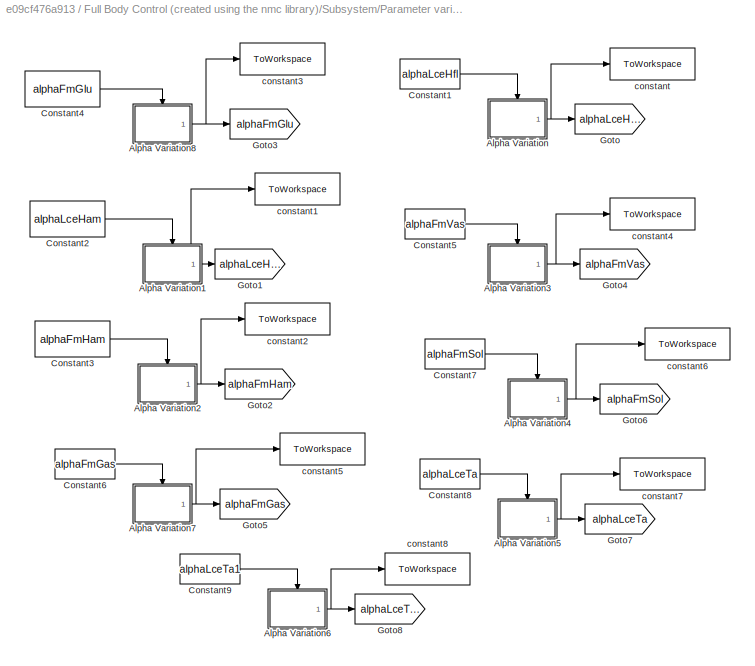
BLOCK [SubSystem] Full Body Control (created using the nmc library)/Subsystem/Parameter variation/Alpha variation
  Commented = on
  Ports = []
  RequestExecContextInheritance = off
  Variant = off
BLOCK [SubSystem] Full Body Control (created using the nmc library)/Subsystem/Parameter variation/Alpha variation/Alpha Variation
  Ports = [0, 1, 1]
  RequestExecContextInheritance = off
  Variant = off
BLOCK [Gain] Full Body Control (created using the nmc library)/Subsystem/Parameter variation/Alpha variation/Alpha Variation/Gain
  Gain = 10
  OutDataTypeStr = Inherit: Inherit via internal rule
  ParamDataTypeStr = Inherit: Inherit via internal rule
  SaturateOnIntegerOverflow = off
BLOCK [Gain] Full Body Control (created using the nmc library)/Subsystem/Parameter variation/Alpha variation/Alpha Variation/Gain1
  Gain = 0.1
  OutDataTypeStr = Inherit: Inherit via internal rule
  ParamDataTypeStr = Inherit: Inherit via internal rule
  SaturateOnIntegerOverflow = off
BLOCK [Reference] Full Body Control (created using the nmc library)/Subsystem/Parameter variation/Alpha variation/Alpha Variation/Ramp  REF=simulink/Sources/Ramp
  Ports = [0, 1]
  SourceBlock = simulink/Sources/Ramp
  SourceType = Ramp
  VectorParams1D = on
  X0 = 0
  slope = 0.05
  start = 2
BLOCK [Rounding] Full Body Control (created using the nmc library)/Subsystem/Parameter variation/Alpha variation/Alpha Variation/Rounding Function
  Operator = round
BLOCK [Saturate] Full Body Control (created using the nmc library)/Subsystem/Parameter variation/Alpha variation/Alpha Variation/Saturation
  InputPortMap = u0
  LowerLimit = 0
  Ports = [1, 1]
  UpperLimit = 1
BLOCK [Switch] Full Body Control (created using the nmc library)/Subsystem/Parameter variation/Alpha variation/Alpha Variation/Switch
  InputSameDT = off
  SaturateOnIntegerOverflow = off
  Threshold = 1
BLOCK [EnablePort] Full Body Control (created using the nmc library)/Subsystem/Parameter variation/Alpha variation/Alpha Variation/alpha
  Ports = [0, 1]
  ShowOutputPort = on
BLOCK [Outport] Full Body Control (created using the nmc library)/Subsystem/Parameter variation/Alpha variation/Alpha Variation/alphaOut 
  IconDisplay = Port number
BLOCK [SubSystem] Full Body Control (created using the nmc library)/Subsystem/Parameter variation/Alpha variation/Alpha Variation1
  Ports = [0, 1, 1]
  RequestExecContextInheritance = off
  Variant = off
BLOCK [Gain] Full Body Control (created using the nmc library)/Subsystem/Parameter variation/Alpha variation/Alpha Variation1/Gain
  Gain = 10
  OutDataTypeStr = Inherit: Inherit via internal rule
  ParamDataTypeStr = Inherit: Inherit via internal rule
  SaturateOnIntegerOverflow = off
BLOCK [Gain] Full Body Control (created using the nmc library)/Subsystem/Parameter variation/Alpha variation/Alpha Variation1/Gain1
  Gain = 0.1
  OutDataTypeStr = Inherit: Inherit via internal rule
  ParamDataTypeStr = Inherit: Inherit via internal rule
  SaturateOnIntegerOverflow = off
BLOCK [Reference] Full Body Control (created using the nmc library)/Subsystem/Parameter variation/Alpha variation/Alpha Variation1/Ramp  REF=simulink/Sources/Ramp
  Ports = [0, 1]
  SourceBlock = simulink/Sources/Ramp
  SourceType = Ramp
  VectorParams1D = on
  X0 = 0
  slope = 0.05
  start = 2
BLOCK [Rounding] Full Body Control (created using the nmc library)/Subsystem/Parameter variation/Alpha variation/Alpha Variation1/Rounding Function
  Operator = round
BLOCK [Saturate] Full Body Control (created using the nmc library)/Subsystem/Parameter variation/Alpha variation/Alpha Variation1/Saturation
  InputPortMap = u0
  LowerLimit = 0
  Ports = [1, 1]
  UpperLimit = 1
BLOCK [Switch] Full Body Control (created using the nmc library)/Subsystem/Parameter variation/Alpha variation/Alpha Variation1/Switch
  InputSameDT = off
  SaturateOnIntegerOverflow = off
  Threshold = 1
BLOCK [EnablePort] Full Body Control (created using the nmc library)/Subsystem/Parameter variation/Alpha variation/Alpha Variation1/alpha
  Ports = [0, 1]
  ShowOutputPort = on
BLOCK [Outport] Full Body Control (created using the nmc library)/Subsystem/Parameter variation/Alpha variation/Alpha Variation1/alphaOut 
  IconDisplay = Port number
BLOCK [SubSystem] Full Body Control (created using the nmc library)/Subsystem/Parameter variation/Alpha variation/Alpha Variation2
  Ports = [0, 1, 1]
  RequestExecContextInheritance = off
  Variant = off
BLOCK [Gain] Full Body Control (created using the nmc library)/Subsystem/Parameter variation/Alpha variation/Alpha Variation2/Gain
  Gain = 10
  OutDataTypeStr = Inherit: Inherit via internal rule
  ParamDataTypeStr = Inherit: Inherit via internal rule
  SaturateOnIntegerOverflow = off
BLOCK [Gain] Full Body Control (created using the nmc library)/Subsystem/Parameter variation/Alpha variation/Alpha Variation2/Gain1
  Gain = 0.1
  OutDataTypeStr = Inherit: Inherit via internal rule
  ParamDataTypeStr = Inherit: Inherit via internal rule
  SaturateOnIntegerOverflow = off
BLOCK [Reference] Full Body Control (created using the nmc library)/Subsystem/Parameter variation/Alpha variation/Alpha Variation2/Ramp  REF=simulink/Sources/Ramp
  Ports = [0, 1]
  SourceBlock = simulink/Sources/Ramp
  SourceType = Ramp
  VectorParams1D = on
  X0 = 0
  slope = 0.05
  start = 2
BLOCK [Rounding] Full Body Control (created using the nmc library)/Subsystem/Parameter variation/Alpha variation/Alpha Variation2/Rounding Function
  Operator = round
BLOCK [Saturate] Full Body Control (created using the nmc library)/Subsystem/Parameter variation/Alpha variation/Alpha Variation2/Saturation
  InputPortMap = u0
  LowerLimit = 0
  Ports = [1, 1]
  UpperLimit = 1
BLOCK [Switch] Full Body Control (created using the nmc library)/Subsystem/Parameter variation/Alpha variation/Alpha Variation2/Switch
  InputSameDT = off
  SaturateOnIntegerOverflow = off
  Threshold = 1
BLOCK [EnablePort] Full Body Control (created using the nmc library)/Subsystem/Parameter variation/Alpha variation/Alpha Variation2/alpha
  Ports = [0, 1]
  ShowOutputPort = on
BLOCK [Outport] Full Body Control (created using the nmc library)/Subsystem/Parameter variation/Alpha variation/Alpha Variation2/alphaOut 
  IconDisplay = Port number
BLOCK [SubSystem] Full Body Control (created using the nmc library)/Subsystem/Parameter variation/Alpha variation/Alpha Variation3
  Ports = [0, 1, 1]
  RequestExecContextInheritance = off
  Variant = off
BLOCK [Gain] Full Body Control (created using the nmc library)/Subsystem/Parameter variation/Alpha variation/Alpha Variation3/Gain
  Gain = 10
  OutDataTypeStr = Inherit: Inherit via internal rule
  ParamDataTypeStr = Inherit: Inherit via internal rule
  SaturateOnIntegerOverflow = off
BLOCK [Gain] Full Body Control (created using the nmc library)/Subsystem/Parameter variation/Alpha variation/Alpha Variation3/Gain1
  Gain = 0.1
  OutDataTypeStr = Inherit: Inherit via internal rule
  ParamDataTypeStr = Inherit: Inherit via internal rule
  SaturateOnIntegerOverflow = off
BLOCK [Reference] Full Body Control (created using the nmc library)/Subsystem/Parameter variation/Alpha variation/Alpha Variation3/Ramp  REF=simulink/Sources/Ramp
  Ports = [0, 1]
  SourceBlock = simulink/Sources/Ramp
  SourceType = Ramp
  VectorParams1D = on
  X0 = 0
  slope = 0.05
  start = 2
BLOCK [Rounding] Full Body Control (created using the nmc library)/Subsystem/Parameter variation/Alpha variation/Alpha Variation3/Rounding Function
  Operator = round
BLOCK [Saturate] Full Body Control (created using the nmc library)/Subsystem/Parameter variation/Alpha variation/Alpha Variation3/Saturation
  InputPortMap = u0
  LowerLimit = 0
  Ports = [1, 1]
  UpperLimit = 1
BLOCK [Switch] Full Body Control (created using the nmc library)/Subsystem/Parameter variation/Alpha variation/Alpha Variation3/Switch
  InputSameDT = off
  SaturateOnIntegerOverflow = off
  Threshold = 1
BLOCK [EnablePort] Full Body Control (created using the nmc library)/Subsystem/Parameter variation/Alpha variation/Alpha Variation3/alpha
  Ports = [0, 1]
  ShowOutputPort = on
BLOCK [Outport] Full Body Control (created using the nmc library)/Subsystem/Parameter variation/Alpha variation/Alpha Variation3/alphaOut 
  IconDisplay = Port number
BLOCK [SubSystem] Full Body Control (created using the nmc library)/Subsystem/Parameter variation/Alpha variation/Alpha Variation4
  Ports = [0, 1, 1]
  RequestExecContextInheritance = off
  Variant = off
BLOCK [Gain] Full Body Control (created using the nmc library)/Subsystem/Parameter variation/Alpha variation/Alpha Variation4/Gain
  Gain = 10
  OutDataTypeStr = Inherit: Inherit via internal rule
  ParamDataTypeStr = Inherit: Inherit via internal rule
  SaturateOnIntegerOverflow = off
BLOCK [Gain] Full Body Control (created using the nmc library)/Subsystem/Parameter variation/Alpha variation/Alpha Variation4/Gain1
  Gain = 0.1
  OutDataTypeStr = Inherit: Inherit via internal rule
  ParamDataTypeStr = Inherit: Inherit via internal rule
  SaturateOnIntegerOverflow = off
BLOCK [Reference] Full Body Control (created using the nmc library)/Subsystem/Parameter variation/Alpha variation/Alpha Variation4/Ramp  REF=simulink/Sources/Ramp
  Ports = [0, 1]
  SourceBlock = simulink/Sources/Ramp
  SourceType = Ramp
  VectorParams1D = on
  X0 = 0
  slope = 0.05
  start = 2
BLOCK [Rounding] Full Body Control (created using the nmc library)/Subsystem/Parameter variation/Alpha variation/Alpha Variation4/Rounding Function
  Operator = round
BLOCK [Saturate] Full Body Control (created using the nmc library)/Subsystem/Parameter variation/Alpha variation/Alpha Variation4/Saturation
  InputPortMap = u0
  LowerLimit = 0
  Ports = [1, 1]
  UpperLimit = 1
BLOCK [Switch] Full Body Control (created using the nmc library)/Subsystem/Parameter variation/Alpha variation/Alpha Variation4/Switch
  InputSameDT = off
  SaturateOnIntegerOverflow = off
  Threshold = 1
BLOCK [EnablePort] Full Body Control (created using the nmc library)/Subsystem/Parameter variation/Alpha variation/Alpha Variation4/alpha
  Ports = [0, 1]
  ShowOutputPort = on
BLOCK [Outport] Full Body Control (created using the nmc library)/Subsystem/Parameter variation/Alpha variation/Alpha Variation4/alphaOut 
  IconDisplay = Port number
BLOCK [SubSystem] Full Body Control (created using the nmc library)/Subsystem/Parameter variation/Alpha variation/Alpha Variation5
  Ports = [0, 1, 1]
  RequestExecContextInheritance = off
  Variant = off
BLOCK [Gain] Full Body Control (created using the nmc library)/Subsystem/Parameter variation/Alpha variation/Alpha Variation5/Gain
  Gain = 10
  OutDataTypeStr = Inherit: Inherit via internal rule
  ParamDataTypeStr = Inherit: Inherit via internal rule
  SaturateOnIntegerOverflow = off
BLOCK [Gain] Full Body Control (created using the nmc library)/Subsystem/Parameter variation/Alpha variation/Alpha Variation5/Gain1
  Gain = 0.1
  OutDataTypeStr = Inherit: Inherit via internal rule
  ParamDataTypeStr = Inherit: Inherit via internal rule
  SaturateOnIntegerOverflow = off
BLOCK [Reference] Full Body Control (created using the nmc library)/Subsystem/Parameter variation/Alpha variation/Alpha Variation5/Ramp  REF=simulink/Sources/Ramp
  Ports = [0, 1]
  SourceBlock = simulink/Sources/Ramp
  SourceType = Ramp
  VectorParams1D = on
  X0 = 0
  slope = 0.05
  start = 2
BLOCK [Rounding] Full Body Control (created using the nmc library)/Subsystem/Parameter variation/Alpha variation/Alpha Variation5/Rounding Function
  Operator = round
BLOCK [Saturate] Full Body Control (created using the nmc library)/Subsystem/Parameter variation/Alpha variation/Alpha Variation5/Saturation
  InputPortMap = u0
  LowerLimit = 0
  Ports = [1, 1]
  UpperLimit = 1
BLOCK [Switch] Full Body Control (created using the nmc library)/Subsystem/Parameter variation/Alpha variation/Alpha Variation5/Switch
  InputSameDT = off
  SaturateOnIntegerOverflow = off
  Threshold = 1
BLOCK [EnablePort] Full Body Control (created using the nmc library)/Subsystem/Parameter variation/Alpha variation/Alpha Variation5/alpha
  Ports = [0, 1]
  ShowOutputPort = on
BLOCK [Outport] Full Body Control (created using the nmc library)/Subsystem/Parameter variation/Alpha variation/Alpha Variation5/alphaOut 
  IconDisplay = Port number
BLOCK [SubSystem] Full Body Control (created using the nmc library)/Subsystem/Parameter variation/Alpha variation/Alpha Variation6
  Ports = [0, 1, 1]
  RequestExecContextInheritance = off
  Variant = off
BLOCK [Gain] Full Body Control (created using the nmc library)/Subsystem/Parameter variation/Alpha variation/Alpha Variation6/Gain
  Gain = 10
  OutDataTypeStr = Inherit: Inherit via internal rule
  ParamDataTypeStr = Inherit: Inherit via internal rule
  SaturateOnIntegerOverflow = off
BLOCK [Gain] Full Body Control (created using the nmc library)/Subsystem/Parameter variation/Alpha variation/Alpha Variation6/Gain1
  Gain = 0.1
  OutDataTypeStr = Inherit: Inherit via internal rule
  ParamDataTypeStr = Inherit: Inherit via internal rule
  SaturateOnIntegerOverflow = off
BLOCK [Reference] Full Body Control (created using the nmc library)/Subsystem/Parameter variation/Alpha variation/Alpha Variation6/Ramp  REF=simulink/Sources/Ramp
  Ports = [0, 1]
  SourceBlock = simulink/Sources/Ramp
  SourceType = Ramp
  VectorParams1D = on
  X0 = 0
  slope = 0.05
  start = 2
BLOCK [Rounding] Full Body Control (created using the nmc library)/Subsystem/Parameter variation/Alpha variation/Alpha Variation6/Rounding Function
  Operator = round
BLOCK [Saturate] Full Body Control (created using the nmc library)/Subsystem/Parameter variation/Alpha variation/Alpha Variation6/Saturation
  InputPortMap = u0
  LowerLimit = 0
  Ports = [1, 1]
  UpperLimit = 1
BLOCK [Switch] Full Body Control (created using the nmc library)/Subsystem/Parameter variation/Alpha variation/Alpha Variation6/Switch
  InputSameDT = off
  SaturateOnIntegerOverflow = off
  Threshold = 1
BLOCK [EnablePort] Full Body Control (created using the nmc library)/Subsystem/Parameter variation/Alpha variation/Alpha Variation6/alpha
  Ports = [0, 1]
  ShowOutputPort = on
BLOCK [Outport] Full Body Control (created using the nmc library)/Subsystem/Parameter variation/Alpha variation/Alpha Variation6/alphaOut 
  IconDisplay = Port number
BLOCK [SubSystem] Full Body Control (created using the nmc library)/Subsystem/Parameter variation/Alpha variation/Alpha Variation7
  Ports = [0, 1, 1]
  RequestExecContextInheritance = off
  Variant = off
BLOCK [Gain] Full Body Control (created using the nmc library)/Subsystem/Parameter variation/Alpha variation/Alpha Variation7/Gain
  Gain = 10
  OutDataTypeStr = Inherit: Inherit via internal rule
  ParamDataTypeStr = Inherit: Inherit via internal rule
  SaturateOnIntegerOverflow = off
BLOCK [Gain] Full Body Control (created using the nmc library)/Subsystem/Parameter variation/Alpha variation/Alpha Variation7/Gain1
  Gain = 0.1
  OutDataTypeStr = Inherit: Inherit via internal rule
  ParamDataTypeStr = Inherit: Inherit via internal rule
  SaturateOnIntegerOverflow = off
BLOCK [Reference] Full Body Control (created using the nmc library)/Subsystem/Parameter variation/Alpha variation/Alpha Variation7/Ramp  REF=simulink/Sources/Ramp
  Ports = [0, 1]
  SourceBlock = simulink/Sources/Ramp
  SourceType = Ramp
  VectorParams1D = on
  X0 = 0
  slope = 0.05
  start = 2
BLOCK [Rounding] Full Body Control (created using the nmc library)/Subsystem/Parameter variation/Alpha variation/Alpha Variation7/Rounding Function
  Operator = round
BLOCK [Saturate] Full Body Control (created using the nmc library)/Subsystem/Parameter variation/Alpha variation/Alpha Variation7/Saturation
  InputPortMap = u0
  LowerLimit = 0
  Ports = [1, 1]
  UpperLimit = 1
BLOCK [Switch] Full Body Control (created using the nmc library)/Subsystem/Parameter variation/Alpha variation/Alpha Variation7/Switch
  InputSameDT = off
  SaturateOnIntegerOverflow = off
  Threshold = 1
BLOCK [EnablePort] Full Body Control (created using the nmc library)/Subsystem/Parameter variation/Alpha variation/Alpha Variation7/alpha
  Ports = [0, 1]
  ShowOutputPort = on
BLOCK [Outport] Full Body Control (created using the nmc library)/Subsystem/Parameter variation/Alpha variation/Alpha Variation7/alphaOut 
  IconDisplay = Port number
BLOCK [SubSystem] Full Body Control (created using the nmc library)/Subsystem/Parameter variation/Alpha variation/Alpha Variation8
  Ports = [0, 1, 1]
  RequestExecContextInheritance = off
  Variant = off
BLOCK [Gain] Full Body Control (created using the nmc library)/Subsystem/Parameter variation/Alpha variation/Alpha Variation8/Gain
  Gain = 10
  OutDataTypeStr = Inherit: Inherit via internal rule
  ParamDataTypeStr = Inherit: Inherit via internal rule
  SaturateOnIntegerOverflow = off
BLOCK [Gain] Full Body Control (created using the nmc library)/Subsystem/Parameter variation/Alpha variation/Alpha Variation8/Gain1
  Gain = 0.1
  OutDataTypeStr = Inherit: Inherit via internal rule
  ParamDataTypeStr = Inherit: Inherit via internal rule
  SaturateOnIntegerOverflow = off
BLOCK [Reference] Full Body Control (created using the nmc library)/Subsystem/Parameter variation/Alpha variation/Alpha Variation8/Ramp  REF=simulink/Sources/Ramp
  Ports = [0, 1]
  SourceBlock = simulink/Sources/Ramp
  SourceType = Ramp
  VectorParams1D = on
  X0 = 0
  slope = 0.05
  start = 2
BLOCK [Rounding] Full Body Control (created using the nmc library)/Subsystem/Parameter variation/Alpha variation/Alpha Variation8/Rounding Function
  Operator = round
BLOCK [Saturate] Full Body Control (created using the nmc library)/Subsystem/Parameter variation/Alpha variation/Alpha Variation8/Saturation
  InputPortMap = u0
  LowerLimit = 0
  Ports = [1, 1]
  UpperLimit = 1
BLOCK [Switch] Full Body Control (created using the nmc library)/Subsystem/Parameter variation/Alpha variation/Alpha Variation8/Switch
  InputSameDT = off
  SaturateOnIntegerOverflow = off
  Threshold = 1
BLOCK [EnablePort] Full Body Control (created using the nmc library)/Subsystem/Parameter variation/Alpha variation/Alpha Variation8/alpha
  Ports = [0, 1]
  ShowOutputPort = on
BLOCK [Outport] Full Body Control (created using the nmc library)/Subsystem/Parameter variation/Alpha variation/Alpha Variation8/alphaOut 
  IconDisplay = Port number
BLOCK [Constant] Full Body Control (created using the nmc library)/Subsystem/Parameter variation/Alpha variation/Constant1
  Value = alphaLceHfl
BLOCK [Constant] Full Body Control (created using the nmc library)/Subsystem/Parameter variation/Alpha variation/Constant2
  Value = alphaLceHam
BLOCK [Constant] Full Body Control (created using the nmc library)/Subsystem/Parameter variation/Alpha variation/Constant3
  Value = alphaFmHam
BLOCK [Constant] Full Body Control (created using the nmc library)/Subsystem/Parameter variation/Alpha variation/Constant4
  Value = alphaFmGlu
BLOCK [Constant] Full Body Control (created using the nmc library)/Subsystem/Parameter variation/Alpha variation/Constant5
  Value = alphaFmVas
BLOCK [Constant] Full Body Control (created using the nmc library)/Subsystem/Parameter variation/Alpha variation/Constant6
  Value = alphaFmGas
BLOCK [Constant] Full Body Control (created using the nmc library)/Subsystem/Parameter variation/Alpha variation/Constant7
  Value = alphaFmSol
BLOCK [Constant] Full Body Control (created using the nmc library)/Subsystem/Parameter variation/Alpha variation/Constant8
  Value = alphaLceTa
BLOCK [Constant] Full Body Control (created using the nmc library)/Subsystem/Parameter variation/Alpha variation/Constant9
  Value = alphaLceTa1
BLOCK [Goto] Full Body Control (created using the nmc library)/Subsystem/Parameter variation/Alpha variation/Goto
  GotoTag = alphaLceHfl
  TagVisibility = global
BLOCK [Goto] Full Body Control (created using the nmc library)/Subsystem/Parameter variation/Alpha variation/Goto1
  GotoTag = alphaLceHam
  TagVisibility = global
BLOCK [Goto] Full Body Control (created using the nmc library)/Subsystem/Parameter variation/Alpha variation/Goto2
  GotoTag = alphaFmHam
  TagVisibility = global
BLOCK [Goto] Full Body Control (created using the nmc library)/Subsystem/Parameter variation/Alpha variation/Goto3
  GotoTag = alphaFmGlu
  TagVisibility = global
BLOCK [Goto] Full Body Control (created using the nmc library)/Subsystem/Parameter variation/Alpha variation/Goto4
  GotoTag = alphaFmVas
  TagVisibility = global
BLOCK [Goto] Full Body Control (created using the nmc library)/Subsystem/Parameter variation/Alpha variation/Goto5
  GotoTag = alphaFmGas
  TagVisibility = global
BLOCK [Goto] Full Body Control (created using the nmc library)/Subsystem/Parameter variation/Alpha variation/Goto6
  GotoTag = alphaFmSol
  TagVisibility = global
BLOCK [Goto] Full Body Control (created using the nmc library)/Subsystem/Parameter variation/Alpha variation/Goto7
  GotoTag = alphaLceTa
  TagVisibility = global
BLOCK [Goto] Full Body Control (created using the nmc library)/Subsystem/Parameter variation/Alpha variation/Goto8
  GotoTag = alphaLceTa1
  TagVisibility = global
BLOCK [ToWorkspace] Full Body Control (created using the nmc library)/Subsystem/Parameter variation/Alpha variation/constant
  FixptAsFi = on
  MaxDataPoints = inf
  Ports = [1]
  SampleTime = -1
  Save2DSignal = 3-D array (concatenate along third dimension)
  SaveFormat = Timeseries
  VariableName = alphaLceHflTime
BLOCK [ToWorkspace] Full Body Control (created using the nmc library)/Subsystem/Parameter variation/Alpha variation/constant1
  FixptAsFi = on
  MaxDataPoints = inf
  Ports = [1]
  SampleTime = -1
  Save2DSignal = 3-D array (concatenate along third dimension)
  SaveFormat = Timeseries
  VariableName = alphaLceHamTime
BLOCK [ToWorkspace] Full Body Control (created using the nmc library)/Subsystem/Parameter variation/Alpha variation/constant2
  FixptAsFi = on
  MaxDataPoints = inf
  Ports = [1]
  SampleTime = -1
  Save2DSignal = 3-D array (concatenate along third dimension)
  SaveFormat = Timeseries
  VariableName = alphaFmHamTime
BLOCK [ToWorkspace] Full Body Control (created using the nmc library)/Subsystem/Parameter variation/Alpha variation/constant3
  FixptAsFi = on
  MaxDataPoints = inf
  Ports = [1]
  SampleTime = -1
  Save2DSignal = 3-D array (concatenate along third dimension)
  SaveFormat = Timeseries
  VariableName = alphaFmGluTime
BLOCK [ToWorkspace] Full Body Control (created using the nmc library)/Subsystem/Parameter variation/Alpha variation/constant4
  FixptAsFi = on
  MaxDataPoints = inf
  Ports = [1]
  SampleTime = -1
  Save2DSignal = 3-D array (concatenate along third dimension)
  SaveFormat = Timeseries
  VariableName = alphaFmVasTime
BLOCK [ToWorkspace] Full Body Control (created using the nmc library)/Subsystem/Parameter variation/Alpha variation/constant5
  FixptAsFi = on
  MaxDataPoints = inf
  Ports = [1]
  SampleTime = -1
  Save2DSignal = 3-D array (concatenate along third dimension)
  SaveFormat = Timeseries
  VariableName = alphaFmGasTime
BLOCK [ToWorkspace] Full Body Control (created using the nmc library)/Subsystem/Parameter variation/Alpha variation/constant6
  FixptAsFi = on
  MaxDataPoints = inf
  Ports = [1]
  SampleTime = -1
  Save2DSignal = 3-D array (concatenate along third dimension)
  SaveFormat = Timeseries
  VariableName = alphaFmSolTime
BLOCK [ToWorkspace] Full Body Control (created using the nmc library)/Subsystem/Parameter variation/Alpha variation/constant7
  FixptAsFi = on
  MaxDataPoints = inf
  Ports = [1]
  SampleTime = -1
  Save2DSignal = 3-D array (concatenate along third dimension)
  SaveFormat = Timeseries
  VariableName = alphaLceTaTime
BLOCK [ToWorkspace] Full Body Control (created using the nmc library)/Subsystem/Parameter variation/Alpha variation/constant8
  FixptAsFi = on
  MaxDataPoints = inf
  Ports = [1]
  SampleTime = -1
  Save2DSignal = 3-D array (concatenate along third dimension)
  SaveFormat = Timeseries
  VariableName = alphaLceTa1Time
BLOCK [SubSystem] Full Body Control (created using the nmc library)/Subsystem/Parameter variation/Amplitude Variation
  Commented = on
  Ports = []
  RequestExecContextInheritance = off
  Variant = off
BLOCK [Sum] Full Body Control (created using the nmc library)/Subsystem/Parameter variation/Amplitude Variation/Add
  InputSameDT = off
  Inputs = +++
  OutDataTypeStr = Inherit: Inherit via internal rule
  Ports = [3, 1]
  SaturateOnIntegerOverflow = off
BLOCK [Constant] Full Body Control (created using the nmc library)/Subsystem/Parameter variation/Amplitude Variation/Constant1
  Value = amp_var
BLOCK [Constant] Full Body Control (created using the nmc library)/Subsystem/Parameter variation/Amplitude Variation/Constant17
  Value = Amp
BLOCK [Demux] Full Body Control (created using the nmc library)/Subsystem/Parameter variation/Amplitude Variation/Demux
  DisplayOption = bar
  Outputs = 3
  Ports = [1, 3]
BLOCK [SubSystem] Full Body Control (created using the nmc library)/Subsystem/Parameter variation/Amplitude Variation/Down
  Ports = [1, 1, 1]
  RequestExecContextInheritance = off
  Variant = off
BLOCK [Inport] Full Body Control (created using the nmc library)/Subsystem/Parameter variation/Amplitude Variation/Down/Amp
  IconDisplay = Port number
BLOCK [Outport] Full Body Control (created using the nmc library)/Subsystem/Parameter variation/Amplitude Variation/Down/AmpDown 
  IconDisplay = Port number
BLOCK [EnablePort] Full Body Control (created using the nmc library)/Subsystem/Parameter variation/Amplitude Variation/Down/Enable
  Ports = []
BLOCK [Gain] Full Body Control (created using the nmc library)/Subsystem/Parameter variation/Amplitude Variation/Down/Gain
  Gain = 10
  OutDataTypeStr = Inherit: Inherit via internal rule
  ParamDataTypeStr = Inherit: Inherit via internal rule
  SaturateOnIntegerOverflow = off
BLOCK [Gain] Full Body Control (created using the nmc library)/Subsystem/Parameter variation/Amplitude Variation/Down/Gain1
  Gain = 0.1
  OutDataTypeStr = Inherit: Inherit via internal rule
  ParamDataTypeStr = Inherit: Inherit via internal rule
  SaturateOnIntegerOverflow = off
BLOCK [Reference] Full Body Control (created using the nmc library)/Subsystem/Parameter variation/Amplitude Variation/Down/Ramp  REF=simulink/Sources/Ramp
  Ports = [0, 1]
  SourceBlock = simulink/Sources/Ramp
  SourceType = Ramp
  VectorParams1D = on
  X0 = 0
  slope = 0.04
  start = 2
BLOCK [Rounding] Full Body Control (created using the nmc library)/Subsystem/Parameter variation/Amplitude Variation/Down/Rounding Function
  Operator = round
BLOCK [Saturate] Full Body Control (created using the nmc library)/Subsystem/Parameter variation/Amplitude Variation/Down/Saturation
  InputPortMap = u0
  LowerLimit = 0
  Ports = [1, 1]
  UpperLimit = 1.5
BLOCK [Sum] Full Body Control (created using the nmc library)/Subsystem/Parameter variation/Amplitude Variation/Down/Subtract
  InputSameDT = off
  Inputs = +-
  OutDataTypeStr = Inherit: Inherit via internal rule
  Ports = [2, 1]
  SaturateOnIntegerOverflow = off
BLOCK [Goto] Full Body Control (created using the nmc library)/Subsystem/Parameter variation/Amplitude Variation/Goto10
  GotoTag = amp
  TagVisibility = global
BLOCK [SubSystem] Full Body Control (created using the nmc library)/Subsystem/Parameter variation/Amplitude Variation/Off 
  Ports = [1, 1, 1]
  RequestExecContextInheritance = off
  Variant = off
BLOCK [Inport] Full Body Control (created using the nmc library)/Subsystem/Parameter variation/Amplitude Variation/Off /Amp
  IconDisplay = Port number
BLOCK [Outport] Full Body Control (created using the nmc library)/Subsystem/Parameter variation/Amplitude Variation/Off /Amp 
  IconDisplay = Port number
BLOCK [EnablePort] Full Body Control (created using the nmc library)/Subsystem/Parameter variation/Amplitude Variation/Off /Enable
  Ports = []
BLOCK [SubSystem] Full Body Control (created using the nmc library)/Subsystem/Parameter variation/Amplitude Variation/Up
  Ports = [1, 1, 1]
  RequestExecContextInheritance = off
  Variant = off
BLOCK [Inport] Full Body Control (created using the nmc library)/Subsystem/Parameter variation/Amplitude Variation/Up/Amp
  IconDisplay = Port number
BLOCK [Outport] Full Body Control (created using the nmc library)/Subsystem/Parameter variation/Amplitude Variation/Up/AmpUp 
  IconDisplay = Port number
BLOCK [EnablePort] Full Body Control (created using the nmc library)/Subsystem/Parameter variation/Amplitude Variation/Up/Enable
  Ports = []
BLOCK [Gain] Full Body Control (created using the nmc library)/Subsystem/Parameter variation/Amplitude Variation/Up/Gain
  Gain = 10
  OutDataTypeStr = Inherit: Inherit via internal rule
  ParamDataTypeStr = Inherit: Inherit via internal rule
  SaturateOnIntegerOverflow = off
BLOCK [Gain] Full Body Control (created using the nmc library)/Subsystem/Parameter variation/Amplitude Variation/Up/Gain1
  Gain = 0.1
  OutDataTypeStr = Inherit: Inherit via internal rule
  ParamDataTypeStr = Inherit: Inherit via internal rule
  SaturateOnIntegerOverflow = off
BLOCK [Reference] Full Body Control (created using the nmc library)/Subsystem/Parameter variation/Amplitude Variation/Up/Ramp  REF=simulink/Sources/Ramp
  Ports = [0, 1]
  SourceBlock = simulink/Sources/Ramp
  SourceType = Ramp
  VectorParams1D = on
  X0 = 0
  slope = 0.04
  start = 2
BLOCK [Rounding] Full Body Control (created using the nmc library)/Subsystem/Parameter variation/Amplitude Variation/Up/Rounding Function
  Operator = round
BLOCK [Saturate] Full Body Control (created using the nmc library)/Subsystem/Parameter variation/Amplitude Variation/Up/Saturation
  InputPortMap = u0
  LowerLimit = 0
  Ports = [1, 1]
  UpperLimit = 1.5
BLOCK [Sum] Full Body Control (created using the nmc library)/Subsystem/Parameter variation/Amplitude Variation/Up/Sum
  IconShape = round
  InputSameDT = off
  Inputs = |++
  OutDataTypeStr = Inherit: Inherit via internal rule
  Ports = [2, 1]
  SaturateOnIntegerOverflow = off
BLOCK [ToWorkspace] Full Body Control (created using the nmc library)/Subsystem/Parameter variation/Amplitude Variation/constant10
  FixptAsFi = on
  MaxDataPoints = inf
  Ports = [1]
  SampleTime = -1
  Save2DSignal = 3-D array (concatenate along third dimension)
  SaveFormat = Timeseries
  VariableName = ampTime
BLOCK [SubSystem] Full Body Control (created using the nmc library)/Subsystem/Parameter variation/Freq variation
  Commented = on
  Ports = []
  RequestExecContextInheritance = off
  Variant = off
BLOCK [Sum] Full Body Control (created using the nmc library)/Subsystem/Parameter variation/Freq variation/Add
  InputSameDT = off
  Inputs = +++
  OutDataTypeStr = Inherit: Inherit via internal rule
  Ports = [3, 1]
  SaturateOnIntegerOverflow = off
BLOCK [Constant] Full Body Control (created using the nmc library)/Subsystem/Parameter variation/Freq variation/Constant1
  Value = freq_var
BLOCK [Constant] Full Body Control (created using the nmc library)/Subsystem/Parameter variation/Freq variation/Constant17
  Value = freq
BLOCK [Demux] Full Body Control (created using the nmc library)/Subsystem/Parameter variation/Freq variation/Demux
  DisplayOption = bar
  Outputs = 3
  Ports = [1, 3]
BLOCK [SubSystem] Full Body Control (created using the nmc library)/Subsystem/Parameter variation/Freq variation/Down
  Ports = [1, 1, 1]
  RequestExecContextInheritance = off
  Variant = off
BLOCK [EnablePort] Full Body Control (created using the nmc library)/Subsystem/Parameter variation/Freq variation/Down/Enable
  Ports = []
BLOCK [Gain] Full Body Control (created using the nmc library)/Subsystem/Parameter variation/Freq variation/Down/Gain
  Gain = 10
  OutDataTypeStr = Inherit: Inherit via internal rule
  ParamDataTypeStr = Inherit: Inherit via internal rule
  SaturateOnIntegerOverflow = off
BLOCK [Gain] Full Body Control (created using the nmc library)/Subsystem/Parameter variation/Freq variation/Down/Gain1
  Gain = 0.1
  OutDataTypeStr = Inherit: Inherit via internal rule
  ParamDataTypeStr = Inherit: Inherit via internal rule
  SaturateOnIntegerOverflow = off
BLOCK [Reference] Full Body Control (created using the nmc library)/Subsystem/Parameter variation/Freq variation/Down/Ramp  REF=simulink/Sources/Ramp
  Ports = [0, 1]
  SourceBlock = simulink/Sources/Ramp
  SourceType = Ramp
  VectorParams1D = on
  X0 = 0
  slope = 0.04
  start = 2
BLOCK [Rounding] Full Body Control (created using the nmc library)/Subsystem/Parameter variation/Freq variation/Down/Rounding Function
  Operator = round
BLOCK [Saturate] Full Body Control (created using the nmc library)/Subsystem/Parameter variation/Freq variation/Down/Saturation
  InputPortMap = u0
  LowerLimit = 0
  Ports = [1, 1]
  UpperLimit = 1.5
BLOCK [Sum] Full Body Control (created using the nmc library)/Subsystem/Parameter variation/Freq variation/Down/Subtract
  InputSameDT = off
  Inputs = +-
  OutDataTypeStr = Inherit: Inherit via internal rule
  Ports = [2, 1]
  SaturateOnIntegerOverflow = off
BLOCK [Inport] Full Body Control (created using the nmc library)/Subsystem/Parameter variation/Freq variation/Down/freq 
  IconDisplay = Port number
BLOCK [Outport] Full Body Control (created using the nmc library)/Subsystem/Parameter variation/Freq variation/Down/freqDown 
  IconDisplay = Port number
BLOCK [Goto] Full Body Control (created using the nmc library)/Subsystem/Parameter variation/Freq variation/Goto10
  GotoTag = freq
  TagVisibility = global
BLOCK [SubSystem] Full Body Control (created using the nmc library)/Subsystem/Parameter variation/Freq variation/Off 
  Ports = [1, 1, 1]
  RequestExecContextInheritance = off
  Variant = off
BLOCK [Outport] Full Body Control (created using the nmc library)/Subsystem/Parameter variation/Freq variation/Off /Amp 
  IconDisplay = Port number
BLOCK [EnablePort] Full Body Control (created using the nmc library)/Subsystem/Parameter variation/Freq variation/Off /Enable
  Ports = []
BLOCK [Inport] Full Body Control (created using the nmc library)/Subsystem/Parameter variation/Freq variation/Off /freq
  IconDisplay = Port number
BLOCK [SubSystem] Full Body Control (created using the nmc library)/Subsystem/Parameter variation/Freq variation/Up
  Ports = [1, 1, 1]
  RequestExecContextInheritance = off
  Variant = off
BLOCK [EnablePort] Full Body Control (created using the nmc library)/Subsystem/Parameter variation/Freq variation/Up/Enable
  Ports = []
BLOCK [Gain] Full Body Control (created using the nmc library)/Subsystem/Parameter variation/Freq variation/Up/Gain
  Gain = 10
  OutDataTypeStr = Inherit: Inherit via internal rule
  ParamDataTypeStr = Inherit: Inherit via internal rule
  SaturateOnIntegerOverflow = off
BLOCK [Gain] Full Body Control (created using the nmc library)/Subsystem/Parameter variation/Freq variation/Up/Gain1
  Gain = 0.1
  OutDataTypeStr = Inherit: Inherit via internal rule
  ParamDataTypeStr = Inherit: Inherit via internal rule
  SaturateOnIntegerOverflow = off
BLOCK [Reference] Full Body Control (created using the nmc library)/Subsystem/Parameter variation/Freq variation/Up/Ramp  REF=simulink/Sources/Ramp
  Ports = [0, 1]
  SourceBlock = simulink/Sources/Ramp
  SourceType = Ramp
  VectorParams1D = on
  X0 = 0
  slope = 0.04
  start = 2
BLOCK [Rounding] Full Body Control (created using the nmc library)/Subsystem/Parameter variation/Freq variation/Up/Rounding Function
  Operator = round
BLOCK [Saturate] Full Body Control (created using the nmc library)/Subsystem/Parameter variation/Freq variation/Up/Saturation
  InputPortMap = u0
  LowerLimit = 0
  Ports = [1, 1]
  UpperLimit = 1.5
BLOCK [Sum] Full Body Control (created using the nmc library)/Subsystem/Parameter variation/Freq variation/Up/Sum
  IconShape = round
  InputSameDT = off
  Inputs = |++
  OutDataTypeStr = Inherit: Inherit via internal rule
  Ports = [2, 1]
  SaturateOnIntegerOverflow = off
BLOCK [Inport] Full Body Control (created using the nmc library)/Subsystem/Parameter variation/Freq variation/Up/freq 
  IconDisplay = Port number
BLOCK [Outport] Full Body Control (created using the nmc library)/Subsystem/Parameter variation/Freq variation/Up/freqUp 
  IconDisplay = Port number
BLOCK [ToWorkspace] Full Body Control (created using the nmc library)/Subsystem/Parameter variation/Freq variation/constant10
  FixptAsFi = on
  MaxDataPoints = inf
  Ports = [1]
  SampleTime = -1
  Save2DSignal = 3-D array (concatenate along third dimension)
  SaveFormat = Timeseries
  VariableName = freqTime
BLOCK [ToWorkspace] Full Body Control (created using the nmc library)/To Current Workspace2
  MaxDataPoints = 1
  Ports = [1]
  SampleTime = -1
  SaveFormat = Structure
  VariableName = simout_tEnd
ANNOTATION (root): Neuromuscular Controller F. Dzeladini (<email>) based on the model of H.Geyer (email: <email>)
ANNOTATION (root): Full body controller of a humanoid -> Based on the 2010 simulink model from H.Geyer (https://www.cs.cmu.edu/~hgeyer/index.html) -> Uses the SimulinkNMC library to creates reproduce the model of geyer (see Full Body Control block)
ANNOTATION Body Mechanics Layer (from Geyer s 2010 model): Body Mechanics Layer
ANNOTATION Body Mechanics Layer (from Geyer s 2010 model): Left Leg
ANNOTATION Body Mechanics Layer (from Geyer s 2010 model): Muscle Actuation Layer Interface (Left Ankle Joint)
ANNOTATION Body Mechanics Layer (from Geyer s 2010 model): Muscle Actuation Layer Interface (Left Hip Joint)
ANNOTATION Body Mechanics Layer (from Geyer s 2010 model): Muscle Actuation Layer Interface (Left Knee Joint)
ANNOTATION Body Mechanics Layer (from Geyer s 2010 model): Muscle Actuation Layer Interface (Right Ankle Joint)
ANNOTATION Body Mechanics Layer (from Geyer s 2010 model): Muscle Actuation Layer Interface (Right Hip Joint)
ANNOTATION Body Mechanics Layer (from Geyer s 2010 model): Muscle Actuation Layer Interface (Right Knee Joint)
ANNOTATION Body Mechanics Layer (from Geyer s 2010 model): Neural Control Layer Interface
ANNOTATION Body Mechanics Layer (from Geyer s 2010 model): Right Leg
ANNOTATION Body Mechanics Layer (from Geyer s 2010 model)/Left Ball Contact: Planar Ground Interaction Model
ANNOTATION Body Mechanics Layer (from Geyer s 2010 model)/Left Ball Contact/Ground Friction Model: Horizontal Ground Friction Model
ANNOTATION Body Mechanics Layer (from Geyer s 2010 model)/Left Ball Contact/Ground Friction Model: Vertical Ground Stiction Model
ANNOTATION Body Mechanics Layer (from Geyer s 2010 model)/Left Ball Contact/Ground Friction Model/Friction Switch: Static/Kinetic Friction Switch
ANNOTATION Body Mechanics Layer (from Geyer s 2010 model)/Left Ball Contact/Ground Friction Model/X-Axis Kinetic Friction Model: Footpoint Determiner
ANNOTATION Body Mechanics Layer (from Geyer s 2010 model)/Left Ball Contact/Ground Friction Model/X-Axis Kinetic Friction Model: Kinetic Friction Model
ANNOTATION Body Mechanics Layer (from Geyer s 2010 model)/Left Ball Contact/Ground Friction Model/X-Axis Kinetic Friction Model: Sliding Limit Detector
ANNOTATION Body Mechanics Layer (from Geyer s 2010 model)/Left Ball Contact/Ground Friction Model/X-Axis Static Friction Model: Static Friction Model
ANNOTATION Body Mechanics Layer (from Geyer s 2010 model)/Left Ball Contact/Ground Friction Model/X-Axis Static Friction Model: Stiction Limit Detector
ANNOTATION Body Mechanics Layer (from Geyer s 2010 model)/Left Ball Contact/Ground Friction Model/X-Axis Static Friction Model: Zero multiplication prevents horizontal friction model from oscillating between static and kinetic friction when the vertical force is zero but the ground level is not yet reached in the upward motion
ANNOTATION Body Mechanics Layer (from Geyer s 2010 model)/Left Heel Contact: Planar Ground Interaction Model
ANNOTATION Body Mechanics Layer (from Geyer s 2010 model)/Left Heel Contact/Ground Friction Model: Horizontal Ground Friction Model
ANNOTATION Body Mechanics Layer (from Geyer s 2010 model)/Left Heel Contact/Ground Friction Model: Vertical Ground Stiction Model
ANNOTATION Body Mechanics Layer (from Geyer s 2010 model)/Left Heel Contact/Ground Friction Model/Friction Switch: Static/Kinetic Friction Switch
ANNOTATION Body Mechanics Layer (from Geyer s 2010 model)/Left Heel Contact/Ground Friction Model/X-Axis Kinetic Friction Model: Footpoint Determiner
ANNOTATION Body Mechanics Layer (from Geyer s 2010 model)/Left Heel Contact/Ground Friction Model/X-Axis Kinetic Friction Model: Kinetic Friction Model
ANNOTATION Body Mechanics Layer (from Geyer s 2010 model)/Left Heel Contact/Ground Friction Model/X-Axis Kinetic Friction Model: Sliding Limit Detector
ANNOTATION Body Mechanics Layer (from Geyer s 2010 model)/Left Heel Contact/Ground Friction Model/X-Axis Static Friction Model: Static Friction Model
ANNOTATION Body Mechanics Layer (from Geyer s 2010 model)/Left Heel Contact/Ground Friction Model/X-Axis Static Friction Model: Stiction Limit Detector
ANNOTATION Body Mechanics Layer (from Geyer s 2010 model)/Left Heel Contact/Ground Friction Model/X-Axis Static Friction Model: Zero multiplication prevents horizontal friction model from oscillating between static and kinetic friction when the vertical force is zero but the ground level is not yet reached in the upward motion
ANNOTATION Body Mechanics Layer (from Geyer s 2010 model)/Left Thigh Sensor Sheet: Inner Segment Pressure Sheet
ANNOTATION Body Mechanics Layer (from Geyer s 2010 model)/Right Ball Contact: Planar Ground Interaction Model
ANNOTATION Body Mechanics Layer (from Geyer s 2010 model)/Right Ball Contact/Ground Friction Model: Horizontal Ground Friction Model
ANNOTATION Body Mechanics Layer (from Geyer s 2010 model)/Right Ball Contact/Ground Friction Model: Vertical Ground Stiction Model
ANNOTATION Body Mechanics Layer (from Geyer s 2010 model)/Right Ball Contact/Ground Friction Model/Friction Switch: Static/Kinetic Friction Switch
ANNOTATION Body Mechanics Layer (from Geyer s 2010 model)/Right Ball Contact/Ground Friction Model/X-Axis Kinetic Friction Model: Footpoint Determiner
ANNOTATION Body Mechanics Layer (from Geyer s 2010 model)/Right Ball Contact/Ground Friction Model/X-Axis Kinetic Friction Model: Kinetic Friction Model
ANNOTATION Body Mechanics Layer (from Geyer s 2010 model)/Right Ball Contact/Ground Friction Model/X-Axis Kinetic Friction Model: Sliding Limit Detector
ANNOTATION Body Mechanics Layer (from Geyer s 2010 model)/Right Ball Contact/Ground Friction Model/X-Axis Static Friction Model: Static Friction Model
ANNOTATION Body Mechanics Layer (from Geyer s 2010 model)/Right Ball Contact/Ground Friction Model/X-Axis Static Friction Model: Stiction Limit Detector
ANNOTATION Body Mechanics Layer (from Geyer s 2010 model)/Right Ball Contact/Ground Friction Model/X-Axis Static Friction Model: Zero multiplication prevents horizontal friction model from oscillating between static and kinetic friction when the vertical force is zero but the ground level is not yet reached in the upward motion
ANNOTATION Body Mechanics Layer (from Geyer s 2010 model)/Right Heel Contact: Planar Ground Interaction Model
ANNOTATION Body Mechanics Layer (from Geyer s 2010 model)/Right Heel Contact/Ground Friction Model: Horizontal Ground Friction Model
ANNOTATION Body Mechanics Layer (from Geyer s 2010 model)/Right Heel Contact/Ground Friction Model: Vertical Ground Stiction Model
ANNOTATION Body Mechanics Layer (from Geyer s 2010 model)/Right Heel Contact/Ground Friction Model/Friction Switch: Static/Kinetic Friction Switch
ANNOTATION Body Mechanics Layer (from Geyer s 2010 model)/Right Heel Contact/Ground Friction Model/X-Axis Kinetic Friction Model: Footpoint Determiner
ANNOTATION Body Mechanics Layer (from Geyer s 2010 model)/Right Heel Contact/Ground Friction Model/X-Axis Kinetic Friction Model: Kinetic Friction Model
ANNOTATION Body Mechanics Layer (from Geyer s 2010 model)/Right Heel Contact/Ground Friction Model/X-Axis Kinetic Friction Model: Sliding Limit Detector
ANNOTATION Body Mechanics Layer (from Geyer s 2010 model)/Right Heel Contact/Ground Friction Model/X-Axis Static Friction Model: Static Friction Model
ANNOTATION Body Mechanics Layer (from Geyer s 2010 model)/Right Heel Contact/Ground Friction Model/X-Axis Static Friction Model: Stiction Limit Detector
ANNOTATION Body Mechanics Layer (from Geyer s 2010 model)/Right Heel Contact/Ground Friction Model/X-Axis Static Friction Model: Zero multiplication prevents horizontal friction model from oscillating between static and kinetic friction when the vertical force is zero but the ground level is not yet reached in the upward motion
ANNOTATION Body Mechanics Layer (from Geyer s 2010 model)/Right Thigh Sensor Sheet: Inner Segment Pressure Sheet
LINE Body Mechanics Layer (from Geyer s 2010 model)/Demux1:1 -> Body Mechanics Layer (from Geyer s 2010 model)/L_GRF:1
NET Body Mechanics Layer (from Geyer s 2010 model)/Demux1:2 -> Body Mechanics Layer (from Geyer s 2010 model)/Demux3:1, Body Mechanics Layer (from Geyer s 2010 model)/L_GRF:2
LINE Body Mechanics Layer (from Geyer s 2010 model)/Demux1:3 -> Body Mechanics Layer (from Geyer s 2010 model)/L_GRF:3
LINE Body Mechanics Layer (from Geyer s 2010 model)/Demux2:1 -> Body Mechanics Layer (from Geyer s 2010 model)/Terminator2:1
LINE Body Mechanics Layer (from Geyer s 2010 model)/Demux2:2 -> Body Mechanics Layer (from Geyer s 2010 model)/rightGRF_vertical:1
LINE Body Mechanics Layer (from Geyer s 2010 model)/Demux3:1 -> Body Mechanics Layer (from Geyer s 2010 model)/Terminator3:1
LINE Body Mechanics Layer (from Geyer s 2010 model)/Demux3:2 -> Body Mechanics Layer (from Geyer s 2010 model)/leftGRF_vertical:1
LINE Body Mechanics Layer (from Geyer s 2010 model)/Demux:1 -> Body Mechanics Layer (from Geyer s 2010 model)/R_GRF:1
NET Body Mechanics Layer (from Geyer s 2010 model)/Demux:2 -> Body Mechanics Layer (from Geyer s 2010 model)/Demux2:1, Body Mechanics Layer (from Geyer s 2010 model)/R_GRF:2
LINE Body Mechanics Layer (from Geyer s 2010 model)/Demux:3 -> Body Mechanics Layer (from Geyer s 2010 model)/R_GRF:3
LINE Body Mechanics Layer (from Geyer s 2010 model)/From2:1 -> Body Mechanics Layer (from Geyer s 2010 model)/Right Force Plate:enable
LINE Body Mechanics Layer (from Geyer s 2010 model)/From4:1 -> Body Mechanics Layer (from Geyer s 2010 model)/Left Force Plate:enable
LINE Body Mechanics Layer (from Geyer s 2010 model)/L Ball Skin Load Sensor:1 -> Body Mechanics Layer (from Geyer s 2010 model)/Logical Operator:1
LINE Body Mechanics Layer (from Geyer s 2010 model)/L Heel Skin Load Sensor:1 -> Body Mechanics Layer (from Geyer s 2010 model)/Logical Operator:2
LINE Body Mechanics Layer (from Geyer s 2010 model)/L Knee Joint Sensor:1 -> Body Mechanics Layer (from Geyer s 2010 model)/Left Hip State7:1
LINE Body Mechanics Layer (from Geyer s 2010 model)/L Thigh Displacement  Sensor:1 -> Body Mechanics Layer (from Geyer s 2010 model)/Goto:1
LINE Body Mechanics Layer (from Geyer s 2010 model)/Left Ankle Moment:1 -> Body Mechanics Layer (from Geyer s 2010 model)/Left Ankle Actuator:1
LINE Body Mechanics Layer (from Geyer s 2010 model)/Left Ankle Sensor:1 -> Body Mechanics Layer (from Geyer s 2010 model)/map (-pi,pi] to [0,2pi)3:1
LINE Body Mechanics Layer (from Geyer s 2010 model)/Left Ankle Sensor:2 -> Body Mechanics Layer (from Geyer s 2010 model)/Mux6:2
LINE Body Mechanics Layer (from Geyer s 2010 model)/Left Ball Contact/Body Sensor:1 -> Body Mechanics Layer (from Geyer s 2010 model)/Left Ball Contact/[y y' x x']:1
LINE Body Mechanics Layer (from Geyer s 2010 model)/Left Ball Contact/Demux1:1 -> Body Mechanics Layer (from Geyer s 2010 model)/Left Ball Contact/Sum:2
NET Body Mechanics Layer (from Geyer s 2010 model)/Left Ball Contact/Demux1:2 -> Body Mechanics Layer (from Geyer s 2010 model)/Left Ball Contact/Ground Friction Model:2, Body Mechanics Layer (from Geyer s 2010 model)/Left Ball Contact/Vector ConcatenateKnee:2
NET Body Mechanics Layer (from Geyer s 2010 model)/Left Ball Contact/Demux1:3 -> Body Mechanics Layer (from Geyer s 2010 model)/Left Ball Contact/Ground Friction Model:3, Body Mechanics Layer (from Geyer s 2010 model)/Left Ball Contact/Vector ConcatenateKnee:3
NET Body Mechanics Layer (from Geyer s 2010 model)/Left Ball Contact/Demux1:4 -> Body Mechanics Layer (from Geyer s 2010 model)/Left Ball Contact/Ground Friction Model:4, Body Mechanics Layer (from Geyer s 2010 model)/Left Ball Contact/Vector ConcatenateKnee:4
LINE Body Mechanics Layer (from Geyer s 2010 model)/Left Ball Contact/Ground Friction Model/Data Type Conversion:1 -> Body Mechanics Layer (from Geyer s 2010 model)/Left Ball Contact/Ground Friction Model/Stiction!:1
LINE Body Mechanics Layer (from Geyer s 2010 model)/Left Ball Contact/Ground Friction Model/Friction Switch/Memory:1 -> Body Mechanics Layer (from Geyer s 2010 model)/Left Ball Contact/Ground Friction Model/Friction Switch/Stiction:1
LINE Body Mechanics Layer (from Geyer s 2010 model)/Left Ball Contact/Ground Friction Model/Friction Switch/S-R Flip-Flop:1 -> Body Mechanics Layer (from Geyer s 2010 model)/Left Ball Contact/Ground Friction Model/Friction Switch/Memory:1
LINE Body Mechanics Layer (from Geyer s 2010 model)/Left Ball Contact/Ground Friction Model/Friction Switch/S-R Flip-Flop:2 -> Body Mechanics Layer (from Geyer s 2010 model)/Left Ball Contact/Ground Friction Model/Friction Switch/Terminator:1
LINE Body Mechanics Layer (from Geyer s 2010 model)/Left Ball Contact/Ground Friction Model/Friction Switch/Slide!:1 -> Body Mechanics Layer (from Geyer s 2010 model)/Left Ball Contact/Ground Friction Model/Friction Switch/S-R Flip-Flop:2
LINE Body Mechanics Layer (from Geyer s 2010 model)/Left Ball Contact/Ground Friction Model/Friction Switch/Stick!:1 -> Body Mechanics Layer (from Geyer s 2010 model)/Left Ball Contact/Ground Friction Model/Friction Switch/S-R Flip-Flop:1
NET Body Mechanics Layer (from Geyer s 2010 model)/Left Ball Contact/Ground Friction Model/Friction Switch:1 -> Body Mechanics Layer (from Geyer s 2010 model)/Left Ball Contact/Ground Friction Model/Data Type Conversion:1, Body Mechanics Layer (from Geyer s 2010 model)/Left Ball Contact/Ground Friction Model/Logical Operator:1, Body Mechanics Layer (from Geyer s 2010 model)/Left Ball Contact/Ground Friction Model/X-Axis Static Friction Model:enable
LINE Body Mechanics Layer (from Geyer s 2010 model)/Left Ball Contact/Ground Friction Model/Gain3:1 -> Body Mechanics Layer (from Geyer s 2010 model)/Left Ball Contact/Ground Friction Model/Mux1:1
LINE Body Mechanics Layer (from Geyer s 2010 model)/Left Ball Contact/Ground Friction Model/Gain4:1 -> Body Mechanics Layer (from Geyer s 2010 model)/Left Ball Contact/Ground Friction Model/Mux1:2
LINE Body Mechanics Layer (from Geyer s 2010 model)/Left Ball Contact/Ground Friction Model/Logical Operator:1 -> Body Mechanics Layer (from Geyer s 2010 model)/Left Ball Contact/Ground Friction Model/X-Axis Kinetic Friction Model:enable
LINE Body Mechanics Layer (from Geyer s 2010 model)/Left Ball Contact/Ground Friction Model/Mux1:1 -> Body Mechanics Layer (from Geyer s 2010 model)/Left Ball Contact/Ground Friction Model/Y-Axis Ground Force:1
LINE Body Mechanics Layer (from Geyer s 2010 model)/Left Ball Contact/Ground Friction Model/Sum1:1 -> Body Mechanics Layer (from Geyer s 2010 model)/Left Ball Contact/Ground Friction Model/Fx_Friction [N]:1
LINE Body Mechanics Layer (from Geyer s 2010 model)/Left Ball Contact/Ground Friction Model/X-Axis Kinetic Friction Model/Abs:1 -> Body Mechanics Layer (from Geyer s 2010 model)/Left Ball Contact/Ground Friction Model/X-Axis Kinetic Friction Model/Sum:1
LINE Body Mechanics Layer (from Geyer s 2010 model)/Left Ball Contact/Ground Friction Model/X-Axis Kinetic Friction Model/Constant:1 -> Body Mechanics Layer (from Geyer s 2010 model)/Left Ball Contact/Ground Friction Model/X-Axis Kinetic Friction Model/Sum:2
LINE Body Mechanics Layer (from Geyer s 2010 model)/Left Ball Contact/Ground Friction Model/X-Axis Kinetic Friction Model/F_Normal [N]:1 -> Body Mechanics Layer (from Geyer s 2010 model)/Left Ball Contact/Ground Friction Model/X-Axis Kinetic Friction Model/sliding friction coefficient:1
LINE Body Mechanics Layer (from Geyer s 2010 model)/Left Ball Contact/Ground Friction Model/X-Axis Kinetic Friction Model/FixPt Relational Operator:1 -> Body Mechanics Layer (from Geyer s 2010 model)/Left Ball Contact/Ground Friction Model/X-Axis Kinetic Friction Model/Stiction!:1
LINE Body Mechanics Layer (from Geyer s 2010 model)/Left Ball Contact/Ground Friction Model/X-Axis Kinetic Friction Model/Memory:1 -> Body Mechanics Layer (from Geyer s 2010 model)/Left Ball Contact/Ground Friction Model/X-Axis Kinetic Friction Model/FixPt Relational Operator:2
NET Body Mechanics Layer (from Geyer s 2010 model)/Left Ball Contact/Ground Friction Model/X-Axis Kinetic Friction Model/Negative:1 -> Body Mechanics Layer (from Geyer s 2010 model)/Left Ball Contact/Ground Friction Model/X-Axis Kinetic Friction Model/FixPt Relational Operator:1, Body Mechanics Layer (from Geyer s 2010 model)/Left Ball Contact/Ground Friction Model/X-Axis Kinetic Friction Model/Memory:1
LINE Body Mechanics Layer (from Geyer s 2010 model)/Left Ball Contact/Ground Friction Model/X-Axis Kinetic Friction Model/Product:1 -> Body Mechanics Layer (from Geyer s 2010 model)/Left Ball Contact/Ground Friction Model/X-Axis Kinetic Friction Model/F_Slide [N]:1
LINE Body Mechanics Layer (from Geyer s 2010 model)/Left Ball Contact/Ground Friction Model/X-Axis Kinetic Friction Model/Sign1:1 -> Body Mechanics Layer (from Geyer s 2010 model)/Left Ball Contact/Ground Friction Model/X-Axis Kinetic Friction Model/reverse:1
LINE Body Mechanics Layer (from Geyer s 2010 model)/Left Ball Contact/Ground Friction Model/X-Axis Kinetic Friction Model/Sum:1 -> Body Mechanics Layer (from Geyer s 2010 model)/Left Ball Contact/Ground Friction Model/X-Axis Kinetic Friction Model/Negative:1
LINE Body Mechanics Layer (from Geyer s 2010 model)/Left Ball Contact/Ground Friction Model/X-Axis Kinetic Friction Model/pos [m]:1 -> Body Mechanics Layer (from Geyer s 2010 model)/Left Ball Contact/Ground Friction Model/X-Axis Kinetic Friction Model/posFP [m]:1
LINE Body Mechanics Layer (from Geyer s 2010 model)/Left Ball Contact/Ground Friction Model/X-Axis Kinetic Friction Model/reverse:1 -> Body Mechanics Layer (from Geyer s 2010 model)/Left Ball Contact/Ground Friction Model/X-Axis Kinetic Friction Model/Product:1
LINE Body Mechanics Layer (from Geyer s 2010 model)/Left Ball Contact/Ground Friction Model/X-Axis Kinetic Friction Model/sliding friction coefficient:1 -> Body Mechanics Layer (from Geyer s 2010 model)/Left Ball Contact/Ground Friction Model/X-Axis Kinetic Friction Model/Product:2
NET Body Mechanics Layer (from Geyer s 2010 model)/Left Ball Contact/Ground Friction Model/X-Axis Kinetic Friction Model/vel [m//s]:1 -> Body Mechanics Layer (from Geyer s 2010 model)/Left Ball Contact/Ground Friction Model/X-Axis Kinetic Friction Model/Abs:1, Body Mechanics Layer (from Geyer s 2010 model)/Left Ball Contact/Ground Friction Model/X-Axis Kinetic Friction Model/Sign1:1
LINE Body Mechanics Layer (from Geyer s 2010 model)/Left Ball Contact/Ground Friction Model/X-Axis Kinetic Friction Model:1 -> Body Mechanics Layer (from Geyer s 2010 model)/Left Ball Contact/Ground Friction Model/X-Axis Static Friction Model:4
LINE Body Mechanics Layer (from Geyer s 2010 model)/Left Ball Contact/Ground Friction Model/X-Axis Kinetic Friction Model:2 -> Body Mechanics Layer (from Geyer s 2010 model)/Left Ball Contact/Ground Friction Model/Friction Switch:2
LINE Body Mechanics Layer (from Geyer s 2010 model)/Left Ball Contact/Ground Friction Model/X-Axis Kinetic Friction Model:3 -> Body Mechanics Layer (from Geyer s 2010 model)/Left Ball Contact/Ground Friction Model/Sum1:2
LINE Body Mechanics Layer (from Geyer s 2010 model)/Left Ball Contact/Ground Friction Model/X-Axis Static Friction Model/Abs.:1 -> Body Mechanics Layer (from Geyer s 2010 model)/Left Ball Contact/Ground Friction Model/X-Axis Static Friction Model/Sum:2
LINE Body Mechanics Layer (from Geyer s 2010 model)/Left Ball Contact/Ground Friction Model/X-Axis Static Friction Model/Abs:1 -> Body Mechanics Layer (from Geyer s 2010 model)/Left Ball Contact/Ground Friction Model/X-Axis Static Friction Model/Sum:1
NET Body Mechanics Layer (from Geyer s 2010 model)/Left Ball Contact/Ground Friction Model/X-Axis Static Friction Model/Check Vertical Friction:1 -> Body Mechanics Layer (from Geyer s 2010 model)/Left Ball Contact/Ground Friction Model/X-Axis Static Friction Model/Abs.:1, Body Mechanics Layer (from Geyer s 2010 model)/Left Ball Contact/Ground Friction Model/X-Axis Static Friction Model/F_Stick [N]:1
NET Body Mechanics Layer (from Geyer s 2010 model)/Left Ball Contact/Ground Friction Model/X-Axis Static Friction Model/F_Normal [N]:1 -> Body Mechanics Layer (from Geyer s 2010 model)/Left Ball Contact/Ground Friction Model/X-Axis Static Friction Model/Positive1:1, Body Mechanics Layer (from Geyer s 2010 model)/Left Ball Contact/Ground Friction Model/X-Axis Static Friction Model/stiction limit force:1
LINE Body Mechanics Layer (from Geyer s 2010 model)/Left Ball Contact/Ground Friction Model/X-Axis Static Friction Model/FixPt Relational Operator:1 -> Body Mechanics Layer (from Geyer s 2010 model)/Left Ball Contact/Ground Friction Model/X-Axis Static Friction Model/Sliding!:1
LINE Body Mechanics Layer (from Geyer s 2010 model)/Left Ball Contact/Ground Friction Model/X-Axis Static Friction Model/Gain3:1 -> Body Mechanics Layer (from Geyer s 2010 model)/Left Ball Contact/Ground Friction Model/X-Axis Static Friction Model/Mux1:1
LINE Body Mechanics Layer (from Geyer s 2010 model)/Left Ball Contact/Ground Friction Model/X-Axis Static Friction Model/Gain4:1 -> Body Mechanics Layer (from Geyer s 2010 model)/Left Ball Contact/Ground Friction Model/X-Axis Static Friction Model/Mux1:2
LINE Body Mechanics Layer (from Geyer s 2010 model)/Left Ball Contact/Ground Friction Model/X-Axis Static Friction Model/Memory:1 -> Body Mechanics Layer (from Geyer s 2010 model)/Left Ball Contact/Ground Friction Model/X-Axis Static Friction Model/FixPt Relational Operator:2
LINE Body Mechanics Layer (from Geyer s 2010 model)/Left Ball Contact/Ground Friction Model/X-Axis Static Friction Model/Mux1:1 -> Body Mechanics Layer (from Geyer s 2010 model)/Left Ball Contact/Ground Friction Model/X-Axis Static Friction Model/X-Axis Stiction Force:1
LINE Body Mechanics Layer (from Geyer s 2010 model)/Left Ball Contact/Ground Friction Model/X-Axis Static Friction Model/Positive1:1 -> Body Mechanics Layer (from Geyer s 2010 model)/Left Ball Contact/Ground Friction Model/X-Axis Static Friction Model/Check Vertical Friction:2
NET Body Mechanics Layer (from Geyer s 2010 model)/Left Ball Contact/Ground Friction Model/X-Axis Static Friction Model/Positive:1 -> Body Mechanics Layer (from Geyer s 2010 model)/Left Ball Contact/Ground Friction Model/X-Axis Static Friction Model/FixPt Relational Operator:1, Body Mechanics Layer (from Geyer s 2010 model)/Left Ball Contact/Ground Friction Model/X-Axis Static Friction Model/Memory:1
LINE Body Mechanics Layer (from Geyer s 2010 model)/Left Ball Contact/Ground Friction Model/X-Axis Static Friction Model/Sum2:1 -> Body Mechanics Layer (from Geyer s 2010 model)/Left Ball Contact/Ground Friction Model/X-Axis Static Friction Model/Gain3:1
LINE Body Mechanics Layer (from Geyer s 2010 model)/Left Ball Contact/Ground Friction Model/X-Axis Static Friction Model/Sum:1 -> Body Mechanics Layer (from Geyer s 2010 model)/Left Ball Contact/Ground Friction Model/X-Axis Static Friction Model/Positive:1
LINE Body Mechanics Layer (from Geyer s 2010 model)/Left Ball Contact/Ground Friction Model/X-Axis Static Friction Model/X-Axis Stiction Force:1 -> Body Mechanics Layer (from Geyer s 2010 model)/Left Ball Contact/Ground Friction Model/X-Axis Static Friction Model/Check Vertical Friction:1
LINE Body Mechanics Layer (from Geyer s 2010 model)/Left Ball Contact/Ground Friction Model/X-Axis Static Friction Model/pos [m]:1 -> Body Mechanics Layer (from Geyer s 2010 model)/Left Ball Contact/Ground Friction Model/X-Axis Static Friction Model/Sum2:2
LINE Body Mechanics Layer (from Geyer s 2010 model)/Left Ball Contact/Ground Friction Model/X-Axis Static Friction Model/posFP [m]:1 -> Body Mechanics Layer (from Geyer s 2010 model)/Left Ball Contact/Ground Friction Model/X-Axis Static Friction Model/Sum2:1
LINE Body Mechanics Layer (from Geyer s 2010 model)/Left Ball Contact/Ground Friction Model/X-Axis Static Friction Model/stiction limit force:1 -> Body Mechanics Layer (from Geyer s 2010 model)/Left Ball Contact/Ground Friction Model/X-Axis Static Friction Model/Abs:1
LINE Body Mechanics Layer (from Geyer s 2010 model)/Left Ball Contact/Ground Friction Model/X-Axis Static Friction Model/vel [m//s]:1 -> Body Mechanics Layer (from Geyer s 2010 model)/Left Ball Contact/Ground Friction Model/X-Axis Static Friction Model/Gain4:1
LINE Body Mechanics Layer (from Geyer s 2010 model)/Left Ball Contact/Ground Friction Model/X-Axis Static Friction Model:1 -> Body Mechanics Layer (from Geyer s 2010 model)/Left Ball Contact/Ground Friction Model/Sum1:1
LINE Body Mechanics Layer (from Geyer s 2010 model)/Left Ball Contact/Ground Friction Model/X-Axis Static Friction Model:2 -> Body Mechanics Layer (from Geyer s 2010 model)/Left Ball Contact/Ground Friction Model/Friction Switch:1
NET Body Mechanics Layer (from Geyer s 2010 model)/Left Ball Contact/Ground Friction Model/Y-Axis Ground Force:1 -> Body Mechanics Layer (from Geyer s 2010 model)/Left Ball Contact/Ground Friction Model/Fy_Ground[N]:1, Body Mechanics Layer (from Geyer s 2010 model)/Left Ball Contact/Ground Friction Model/X-Axis Kinetic Friction Model:3, Body Mechanics Layer (from Geyer s 2010 model)/Left Ball Contact/Ground Friction Model/X-Axis Static Friction Model:1
LINE Body Mechanics Layer (from Geyer s 2010 model)/Left Ball Contact/Ground Friction Model/dy [m]:1 -> Body Mechanics Layer (from Geyer s 2010 model)/Left Ball Contact/Ground Friction Model/Gain3:1
NET Body Mechanics Layer (from Geyer s 2010 model)/Left Ball Contact/Ground Friction Model/vx [m//s]:1 -> Body Mechanics Layer (from Geyer s 2010 model)/Left Ball Contact/Ground Friction Model/X-Axis Kinetic Friction Model:2, Body Mechanics Layer (from Geyer s 2010 model)/Left Ball Contact/Ground Friction Model/X-Axis Static Friction Model:3
LINE Body Mechanics Layer (from Geyer s 2010 model)/Left Ball Contact/Ground Friction Model/vy [m//s]:1 -> Body Mechanics Layer (from Geyer s 2010 model)/Left Ball Contact/Ground Friction Model/Gain4:1
NET Body Mechanics Layer (from Geyer s 2010 model)/Left Ball Contact/Ground Friction Model/x [m]:1 -> Body Mechanics Layer (from Geyer s 2010 model)/Left Ball Contact/Ground Friction Model/X-Axis Kinetic Friction Model:1, Body Mechanics Layer (from Geyer s 2010 model)/Left Ball Contact/Ground Friction Model/X-Axis Static Friction Model:2
NET Body Mechanics Layer (from Geyer s 2010 model)/Left Ball Contact/Ground Friction Model:1 -> Body Mechanics Layer (from Geyer s 2010 model)/Left Ball Contact/Mux1:2, Body Mechanics Layer (from Geyer s 2010 model)/Left Ball Contact/Mux:2
NET Body Mechanics Layer (from Geyer s 2010 model)/Left Ball Contact/Ground Friction Model:2 -> Body Mechanics Layer (from Geyer s 2010 model)/Left Ball Contact/Mux1:1, Body Mechanics Layer (from Geyer s 2010 model)/Left Ball Contact/Mux:1
LINE Body Mechanics Layer (from Geyer s 2010 model)/Left Ball Contact/Ground Friction Model:3 -> Body Mechanics Layer (from Geyer s 2010 model)/Left Ball Contact/Terminator:1
LINE Body Mechanics Layer (from Geyer s 2010 model)/Left Ball Contact/Ground1:1 -> Body Mechanics Layer (from Geyer s 2010 model)/Left Ball Contact/Mux1:3
LINE Body Mechanics Layer (from Geyer s 2010 model)/Left Ball Contact/Mux1:1 -> Body Mechanics Layer (from Geyer s 2010 model)/Left Ball Contact/Body Actuator:1
LINE Body Mechanics Layer (from Geyer s 2010 model)/Left Ball Contact/Mux:1 -> Body Mechanics Layer (from Geyer s 2010 model)/Left Ball Contact/GRF [N N]:1
NET Body Mechanics Layer (from Geyer s 2010 model)/Left Ball Contact/Sum:1 -> Body Mechanics Layer (from Geyer s 2010 model)/Left Ball Contact/Ground Friction Model:1, Body Mechanics Layer (from Geyer s 2010 model)/Left Ball Contact/Vector ConcatenateKnee:1, Body Mechanics Layer (from Geyer s 2010 model)/Left Ball Contact/contact?:1
LINE Body Mechanics Layer (from Geyer s 2010 model)/Left Ball Contact/Vector ConcatenateKnee:1 -> Body Mechanics Layer (from Geyer s 2010 model)/Left Ball Contact/To Workspace:1
LINE Body Mechanics Layer (from Geyer s 2010 model)/Left Ball Contact/[y y' x x']:1 -> Body Mechanics Layer (from Geyer s 2010 model)/Left Ball Contact/Demux1:1
NET Body Mechanics Layer (from Geyer s 2010 model)/Left Ball Contact/contact?:1 -> Body Mechanics Layer (from Geyer s 2010 model)/Left Ball Contact/Ground Friction Model:enable, Body Mechanics Layer (from Geyer s 2010 model)/Left Ball Contact/LBallCnt:1
LINE Body Mechanics Layer (from Geyer s 2010 model)/Left Ball Contact/yGround:1 -> Body Mechanics Layer (from Geyer s 2010 model)/Left Ball Contact/Sum:1
LINE Body Mechanics Layer (from Geyer s 2010 model)/Left Ball Contact:1 -> Body Mechanics Layer (from Geyer s 2010 model)/L Ball Skin Load Sensor:1
LINE Body Mechanics Layer (from Geyer s 2010 model)/Left Ball Contact:2 -> Body Mechanics Layer (from Geyer s 2010 model)/Left Force Plate:1
LINE Body Mechanics Layer (from Geyer s 2010 model)/Left Force Plate/Fcn:1 -> Body Mechanics Layer (from Geyer s 2010 model)/Left Force Plate/COP:1
NET Body Mechanics Layer (from Geyer s 2010 model)/Left Force Plate/GRF_Ball [N N] :1 -> Body Mechanics Layer (from Geyer s 2010 model)/Left Force Plate/Mux:1, Body Mechanics Layer (from Geyer s 2010 model)/Left Force Plate/Selector1:1, Body Mechanics Layer (from Geyer s 2010 model)/Left Force Plate/Sum1:1
NET Body Mechanics Layer (from Geyer s 2010 model)/Left Force Plate/GRF_Heel [N N]:1 -> Body Mechanics Layer (from Geyer s 2010 model)/Left Force Plate/Mux:3, Body Mechanics Layer (from Geyer s 2010 model)/Left Force Plate/Sum1:2
LINE Body Mechanics Layer (from Geyer s 2010 model)/Left Force Plate/Mux1:1 -> Body Mechanics Layer (from Geyer s 2010 model)/Left Force Plate/Fcn:1
LINE Body Mechanics Layer (from Geyer s 2010 model)/Left Force Plate/Mux:1 -> Body Mechanics Layer (from Geyer s 2010 model)/Left Force Plate/GRFs:1
LINE Body Mechanics Layer (from Geyer s 2010 model)/Left Force Plate/Selector1:1 -> Body Mechanics Layer (from Geyer s 2010 model)/Left Force Plate/Mux1:1
LINE Body Mechanics Layer (from Geyer s 2010 model)/Left Force Plate/Selector:1 -> Body Mechanics Layer (from Geyer s 2010 model)/Left Force Plate/Mux1:2
NET Body Mechanics Layer (from Geyer s 2010 model)/Left Force Plate/Sum1:1 -> Body Mechanics Layer (from Geyer s 2010 model)/Left Force Plate/Mux:2, Body Mechanics Layer (from Geyer s 2010 model)/Left Force Plate/Selector:1
LINE Body Mechanics Layer (from Geyer s 2010 model)/Left Force Plate:1 -> Body Mechanics Layer (from Geyer s 2010 model)/Demux1:1
LINE Body Mechanics Layer (from Geyer s 2010 model)/Left Force Plate:2 -> Body Mechanics Layer (from Geyer s 2010 model)/Terminator1:1
LINE Body Mechanics Layer (from Geyer s 2010 model)/Left Heel Contact/Body Sensor:1 -> Body Mechanics Layer (from Geyer s 2010 model)/Left Heel Contact/[y y' x x']:1
LINE Body Mechanics Layer (from Geyer s 2010 model)/Left Heel Contact/Demux1:1 -> Body Mechanics Layer (from Geyer s 2010 model)/Left Heel Contact/Sum:2
LINE Body Mechanics Layer (from Geyer s 2010 model)/Left Heel Contact/Demux1:2 -> Body Mechanics Layer (from Geyer s 2010 model)/Left Heel Contact/Ground Friction Model:2
LINE Body Mechanics Layer (from Geyer s 2010 model)/Left Heel Contact/Demux1:3 -> Body Mechanics Layer (from Geyer s 2010 model)/Left Heel Contact/Ground Friction Model:3
LINE Body Mechanics Layer (from Geyer s 2010 model)/Left Heel Contact/Demux1:4 -> Body Mechanics Layer (from Geyer s 2010 model)/Left Heel Contact/Ground Friction Model:4
LINE Body Mechanics Layer (from Geyer s 2010 model)/Left Heel Contact/Ground Friction Model/Data Type Conversion:1 -> Body Mechanics Layer (from Geyer s 2010 model)/Left Heel Contact/Ground Friction Model/Stiction!:1
LINE Body Mechanics Layer (from Geyer s 2010 model)/Left Heel Contact/Ground Friction Model/Friction Switch/Memory:1 -> Body Mechanics Layer (from Geyer s 2010 model)/Left Heel Contact/Ground Friction Model/Friction Switch/Stiction:1
LINE Body Mechanics Layer (from Geyer s 2010 model)/Left Heel Contact/Ground Friction Model/Friction Switch/S-R Flip-Flop:1 -> Body Mechanics Layer (from Geyer s 2010 model)/Left Heel Contact/Ground Friction Model/Friction Switch/Memory:1
LINE Body Mechanics Layer (from Geyer s 2010 model)/Left Heel Contact/Ground Friction Model/Friction Switch/S-R Flip-Flop:2 -> Body Mechanics Layer (from Geyer s 2010 model)/Left Heel Contact/Ground Friction Model/Friction Switch/Terminator:1
LINE Body Mechanics Layer (from Geyer s 2010 model)/Left Heel Contact/Ground Friction Model/Friction Switch/Slide!:1 -> Body Mechanics Layer (from Geyer s 2010 model)/Left Heel Contact/Ground Friction Model/Friction Switch/S-R Flip-Flop:2
LINE Body Mechanics Layer (from Geyer s 2010 model)/Left Heel Contact/Ground Friction Model/Friction Switch/Stick!:1 -> Body Mechanics Layer (from Geyer s 2010 model)/Left Heel Contact/Ground Friction Model/Friction Switch/S-R Flip-Flop:1
NET Body Mechanics Layer (from Geyer s 2010 model)/Left Heel Contact/Ground Friction Model/Friction Switch:1 -> Body Mechanics Layer (from Geyer s 2010 model)/Left Heel Contact/Ground Friction Model/Data Type Conversion:1, Body Mechanics Layer (from Geyer s 2010 model)/Left Heel Contact/Ground Friction Model/Logical Operator:1, Body Mechanics Layer (from Geyer s 2010 model)/Left Heel Contact/Ground Friction Model/X-Axis Static Friction Model:enable
LINE Body Mechanics Layer (from Geyer s 2010 model)/Left Heel Contact/Ground Friction Model/Gain3:1 -> Body Mechanics Layer (from Geyer s 2010 model)/Left Heel Contact/Ground Friction Model/Mux1:1
LINE Body Mechanics Layer (from Geyer s 2010 model)/Left Heel Contact/Ground Friction Model/Gain4:1 -> Body Mechanics Layer (from Geyer s 2010 model)/Left Heel Contact/Ground Friction Model/Mux1:2
LINE Body Mechanics Layer (from Geyer s 2010 model)/Left Heel Contact/Ground Friction Model/Logical Operator:1 -> Body Mechanics Layer (from Geyer s 2010 model)/Left Heel Contact/Ground Friction Model/X-Axis Kinetic Friction Model:enable
LINE Body Mechanics Layer (from Geyer s 2010 model)/Left Heel Contact/Ground Friction Model/Mux1:1 -> Body Mechanics Layer (from Geyer s 2010 model)/Left Heel Contact/Ground Friction Model/Y-Axis Ground Force:1
LINE Body Mechanics Layer (from Geyer s 2010 model)/Left Heel Contact/Ground Friction Model/Sum1:1 -> Body Mechanics Layer (from Geyer s 2010 model)/Left Heel Contact/Ground Friction Model/Fx_Friction [N]:1
LINE Body Mechanics Layer (from Geyer s 2010 model)/Left Heel Contact/Ground Friction Model/X-Axis Kinetic Friction Model/Abs:1 -> Body Mechanics Layer (from Geyer s 2010 model)/Left Heel Contact/Ground Friction Model/X-Axis Kinetic Friction Model/Sum:1
LINE Body Mechanics Layer (from Geyer s 2010 model)/Left Heel Contact/Ground Friction Model/X-Axis Kinetic Friction Model/Constant:1 -> Body Mechanics Layer (from Geyer s 2010 model)/Left Heel Contact/Ground Friction Model/X-Axis Kinetic Friction Model/Sum:2
LINE Body Mechanics Layer (from Geyer s 2010 model)/Left Heel Contact/Ground Friction Model/X-Axis Kinetic Friction Model/F_Normal [N]:1 -> Body Mechanics Layer (from Geyer s 2010 model)/Left Heel Contact/Ground Friction Model/X-Axis Kinetic Friction Model/sliding friction coefficient:1
LINE Body Mechanics Layer (from Geyer s 2010 model)/Left Heel Contact/Ground Friction Model/X-Axis Kinetic Friction Model/FixPt Relational Operator:1 -> Body Mechanics Layer (from Geyer s 2010 model)/Left Heel Contact/Ground Friction Model/X-Axis Kinetic Friction Model/Stiction!:1
LINE Body Mechanics Layer (from Geyer s 2010 model)/Left Heel Contact/Ground Friction Model/X-Axis Kinetic Friction Model/Memory:1 -> Body Mechanics Layer (from Geyer s 2010 model)/Left Heel Contact/Ground Friction Model/X-Axis Kinetic Friction Model/FixPt Relational Operator:2
NET Body Mechanics Layer (from Geyer s 2010 model)/Left Heel Contact/Ground Friction Model/X-Axis Kinetic Friction Model/Negative:1 -> Body Mechanics Layer (from Geyer s 2010 model)/Left Heel Contact/Ground Friction Model/X-Axis Kinetic Friction Model/FixPt Relational Operator:1, Body Mechanics Layer (from Geyer s 2010 model)/Left Heel Contact/Ground Friction Model/X-Axis Kinetic Friction Model/Memory:1
LINE Body Mechanics Layer (from Geyer s 2010 model)/Left Heel Contact/Ground Friction Model/X-Axis Kinetic Friction Model/Product:1 -> Body Mechanics Layer (from Geyer s 2010 model)/Left Heel Contact/Ground Friction Model/X-Axis Kinetic Friction Model/F_Slide [N]:1
LINE Body Mechanics Layer (from Geyer s 2010 model)/Left Heel Contact/Ground Friction Model/X-Axis Kinetic Friction Model/Sign1:1 -> Body Mechanics Layer (from Geyer s 2010 model)/Left Heel Contact/Ground Friction Model/X-Axis Kinetic Friction Model/reverse:1
LINE Body Mechanics Layer (from Geyer s 2010 model)/Left Heel Contact/Ground Friction Model/X-Axis Kinetic Friction Model/Sum:1 -> Body Mechanics Layer (from Geyer s 2010 model)/Left Heel Contact/Ground Friction Model/X-Axis Kinetic Friction Model/Negative:1
LINE Body Mechanics Layer (from Geyer s 2010 model)/Left Heel Contact/Ground Friction Model/X-Axis Kinetic Friction Model/pos [m]:1 -> Body Mechanics Layer (from Geyer s 2010 model)/Left Heel Contact/Ground Friction Model/X-Axis Kinetic Friction Model/posFP [m]:1
LINE Body Mechanics Layer (from Geyer s 2010 model)/Left Heel Contact/Ground Friction Model/X-Axis Kinetic Friction Model/reverse:1 -> Body Mechanics Layer (from Geyer s 2010 model)/Left Heel Contact/Ground Friction Model/X-Axis Kinetic Friction Model/Product:1
LINE Body Mechanics Layer (from Geyer s 2010 model)/Left Heel Contact/Ground Friction Model/X-Axis Kinetic Friction Model/sliding friction coefficient:1 -> Body Mechanics Layer (from Geyer s 2010 model)/Left Heel Contact/Ground Friction Model/X-Axis Kinetic Friction Model/Product:2
NET Body Mechanics Layer (from Geyer s 2010 model)/Left Heel Contact/Ground Friction Model/X-Axis Kinetic Friction Model/vel [m//s]:1 -> Body Mechanics Layer (from Geyer s 2010 model)/Left Heel Contact/Ground Friction Model/X-Axis Kinetic Friction Model/Abs:1, Body Mechanics Layer (from Geyer s 2010 model)/Left Heel Contact/Ground Friction Model/X-Axis Kinetic Friction Model/Sign1:1
LINE Body Mechanics Layer (from Geyer s 2010 model)/Left Heel Contact/Ground Friction Model/X-Axis Kinetic Friction Model:1 -> Body Mechanics Layer (from Geyer s 2010 model)/Left Heel Contact/Ground Friction Model/X-Axis Static Friction Model:4
LINE Body Mechanics Layer (from Geyer s 2010 model)/Left Heel Contact/Ground Friction Model/X-Axis Kinetic Friction Model:2 -> Body Mechanics Layer (from Geyer s 2010 model)/Left Heel Contact/Ground Friction Model/Friction Switch:2
LINE Body Mechanics Layer (from Geyer s 2010 model)/Left Heel Contact/Ground Friction Model/X-Axis Kinetic Friction Model:3 -> Body Mechanics Layer (from Geyer s 2010 model)/Left Heel Contact/Ground Friction Model/Sum1:2
LINE Body Mechanics Layer (from Geyer s 2010 model)/Left Heel Contact/Ground Friction Model/X-Axis Static Friction Model/Abs.:1 -> Body Mechanics Layer (from Geyer s 2010 model)/Left Heel Contact/Ground Friction Model/X-Axis Static Friction Model/Sum:2
LINE Body Mechanics Layer (from Geyer s 2010 model)/Left Heel Contact/Ground Friction Model/X-Axis Static Friction Model/Abs:1 -> Body Mechanics Layer (from Geyer s 2010 model)/Left Heel Contact/Ground Friction Model/X-Axis Static Friction Model/Sum:1
NET Body Mechanics Layer (from Geyer s 2010 model)/Left Heel Contact/Ground Friction Model/X-Axis Static Friction Model/Check Vertical Friction:1 -> Body Mechanics Layer (from Geyer s 2010 model)/Left Heel Contact/Ground Friction Model/X-Axis Static Friction Model/Abs.:1, Body Mechanics Layer (from Geyer s 2010 model)/Left Heel Contact/Ground Friction Model/X-Axis Static Friction Model/F_Stick [N]:1
NET Body Mechanics Layer (from Geyer s 2010 model)/Left Heel Contact/Ground Friction Model/X-Axis Static Friction Model/F_Normal [N]:1 -> Body Mechanics Layer (from Geyer s 2010 model)/Left Heel Contact/Ground Friction Model/X-Axis Static Friction Model/Positive1:1, Body Mechanics Layer (from Geyer s 2010 model)/Left Heel Contact/Ground Friction Model/X-Axis Static Friction Model/stiction limit force:1
LINE Body Mechanics Layer (from Geyer s 2010 model)/Left Heel Contact/Ground Friction Model/X-Axis Static Friction Model/FixPt Relational Operator:1 -> Body Mechanics Layer (from Geyer s 2010 model)/Left Heel Contact/Ground Friction Model/X-Axis Static Friction Model/Sliding!:1
LINE Body Mechanics Layer (from Geyer s 2010 model)/Left Heel Contact/Ground Friction Model/X-Axis Static Friction Model/Gain3:1 -> Body Mechanics Layer (from Geyer s 2010 model)/Left Heel Contact/Ground Friction Model/X-Axis Static Friction Model/Mux1:1
LINE Body Mechanics Layer (from Geyer s 2010 model)/Left Heel Contact/Ground Friction Model/X-Axis Static Friction Model/Gain4:1 -> Body Mechanics Layer (from Geyer s 2010 model)/Left Heel Contact/Ground Friction Model/X-Axis Static Friction Model/Mux1:2
LINE Body Mechanics Layer (from Geyer s 2010 model)/Left Heel Contact/Ground Friction Model/X-Axis Static Friction Model/Memory:1 -> Body Mechanics Layer (from Geyer s 2010 model)/Left Heel Contact/Ground Friction Model/X-Axis Static Friction Model/FixPt Relational Operator:2
LINE Body Mechanics Layer (from Geyer s 2010 model)/Left Heel Contact/Ground Friction Model/X-Axis Static Friction Model/Mux1:1 -> Body Mechanics Layer (from Geyer s 2010 model)/Left Heel Contact/Ground Friction Model/X-Axis Static Friction Model/X-Axis Stiction Force:1
LINE Body Mechanics Layer (from Geyer s 2010 model)/Left Heel Contact/Ground Friction Model/X-Axis Static Friction Model/Positive1:1 -> Body Mechanics Layer (from Geyer s 2010 model)/Left Heel Contact/Ground Friction Model/X-Axis Static Friction Model/Check Vertical Friction:2
NET Body Mechanics Layer (from Geyer s 2010 model)/Left Heel Contact/Ground Friction Model/X-Axis Static Friction Model/Positive:1 -> Body Mechanics Layer (from Geyer s 2010 model)/Left Heel Contact/Ground Friction Model/X-Axis Static Friction Model/FixPt Relational Operator:1, Body Mechanics Layer (from Geyer s 2010 model)/Left Heel Contact/Ground Friction Model/X-Axis Static Friction Model/Memory:1
LINE Body Mechanics Layer (from Geyer s 2010 model)/Left Heel Contact/Ground Friction Model/X-Axis Static Friction Model/Sum2:1 -> Body Mechanics Layer (from Geyer s 2010 model)/Left Heel Contact/Ground Friction Model/X-Axis Static Friction Model/Gain3:1
LINE Body Mechanics Layer (from Geyer s 2010 model)/Left Heel Contact/Ground Friction Model/X-Axis Static Friction Model/Sum:1 -> Body Mechanics Layer (from Geyer s 2010 model)/Left Heel Contact/Ground Friction Model/X-Axis Static Friction Model/Positive:1
LINE Body Mechanics Layer (from Geyer s 2010 model)/Left Heel Contact/Ground Friction Model/X-Axis Static Friction Model/X-Axis Stiction Force:1 -> Body Mechanics Layer (from Geyer s 2010 model)/Left Heel Contact/Ground Friction Model/X-Axis Static Friction Model/Check Vertical Friction:1
LINE Body Mechanics Layer (from Geyer s 2010 model)/Left Heel Contact/Ground Friction Model/X-Axis Static Friction Model/pos [m]:1 -> Body Mechanics Layer (from Geyer s 2010 model)/Left Heel Contact/Ground Friction Model/X-Axis Static Friction Model/Sum2:2
LINE Body Mechanics Layer (from Geyer s 2010 model)/Left Heel Contact/Ground Friction Model/X-Axis Static Friction Model/posFP [m]:1 -> Body Mechanics Layer (from Geyer s 2010 model)/Left Heel Contact/Ground Friction Model/X-Axis Static Friction Model/Sum2:1
LINE Body Mechanics Layer (from Geyer s 2010 model)/Left Heel Contact/Ground Friction Model/X-Axis Static Friction Model/stiction limit force:1 -> Body Mechanics Layer (from Geyer s 2010 model)/Left Heel Contact/Ground Friction Model/X-Axis Static Friction Model/Abs:1
LINE Body Mechanics Layer (from Geyer s 2010 model)/Left Heel Contact/Ground Friction Model/X-Axis Static Friction Model/vel [m//s]:1 -> Body Mechanics Layer (from Geyer s 2010 model)/Left Heel Contact/Ground Friction Model/X-Axis Static Friction Model/Gain4:1
LINE Body Mechanics Layer (from Geyer s 2010 model)/Left Heel Contact/Ground Friction Model/X-Axis Static Friction Model:1 -> Body Mechanics Layer (from Geyer s 2010 model)/Left Heel Contact/Ground Friction Model/Sum1:1
LINE Body Mechanics Layer (from Geyer s 2010 model)/Left Heel Contact/Ground Friction Model/X-Axis Static Friction Model:2 -> Body Mechanics Layer (from Geyer s 2010 model)/Left Heel Contact/Ground Friction Model/Friction Switch:1
NET Body Mechanics Layer (from Geyer s 2010 model)/Left Heel Contact/Ground Friction Model/Y-Axis Ground Force:1 -> Body Mechanics Layer (from Geyer s 2010 model)/Left Heel Contact/Ground Friction Model/Fy_Ground[N]:1, Body Mechanics Layer (from Geyer s 2010 model)/Left Heel Contact/Ground Friction Model/X-Axis Kinetic Friction Model:3, Body Mechanics Layer (from Geyer s 2010 model)/Left Heel Contact/Ground Friction Model/X-Axis Static Friction Model:1
LINE Body Mechanics Layer (from Geyer s 2010 model)/Left Heel Contact/Ground Friction Model/dy [m]:1 -> Body Mechanics Layer (from Geyer s 2010 model)/Left Heel Contact/Ground Friction Model/Gain3:1
NET Body Mechanics Layer (from Geyer s 2010 model)/Left Heel Contact/Ground Friction Model/vx [m//s]:1 -> Body Mechanics Layer (from Geyer s 2010 model)/Left Heel Contact/Ground Friction Model/X-Axis Kinetic Friction Model:2, Body Mechanics Layer (from Geyer s 2010 model)/Left Heel Contact/Ground Friction Model/X-Axis Static Friction Model:3
LINE Body Mechanics Layer (from Geyer s 2010 model)/Left Heel Contact/Ground Friction Model/vy [m//s]:1 -> Body Mechanics Layer (from Geyer s 2010 model)/Left Heel Contact/Ground Friction Model/Gain4:1
NET Body Mechanics Layer (from Geyer s 2010 model)/Left Heel Contact/Ground Friction Model/x [m]:1 -> Body Mechanics Layer (from Geyer s 2010 model)/Left Heel Contact/Ground Friction Model/X-Axis Kinetic Friction Model:1, Body Mechanics Layer (from Geyer s 2010 model)/Left Heel Contact/Ground Friction Model/X-Axis Static Friction Model:2
NET Body Mechanics Layer (from Geyer s 2010 model)/Left Heel Contact/Ground Friction Model:1 -> Body Mechanics Layer (from Geyer s 2010 model)/Left Heel Contact/Mux1:2, Body Mechanics Layer (from Geyer s 2010 model)/Left Heel Contact/Mux:2
NET Body Mechanics Layer (from Geyer s 2010 model)/Left Heel Contact/Ground Friction Model:2 -> Body Mechanics Layer (from Geyer s 2010 model)/Left Heel Contact/Mux1:1, Body Mechanics Layer (from Geyer s 2010 model)/Left Heel Contact/Mux:1
LINE Body Mechanics Layer (from Geyer s 2010 model)/Left Heel Contact/Ground Friction Model:3 -> Body Mechanics Layer (from Geyer s 2010 model)/Left Heel Contact/Terminator:1
LINE Body Mechanics Layer (from Geyer s 2010 model)/Left Heel Contact/Ground1:1 -> Body Mechanics Layer (from Geyer s 2010 model)/Left Heel Contact/Mux1:3
LINE Body Mechanics Layer (from Geyer s 2010 model)/Left Heel Contact/Mux1:1 -> Body Mechanics Layer (from Geyer s 2010 model)/Left Heel Contact/Body Actuator:1
LINE Body Mechanics Layer (from Geyer s 2010 model)/Left Heel Contact/Mux:1 -> Body Mechanics Layer (from Geyer s 2010 model)/Left Heel Contact/GRF [N N]:1
NET Body Mechanics Layer (from Geyer s 2010 model)/Left Heel Contact/Sum:1 -> Body Mechanics Layer (from Geyer s 2010 model)/Left Heel Contact/Ground Friction Model:1, Body Mechanics Layer (from Geyer s 2010 model)/Left Heel Contact/skin contact sensor:1
LINE Body Mechanics Layer (from Geyer s 2010 model)/Left Heel Contact/[y y' x x']:1 -> Body Mechanics Layer (from Geyer s 2010 model)/Left Heel Contact/Demux1:1
NET Body Mechanics Layer (from Geyer s 2010 model)/Left Heel Contact/skin contact sensor:1 -> Body Mechanics Layer (from Geyer s 2010 model)/Left Heel Contact/Ground Friction Model:enable, Body Mechanics Layer (from Geyer s 2010 model)/Left Heel Contact/LHeelCnt:1
LINE Body Mechanics Layer (from Geyer s 2010 model)/Left Heel Contact/yGround:1 -> Body Mechanics Layer (from Geyer s 2010 model)/Left Heel Contact/Sum:1
LINE Body Mechanics Layer (from Geyer s 2010 model)/Left Heel Contact:1 -> Body Mechanics Layer (from Geyer s 2010 model)/L Heel Skin Load Sensor:1
LINE Body Mechanics Layer (from Geyer s 2010 model)/Left Heel Contact:2 -> Body Mechanics Layer (from Geyer s 2010 model)/Left Force Plate:2
LINE Body Mechanics Layer (from Geyer s 2010 model)/Left Hip Moment:1 -> Body Mechanics Layer (from Geyer s 2010 model)/Left Hip Actuator:1
LINE Body Mechanics Layer (from Geyer s 2010 model)/Left Hip Sensor:1 -> Body Mechanics Layer (from Geyer s 2010 model)/map (-pi,pi] to [0,2pi):1
LINE Body Mechanics Layer (from Geyer s 2010 model)/Left Hip Sensor:2 -> Body Mechanics Layer (from Geyer s 2010 model)/Mux2:2
LINE Body Mechanics Layer (from Geyer s 2010 model)/Left Knee Moment:1 -> Body Mechanics Layer (from Geyer s 2010 model)/Left Knee Actuator:1
LINE Body Mechanics Layer (from Geyer s 2010 model)/Left Thigh Sensor Sheet/Gain3:1 -> Body Mechanics Layer (from Geyer s 2010 model)/Left Thigh Sensor Sheet/Mux1:1
LINE Body Mechanics Layer (from Geyer s 2010 model)/Left Thigh Sensor Sheet/Gain4:1 -> Body Mechanics Layer (from Geyer s 2010 model)/Left Thigh Sensor Sheet/Mux1:2
LINE Body Mechanics Layer (from Geyer s 2010 model)/Left Thigh Sensor Sheet/Mux1:1 -> Body Mechanics Layer (from Geyer s 2010 model)/Left Thigh Sensor Sheet/Pressure Sheet Reaction Force:1
LINE Body Mechanics Layer (from Geyer s 2010 model)/Left Thigh Sensor Sheet/Pressure Sheet Reaction Force:1 -> Body Mechanics Layer (from Geyer s 2010 model)/Left Thigh Sensor Sheet/Thigh Actuator:1
NET Body Mechanics Layer (from Geyer s 2010 model)/Left Thigh Sensor Sheet/Thigh Sensor:1 -> Body Mechanics Layer (from Geyer s 2010 model)/Left Thigh Sensor Sheet/Gain3:1, Body Mechanics Layer (from Geyer s 2010 model)/Left Thigh Sensor Sheet/dx:1
LINE Body Mechanics Layer (from Geyer s 2010 model)/Left Thigh Sensor Sheet/Thigh Sensor:2 -> Body Mechanics Layer (from Geyer s 2010 model)/Left Thigh Sensor Sheet/Gain4:1
LINE Body Mechanics Layer (from Geyer s 2010 model)/Left Thigh Sensor Sheet:1 -> Body Mechanics Layer (from Geyer s 2010 model)/L Thigh Displacement  Sensor:1
LINE Body Mechanics Layer (from Geyer s 2010 model)/LeftKnee Sensor:1 -> Body Mechanics Layer (from Geyer s 2010 model)/map (-pi,pi] to [0,2pi)6:1
LINE Body Mechanics Layer (from Geyer s 2010 model)/LeftKnee Sensor:2 -> Body Mechanics Layer (from Geyer s 2010 model)/Mux4:2
LINE Body Mechanics Layer (from Geyer s 2010 model)/Logical Operator2:1 -> Body Mechanics Layer (from Geyer s 2010 model)/Goto4:1
LINE Body Mechanics Layer (from Geyer s 2010 model)/Logical Operator:1 -> Body Mechanics Layer (from Geyer s 2010 model)/Goto3:1
LINE Body Mechanics Layer (from Geyer s 2010 model)/Mux2:1 -> Body Mechanics Layer (from Geyer s 2010 model)/Left Hip Angle and Speed:1
LINE Body Mechanics Layer (from Geyer s 2010 model)/Mux3:1 -> Body Mechanics Layer (from Geyer s 2010 model)/Right Hip Angle and Speed:1
NET Body Mechanics Layer (from Geyer s 2010 model)/Mux4:1 -> Body Mechanics Layer (from Geyer s 2010 model)/L Knee Joint Sensor:1, Body Mechanics Layer (from Geyer s 2010 model)/Left Knee Angle and Speed:1
NET Body Mechanics Layer (from Geyer s 2010 model)/Mux5:1 -> Body Mechanics Layer (from Geyer s 2010 model)/R Knee Joint Sensor:1, Body Mechanics Layer (from Geyer s 2010 model)/Right Knee Angle and Speed:1
LINE Body Mechanics Layer (from Geyer s 2010 model)/Mux6:1 -> Body Mechanics Layer (from Geyer s 2010 model)/Left Ankle Angle and Speed:1
LINE Body Mechanics Layer (from Geyer s 2010 model)/Mux7:1 -> Body Mechanics Layer (from Geyer s 2010 model)/Right Ankle Angle and Speed:1
LINE Body Mechanics Layer (from Geyer s 2010 model)/R Ball Skin Load Sensor:1 -> Body Mechanics Layer (from Geyer s 2010 model)/Logical Operator2:1
LINE Body Mechanics Layer (from Geyer s 2010 model)/R Heel Skin Load Sensor:1 -> Body Mechanics Layer (from Geyer s 2010 model)/Logical Operator2:2
LINE Body Mechanics Layer (from Geyer s 2010 model)/R Knee Joint Sensor:1 -> Body Mechanics Layer (from Geyer s 2010 model)/Left Hip State6:1
LINE Body Mechanics Layer (from Geyer s 2010 model)/R Thigh Displacement  Sensor:1 -> Body Mechanics Layer (from Geyer s 2010 model)/Goto1:1
LINE Body Mechanics Layer (from Geyer s 2010 model)/Right Ankle Moment:1 -> Body Mechanics Layer (from Geyer s 2010 model)/Right Ankle Actuator:1
LINE Body Mechanics Layer (from Geyer s 2010 model)/Right Ankle Sensor:1 -> Body Mechanics Layer (from Geyer s 2010 model)/map (-pi,pi] to [0,2pi)7:1
LINE Body Mechanics Layer (from Geyer s 2010 model)/Right Ankle Sensor:2 -> Body Mechanics Layer (from Geyer s 2010 model)/Mux7:2
LINE Body Mechanics Layer (from Geyer s 2010 model)/Right Ball Contact/Body Sensor:1 -> Body Mechanics Layer (from Geyer s 2010 model)/Right Ball Contact/[y y' x x']:1
LINE Body Mechanics Layer (from Geyer s 2010 model)/Right Ball Contact/Demux1:1 -> Body Mechanics Layer (from Geyer s 2010 model)/Right Ball Contact/Sum:2
NET Body Mechanics Layer (from Geyer s 2010 model)/Right Ball Contact/Demux1:2 -> Body Mechanics Layer (from Geyer s 2010 model)/Right Ball Contact/Ground Friction Model:2, Body Mechanics Layer (from Geyer s 2010 model)/Right Ball Contact/Vector ConcatenateKnee:2
NET Body Mechanics Layer (from Geyer s 2010 model)/Right Ball Contact/Demux1:3 -> Body Mechanics Layer (from Geyer s 2010 model)/Right Ball Contact/Ground Friction Model:3, Body Mechanics Layer (from Geyer s 2010 model)/Right Ball Contact/Vector ConcatenateKnee:3
NET Body Mechanics Layer (from Geyer s 2010 model)/Right Ball Contact/Demux1:4 -> Body Mechanics Layer (from Geyer s 2010 model)/Right Ball Contact/Ground Friction Model:4, Body Mechanics Layer (from Geyer s 2010 model)/Right Ball Contact/Vector ConcatenateKnee:4
LINE Body Mechanics Layer (from Geyer s 2010 model)/Right Ball Contact/Ground Friction Model/Data Type Conversion:1 -> Body Mechanics Layer (from Geyer s 2010 model)/Right Ball Contact/Ground Friction Model/Stiction!:1
LINE Body Mechanics Layer (from Geyer s 2010 model)/Right Ball Contact/Ground Friction Model/Friction Switch/Memory:1 -> Body Mechanics Layer (from Geyer s 2010 model)/Right Ball Contact/Ground Friction Model/Friction Switch/Stiction:1
LINE Body Mechanics Layer (from Geyer s 2010 model)/Right Ball Contact/Ground Friction Model/Friction Switch/S-R Flip-Flop:1 -> Body Mechanics Layer (from Geyer s 2010 model)/Right Ball Contact/Ground Friction Model/Friction Switch/Memory:1
LINE Body Mechanics Layer (from Geyer s 2010 model)/Right Ball Contact/Ground Friction Model/Friction Switch/S-R Flip-Flop:2 -> Body Mechanics Layer (from Geyer s 2010 model)/Right Ball Contact/Ground Friction Model/Friction Switch/Terminator:1
LINE Body Mechanics Layer (from Geyer s 2010 model)/Right Ball Contact/Ground Friction Model/Friction Switch/Slide!:1 -> Body Mechanics Layer (from Geyer s 2010 model)/Right Ball Contact/Ground Friction Model/Friction Switch/S-R Flip-Flop:2
LINE Body Mechanics Layer (from Geyer s 2010 model)/Right Ball Contact/Ground Friction Model/Friction Switch/Stick!:1 -> Body Mechanics Layer (from Geyer s 2010 model)/Right Ball Contact/Ground Friction Model/Friction Switch/S-R Flip-Flop:1
NET Body Mechanics Layer (from Geyer s 2010 model)/Right Ball Contact/Ground Friction Model/Friction Switch:1 -> Body Mechanics Layer (from Geyer s 2010 model)/Right Ball Contact/Ground Friction Model/Data Type Conversion:1, Body Mechanics Layer (from Geyer s 2010 model)/Right Ball Contact/Ground Friction Model/Logical Operator:1, Body Mechanics Layer (from Geyer s 2010 model)/Right Ball Contact/Ground Friction Model/X-Axis Static Friction Model:enable
LINE Body Mechanics Layer (from Geyer s 2010 model)/Right Ball Contact/Ground Friction Model/Gain3:1 -> Body Mechanics Layer (from Geyer s 2010 model)/Right Ball Contact/Ground Friction Model/Mux1:1
LINE Body Mechanics Layer (from Geyer s 2010 model)/Right Ball Contact/Ground Friction Model/Gain4:1 -> Body Mechanics Layer (from Geyer s 2010 model)/Right Ball Contact/Ground Friction Model/Mux1:2
LINE Body Mechanics Layer (from Geyer s 2010 model)/Right Ball Contact/Ground Friction Model/Logical Operator:1 -> Body Mechanics Layer (from Geyer s 2010 model)/Right Ball Contact/Ground Friction Model/X-Axis Kinetic Friction Model:enable
LINE Body Mechanics Layer (from Geyer s 2010 model)/Right Ball Contact/Ground Friction Model/Mux1:1 -> Body Mechanics Layer (from Geyer s 2010 model)/Right Ball Contact/Ground Friction Model/Y-Axis Ground Force:1
LINE Body Mechanics Layer (from Geyer s 2010 model)/Right Ball Contact/Ground Friction Model/Sum1:1 -> Body Mechanics Layer (from Geyer s 2010 model)/Right Ball Contact/Ground Friction Model/Fx_Friction [N]:1
LINE Body Mechanics Layer (from Geyer s 2010 model)/Right Ball Contact/Ground Friction Model/X-Axis Kinetic Friction Model/Abs:1 -> Body Mechanics Layer (from Geyer s 2010 model)/Right Ball Contact/Ground Friction Model/X-Axis Kinetic Friction Model/Sum:1
LINE Body Mechanics Layer (from Geyer s 2010 model)/Right Ball Contact/Ground Friction Model/X-Axis Kinetic Friction Model/Constant:1 -> Body Mechanics Layer (from Geyer s 2010 model)/Right Ball Contact/Ground Friction Model/X-Axis Kinetic Friction Model/Sum:2
LINE Body Mechanics Layer (from Geyer s 2010 model)/Right Ball Contact/Ground Friction Model/X-Axis Kinetic Friction Model/F_Normal [N]:1 -> Body Mechanics Layer (from Geyer s 2010 model)/Right Ball Contact/Ground Friction Model/X-Axis Kinetic Friction Model/sliding friction coefficient:1
LINE Body Mechanics Layer (from Geyer s 2010 model)/Right Ball Contact/Ground Friction Model/X-Axis Kinetic Friction Model/FixPt Relational Operator:1 -> Body Mechanics Layer (from Geyer s 2010 model)/Right Ball Contact/Ground Friction Model/X-Axis Kinetic Friction Model/Stiction!:1
LINE Body Mechanics Layer (from Geyer s 2010 model)/Right Ball Contact/Ground Friction Model/X-Axis Kinetic Friction Model/Memory:1 -> Body Mechanics Layer (from Geyer s 2010 model)/Right Ball Contact/Ground Friction Model/X-Axis Kinetic Friction Model/FixPt Relational Operator:2
NET Body Mechanics Layer (from Geyer s 2010 model)/Right Ball Contact/Ground Friction Model/X-Axis Kinetic Friction Model/Negative:1 -> Body Mechanics Layer (from Geyer s 2010 model)/Right Ball Contact/Ground Friction Model/X-Axis Kinetic Friction Model/FixPt Relational Operator:1, Body Mechanics Layer (from Geyer s 2010 model)/Right Ball Contact/Ground Friction Model/X-Axis Kinetic Friction Model/Memory:1
LINE Body Mechanics Layer (from Geyer s 2010 model)/Right Ball Contact/Ground Friction Model/X-Axis Kinetic Friction Model/Product:1 -> Body Mechanics Layer (from Geyer s 2010 model)/Right Ball Contact/Ground Friction Model/X-Axis Kinetic Friction Model/F_Slide [N]:1
LINE Body Mechanics Layer (from Geyer s 2010 model)/Right Ball Contact/Ground Friction Model/X-Axis Kinetic Friction Model/Sign1:1 -> Body Mechanics Layer (from Geyer s 2010 model)/Right Ball Contact/Ground Friction Model/X-Axis Kinetic Friction Model/reverse:1
LINE Body Mechanics Layer (from Geyer s 2010 model)/Right Ball Contact/Ground Friction Model/X-Axis Kinetic Friction Model/Sum:1 -> Body Mechanics Layer (from Geyer s 2010 model)/Right Ball Contact/Ground Friction Model/X-Axis Kinetic Friction Model/Negative:1
LINE Body Mechanics Layer (from Geyer s 2010 model)/Right Ball Contact/Ground Friction Model/X-Axis Kinetic Friction Model/pos [m]:1 -> Body Mechanics Layer (from Geyer s 2010 model)/Right Ball Contact/Ground Friction Model/X-Axis Kinetic Friction Model/posFP [m]:1
LINE Body Mechanics Layer (from Geyer s 2010 model)/Right Ball Contact/Ground Friction Model/X-Axis Kinetic Friction Model/reverse:1 -> Body Mechanics Layer (from Geyer s 2010 model)/Right Ball Contact/Ground Friction Model/X-Axis Kinetic Friction Model/Product:1
LINE Body Mechanics Layer (from Geyer s 2010 model)/Right Ball Contact/Ground Friction Model/X-Axis Kinetic Friction Model/sliding friction coefficient:1 -> Body Mechanics Layer (from Geyer s 2010 model)/Right Ball Contact/Ground Friction Model/X-Axis Kinetic Friction Model/Product:2
NET Body Mechanics Layer (from Geyer s 2010 model)/Right Ball Contact/Ground Friction Model/X-Axis Kinetic Friction Model/vel [m//s]:1 -> Body Mechanics Layer (from Geyer s 2010 model)/Right Ball Contact/Ground Friction Model/X-Axis Kinetic Friction Model/Abs:1, Body Mechanics Layer (from Geyer s 2010 model)/Right Ball Contact/Ground Friction Model/X-Axis Kinetic Friction Model/Sign1:1
LINE Body Mechanics Layer (from Geyer s 2010 model)/Right Ball Contact/Ground Friction Model/X-Axis Kinetic Friction Model:1 -> Body Mechanics Layer (from Geyer s 2010 model)/Right Ball Contact/Ground Friction Model/X-Axis Static Friction Model:4
LINE Body Mechanics Layer (from Geyer s 2010 model)/Right Ball Contact/Ground Friction Model/X-Axis Kinetic Friction Model:2 -> Body Mechanics Layer (from Geyer s 2010 model)/Right Ball Contact/Ground Friction Model/Friction Switch:2
LINE Body Mechanics Layer (from Geyer s 2010 model)/Right Ball Contact/Ground Friction Model/X-Axis Kinetic Friction Model:3 -> Body Mechanics Layer (from Geyer s 2010 model)/Right Ball Contact/Ground Friction Model/Sum1:2
LINE Body Mechanics Layer (from Geyer s 2010 model)/Right Ball Contact/Ground Friction Model/X-Axis Static Friction Model/Abs.:1 -> Body Mechanics Layer (from Geyer s 2010 model)/Right Ball Contact/Ground Friction Model/X-Axis Static Friction Model/Sum:2
LINE Body Mechanics Layer (from Geyer s 2010 model)/Right Ball Contact/Ground Friction Model/X-Axis Static Friction Model/Abs:1 -> Body Mechanics Layer (from Geyer s 2010 model)/Right Ball Contact/Ground Friction Model/X-Axis Static Friction Model/Sum:1
NET Body Mechanics Layer (from Geyer s 2010 model)/Right Ball Contact/Ground Friction Model/X-Axis Static Friction Model/Check Vertical Friction:1 -> Body Mechanics Layer (from Geyer s 2010 model)/Right Ball Contact/Ground Friction Model/X-Axis Static Friction Model/Abs.:1, Body Mechanics Layer (from Geyer s 2010 model)/Right Ball Contact/Ground Friction Model/X-Axis Static Friction Model/F_Stick [N]:1
NET Body Mechanics Layer (from Geyer s 2010 model)/Right Ball Contact/Ground Friction Model/X-Axis Static Friction Model/F_Normal [N]:1 -> Body Mechanics Layer (from Geyer s 2010 model)/Right Ball Contact/Ground Friction Model/X-Axis Static Friction Model/Positive1:1, Body Mechanics Layer (from Geyer s 2010 model)/Right Ball Contact/Ground Friction Model/X-Axis Static Friction Model/stiction limit force:1
LINE Body Mechanics Layer (from Geyer s 2010 model)/Right Ball Contact/Ground Friction Model/X-Axis Static Friction Model/FixPt Relational Operator:1 -> Body Mechanics Layer (from Geyer s 2010 model)/Right Ball Contact/Ground Friction Model/X-Axis Static Friction Model/Sliding!:1
LINE Body Mechanics Layer (from Geyer s 2010 model)/Right Ball Contact/Ground Friction Model/X-Axis Static Friction Model/Gain3:1 -> Body Mechanics Layer (from Geyer s 2010 model)/Right Ball Contact/Ground Friction Model/X-Axis Static Friction Model/Mux1:1
LINE Body Mechanics Layer (from Geyer s 2010 model)/Right Ball Contact/Ground Friction Model/X-Axis Static Friction Model/Gain4:1 -> Body Mechanics Layer (from Geyer s 2010 model)/Right Ball Contact/Ground Friction Model/X-Axis Static Friction Model/Mux1:2
LINE Body Mechanics Layer (from Geyer s 2010 model)/Right Ball Contact/Ground Friction Model/X-Axis Static Friction Model/Memory:1 -> Body Mechanics Layer (from Geyer s 2010 model)/Right Ball Contact/Ground Friction Model/X-Axis Static Friction Model/FixPt Relational Operator:2
LINE Body Mechanics Layer (from Geyer s 2010 model)/Right Ball Contact/Ground Friction Model/X-Axis Static Friction Model/Mux1:1 -> Body Mechanics Layer (from Geyer s 2010 model)/Right Ball Contact/Ground Friction Model/X-Axis Static Friction Model/X-Axis Stiction Force:1
LINE Body Mechanics Layer (from Geyer s 2010 model)/Right Ball Contact/Ground Friction Model/X-Axis Static Friction Model/Positive1:1 -> Body Mechanics Layer (from Geyer s 2010 model)/Right Ball Contact/Ground Friction Model/X-Axis Static Friction Model/Check Vertical Friction:2
NET Body Mechanics Layer (from Geyer s 2010 model)/Right Ball Contact/Ground Friction Model/X-Axis Static Friction Model/Positive:1 -> Body Mechanics Layer (from Geyer s 2010 model)/Right Ball Contact/Ground Friction Model/X-Axis Static Friction Model/FixPt Relational Operator:1, Body Mechanics Layer (from Geyer s 2010 model)/Right Ball Contact/Ground Friction Model/X-Axis Static Friction Model/Memory:1
LINE Body Mechanics Layer (from Geyer s 2010 model)/Right Ball Contact/Ground Friction Model/X-Axis Static Friction Model/Sum2:1 -> Body Mechanics Layer (from Geyer s 2010 model)/Right Ball Contact/Ground Friction Model/X-Axis Static Friction Model/Gain3:1
LINE Body Mechanics Layer (from Geyer s 2010 model)/Right Ball Contact/Ground Friction Model/X-Axis Static Friction Model/Sum:1 -> Body Mechanics Layer (from Geyer s 2010 model)/Right Ball Contact/Ground Friction Model/X-Axis Static Friction Model/Positive:1
LINE Body Mechanics Layer (from Geyer s 2010 model)/Right Ball Contact/Ground Friction Model/X-Axis Static Friction Model/X-Axis Stiction Force:1 -> Body Mechanics Layer (from Geyer s 2010 model)/Right Ball Contact/Ground Friction Model/X-Axis Static Friction Model/Check Vertical Friction:1
LINE Body Mechanics Layer (from Geyer s 2010 model)/Right Ball Contact/Ground Friction Model/X-Axis Static Friction Model/pos [m]:1 -> Body Mechanics Layer (from Geyer s 2010 model)/Right Ball Contact/Ground Friction Model/X-Axis Static Friction Model/Sum2:2
LINE Body Mechanics Layer (from Geyer s 2010 model)/Right Ball Contact/Ground Friction Model/X-Axis Static Friction Model/posFP [m]:1 -> Body Mechanics Layer (from Geyer s 2010 model)/Right Ball Contact/Ground Friction Model/X-Axis Static Friction Model/Sum2:1
LINE Body Mechanics Layer (from Geyer s 2010 model)/Right Ball Contact/Ground Friction Model/X-Axis Static Friction Model/stiction limit force:1 -> Body Mechanics Layer (from Geyer s 2010 model)/Right Ball Contact/Ground Friction Model/X-Axis Static Friction Model/Abs:1
LINE Body Mechanics Layer (from Geyer s 2010 model)/Right Ball Contact/Ground Friction Model/X-Axis Static Friction Model/vel [m//s]:1 -> Body Mechanics Layer (from Geyer s 2010 model)/Right Ball Contact/Ground Friction Model/X-Axis Static Friction Model/Gain4:1
LINE Body Mechanics Layer (from Geyer s 2010 model)/Right Ball Contact/Ground Friction Model/X-Axis Static Friction Model:1 -> Body Mechanics Layer (from Geyer s 2010 model)/Right Ball Contact/Ground Friction Model/Sum1:1
LINE Body Mechanics Layer (from Geyer s 2010 model)/Right Ball Contact/Ground Friction Model/X-Axis Static Friction Model:2 -> Body Mechanics Layer (from Geyer s 2010 model)/Right Ball Contact/Ground Friction Model/Friction Switch:1
NET Body Mechanics Layer (from Geyer s 2010 model)/Right Ball Contact/Ground Friction Model/Y-Axis Ground Force:1 -> Body Mechanics Layer (from Geyer s 2010 model)/Right Ball Contact/Ground Friction Model/Fy_Ground[N]:1, Body Mechanics Layer (from Geyer s 2010 model)/Right Ball Contact/Ground Friction Model/X-Axis Kinetic Friction Model:3, Body Mechanics Layer (from Geyer s 2010 model)/Right Ball Contact/Ground Friction Model/X-Axis Static Friction Model:1
LINE Body Mechanics Layer (from Geyer s 2010 model)/Right Ball Contact/Ground Friction Model/dy [m]:1 -> Body Mechanics Layer (from Geyer s 2010 model)/Right Ball Contact/Ground Friction Model/Gain3:1
NET Body Mechanics Layer (from Geyer s 2010 model)/Right Ball Contact/Ground Friction Model/vx [m//s]:1 -> Body Mechanics Layer (from Geyer s 2010 model)/Right Ball Contact/Ground Friction Model/X-Axis Kinetic Friction Model:2, Body Mechanics Layer (from Geyer s 2010 model)/Right Ball Contact/Ground Friction Model/X-Axis Static Friction Model:3
LINE Body Mechanics Layer (from Geyer s 2010 model)/Right Ball Contact/Ground Friction Model/vy [m//s]:1 -> Body Mechanics Layer (from Geyer s 2010 model)/Right Ball Contact/Ground Friction Model/Gain4:1
NET Body Mechanics Layer (from Geyer s 2010 model)/Right Ball Contact/Ground Friction Model/x [m]:1 -> Body Mechanics Layer (from Geyer s 2010 model)/Right Ball Contact/Ground Friction Model/X-Axis Kinetic Friction Model:1, Body Mechanics Layer (from Geyer s 2010 model)/Right Ball Contact/Ground Friction Model/X-Axis Static Friction Model:2
NET Body Mechanics Layer (from Geyer s 2010 model)/Right Ball Contact/Ground Friction Model:1 -> Body Mechanics Layer (from Geyer s 2010 model)/Right Ball Contact/Mux1:2, Body Mechanics Layer (from Geyer s 2010 model)/Right Ball Contact/Mux:2
NET Body Mechanics Layer (from Geyer s 2010 model)/Right Ball Contact/Ground Friction Model:2 -> Body Mechanics Layer (from Geyer s 2010 model)/Right Ball Contact/Mux1:1, Body Mechanics Layer (from Geyer s 2010 model)/Right Ball Contact/Mux:1
LINE Body Mechanics Layer (from Geyer s 2010 model)/Right Ball Contact/Ground Friction Model:3 -> Body Mechanics Layer (from Geyer s 2010 model)/Right Ball Contact/Terminator:1
LINE Body Mechanics Layer (from Geyer s 2010 model)/Right Ball Contact/Ground:1 -> Body Mechanics Layer (from Geyer s 2010 model)/Right Ball Contact/Mux1:3
LINE Body Mechanics Layer (from Geyer s 2010 model)/Right Ball Contact/Mux1:1 -> Body Mechanics Layer (from Geyer s 2010 model)/Right Ball Contact/Body Actuator:1
LINE Body Mechanics Layer (from Geyer s 2010 model)/Right Ball Contact/Mux:1 -> Body Mechanics Layer (from Geyer s 2010 model)/Right Ball Contact/GRF [N N]:1
NET Body Mechanics Layer (from Geyer s 2010 model)/Right Ball Contact/Sum:1 -> Body Mechanics Layer (from Geyer s 2010 model)/Right Ball Contact/Ground Friction Model:1, Body Mechanics Layer (from Geyer s 2010 model)/Right Ball Contact/Vector ConcatenateKnee:1, Body Mechanics Layer (from Geyer s 2010 model)/Right Ball Contact/contact?:1
LINE Body Mechanics Layer (from Geyer s 2010 model)/Right Ball Contact/Vector ConcatenateKnee:1 -> Body Mechanics Layer (from Geyer s 2010 model)/Right Ball Contact/To Workspace:1
LINE Body Mechanics Layer (from Geyer s 2010 model)/Right Ball Contact/[y y' x x']:1 -> Body Mechanics Layer (from Geyer s 2010 model)/Right Ball Contact/Demux1:1
NET Body Mechanics Layer (from Geyer s 2010 model)/Right Ball Contact/contact?:1 -> Body Mechanics Layer (from Geyer s 2010 model)/Right Ball Contact/Ground Friction Model:enable, Body Mechanics Layer (from Geyer s 2010 model)/Right Ball Contact/RBallCnt:1
LINE Body Mechanics Layer (from Geyer s 2010 model)/Right Ball Contact/yGround:1 -> Body Mechanics Layer (from Geyer s 2010 model)/Right Ball Contact/Sum:1
LINE Body Mechanics Layer (from Geyer s 2010 model)/Right Ball Contact:1 -> Body Mechanics Layer (from Geyer s 2010 model)/R Ball Skin Load Sensor:1
LINE Body Mechanics Layer (from Geyer s 2010 model)/Right Ball Contact:2 -> Body Mechanics Layer (from Geyer s 2010 model)/Right Force Plate:1
LINE Body Mechanics Layer (from Geyer s 2010 model)/Right Force Plate/Fcn:1 -> Body Mechanics Layer (from Geyer s 2010 model)/Right Force Plate/COP:1
NET Body Mechanics Layer (from Geyer s 2010 model)/Right Force Plate/GRF_Ball [N N] :1 -> Body Mechanics Layer (from Geyer s 2010 model)/Right Force Plate/Mux:1, Body Mechanics Layer (from Geyer s 2010 model)/Right Force Plate/Selector1:1, Body Mechanics Layer (from Geyer s 2010 model)/Right Force Plate/Sum1:1
NET Body Mechanics Layer (from Geyer s 2010 model)/Right Force Plate/GRF_Heel [N N]:1 -> Body Mechanics Layer (from Geyer s 2010 model)/Right Force Plate/Mux:3, Body Mechanics Layer (from Geyer s 2010 model)/Right Force Plate/Sum1:2
LINE Body Mechanics Layer (from Geyer s 2010 model)/Right Force Plate/Mux1:1 -> Body Mechanics Layer (from Geyer s 2010 model)/Right Force Plate/Fcn:1
LINE Body Mechanics Layer (from Geyer s 2010 model)/Right Force Plate/Mux:1 -> Body Mechanics Layer (from Geyer s 2010 model)/Right Force Plate/GRFs:1
LINE Body Mechanics Layer (from Geyer s 2010 model)/Right Force Plate/Selector1:1 -> Body Mechanics Layer (from Geyer s 2010 model)/Right Force Plate/Mux1:1
LINE Body Mechanics Layer (from Geyer s 2010 model)/Right Force Plate/Selector:1 -> Body Mechanics Layer (from Geyer s 2010 model)/Right Force Plate/Mux1:2
NET Body Mechanics Layer (from Geyer s 2010 model)/Right Force Plate/Sum1:1 -> Body Mechanics Layer (from Geyer s 2010 model)/Right Force Plate/Mux:2, Body Mechanics Layer (from Geyer s 2010 model)/Right Force Plate/Selector:1
LINE Body Mechanics Layer (from Geyer s 2010 model)/Right Force Plate:1 -> Body Mechanics Layer (from Geyer s 2010 model)/Demux:1
LINE Body Mechanics Layer (from Geyer s 2010 model)/Right Force Plate:2 -> Body Mechanics Layer (from Geyer s 2010 model)/Terminator4:1
LINE Body Mechanics Layer (from Geyer s 2010 model)/Right Heel Contact/Body Sensor:1 -> Body Mechanics Layer (from Geyer s 2010 model)/Right Heel Contact/[y y' x x']:1
LINE Body Mechanics Layer (from Geyer s 2010 model)/Right Heel Contact/Demux1:1 -> Body Mechanics Layer (from Geyer s 2010 model)/Right Heel Contact/Sum:2
LINE Body Mechanics Layer (from Geyer s 2010 model)/Right Heel Contact/Demux1:2 -> Body Mechanics Layer (from Geyer s 2010 model)/Right Heel Contact/Ground Friction Model:2
LINE Body Mechanics Layer (from Geyer s 2010 model)/Right Heel Contact/Demux1:3 -> Body Mechanics Layer (from Geyer s 2010 model)/Right Heel Contact/Ground Friction Model:3
LINE Body Mechanics Layer (from Geyer s 2010 model)/Right Heel Contact/Demux1:4 -> Body Mechanics Layer (from Geyer s 2010 model)/Right Heel Contact/Ground Friction Model:4
LINE Body Mechanics Layer (from Geyer s 2010 model)/Right Heel Contact/Ground Friction Model/Data Type Conversion:1 -> Body Mechanics Layer (from Geyer s 2010 model)/Right Heel Contact/Ground Friction Model/Stiction!:1
LINE Body Mechanics Layer (from Geyer s 2010 model)/Right Heel Contact/Ground Friction Model/Friction Switch/Memory:1 -> Body Mechanics Layer (from Geyer s 2010 model)/Right Heel Contact/Ground Friction Model/Friction Switch/Stiction:1
LINE Body Mechanics Layer (from Geyer s 2010 model)/Right Heel Contact/Ground Friction Model/Friction Switch/S-R Flip-Flop:1 -> Body Mechanics Layer (from Geyer s 2010 model)/Right Heel Contact/Ground Friction Model/Friction Switch/Memory:1
LINE Body Mechanics Layer (from Geyer s 2010 model)/Right Heel Contact/Ground Friction Model/Friction Switch/S-R Flip-Flop:2 -> Body Mechanics Layer (from Geyer s 2010 model)/Right Heel Contact/Ground Friction Model/Friction Switch/Terminator:1
LINE Body Mechanics Layer (from Geyer s 2010 model)/Right Heel Contact/Ground Friction Model/Friction Switch/Slide!:1 -> Body Mechanics Layer (from Geyer s 2010 model)/Right Heel Contact/Ground Friction Model/Friction Switch/S-R Flip-Flop:2
LINE Body Mechanics Layer (from Geyer s 2010 model)/Right Heel Contact/Ground Friction Model/Friction Switch/Stick!:1 -> Body Mechanics Layer (from Geyer s 2010 model)/Right Heel Contact/Ground Friction Model/Friction Switch/S-R Flip-Flop:1
NET Body Mechanics Layer (from Geyer s 2010 model)/Right Heel Contact/Ground Friction Model/Friction Switch:1 -> Body Mechanics Layer (from Geyer s 2010 model)/Right Heel Contact/Ground Friction Model/Data Type Conversion:1, Body Mechanics Layer (from Geyer s 2010 model)/Right Heel Contact/Ground Friction Model/Logical Operator:1, Body Mechanics Layer (from Geyer s 2010 model)/Right Heel Contact/Ground Friction Model/X-Axis Static Friction Model:enable
LINE Body Mechanics Layer (from Geyer s 2010 model)/Right Heel Contact/Ground Friction Model/Gain3:1 -> Body Mechanics Layer (from Geyer s 2010 model)/Right Heel Contact/Ground Friction Model/Mux1:1
LINE Body Mechanics Layer (from Geyer s 2010 model)/Right Heel Contact/Ground Friction Model/Gain4:1 -> Body Mechanics Layer (from Geyer s 2010 model)/Right Heel Contact/Ground Friction Model/Mux1:2
LINE Body Mechanics Layer (from Geyer s 2010 model)/Right Heel Contact/Ground Friction Model/Logical Operator:1 -> Body Mechanics Layer (from Geyer s 2010 model)/Right Heel Contact/Ground Friction Model/X-Axis Kinetic Friction Model:enable
LINE Body Mechanics Layer (from Geyer s 2010 model)/Right Heel Contact/Ground Friction Model/Mux1:1 -> Body Mechanics Layer (from Geyer s 2010 model)/Right Heel Contact/Ground Friction Model/Y-Axis Ground Force:1
LINE Body Mechanics Layer (from Geyer s 2010 model)/Right Heel Contact/Ground Friction Model/Sum1:1 -> Body Mechanics Layer (from Geyer s 2010 model)/Right Heel Contact/Ground Friction Model/Fx_Friction [N]:1
LINE Body Mechanics Layer (from Geyer s 2010 model)/Right Heel Contact/Ground Friction Model/X-Axis Kinetic Friction Model/Abs:1 -> Body Mechanics Layer (from Geyer s 2010 model)/Right Heel Contact/Ground Friction Model/X-Axis Kinetic Friction Model/Sum:1
LINE Body Mechanics Layer (from Geyer s 2010 model)/Right Heel Contact/Ground Friction Model/X-Axis Kinetic Friction Model/Constant:1 -> Body Mechanics Layer (from Geyer s 2010 model)/Right Heel Contact/Ground Friction Model/X-Axis Kinetic Friction Model/Sum:2
LINE Body Mechanics Layer (from Geyer s 2010 model)/Right Heel Contact/Ground Friction Model/X-Axis Kinetic Friction Model/F_Normal [N]:1 -> Body Mechanics Layer (from Geyer s 2010 model)/Right Heel Contact/Ground Friction Model/X-Axis Kinetic Friction Model/sliding friction coefficient:1
LINE Body Mechanics Layer (from Geyer s 2010 model)/Right Heel Contact/Ground Friction Model/X-Axis Kinetic Friction Model/FixPt Relational Operator:1 -> Body Mechanics Layer (from Geyer s 2010 model)/Right Heel Contact/Ground Friction Model/X-Axis Kinetic Friction Model/Stiction!:1
LINE Body Mechanics Layer (from Geyer s 2010 model)/Right Heel Contact/Ground Friction Model/X-Axis Kinetic Friction Model/Memory:1 -> Body Mechanics Layer (from Geyer s 2010 model)/Right Heel Contact/Ground Friction Model/X-Axis Kinetic Friction Model/FixPt Relational Operator:2
NET Body Mechanics Layer (from Geyer s 2010 model)/Right Heel Contact/Ground Friction Model/X-Axis Kinetic Friction Model/Negative:1 -> Body Mechanics Layer (from Geyer s 2010 model)/Right Heel Contact/Ground Friction Model/X-Axis Kinetic Friction Model/FixPt Relational Operator:1, Body Mechanics Layer (from Geyer s 2010 model)/Right Heel Contact/Ground Friction Model/X-Axis Kinetic Friction Model/Memory:1
LINE Body Mechanics Layer (from Geyer s 2010 model)/Right Heel Contact/Ground Friction Model/X-Axis Kinetic Friction Model/Product:1 -> Body Mechanics Layer (from Geyer s 2010 model)/Right Heel Contact/Ground Friction Model/X-Axis Kinetic Friction Model/F_Slide [N]:1
LINE Body Mechanics Layer (from Geyer s 2010 model)/Right Heel Contact/Ground Friction Model/X-Axis Kinetic Friction Model/Sign1:1 -> Body Mechanics Layer (from Geyer s 2010 model)/Right Heel Contact/Ground Friction Model/X-Axis Kinetic Friction Model/reverse:1
LINE Body Mechanics Layer (from Geyer s 2010 model)/Right Heel Contact/Ground Friction Model/X-Axis Kinetic Friction Model/Sum:1 -> Body Mechanics Layer (from Geyer s 2010 model)/Right Heel Contact/Ground Friction Model/X-Axis Kinetic Friction Model/Negative:1
LINE Body Mechanics Layer (from Geyer s 2010 model)/Right Heel Contact/Ground Friction Model/X-Axis Kinetic Friction Model/pos [m]:1 -> Body Mechanics Layer (from Geyer s 2010 model)/Right Heel Contact/Ground Friction Model/X-Axis Kinetic Friction Model/posFP [m]:1
LINE Body Mechanics Layer (from Geyer s 2010 model)/Right Heel Contact/Ground Friction Model/X-Axis Kinetic Friction Model/reverse:1 -> Body Mechanics Layer (from Geyer s 2010 model)/Right Heel Contact/Ground Friction Model/X-Axis Kinetic Friction Model/Product:1
LINE Body Mechanics Layer (from Geyer s 2010 model)/Right Heel Contact/Ground Friction Model/X-Axis Kinetic Friction Model/sliding friction coefficient:1 -> Body Mechanics Layer (from Geyer s 2010 model)/Right Heel Contact/Ground Friction Model/X-Axis Kinetic Friction Model/Product:2
NET Body Mechanics Layer (from Geyer s 2010 model)/Right Heel Contact/Ground Friction Model/X-Axis Kinetic Friction Model/vel [m//s]:1 -> Body Mechanics Layer (from Geyer s 2010 model)/Right Heel Contact/Ground Friction Model/X-Axis Kinetic Friction Model/Abs:1, Body Mechanics Layer (from Geyer s 2010 model)/Right Heel Contact/Ground Friction Model/X-Axis Kinetic Friction Model/Sign1:1
LINE Body Mechanics Layer (from Geyer s 2010 model)/Right Heel Contact/Ground Friction Model/X-Axis Kinetic Friction Model:1 -> Body Mechanics Layer (from Geyer s 2010 model)/Right Heel Contact/Ground Friction Model/X-Axis Static Friction Model:4
LINE Body Mechanics Layer (from Geyer s 2010 model)/Right Heel Contact/Ground Friction Model/X-Axis Kinetic Friction Model:2 -> Body Mechanics Layer (from Geyer s 2010 model)/Right Heel Contact/Ground Friction Model/Friction Switch:2
LINE Body Mechanics Layer (from Geyer s 2010 model)/Right Heel Contact/Ground Friction Model/X-Axis Kinetic Friction Model:3 -> Body Mechanics Layer (from Geyer s 2010 model)/Right Heel Contact/Ground Friction Model/Sum1:2
LINE Body Mechanics Layer (from Geyer s 2010 model)/Right Heel Contact/Ground Friction Model/X-Axis Static Friction Model/Abs.:1 -> Body Mechanics Layer (from Geyer s 2010 model)/Right Heel Contact/Ground Friction Model/X-Axis Static Friction Model/Sum:2
LINE Body Mechanics Layer (from Geyer s 2010 model)/Right Heel Contact/Ground Friction Model/X-Axis Static Friction Model/Abs:1 -> Body Mechanics Layer (from Geyer s 2010 model)/Right Heel Contact/Ground Friction Model/X-Axis Static Friction Model/Sum:1
NET Body Mechanics Layer (from Geyer s 2010 model)/Right Heel Contact/Ground Friction Model/X-Axis Static Friction Model/Check Vertical Friction:1 -> Body Mechanics Layer (from Geyer s 2010 model)/Right Heel Contact/Ground Friction Model/X-Axis Static Friction Model/Abs.:1, Body Mechanics Layer (from Geyer s 2010 model)/Right Heel Contact/Ground Friction Model/X-Axis Static Friction Model/F_Stick [N]:1
NET Body Mechanics Layer (from Geyer s 2010 model)/Right Heel Contact/Ground Friction Model/X-Axis Static Friction Model/F_Normal [N]:1 -> Body Mechanics Layer (from Geyer s 2010 model)/Right Heel Contact/Ground Friction Model/X-Axis Static Friction Model/Positive1:1, Body Mechanics Layer (from Geyer s 2010 model)/Right Heel Contact/Ground Friction Model/X-Axis Static Friction Model/stiction limit force:1
LINE Body Mechanics Layer (from Geyer s 2010 model)/Right Heel Contact/Ground Friction Model/X-Axis Static Friction Model/FixPt Relational Operator:1 -> Body Mechanics Layer (from Geyer s 2010 model)/Right Heel Contact/Ground Friction Model/X-Axis Static Friction Model/Sliding!:1
LINE Body Mechanics Layer (from Geyer s 2010 model)/Right Heel Contact/Ground Friction Model/X-Axis Static Friction Model/Gain3:1 -> Body Mechanics Layer (from Geyer s 2010 model)/Right Heel Contact/Ground Friction Model/X-Axis Static Friction Model/Mux1:1
LINE Body Mechanics Layer (from Geyer s 2010 model)/Right Heel Contact/Ground Friction Model/X-Axis Static Friction Model/Gain4:1 -> Body Mechanics Layer (from Geyer s 2010 model)/Right Heel Contact/Ground Friction Model/X-Axis Static Friction Model/Mux1:2
LINE Body Mechanics Layer (from Geyer s 2010 model)/Right Heel Contact/Ground Friction Model/X-Axis Static Friction Model/Memory:1 -> Body Mechanics Layer (from Geyer s 2010 model)/Right Heel Contact/Ground Friction Model/X-Axis Static Friction Model/FixPt Relational Operator:2
LINE Body Mechanics Layer (from Geyer s 2010 model)/Right Heel Contact/Ground Friction Model/X-Axis Static Friction Model/Mux1:1 -> Body Mechanics Layer (from Geyer s 2010 model)/Right Heel Contact/Ground Friction Model/X-Axis Static Friction Model/X-Axis Stiction Force:1
LINE Body Mechanics Layer (from Geyer s 2010 model)/Right Heel Contact/Ground Friction Model/X-Axis Static Friction Model/Positive1:1 -> Body Mechanics Layer (from Geyer s 2010 model)/Right Heel Contact/Ground Friction Model/X-Axis Static Friction Model/Check Vertical Friction:2
NET Body Mechanics Layer (from Geyer s 2010 model)/Right Heel Contact/Ground Friction Model/X-Axis Static Friction Model/Positive:1 -> Body Mechanics Layer (from Geyer s 2010 model)/Right Heel Contact/Ground Friction Model/X-Axis Static Friction Model/FixPt Relational Operator:1, Body Mechanics Layer (from Geyer s 2010 model)/Right Heel Contact/Ground Friction Model/X-Axis Static Friction Model/Memory:1
LINE Body Mechanics Layer (from Geyer s 2010 model)/Right Heel Contact/Ground Friction Model/X-Axis Static Friction Model/Sum2:1 -> Body Mechanics Layer (from Geyer s 2010 model)/Right Heel Contact/Ground Friction Model/X-Axis Static Friction Model/Gain3:1
LINE Body Mechanics Layer (from Geyer s 2010 model)/Right Heel Contact/Ground Friction Model/X-Axis Static Friction Model/Sum:1 -> Body Mechanics Layer (from Geyer s 2010 model)/Right Heel Contact/Ground Friction Model/X-Axis Static Friction Model/Positive:1
LINE Body Mechanics Layer (from Geyer s 2010 model)/Right Heel Contact/Ground Friction Model/X-Axis Static Friction Model/X-Axis Stiction Force:1 -> Body Mechanics Layer (from Geyer s 2010 model)/Right Heel Contact/Ground Friction Model/X-Axis Static Friction Model/Check Vertical Friction:1
LINE Body Mechanics Layer (from Geyer s 2010 model)/Right Heel Contact/Ground Friction Model/X-Axis Static Friction Model/pos [m]:1 -> Body Mechanics Layer (from Geyer s 2010 model)/Right Heel Contact/Ground Friction Model/X-Axis Static Friction Model/Sum2:2
LINE Body Mechanics Layer (from Geyer s 2010 model)/Right Heel Contact/Ground Friction Model/X-Axis Static Friction Model/posFP [m]:1 -> Body Mechanics Layer (from Geyer s 2010 model)/Right Heel Contact/Ground Friction Model/X-Axis Static Friction Model/Sum2:1
LINE Body Mechanics Layer (from Geyer s 2010 model)/Right Heel Contact/Ground Friction Model/X-Axis Static Friction Model/stiction limit force:1 -> Body Mechanics Layer (from Geyer s 2010 model)/Right Heel Contact/Ground Friction Model/X-Axis Static Friction Model/Abs:1
LINE Body Mechanics Layer (from Geyer s 2010 model)/Right Heel Contact/Ground Friction Model/X-Axis Static Friction Model/vel [m//s]:1 -> Body Mechanics Layer (from Geyer s 2010 model)/Right Heel Contact/Ground Friction Model/X-Axis Static Friction Model/Gain4:1
LINE Body Mechanics Layer (from Geyer s 2010 model)/Right Heel Contact/Ground Friction Model/X-Axis Static Friction Model:1 -> Body Mechanics Layer (from Geyer s 2010 model)/Right Heel Contact/Ground Friction Model/Sum1:1
LINE Body Mechanics Layer (from Geyer s 2010 model)/Right Heel Contact/Ground Friction Model/X-Axis Static Friction Model:2 -> Body Mechanics Layer (from Geyer s 2010 model)/Right Heel Contact/Ground Friction Model/Friction Switch:1
NET Body Mechanics Layer (from Geyer s 2010 model)/Right Heel Contact/Ground Friction Model/Y-Axis Ground Force:1 -> Body Mechanics Layer (from Geyer s 2010 model)/Right Heel Contact/Ground Friction Model/Fy_Ground[N]:1, Body Mechanics Layer (from Geyer s 2010 model)/Right Heel Contact/Ground Friction Model/X-Axis Kinetic Friction Model:3, Body Mechanics Layer (from Geyer s 2010 model)/Right Heel Contact/Ground Friction Model/X-Axis Static Friction Model:1
LINE Body Mechanics Layer (from Geyer s 2010 model)/Right Heel Contact/Ground Friction Model/dy [m]:1 -> Body Mechanics Layer (from Geyer s 2010 model)/Right Heel Contact/Ground Friction Model/Gain3:1
NET Body Mechanics Layer (from Geyer s 2010 model)/Right Heel Contact/Ground Friction Model/vx [m//s]:1 -> Body Mechanics Layer (from Geyer s 2010 model)/Right Heel Contact/Ground Friction Model/X-Axis Kinetic Friction Model:2, Body Mechanics Layer (from Geyer s 2010 model)/Right Heel Contact/Ground Friction Model/X-Axis Static Friction Model:3
LINE Body Mechanics Layer (from Geyer s 2010 model)/Right Heel Contact/Ground Friction Model/vy [m//s]:1 -> Body Mechanics Layer (from Geyer s 2010 model)/Right Heel Contact/Ground Friction Model/Gain4:1
NET Body Mechanics Layer (from Geyer s 2010 model)/Right Heel Contact/Ground Friction Model/x [m]:1 -> Body Mechanics Layer (from Geyer s 2010 model)/Right Heel Contact/Ground Friction Model/X-Axis Kinetic Friction Model:1, Body Mechanics Layer (from Geyer s 2010 model)/Right Heel Contact/Ground Friction Model/X-Axis Static Friction Model:2
NET Body Mechanics Layer (from Geyer s 2010 model)/Right Heel Contact/Ground Friction Model:1 -> Body Mechanics Layer (from Geyer s 2010 model)/Right Heel Contact/Mux1:2, Body Mechanics Layer (from Geyer s 2010 model)/Right Heel Contact/Mux:2
NET Body Mechanics Layer (from Geyer s 2010 model)/Right Heel Contact/Ground Friction Model:2 -> Body Mechanics Layer (from Geyer s 2010 model)/Right Heel Contact/Mux1:1, Body Mechanics Layer (from Geyer s 2010 model)/Right Heel Contact/Mux:1
LINE Body Mechanics Layer (from Geyer s 2010 model)/Right Heel Contact/Ground Friction Model:3 -> Body Mechanics Layer (from Geyer s 2010 model)/Right Heel Contact/Terminator:1
LINE Body Mechanics Layer (from Geyer s 2010 model)/Right Heel Contact/Ground:1 -> Body Mechanics Layer (from Geyer s 2010 model)/Right Heel Contact/Mux1:3
LINE Body Mechanics Layer (from Geyer s 2010 model)/Right Heel Contact/Mux1:1 -> Body Mechanics Layer (from Geyer s 2010 model)/Right Heel Contact/Body Actuator:1
LINE Body Mechanics Layer (from Geyer s 2010 model)/Right Heel Contact/Mux:1 -> Body Mechanics Layer (from Geyer s 2010 model)/Right Heel Contact/GRF [N N]:1
NET Body Mechanics Layer (from Geyer s 2010 model)/Right Heel Contact/Sum:1 -> Body Mechanics Layer (from Geyer s 2010 model)/Right Heel Contact/Ground Friction Model:1, Body Mechanics Layer (from Geyer s 2010 model)/Right Heel Contact/contact?:1
LINE Body Mechanics Layer (from Geyer s 2010 model)/Right Heel Contact/[y y' x x']:1 -> Body Mechanics Layer (from Geyer s 2010 model)/Right Heel Contact/Demux1:1
NET Body Mechanics Layer (from Geyer s 2010 model)/Right Heel Contact/contact?:1 -> Body Mechanics Layer (from Geyer s 2010 model)/Right Heel Contact/Ground Friction Model:enable, Body Mechanics Layer (from Geyer s 2010 model)/Right Heel Contact/RHeelCnt:1
LINE Body Mechanics Layer (from Geyer s 2010 model)/Right Heel Contact/yGround:1 -> Body Mechanics Layer (from Geyer s 2010 model)/Right Heel Contact/Sum:1
LINE Body Mechanics Layer (from Geyer s 2010 model)/Right Heel Contact:1 -> Body Mechanics Layer (from Geyer s 2010 model)/R Heel Skin Load Sensor:1
LINE Body Mechanics Layer (from Geyer s 2010 model)/Right Heel Contact:2 -> Body Mechanics Layer (from Geyer s 2010 model)/Right Force Plate:2
LINE Body Mechanics Layer (from Geyer s 2010 model)/Right Heel Sensor5:1 -> Body Mechanics Layer (from Geyer s 2010 model)/HAT Position:1
LINE Body Mechanics Layer (from Geyer s 2010 model)/Right Heel Sensor5:2 -> Body Mechanics Layer (from Geyer s 2010 model)/HAT Velocity:1
LINE Body Mechanics Layer (from Geyer s 2010 model)/Right Heel Sensor8:1 -> Body Mechanics Layer (from Geyer s 2010 model)/Left Hip State1:1
LINE Body Mechanics Layer (from Geyer s 2010 model)/Right Heel Sensor8:2 -> Body Mechanics Layer (from Geyer s 2010 model)/Left Hip Velocity1:1
LINE Body Mechanics Layer (from Geyer s 2010 model)/Right Heel Sensor9:1 -> Body Mechanics Layer (from Geyer s 2010 model)/Left Hip Position:1
LINE Body Mechanics Layer (from Geyer s 2010 model)/Right Heel Sensor9:2 -> Body Mechanics Layer (from Geyer s 2010 model)/Left Hip Velocity:1
LINE Body Mechanics Layer (from Geyer s 2010 model)/Right Hip Moment:1 -> Body Mechanics Layer (from Geyer s 2010 model)/Right Hip Actuator:1
LINE Body Mechanics Layer (from Geyer s 2010 model)/Right Hip Sensor:1 -> Body Mechanics Layer (from Geyer s 2010 model)/map (-pi,pi] to [0,2pi)5:1
LINE Body Mechanics Layer (from Geyer s 2010 model)/Right Hip Sensor:2 -> Body Mechanics Layer (from Geyer s 2010 model)/Mux3:2
LINE Body Mechanics Layer (from Geyer s 2010 model)/Right Knee Moment:1 -> Body Mechanics Layer (from Geyer s 2010 model)/Right Knee Actuator:1
LINE Body Mechanics Layer (from Geyer s 2010 model)/Right Knee Sensor:1 -> Body Mechanics Layer (from Geyer s 2010 model)/map (-pi,pi] to [0,2pi)4:1
LINE Body Mechanics Layer (from Geyer s 2010 model)/Right Knee Sensor:2 -> Body Mechanics Layer (from Geyer s 2010 model)/Mux5:2
LINE Body Mechanics Layer (from Geyer s 2010 model)/Right Thigh Sensor Sheet/Gain3:1 -> Body Mechanics Layer (from Geyer s 2010 model)/Right Thigh Sensor Sheet/Mux1:1
LINE Body Mechanics Layer (from Geyer s 2010 model)/Right Thigh Sensor Sheet/Gain4:1 -> Body Mechanics Layer (from Geyer s 2010 model)/Right Thigh Sensor Sheet/Mux1:2
LINE Body Mechanics Layer (from Geyer s 2010 model)/Right Thigh Sensor Sheet/Mux1:1 -> Body Mechanics Layer (from Geyer s 2010 model)/Right Thigh Sensor Sheet/Pressure Sheet Reaction Force:1
LINE Body Mechanics Layer (from Geyer s 2010 model)/Right Thigh Sensor Sheet/Pressure Sheet Reaction Force:1 -> Body Mechanics Layer (from Geyer s 2010 model)/Right Thigh Sensor Sheet/Thigh Actuator:1
NET Body Mechanics Layer (from Geyer s 2010 model)/Right Thigh Sensor Sheet/Thigh Sensor:1 -> Body Mechanics Layer (from Geyer s 2010 model)/Right Thigh Sensor Sheet/Gain3:1, Body Mechanics Layer (from Geyer s 2010 model)/Right Thigh Sensor Sheet/dx:1
LINE Body Mechanics Layer (from Geyer s 2010 model)/Right Thigh Sensor Sheet/Thigh Sensor:2 -> Body Mechanics Layer (from Geyer s 2010 model)/Right Thigh Sensor Sheet/Gain4:1
LINE Body Mechanics Layer (from Geyer s 2010 model)/Right Thigh Sensor Sheet:1 -> Body Mechanics Layer (from Geyer s 2010 model)/R Thigh Displacement  Sensor:1
LINE Body Mechanics Layer (from Geyer s 2010 model)/map (-pi,pi] to [0,2pi)3:1 -> Body Mechanics Layer (from Geyer s 2010 model)/Mux6:1
LINE Body Mechanics Layer (from Geyer s 2010 model)/map (-pi,pi] to [0,2pi)4:1 -> Body Mechanics Layer (from Geyer s 2010 model)/Mux5:1
LINE Body Mechanics Layer (from Geyer s 2010 model)/map (-pi,pi] to [0,2pi)5:1 -> Body Mechanics Layer (from Geyer s 2010 model)/Mux3:1
LINE Body Mechanics Layer (from Geyer s 2010 model)/map (-pi,pi] to [0,2pi)6:1 -> Body Mechanics Layer (from Geyer s 2010 model)/Mux4:1
LINE Body Mechanics Layer (from Geyer s 2010 model)/map (-pi,pi] to [0,2pi)7:1 -> Body Mechanics Layer (from Geyer s 2010 model)/Mux7:1
LINE Body Mechanics Layer (from Geyer s 2010 model)/map (-pi,pi] to [0,2pi):1 -> Body Mechanics Layer (from Geyer s 2010 model)/Mux2:1
LINE Full Body Control (created using the nmc library)/ y:1 -> Full Body Control (created using the nmc library)/Abs1:1
LINE Full Body Control (created using the nmc library)/Abs1:1 -> Full Body Control (created using the nmc library)/Compare To Constant1:1
LINE Full Body Control (created using the nmc library)/Clock:1 -> Full Body Control (created using the nmc library)/To Current Workspace2:1
LINE Full Body Control (created using the nmc library)/Compare To Constant1:1 -> Full Body Control (created using the nmc library)/Stop Simulation1:1
LINE Full Body Control (created using the nmc library)/Constant:1 -> Full Body Control (created using the nmc library)/Goto24:1
LINE Full Body Control (created using the nmc library)/From10:1 -> Full Body Control (created using the nmc library)/GeyerUpperBodyOrientation:3
LINE Full Body Control (created using the nmc library)/From11:1 -> Full Body Control (created using the nmc library)/Sensors1:3
LINE Full Body Control (created using the nmc library)/From12:1 -> Full Body Control (created using the nmc library)/Sensors1:4
LINE Full Body Control (created using the nmc library)/From13:1 -> Full Body Control (created using the nmc library)/Sensors1:6
LINE Full Body Control (created using the nmc library)/From16:1 -> Full Body Control (created using the nmc library)/Sensors1:5
LINE Full Body Control (created using the nmc library)/From1:1 -> Full Body Control (created using the nmc library)/Right Side:3
LINE Full Body Control (created using the nmc library)/From2:1 -> Full Body Control (created using the nmc library)/Right Side:1
LINE Full Body Control (created using the nmc library)/From3:1 -> Full Body Control (created using the nmc library)/Right Side:2
LINE Full Body Control (created using the nmc library)/From4:1 -> Full Body Control (created using the nmc library)/GeyerUpperBodyOrientation:2
LINE Full Body Control (created using the nmc library)/From54:1 -> Full Body Control (created using the nmc library)/Left Side:1
LINE Full Body Control (created using the nmc library)/From56:1 -> Full Body Control (created using the nmc library)/Left Side:2
LINE Full Body Control (created using the nmc library)/From5:1 -> Full Body Control (created using the nmc library)/Left Side:3
LINE Full Body Control (created using the nmc library)/From6:1 -> Full Body Control (created using the nmc library)/GeyerUpperBodyOrientation:1
LINE Full Body Control (created using the nmc library)/From7:1 -> Full Body Control (created using the nmc library)/GeyerUpperBodyOrientation:6
LINE Full Body Control (created using the nmc library)/From8:1 -> Full Body Control (created using the nmc library)/GeyerUpperBodyOrientation:4
NET Full Body Control (created using the nmc library)/From9:1 -> Full Body Control (created using the nmc library)/ y:1, Full Body Control (created using the nmc library)/GeyerUpperBodyOrientation:5
LINE Full Body Control (created using the nmc library)/GeyerUpperBodyOrientation:1 -> Full Body Control (created using the nmc library)/Sensors1:1
LINE Full Body Control (created using the nmc library)/GeyerUpperBodyOrientation:2 -> Full Body Control (created using the nmc library)/Sensors1:2
LINE Full Body Control (created using the nmc library)/Left Side:1 -> Full Body Control (created using the nmc library)/Goto4:1
LINE Full Body Control (created using the nmc library)/Left Side:2 -> Full Body Control (created using the nmc library)/Goto1:1
LINE Full Body Control (created using the nmc library)/Left Side:3 -> Full Body Control (created using the nmc library)/Goto5:1
LINE Full Body Control (created using the nmc library)/Right Side:1 -> Full Body Control (created using the nmc library)/Goto3:1
LINE Full Body Control (created using the nmc library)/Right Side:2 -> Full Body Control (created using the nmc library)/Goto2:1
LINE Full Body Control (created using the nmc library)/Right Side:3 -> Full Body Control (created using the nmc library)/Goto6:1
LINE Full Body Control (created using the nmc library)/Subsystem/Parameter variation/Alpha variation/Alpha Variation/Gain1:1 -> Full Body Control (created using the nmc library)/Subsystem/Parameter variation/Alpha variation/Alpha Variation/Saturation:1
LINE Full Body Control (created using the nmc library)/Subsystem/Parameter variation/Alpha variation/Alpha Variation/Gain:1 -> Full Body Control (created using the nmc library)/Subsystem/Parameter variation/Alpha variation/Alpha Variation/Rounding Function:1
LINE Full Body Control (created using the nmc library)/Subsystem/Parameter variation/Alpha variation/Alpha Variation/Ramp:1 -> Full Body Control (created using the nmc library)/Subsystem/Parameter variation/Alpha variation/Alpha Variation/Gain:1
LINE Full Body Control (created using the nmc library)/Subsystem/Parameter variation/Alpha variation/Alpha Variation/Rounding Function:1 -> Full Body Control (created using the nmc library)/Subsystem/Parameter variation/Alpha variation/Alpha Variation/Gain1:1
LINE Full Body Control (created using the nmc library)/Subsystem/Parameter variation/Alpha variation/Alpha Variation/Saturation:1 -> Full Body Control (created using the nmc library)/Subsystem/Parameter variation/Alpha variation/Alpha Variation/Switch:1
LINE Full Body Control (created using the nmc library)/Subsystem/Parameter variation/Alpha variation/Alpha Variation/Switch:1 -> Full Body Control (created using the nmc library)/Subsystem/Parameter variation/Alpha variation/Alpha Variation/alphaOut :1
NET Full Body Control (created using the nmc library)/Subsystem/Parameter variation/Alpha variation/Alpha Variation/alpha:1 -> Full Body Control (created using the nmc library)/Subsystem/Parameter variation/Alpha variation/Alpha Variation/Switch:2, Full Body Control (created using the nmc library)/Subsystem/Parameter variation/Alpha variation/Alpha Variation/Switch:3
LINE Full Body Control (created using the nmc library)/Subsystem/Parameter variation/Alpha variation/Alpha Variation1/Gain1:1 -> Full Body Control (created using the nmc library)/Subsystem/Parameter variation/Alpha variation/Alpha Variation1/Saturation:1
LINE Full Body Control (created using the nmc library)/Subsystem/Parameter variation/Alpha variation/Alpha Variation1/Gain:1 -> Full Body Control (created using the nmc library)/Subsystem/Parameter variation/Alpha variation/Alpha Variation1/Rounding Function:1
LINE Full Body Control (created using the nmc library)/Subsystem/Parameter variation/Alpha variation/Alpha Variation1/Ramp:1 -> Full Body Control (created using the nmc library)/Subsystem/Parameter variation/Alpha variation/Alpha Variation1/Gain:1
LINE Full Body Control (created using the nmc library)/Subsystem/Parameter variation/Alpha variation/Alpha Variation1/Rounding Function:1 -> Full Body Control (created using the nmc library)/Subsystem/Parameter variation/Alpha variation/Alpha Variation1/Gain1:1
LINE Full Body Control (created using the nmc library)/Subsystem/Parameter variation/Alpha variation/Alpha Variation1/Saturation:1 -> Full Body Control (created using the nmc library)/Subsystem/Parameter variation/Alpha variation/Alpha Variation1/Switch:1
LINE Full Body Control (created using the nmc library)/Subsystem/Parameter variation/Alpha variation/Alpha Variation1/Switch:1 -> Full Body Control (created using the nmc library)/Subsystem/Parameter variation/Alpha variation/Alpha Variation1/alphaOut :1
NET Full Body Control (created using the nmc library)/Subsystem/Parameter variation/Alpha variation/Alpha Variation1/alpha:1 -> Full Body Control (created using the nmc library)/Subsystem/Parameter variation/Alpha variation/Alpha Variation1/Switch:2, Full Body Control (created using the nmc library)/Subsystem/Parameter variation/Alpha variation/Alpha Variation1/Switch:3
NET Full Body Control (created using the nmc library)/Subsystem/Parameter variation/Alpha variation/Alpha Variation1:1 -> Full Body Control (created using the nmc library)/Subsystem/Parameter variation/Alpha variation/Goto1:1, Full Body Control (created using the nmc library)/Subsystem/Parameter variation/Alpha variation/constant1:1
LINE Full Body Control (created using the nmc library)/Subsystem/Parameter variation/Alpha variation/Alpha Variation2/Gain1:1 -> Full Body Control (created using the nmc library)/Subsystem/Parameter variation/Alpha variation/Alpha Variation2/Saturation:1
LINE Full Body Control (created using the nmc library)/Subsystem/Parameter variation/Alpha variation/Alpha Variation2/Gain:1 -> Full Body Control (created using the nmc library)/Subsystem/Parameter variation/Alpha variation/Alpha Variation2/Rounding Function:1
LINE Full Body Control (created using the nmc library)/Subsystem/Parameter variation/Alpha variation/Alpha Variation2/Ramp:1 -> Full Body Control (created using the nmc library)/Subsystem/Parameter variation/Alpha variation/Alpha Variation2/Gain:1
LINE Full Body Control (created using the nmc library)/Subsystem/Parameter variation/Alpha variation/Alpha Variation2/Rounding Function:1 -> Full Body Control (created using the nmc library)/Subsystem/Parameter variation/Alpha variation/Alpha Variation2/Gain1:1
LINE Full Body Control (created using the nmc library)/Subsystem/Parameter variation/Alpha variation/Alpha Variation2/Saturation:1 -> Full Body Control (created using the nmc library)/Subsystem/Parameter variation/Alpha variation/Alpha Variation2/Switch:1
LINE Full Body Control (created using the nmc library)/Subsystem/Parameter variation/Alpha variation/Alpha Variation2/Switch:1 -> Full Body Control (created using the nmc library)/Subsystem/Parameter variation/Alpha variation/Alpha Variation2/alphaOut :1
NET Full Body Control (created using the nmc library)/Subsystem/Parameter variation/Alpha variation/Alpha Variation2/alpha:1 -> Full Body Control (created using the nmc library)/Subsystem/Parameter variation/Alpha variation/Alpha Variation2/Switch:2, Full Body Control (created using the nmc library)/Subsystem/Parameter variation/Alpha variation/Alpha Variation2/Switch:3
NET Full Body Control (created using the nmc library)/Subsystem/Parameter variation/Alpha variation/Alpha Variation2:1 -> Full Body Control (created using the nmc library)/Subsystem/Parameter variation/Alpha variation/Goto2:1, Full Body Control (created using the nmc library)/Subsystem/Parameter variation/Alpha variation/constant2:1
LINE Full Body Control (created using the nmc library)/Subsystem/Parameter variation/Alpha variation/Alpha Variation3/Gain1:1 -> Full Body Control (created using the nmc library)/Subsystem/Parameter variation/Alpha variation/Alpha Variation3/Saturation:1
LINE Full Body Control (created using the nmc library)/Subsystem/Parameter variation/Alpha variation/Alpha Variation3/Gain:1 -> Full Body Control (created using the nmc library)/Subsystem/Parameter variation/Alpha variation/Alpha Variation3/Rounding Function:1
LINE Full Body Control (created using the nmc library)/Subsystem/Parameter variation/Alpha variation/Alpha Variation3/Ramp:1 -> Full Body Control (created using the nmc library)/Subsystem/Parameter variation/Alpha variation/Alpha Variation3/Gain:1
LINE Full Body Control (created using the nmc library)/Subsystem/Parameter variation/Alpha variation/Alpha Variation3/Rounding Function:1 -> Full Body Control (created using the nmc library)/Subsystem/Parameter variation/Alpha variation/Alpha Variation3/Gain1:1
LINE Full Body Control (created using the nmc library)/Subsystem/Parameter variation/Alpha variation/Alpha Variation3/Saturation:1 -> Full Body Control (created using the nmc library)/Subsystem/Parameter variation/Alpha variation/Alpha Variation3/Switch:1
LINE Full Body Control (created using the nmc library)/Subsystem/Parameter variation/Alpha variation/Alpha Variation3/Switch:1 -> Full Body Control (created using the nmc library)/Subsystem/Parameter variation/Alpha variation/Alpha Variation3/alphaOut :1
NET Full Body Control (created using the nmc library)/Subsystem/Parameter variation/Alpha variation/Alpha Variation3/alpha:1 -> Full Body Control (created using the nmc library)/Subsystem/Parameter variation/Alpha variation/Alpha Variation3/Switch:2, Full Body Control (created using the nmc library)/Subsystem/Parameter variation/Alpha variation/Alpha Variation3/Switch:3
NET Full Body Control (created using the nmc library)/Subsystem/Parameter variation/Alpha variation/Alpha Variation3:1 -> Full Body Control (created using the nmc library)/Subsystem/Parameter variation/Alpha variation/Goto4:1, Full Body Control (created using the nmc library)/Subsystem/Parameter variation/Alpha variation/constant4:1
LINE Full Body Control (created using the nmc library)/Subsystem/Parameter variation/Alpha variation/Alpha Variation4/Gain1:1 -> Full Body Control (created using the nmc library)/Subsystem/Parameter variation/Alpha variation/Alpha Variation4/Saturation:1
LINE Full Body Control (created using the nmc library)/Subsystem/Parameter variation/Alpha variation/Alpha Variation4/Gain:1 -> Full Body Control (created using the nmc library)/Subsystem/Parameter variation/Alpha variation/Alpha Variation4/Rounding Function:1
LINE Full Body Control (created using the nmc library)/Subsystem/Parameter variation/Alpha variation/Alpha Variation4/Ramp:1 -> Full Body Control (created using the nmc library)/Subsystem/Parameter variation/Alpha variation/Alpha Variation4/Gain:1
LINE Full Body Control (created using the nmc library)/Subsystem/Parameter variation/Alpha variation/Alpha Variation4/Rounding Function:1 -> Full Body Control (created using the nmc library)/Subsystem/Parameter variation/Alpha variation/Alpha Variation4/Gain1:1
LINE Full Body Control (created using the nmc library)/Subsystem/Parameter variation/Alpha variation/Alpha Variation4/Saturation:1 -> Full Body Control (created using the nmc library)/Subsystem/Parameter variation/Alpha variation/Alpha Variation4/Switch:1
LINE Full Body Control (created using the nmc library)/Subsystem/Parameter variation/Alpha variation/Alpha Variation4/Switch:1 -> Full Body Control (created using the nmc library)/Subsystem/Parameter variation/Alpha variation/Alpha Variation4/alphaOut :1
NET Full Body Control (created using the nmc library)/Subsystem/Parameter variation/Alpha variation/Alpha Variation4/alpha:1 -> Full Body Control (created using the nmc library)/Subsystem/Parameter variation/Alpha variation/Alpha Variation4/Switch:2, Full Body Control (created using the nmc library)/Subsystem/Parameter variation/Alpha variation/Alpha Variation4/Switch:3
NET Full Body Control (created using the nmc library)/Subsystem/Parameter variation/Alpha variation/Alpha Variation4:1 -> Full Body Control (created using the nmc library)/Subsystem/Parameter variation/Alpha variation/Goto6:1, Full Body Control (created using the nmc library)/Subsystem/Parameter variation/Alpha variation/constant6:1
LINE Full Body Control (created using the nmc library)/Subsystem/Parameter variation/Alpha variation/Alpha Variation5/Gain1:1 -> Full Body Control (created using the nmc library)/Subsystem/Parameter variation/Alpha variation/Alpha Variation5/Saturation:1
LINE Full Body Control (created using the nmc library)/Subsystem/Parameter variation/Alpha variation/Alpha Variation5/Gain:1 -> Full Body Control (created using the nmc library)/Subsystem/Parameter variation/Alpha variation/Alpha Variation5/Rounding Function:1
LINE Full Body Control (created using the nmc library)/Subsystem/Parameter variation/Alpha variation/Alpha Variation5/Ramp:1 -> Full Body Control (created using the nmc library)/Subsystem/Parameter variation/Alpha variation/Alpha Variation5/Gain:1
LINE Full Body Control (created using the nmc library)/Subsystem/Parameter variation/Alpha variation/Alpha Variation5/Rounding Function:1 -> Full Body Control (created using the nmc library)/Subsystem/Parameter variation/Alpha variation/Alpha Variation5/Gain1:1
LINE Full Body Control (created using the nmc library)/Subsystem/Parameter variation/Alpha variation/Alpha Variation5/Saturation:1 -> Full Body Control (created using the nmc library)/Subsystem/Parameter variation/Alpha variation/Alpha Variation5/Switch:1
LINE Full Body Control (created using the nmc library)/Subsystem/Parameter variation/Alpha variation/Alpha Variation5/Switch:1 -> Full Body Control (created using the nmc library)/Subsystem/Parameter variation/Alpha variation/Alpha Variation5/alphaOut :1
NET Full Body Control (created using the nmc library)/Subsystem/Parameter variation/Alpha variation/Alpha Variation5/alpha:1 -> Full Body Control (created using the nmc library)/Subsystem/Parameter variation/Alpha variation/Alpha Variation5/Switch:2, Full Body Control (created using the nmc library)/Subsystem/Parameter variation/Alpha variation/Alpha Variation5/Switch:3
NET Full Body Control (created using the nmc library)/Subsystem/Parameter variation/Alpha variation/Alpha Variation5:1 -> Full Body Control (created using the nmc library)/Subsystem/Parameter variation/Alpha variation/Goto7:1, Full Body Control (created using the nmc library)/Subsystem/Parameter variation/Alpha variation/constant7:1
LINE Full Body Control (created using the nmc library)/Subsystem/Parameter variation/Alpha variation/Alpha Variation6/Gain1:1 -> Full Body Control (created using the nmc library)/Subsystem/Parameter variation/Alpha variation/Alpha Variation6/Saturation:1
LINE Full Body Control (created using the nmc library)/Subsystem/Parameter variation/Alpha variation/Alpha Variation6/Gain:1 -> Full Body Control (created using the nmc library)/Subsystem/Parameter variation/Alpha variation/Alpha Variation6/Rounding Function:1
LINE Full Body Control (created using the nmc library)/Subsystem/Parameter variation/Alpha variation/Alpha Variation6/Ramp:1 -> Full Body Control (created using the nmc library)/Subsystem/Parameter variation/Alpha variation/Alpha Variation6/Gain:1
LINE Full Body Control (created using the nmc library)/Subsystem/Parameter variation/Alpha variation/Alpha Variation6/Rounding Function:1 -> Full Body Control (created using the nmc library)/Subsystem/Parameter variation/Alpha variation/Alpha Variation6/Gain1:1
LINE Full Body Control (created using the nmc library)/Subsystem/Parameter variation/Alpha variation/Alpha Variation6/Saturation:1 -> Full Body Control (created using the nmc library)/Subsystem/Parameter variation/Alpha variation/Alpha Variation6/Switch:1
LINE Full Body Control (created using the nmc library)/Subsystem/Parameter variation/Alpha variation/Alpha Variation6/Switch:1 -> Full Body Control (created using the nmc library)/Subsystem/Parameter variation/Alpha variation/Alpha Variation6/alphaOut :1
NET Full Body Control (created using the nmc library)/Subsystem/Parameter variation/Alpha variation/Alpha Variation6/alpha:1 -> Full Body Control (created using the nmc library)/Subsystem/Parameter variation/Alpha variation/Alpha Variation6/Switch:2, Full Body Control (created using the nmc library)/Subsystem/Parameter variation/Alpha variation/Alpha Variation6/Switch:3
NET Full Body Control (created using the nmc library)/Subsystem/Parameter variation/Alpha variation/Alpha Variation6:1 -> Full Body Control (created using the nmc library)/Subsystem/Parameter variation/Alpha variation/Goto8:1, Full Body Control (created using the nmc library)/Subsystem/Parameter variation/Alpha variation/constant8:1
LINE Full Body Control (created using the nmc library)/Subsystem/Parameter variation/Alpha variation/Alpha Variation7/Gain1:1 -> Full Body Control (created using the nmc library)/Subsystem/Parameter variation/Alpha variation/Alpha Variation7/Saturation:1
LINE Full Body Control (created using the nmc library)/Subsystem/Parameter variation/Alpha variation/Alpha Variation7/Gain:1 -> Full Body Control (created using the nmc library)/Subsystem/Parameter variation/Alpha variation/Alpha Variation7/Rounding Function:1
LINE Full Body Control (created using the nmc library)/Subsystem/Parameter variation/Alpha variation/Alpha Variation7/Ramp:1 -> Full Body Control (created using the nmc library)/Subsystem/Parameter variation/Alpha variation/Alpha Variation7/Gain:1
LINE Full Body Control (created using the nmc library)/Subsystem/Parameter variation/Alpha variation/Alpha Variation7/Rounding Function:1 -> Full Body Control (created using the nmc library)/Subsystem/Parameter variation/Alpha variation/Alpha Variation7/Gain1:1
LINE Full Body Control (created using the nmc library)/Subsystem/Parameter variation/Alpha variation/Alpha Variation7/Saturation:1 -> Full Body Control (created using the nmc library)/Subsystem/Parameter variation/Alpha variation/Alpha Variation7/Switch:1
LINE Full Body Control (created using the nmc library)/Subsystem/Parameter variation/Alpha variation/Alpha Variation7/Switch:1 -> Full Body Control (created using the nmc library)/Subsystem/Parameter variation/Alpha variation/Alpha Variation7/alphaOut :1
NET Full Body Control (created using the nmc library)/Subsystem/Parameter variation/Alpha variation/Alpha Variation7/alpha:1 -> Full Body Control (created using the nmc library)/Subsystem/Parameter variation/Alpha variation/Alpha Variation7/Switch:2, Full Body Control (created using the nmc library)/Subsystem/Parameter variation/Alpha variation/Alpha Variation7/Switch:3
NET Full Body Control (created using the nmc library)/Subsystem/Parameter variation/Alpha variation/Alpha Variation7:1 -> Full Body Control (created using the nmc library)/Subsystem/Parameter variation/Alpha variation/Goto5:1, Full Body Control (created using the nmc library)/Subsystem/Parameter variation/Alpha variation/constant5:1
LINE Full Body Control (created using the nmc library)/Subsystem/Parameter variation/Alpha variation/Alpha Variation8/Gain1:1 -> Full Body Control (created using the nmc library)/Subsystem/Parameter variation/Alpha variation/Alpha Variation8/Saturation:1
LINE Full Body Control (created using the nmc library)/Subsystem/Parameter variation/Alpha variation/Alpha Variation8/Gain:1 -> Full Body Control (created using the nmc library)/Subsystem/Parameter variation/Alpha variation/Alpha Variation8/Rounding Function:1
LINE Full Body Control (created using the nmc library)/Subsystem/Parameter variation/Alpha variation/Alpha Variation8/Ramp:1 -> Full Body Control (created using the nmc library)/Subsystem/Parameter variation/Alpha variation/Alpha Variation8/Gain:1
LINE Full Body Control (created using the nmc library)/Subsystem/Parameter variation/Alpha variation/Alpha Variation8/Rounding Function:1 -> Full Body Control (created using the nmc library)/Subsystem/Parameter variation/Alpha variation/Alpha Variation8/Gain1:1
LINE Full Body Control (created using the nmc library)/Subsystem/Parameter variation/Alpha variation/Alpha Variation8/Saturation:1 -> Full Body Control (created using the nmc library)/Subsystem/Parameter variation/Alpha variation/Alpha Variation8/Switch:1
LINE Full Body Control (created using the nmc library)/Subsystem/Parameter variation/Alpha variation/Alpha Variation8/Switch:1 -> Full Body Control (created using the nmc library)/Subsystem/Parameter variation/Alpha variation/Alpha Variation8/alphaOut :1
NET Full Body Control (created using the nmc library)/Subsystem/Parameter variation/Alpha variation/Alpha Variation8/alpha:1 -> Full Body Control (created using the nmc library)/Subsystem/Parameter variation/Alpha variation/Alpha Variation8/Switch:2, Full Body Control (created using the nmc library)/Subsystem/Parameter variation/Alpha variation/Alpha Variation8/Switch:3
NET Full Body Control (created using the nmc library)/Subsystem/Parameter variation/Alpha variation/Alpha Variation8:1 -> Full Body Control (created using the nmc library)/Subsystem/Parameter variation/Alpha variation/Goto3:1, Full Body Control (created using the nmc library)/Subsystem/Parameter variation/Alpha variation/constant3:1
NET Full Body Control (created using the nmc library)/Subsystem/Parameter variation/Alpha variation/Alpha Variation:1 -> Full Body Control (created using the nmc library)/Subsystem/Parameter variation/Alpha variation/Goto:1, Full Body Control (created using the nmc library)/Subsystem/Parameter variation/Alpha variation/constant:1
LINE Full Body Control (created using the nmc library)/Subsystem/Parameter variation/Alpha variation/Constant1:1 -> Full Body Control (created using the nmc library)/Subsystem/Parameter variation/Alpha variation/Alpha Variation:enable
LINE Full Body Control (created using the nmc library)/Subsystem/Parameter variation/Alpha variation/Constant2:1 -> Full Body Control (created using the nmc library)/Subsystem/Parameter variation/Alpha variation/Alpha Variation1:enable
LINE Full Body Control (created using the nmc library)/Subsystem/Parameter variation/Alpha variation/Constant3:1 -> Full Body Control (created using the nmc library)/Subsystem/Parameter variation/Alpha variation/Alpha Variation2:enable
LINE Full Body Control (created using the nmc library)/Subsystem/Parameter variation/Alpha variation/Constant4:1 -> Full Body Control (created using the nmc library)/Subsystem/Parameter variation/Alpha variation/Alpha Variation8:enable
LINE Full Body Control (created using the nmc library)/Subsystem/Parameter variation/Alpha variation/Constant5:1 -> Full Body Control (created using the nmc library)/Subsystem/Parameter variation/Alpha variation/Alpha Variation3:enable
LINE Full Body Control (created using the nmc library)/Subsystem/Parameter variation/Alpha variation/Constant6:1 -> Full Body Control (created using the nmc library)/Subsystem/Parameter variation/Alpha variation/Alpha Variation7:enable
LINE Full Body Control (created using the nmc library)/Subsystem/Parameter variation/Alpha variation/Constant7:1 -> Full Body Control (created using the nmc library)/Subsystem/Parameter variation/Alpha variation/Alpha Variation4:enable
LINE Full Body Control (created using the nmc library)/Subsystem/Parameter variation/Alpha variation/Constant8:1 -> Full Body Control (created using the nmc library)/Subsystem/Parameter variation/Alpha variation/Alpha Variation5:enable
LINE Full Body Control (created using the nmc library)/Subsystem/Parameter variation/Alpha variation/Constant9:1 -> Full Body Control (created using the nmc library)/Subsystem/Parameter variation/Alpha variation/Alpha Variation6:enable
NET Full Body Control (created using the nmc library)/Subsystem/Parameter variation/Amplitude Variation/Add:1 -> Full Body Control (created using the nmc library)/Subsystem/Parameter variation/Amplitude Variation/Goto10:1, Full Body Control (created using the nmc library)/Subsystem/Parameter variation/Amplitude Variation/constant10:1
NET Full Body Control (created using the nmc library)/Subsystem/Parameter variation/Amplitude Variation/Constant17:1 -> Full Body Control (created using the nmc library)/Subsystem/Parameter variation/Amplitude Variation/Down:1, Full Body Control (created using the nmc library)/Subsystem/Parameter variation/Amplitude Variation/Off :1, Full Body Control (created using the nmc library)/Subsystem/Parameter variation/Amplitude Variation/Up:1
LINE Full Body Control (created using the nmc library)/Subsystem/Parameter variation/Amplitude Variation/Constant1:1 -> Full Body Control (created using the nmc library)/Subsystem/Parameter variation/Amplitude Variation/Demux:1
LINE Full Body Control (created using the nmc library)/Subsystem/Parameter variation/Amplitude Variation/Demux:1 -> Full Body Control (created using the nmc library)/Subsystem/Parameter variation/Amplitude Variation/Off :enable
LINE Full Body Control (created using the nmc library)/Subsystem/Parameter variation/Amplitude Variation/Demux:2 -> Full Body Control (created using the nmc library)/Subsystem/Parameter variation/Amplitude Variation/Up:enable
LINE Full Body Control (created using the nmc library)/Subsystem/Parameter variation/Amplitude Variation/Demux:3 -> Full Body Control (created using the nmc library)/Subsystem/Parameter variation/Amplitude Variation/Down:enable
LINE Full Body Control (created using the nmc library)/Subsystem/Parameter variation/Amplitude Variation/Down/Amp:1 -> Full Body Control (created using the nmc library)/Subsystem/Parameter variation/Amplitude Variation/Down/Subtract:1
LINE Full Body Control (created using the nmc library)/Subsystem/Parameter variation/Amplitude Variation/Down/Gain1:1 -> Full Body Control (created using the nmc library)/Subsystem/Parameter variation/Amplitude Variation/Down/Saturation:1
LINE Full Body Control (created using the nmc library)/Subsystem/Parameter variation/Amplitude Variation/Down/Gain:1 -> Full Body Control (created using the nmc library)/Subsystem/Parameter variation/Amplitude Variation/Down/Rounding Function:1
LINE Full Body Control (created using the nmc library)/Subsystem/Parameter variation/Amplitude Variation/Down/Ramp:1 -> Full Body Control (created using the nmc library)/Subsystem/Parameter variation/Amplitude Variation/Down/Gain:1
LINE Full Body Control (created using the nmc library)/Subsystem/Parameter variation/Amplitude Variation/Down/Rounding Function:1 -> Full Body Control (created using the nmc library)/Subsystem/Parameter variation/Amplitude Variation/Down/Gain1:1
LINE Full Body Control (created using the nmc library)/Subsystem/Parameter variation/Amplitude Variation/Down/Saturation:1 -> Full Body Control (created using the nmc library)/Subsystem/Parameter variation/Amplitude Variation/Down/Subtract:2
LINE Full Body Control (created using the nmc library)/Subsystem/Parameter variation/Amplitude Variation/Down/Subtract:1 -> Full Body Control (created using the nmc library)/Subsystem/Parameter variation/Amplitude Variation/Down/AmpDown :1
LINE Full Body Control (created using the nmc library)/Subsystem/Parameter variation/Amplitude Variation/Down:1 -> Full Body Control (created using the nmc library)/Subsystem/Parameter variation/Amplitude Variation/Add:3
LINE Full Body Control (created using the nmc library)/Subsystem/Parameter variation/Amplitude Variation/Off /Amp:1 -> Full Body Control (created using the nmc library)/Subsystem/Parameter variation/Amplitude Variation/Off /Amp :1
LINE Full Body Control (created using the nmc library)/Subsystem/Parameter variation/Amplitude Variation/Off :1 -> Full Body Control (created using the nmc library)/Subsystem/Parameter variation/Amplitude Variation/Add:1
LINE Full Body Control (created using the nmc library)/Subsystem/Parameter variation/Amplitude Variation/Up/Amp:1 -> Full Body Control (created using the nmc library)/Subsystem/Parameter variation/Amplitude Variation/Up/Sum:2
LINE Full Body Control (created using the nmc library)/Subsystem/Parameter variation/Amplitude Variation/Up/Gain1:1 -> Full Body Control (created using the nmc library)/Subsystem/Parameter variation/Amplitude Variation/Up/Saturation:1
LINE Full Body Control (created using the nmc library)/Subsystem/Parameter variation/Amplitude Variation/Up/Gain:1 -> Full Body Control (created using the nmc library)/Subsystem/Parameter variation/Amplitude Variation/Up/Rounding Function:1
LINE Full Body Control (created using the nmc library)/Subsystem/Parameter variation/Amplitude Variation/Up/Ramp:1 -> Full Body Control (created using the nmc library)/Subsystem/Parameter variation/Amplitude Variation/Up/Gain:1
LINE Full Body Control (created using the nmc library)/Subsystem/Parameter variation/Amplitude Variation/Up/Rounding Function:1 -> Full Body Control (created using the nmc library)/Subsystem/Parameter variation/Amplitude Variation/Up/Gain1:1
LINE Full Body Control (created using the nmc library)/Subsystem/Parameter variation/Amplitude Variation/Up/Saturation:1 -> Full Body Control (created using the nmc library)/Subsystem/Parameter variation/Amplitude Variation/Up/Sum:1
LINE Full Body Control (created using the nmc library)/Subsystem/Parameter variation/Amplitude Variation/Up/Sum:1 -> Full Body Control (created using the nmc library)/Subsystem/Parameter variation/Amplitude Variation/Up/AmpUp :1
LINE Full Body Control (created using the nmc library)/Subsystem/Parameter variation/Amplitude Variation/Up:1 -> Full Body Control (created using the nmc library)/Subsystem/Parameter variation/Amplitude Variation/Add:2
NET Full Body Control (created using the nmc library)/Subsystem/Parameter variation/Freq variation/Add:1 -> Full Body Control (created using the nmc library)/Subsystem/Parameter variation/Freq variation/Goto10:1, Full Body Control (created using the nmc library)/Subsystem/Parameter variation/Freq variation/constant10:1
NET Full Body Control (created using the nmc library)/Subsystem/Parameter variation/Freq variation/Constant17:1 -> Full Body Control (created using the nmc library)/Subsystem/Parameter variation/Freq variation/Down:1, Full Body Control (created using the nmc library)/Subsystem/Parameter variation/Freq variation/Off :1, Full Body Control (created using the nmc library)/Subsystem/Parameter variation/Freq variation/Up:1
LINE Full Body Control (created using the nmc library)/Subsystem/Parameter variation/Freq variation/Constant1:1 -> Full Body Control (created using the nmc library)/Subsystem/Parameter variation/Freq variation/Demux:1
LINE Full Body Control (created using the nmc library)/Subsystem/Parameter variation/Freq variation/Demux:1 -> Full Body Control (created using the nmc library)/Subsystem/Parameter variation/Freq variation/Off :enable
LINE Full Body Control (created using the nmc library)/Subsystem/Parameter variation/Freq variation/Demux:2 -> Full Body Control (created using the nmc library)/Subsystem/Parameter variation/Freq variation/Up:enable
LINE Full Body Control (created using the nmc library)/Subsystem/Parameter variation/Freq variation/Demux:3 -> Full Body Control (created using the nmc library)/Subsystem/Parameter variation/Freq variation/Down:enable
LINE Full Body Control (created using the nmc library)/Subsystem/Parameter variation/Freq variation/Down/Gain1:1 -> Full Body Control (created using the nmc library)/Subsystem/Parameter variation/Freq variation/Down/Saturation:1
LINE Full Body Control (created using the nmc library)/Subsystem/Parameter variation/Freq variation/Down/Gain:1 -> Full Body Control (created using the nmc library)/Subsystem/Parameter variation/Freq variation/Down/Rounding Function:1
LINE Full Body Control (created using the nmc library)/Subsystem/Parameter variation/Freq variation/Down/Ramp:1 -> Full Body Control (created using the nmc library)/Subsystem/Parameter variation/Freq variation/Down/Gain:1
LINE Full Body Control (created using the nmc library)/Subsystem/Parameter variation/Freq variation/Down/Rounding Function:1 -> Full Body Control (created using the nmc library)/Subsystem/Parameter variation/Freq variation/Down/Gain1:1
LINE Full Body Control (created using the nmc library)/Subsystem/Parameter variation/Freq variation/Down/Saturation:1 -> Full Body Control (created using the nmc library)/Subsystem/Parameter variation/Freq variation/Down/Subtract:2
LINE Full Body Control (created using the nmc library)/Subsystem/Parameter variation/Freq variation/Down/Subtract:1 -> Full Body Control (created using the nmc library)/Subsystem/Parameter variation/Freq variation/Down/freqDown :1
LINE Full Body Control (created using the nmc library)/Subsystem/Parameter variation/Freq variation/Down/freq :1 -> Full Body Control (created using the nmc library)/Subsystem/Parameter variation/Freq variation/Down/Subtract:1
LINE Full Body Control (created using the nmc library)/Subsystem/Parameter variation/Freq variation/Down:1 -> Full Body Control (created using the nmc library)/Subsystem/Parameter variation/Freq variation/Add:3
LINE Full Body Control (created using the nmc library)/Subsystem/Parameter variation/Freq variation/Off /freq:1 -> Full Body Control (created using the nmc library)/Subsystem/Parameter variation/Freq variation/Off /Amp :1
LINE Full Body Control (created using the nmc library)/Subsystem/Parameter variation/Freq variation/Off :1 -> Full Body Control (created using the nmc library)/Subsystem/Parameter variation/Freq variation/Add:1
LINE Full Body Control (created using the nmc library)/Subsystem/Parameter variation/Freq variation/Up/Gain1:1 -> Full Body Control (created using the nmc library)/Subsystem/Parameter variation/Freq variation/Up/Saturation:1
LINE Full Body Control (created using the nmc library)/Subsystem/Parameter variation/Freq variation/Up/Gain:1 -> Full Body Control (created using the nmc library)/Subsystem/Parameter variation/Freq variation/Up/Rounding Function:1
LINE Full Body Control (created using the nmc library)/Subsystem/Parameter variation/Freq variation/Up/Ramp:1 -> Full Body Control (created using the nmc library)/Subsystem/Parameter variation/Freq variation/Up/Gain:1
LINE Full Body Control (created using the nmc library)/Subsystem/Parameter variation/Freq variation/Up/Rounding Function:1 -> Full Body Control (created using the nmc library)/Subsystem/Parameter variation/Freq variation/Up/Gain1:1
LINE Full Body Control (created using the nmc library)/Subsystem/Parameter variation/Freq variation/Up/Saturation:1 -> Full Body Control (created using the nmc library)/Subsystem/Parameter variation/Freq variation/Up/Sum:1
LINE Full Body Control (created using the nmc library)/Subsystem/Parameter variation/Freq variation/Up/Sum:1 -> Full Body Control (created using the nmc library)/Subsystem/Parameter variation/Freq variation/Up/freqUp :1
LINE Full Body Control (created using the nmc library)/Subsystem/Parameter variation/Freq variation/Up/freq :1 -> Full Body Control (created using the nmc library)/Subsystem/Parameter variation/Freq variation/Up/Sum:2
LINE Full Body Control (created using the nmc library)/Subsystem/Parameter variation/Freq variation/Up:1 -> Full Body Control (created using the nmc library)/Subsystem/Parameter variation/Freq variation/Add:2
PLINE Body Mechanics Layer (from Geyer s 2010 model)/Ground:LConn1 -- Body Mechanics Layer (from Geyer s 2010 model)/Machine Environment:RConn1
PLINE Body Mechanics Layer (from Geyer s 2010 model)/Ground:RConn1 -- Body Mechanics Layer (from Geyer s 2010 model)/Planar:LConn1
PLINE Body Mechanics Layer (from Geyer s 2010 model)/HAT:LConn1 -- Body Mechanics Layer (from Geyer s 2010 model)/Right Heel Sensor5:LConn1
PLINE Body Mechanics Layer (from Geyer s 2010 model)/HAT:RConn1 -- Body Mechanics Layer (from Geyer s 2010 model)/Left Hip Joint:RConn1
PLINE Body Mechanics Layer (from Geyer s 2010 model)/HAT:RConn2 -- Body Mechanics Layer (from Geyer s 2010 model)/Right Heel Sensor9:LConn1
PLINE Body Mechanics Layer (from Geyer s 2010 model)/HAT:RConn3 -- Body Mechanics Layer (from Geyer s 2010 model)/Right Heel Sensor8:LConn1
PLINE Body Mechanics Layer (from Geyer s 2010 model)/HAT:RConn4 -- Body Mechanics Layer (from Geyer s 2010 model)/Right Hip Joint:RConn1
PLINE Body Mechanics Layer (from Geyer s 2010 model)/Left Ankle Actuator:RConn1 -- Body Mechanics Layer (from Geyer s 2010 model)/Left Ankle Joint:LConn2
PLINE Body Mechanics Layer (from Geyer s 2010 model)/Left Ankle IC:RConn1 -- Body Mechanics Layer (from Geyer s 2010 model)/Left Ankle Joint:RConn2
PLINE Body Mechanics Layer (from Geyer s 2010 model)/Left Ankle Joint:LConn1 -- Body Mechanics Layer (from Geyer s 2010 model)/Left Foot:RConn1
PLINE Body Mechanics Layer (from Geyer s 2010 model)/Left Ankle Joint:LConn3 -- Body Mechanics Layer (from Geyer s 2010 model)/Left Ankle Sensor:LConn1
PLINE Body Mechanics Layer (from Geyer s 2010 model)/Left Ankle Joint:RConn1 -- Body Mechanics Layer (from Geyer s 2010 model)/Left Shank:LConn1
PLINE Body Mechanics Layer (from Geyer s 2010 model)/Left Ball Contact/Body Actuator:RConn1 -- Body Mechanics Layer (from Geyer s 2010 model)/Left Ball Contact/Mechanical Branching Bar:RConn2
PLINE Body Mechanics Layer (from Geyer s 2010 model)/Left Ball Contact/Body Sensor:LConn1 -- Body Mechanics Layer (from Geyer s 2010 model)/Left Ball Contact/Mechanical Branching Bar:RConn1
PLINE Body Mechanics Layer (from Geyer s 2010 model)/Left Ball Contact/F:RConn1 -- Body Mechanics Layer (from Geyer s 2010 model)/Left Ball Contact/Mechanical Branching Bar:LConn1
PLINE Body Mechanics Layer (from Geyer s 2010 model)/Left Ball Contact:LConn1 -- Body Mechanics Layer (from Geyer s 2010 model)/Left Foot:LConn2
PLINE Body Mechanics Layer (from Geyer s 2010 model)/Left Ball IC:RConn1 -- Body Mechanics Layer (from Geyer s 2010 model)/Planar:LConn2
PLINE Body Mechanics Layer (from Geyer s 2010 model)/Left Foot:LConn1 -- Body Mechanics Layer (from Geyer s 2010 model)/Planar:RConn1
PLINE Body Mechanics Layer (from Geyer s 2010 model)/Left Foot:RConn2 -- Body Mechanics Layer (from Geyer s 2010 model)/Left Heel Contact:LConn1
PLINE Body Mechanics Layer (from Geyer s 2010 model)/Left Heel Contact/Body Actuator:RConn1 -- Body Mechanics Layer (from Geyer s 2010 model)/Left Heel Contact/Mechanical Branching Bar:RConn2
PLINE Body Mechanics Layer (from Geyer s 2010 model)/Left Heel Contact/Body Sensor:LConn1 -- Body Mechanics Layer (from Geyer s 2010 model)/Left Heel Contact/Mechanical Branching Bar:RConn1
PLINE Body Mechanics Layer (from Geyer s 2010 model)/Left Heel Contact/F:RConn1 -- Body Mechanics Layer (from Geyer s 2010 model)/Left Heel Contact/Mechanical Branching Bar:LConn1
PLINE Body Mechanics Layer (from Geyer s 2010 model)/Left Hip Actuator:RConn1 -- Body Mechanics Layer (from Geyer s 2010 model)/Left Hip Joint:LConn2
PLINE Body Mechanics Layer (from Geyer s 2010 model)/Left Hip IC:RConn1 -- Body Mechanics Layer (from Geyer s 2010 model)/Left Hip Joint:RConn2
PLINE Body Mechanics Layer (from Geyer s 2010 model)/Left Hip Joint:LConn1 -- Body Mechanics Layer (from Geyer s 2010 model)/Left Thigh High:LConn1
PLINE Body Mechanics Layer (from Geyer s 2010 model)/Left Hip Joint:LConn3 -- Body Mechanics Layer (from Geyer s 2010 model)/Left Hip Sensor:LConn1
PLINE Body Mechanics Layer (from Geyer s 2010 model)/Left Knee Actuator:RConn1 -- Body Mechanics Layer (from Geyer s 2010 model)/Left Knee Joint:LConn2
PLINE Body Mechanics Layer (from Geyer s 2010 model)/Left Knee IC:RConn1 -- Body Mechanics Layer (from Geyer s 2010 model)/Left Knee Joint:RConn2
PLINE Body Mechanics Layer (from Geyer s 2010 model)/Left Knee Joint:LConn1 -- Body Mechanics Layer (from Geyer s 2010 model)/Left Shank:RConn1
PLINE Body Mechanics Layer (from Geyer s 2010 model)/Left Knee Joint:LConn3 -- Body Mechanics Layer (from Geyer s 2010 model)/LeftKnee Sensor:LConn1
PLINE Body Mechanics Layer (from Geyer s 2010 model)/Left Knee Joint:RConn1 -- Body Mechanics Layer (from Geyer s 2010 model)/Left Thigh Low:RConn1
PLINE Body Mechanics Layer (from Geyer s 2010 model)/Left Thigh High:RConn1 -- Body Mechanics Layer (from Geyer s 2010 model)/Left Thigh Sensor Sheet:RConn1
PLINE Body Mechanics Layer (from Geyer s 2010 model)/Left Thigh Low:LConn1 -- Body Mechanics Layer (from Geyer s 2010 model)/Left Thigh Sensor Sheet:LConn1
PLINE Body Mechanics Layer (from Geyer s 2010 model)/Left Thigh Sensor Sheet/B:RConn1 -- Body Mechanics Layer (from Geyer s 2010 model)/Left Thigh Sensor Sheet/Inner Thigh Shift Joint:LConn1
PLINE Body Mechanics Layer (from Geyer s 2010 model)/Left Thigh Sensor Sheet/F:RConn1 -- Body Mechanics Layer (from Geyer s 2010 model)/Left Thigh Sensor Sheet/Inner Thigh Shift Joint:RConn1
PLINE Body Mechanics Layer (from Geyer s 2010 model)/Left Thigh Sensor Sheet/Inner Thigh Shift Joint:LConn2 -- Body Mechanics Layer (from Geyer s 2010 model)/Left Thigh Sensor Sheet/Thigh Sensor:LConn1
PLINE Body Mechanics Layer (from Geyer s 2010 model)/Left Thigh Sensor Sheet/Inner Thigh Shift Joint:LConn3 -- Body Mechanics Layer (from Geyer s 2010 model)/Left Thigh Sensor Sheet/Left Thigh Sensor Sheet IC:RConn1
PLINE Body Mechanics Layer (from Geyer s 2010 model)/Left Thigh Sensor Sheet/Inner Thigh Shift Joint:RConn2 -- Body Mechanics Layer (from Geyer s 2010 model)/Left Thigh Sensor Sheet/Thigh Actuator:RConn1
PLINE Body Mechanics Layer (from Geyer s 2010 model)/Right Ankle Actuator:RConn1 -- Body Mechanics Layer (from Geyer s 2010 model)/Right Ankle Joint:LConn2
PLINE Body Mechanics Layer (from Geyer s 2010 model)/Right Ankle IC:RConn1 -- Body Mechanics Layer (from Geyer s 2010 model)/Right Ankle Joint:RConn2
PLINE Body Mechanics Layer (from Geyer s 2010 model)/Right Ankle Joint:LConn1 -- Body Mechanics Layer (from Geyer s 2010 model)/Right Foot:RConn1
PLINE Body Mechanics Layer (from Geyer s 2010 model)/Right Ankle Joint:LConn3 -- Body Mechanics Layer (from Geyer s 2010 model)/Right Ankle Sensor:LConn1
PLINE Body Mechanics Layer (from Geyer s 2010 model)/Right Ankle Joint:RConn1 -- Body Mechanics Layer (from Geyer s 2010 model)/Right Shank:LConn1
PLINE Body Mechanics Layer (from Geyer s 2010 model)/Right Ball Contact/Body Actuator:RConn1 -- Body Mechanics Layer (from Geyer s 2010 model)/Right Ball Contact/Mechanical Branching Bar:RConn2
PLINE Body Mechanics Layer (from Geyer s 2010 model)/Right Ball Contact/Body Sensor:LConn1 -- Body Mechanics Layer (from Geyer s 2010 model)/Right Ball Contact/Mechanical Branching Bar:RConn1
PLINE Body Mechanics Layer (from Geyer s 2010 model)/Right Ball Contact/F:RConn1 -- Body Mechanics Layer (from Geyer s 2010 model)/Right Ball Contact/Mechanical Branching Bar:LConn1
PLINE Body Mechanics Layer (from Geyer s 2010 model)/Right Ball Contact:LConn1 -- Body Mechanics Layer (from Geyer s 2010 model)/Right Foot:LConn1
PLINE Body Mechanics Layer (from Geyer s 2010 model)/Right Foot:RConn2 -- Body Mechanics Layer (from Geyer s 2010 model)/Right Heel Contact:LConn1
PLINE Body Mechanics Layer (from Geyer s 2010 model)/Right Heel Contact/Body Actuator:RConn1 -- Body Mechanics Layer (from Geyer s 2010 model)/Right Heel Contact/Mechanical Branching Bar:RConn2
PLINE Body Mechanics Layer (from Geyer s 2010 model)/Right Heel Contact/Body Sensor:LConn1 -- Body Mechanics Layer (from Geyer s 2010 model)/Right Heel Contact/Mechanical Branching Bar:RConn1
PLINE Body Mechanics Layer (from Geyer s 2010 model)/Right Heel Contact/F:RConn1 -- Body Mechanics Layer (from Geyer s 2010 model)/Right Heel Contact/Mechanical Branching Bar:LConn1
PLINE Body Mechanics Layer (from Geyer s 2010 model)/Right Hip Actuator:RConn1 -- Body Mechanics Layer (from Geyer s 2010 model)/Right Hip Joint:LConn2
PLINE Body Mechanics Layer (from Geyer s 2010 model)/Right Hip IC:RConn1 -- Body Mechanics Layer (from Geyer s 2010 model)/Right Hip Joint:RConn2
PLINE Body Mechanics Layer (from Geyer s 2010 model)/Right Hip Joint:LConn1 -- Body Mechanics Layer (from Geyer s 2010 model)/Right Thigh High:LConn1
PLINE Body Mechanics Layer (from Geyer s 2010 model)/Right Hip Joint:LConn3 -- Body Mechanics Layer (from Geyer s 2010 model)/Right Hip Sensor:LConn1
PLINE Body Mechanics Layer (from Geyer s 2010 model)/Right Knee Actuator:RConn1 -- Body Mechanics Layer (from Geyer s 2010 model)/Right Knee Joint:LConn2
PLINE Body Mechanics Layer (from Geyer s 2010 model)/Right Knee IC:RConn1 -- Body Mechanics Layer (from Geyer s 2010 model)/Right Knee Joint:RConn2
PLINE Body Mechanics Layer (from Geyer s 2010 model)/Right Knee Joint:LConn1 -- Body Mechanics Layer (from Geyer s 2010 model)/Right Shank:RConn1
PLINE Body Mechanics Layer (from Geyer s 2010 model)/Right Knee Joint:LConn3 -- Body Mechanics Layer (from Geyer s 2010 model)/Right Knee Sensor:LConn1
PLINE Body Mechanics Layer (from Geyer s 2010 model)/Right Knee Joint:RConn1 -- Body Mechanics Layer (from Geyer s 2010 model)/Right Thigh Low:RConn1
PLINE Body Mechanics Layer (from Geyer s 2010 model)/Right Thigh High:RConn1 -- Body Mechanics Layer (from Geyer s 2010 model)/Right Thigh Sensor Sheet:RConn1
PLINE Body Mechanics Layer (from Geyer s 2010 model)/Right Thigh Low:LConn1 -- Body Mechanics Layer (from Geyer s 2010 model)/Right Thigh Sensor Sheet:LConn1
PLINE Body Mechanics Layer (from Geyer s 2010 model)/Right Thigh Sensor Sheet/B:RConn1 -- Body Mechanics Layer (from Geyer s 2010 model)/Right Thigh Sensor Sheet/Inner Thigh Shift Joint:LConn1
PLINE Body Mechanics Layer (from Geyer s 2010 model)/Right Thigh Sensor Sheet/F:RConn1 -- Body Mechanics Layer (from Geyer s 2010 model)/Right Thigh Sensor Sheet/Inner Thigh Shift Joint:RConn1
PLINE Body Mechanics Layer (from Geyer s 2010 model)/Right Thigh Sensor Sheet/Inner Thigh Shift Joint:LConn2 -- Body Mechanics Layer (from Geyer s 2010 model)/Right Thigh Sensor Sheet/Thigh Sensor:LConn1
PLINE Body Mechanics Layer (from Geyer s 2010 model)/Right Thigh Sensor Sheet/Inner Thigh Shift Joint:LConn3 -- Body Mechanics Layer (from Geyer s 2010 model)/Right Thigh Sensor Sheet/Right Thigh Sensor Sheet IC:RConn1
PLINE Body Mechanics Layer (from Geyer s 2010 model)/Right Thigh Sensor Sheet/Inner Thigh Shift Joint:RConn2 -- Body Mechanics Layer (from Geyer s 2010 model)/Right Thigh Sensor Sheet/Thigh Actuator:RConn1
note: NET lines group one-source signal fan-out (src -> all destinations, sorted); 1:1 wires keep LINE
